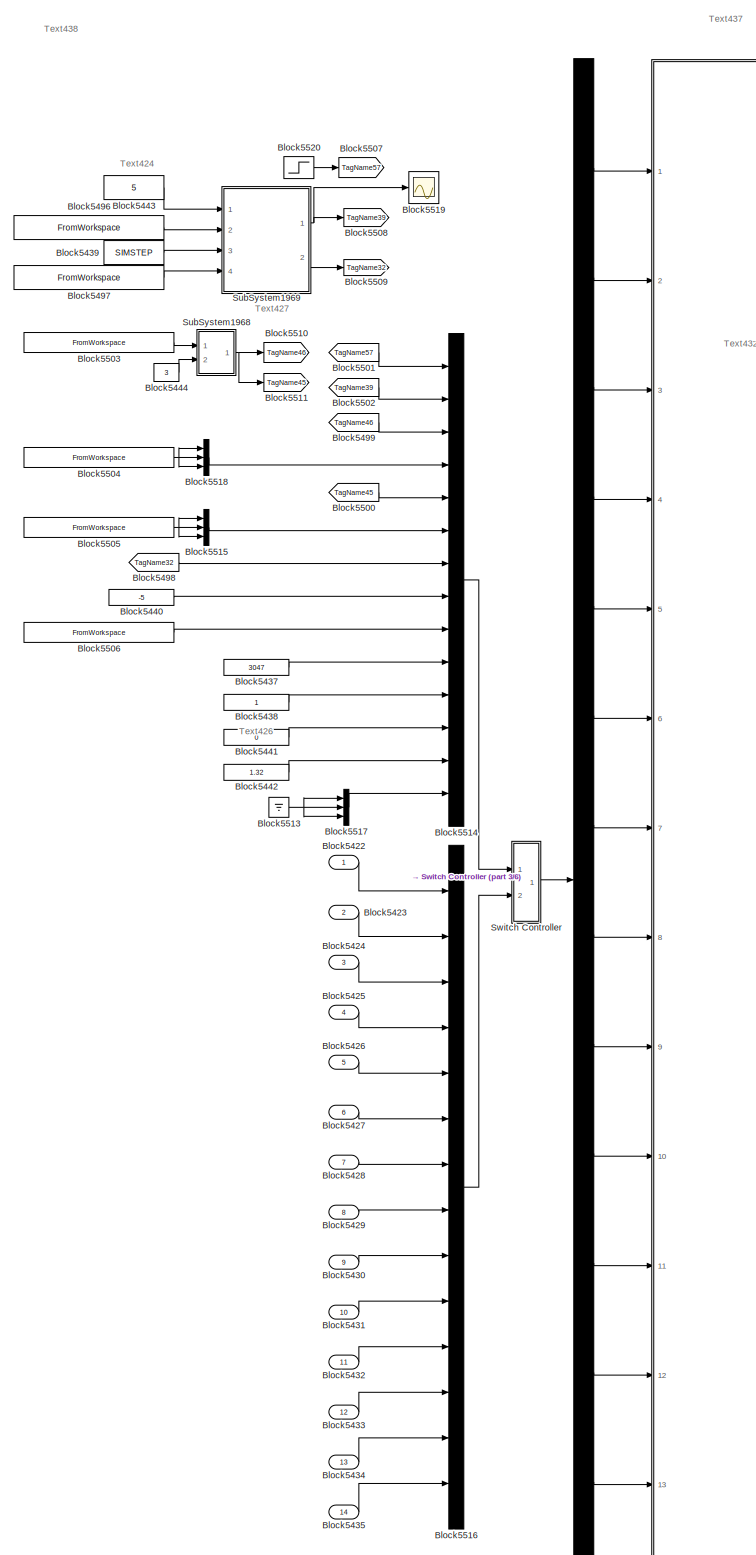
[diagram: root canvas - part 1/6, left side, full height]
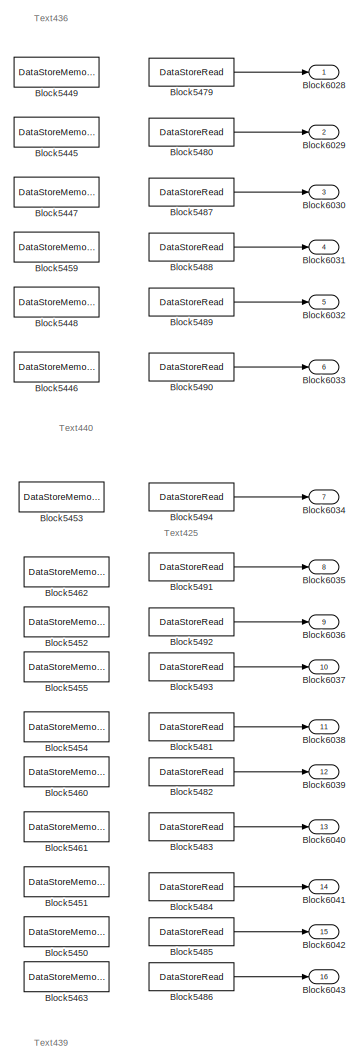
[diagram: root canvas - part 2/6, top right region]
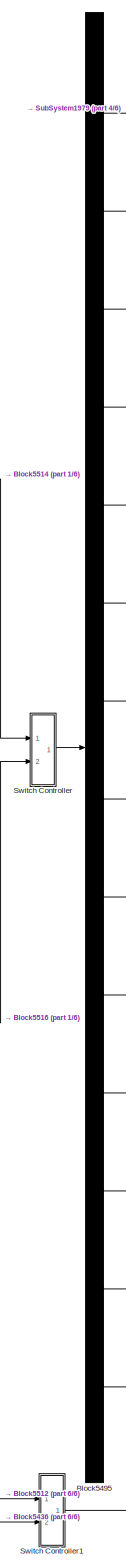
[diagram: root canvas - part 3/6, center side, full height]
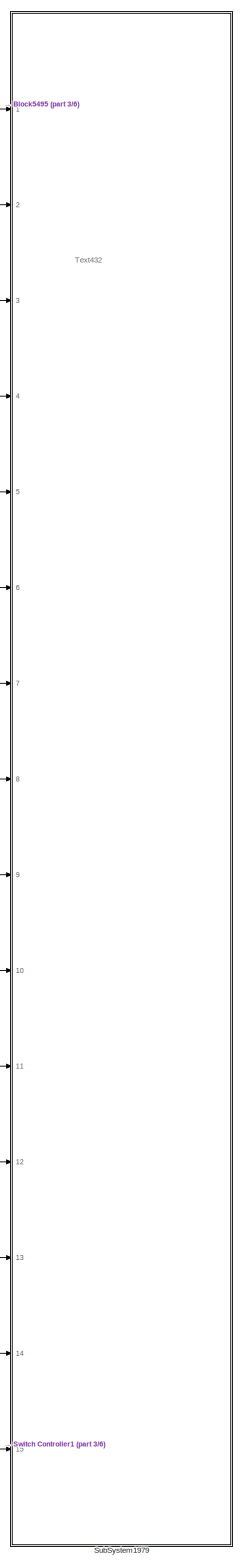
[diagram: root canvas - part 4/6, center side, full height]
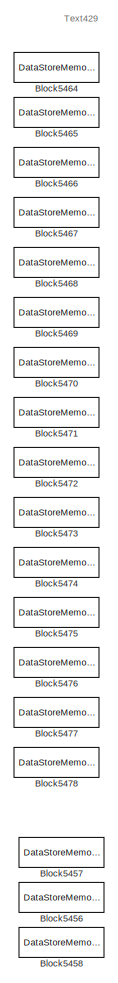
[diagram: root canvas - part 5/6, bottom right region]
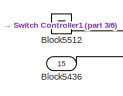
[diagram: root canvas - part 6/6, bottom left region]
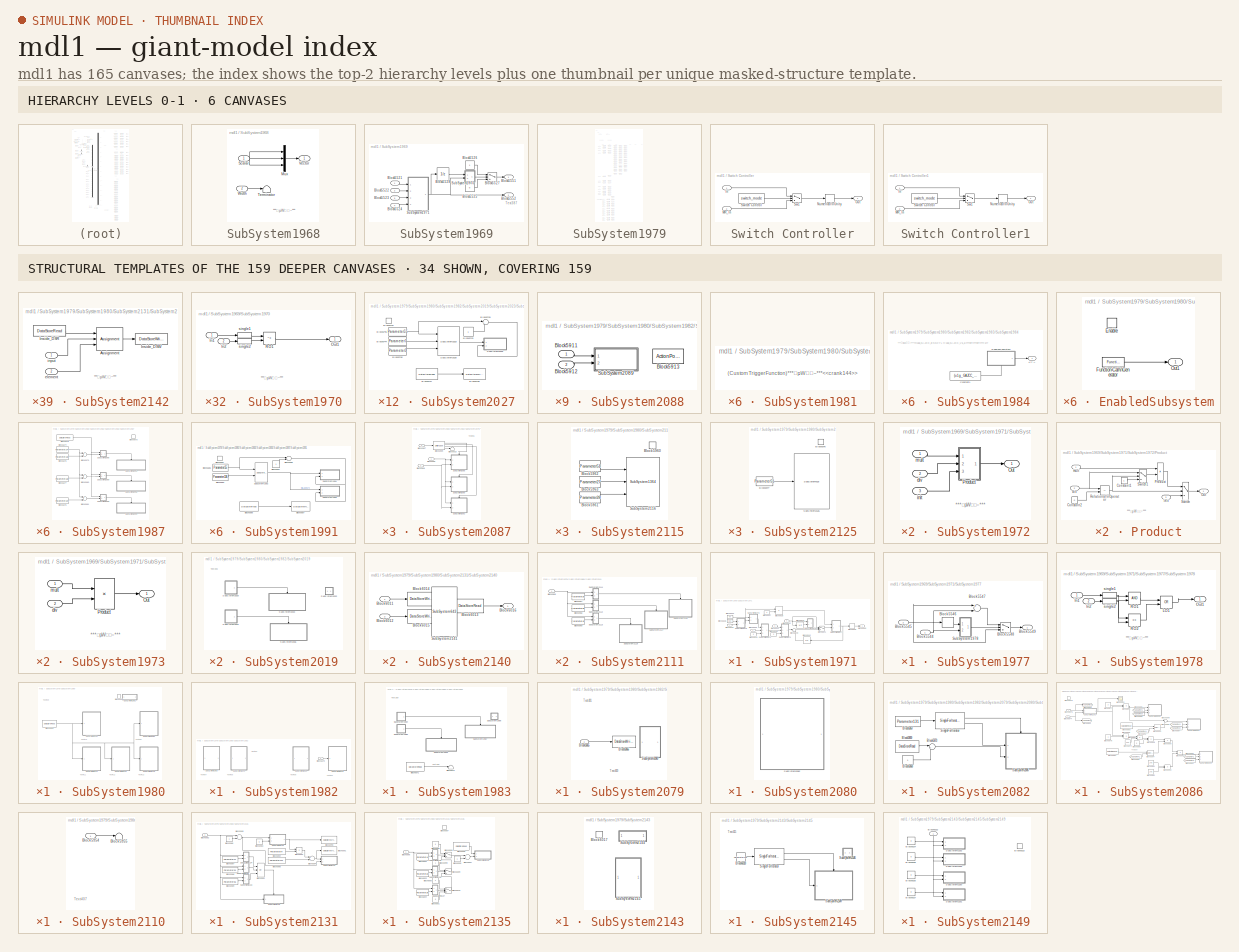
[diagram: thumbnail index - top-2 hierarchy levels (6 canvases) + 34 structural-template representatives of the remaining 159 canvases]
MODEL mdl1
KIND model
CONFIG PreLoadFcn = run('<userpath><path>');\nload('scr_simdata_all.mat');\nload('scr_simdata.mat');
BLOCK [Inport] Block5422
  IconDisplay = Port number
  PortDimensions = 1
  SID = 1
  SampleTime = SIMSTEP
  SamplingMode = Sample based
  SignalType = real
BLOCK [Inport] Block5423
  IconDisplay = Port number
  Port = 2
  PortDimensions = 1
  SID = 2
  SampleTime = SIMSTEP
  SamplingMode = Sample based
  SignalType = real
BLOCK [Inport] Block5424
  IconDisplay = Port number
  Port = 3
  PortDimensions = 3
  SID = 3
  SamplingMode = Sample based
  SignalType = real
BLOCK [Inport] Block5425
  IconDisplay = Port number
  Port = 4
  PortDimensions = 3
  SID = 4
  SamplingMode = Sample based
  SignalType = real
BLOCK [Inport] Block5426
  IconDisplay = Port number
  Port = 5
  PortDimensions = 3
  SID = 5
  SamplingMode = Sample based
  SignalType = real
BLOCK [Inport] Block5427
  IconDisplay = Port number
  Port = 6
  PortDimensions = 3
  SID = 6
  SamplingMode = Sample based
  SignalType = real
BLOCK [Inport] Block5428
  IconDisplay = Port number
  Port = 7
  PortDimensions = 1
  SID = 7
  SamplingMode = Sample based
  SignalType = real
BLOCK [Inport] Block5429
  IconDisplay = Port number
  Port = 8
  PortDimensions = 1
  SID = 8
  SamplingMode = Sample based
  SignalType = real
BLOCK [Inport] Block5430
  IconDisplay = Port number
  Port = 9
  PortDimensions = 1
  SID = 9
  SamplingMode = Sample based
  SignalType = real
BLOCK [Inport] Block5431
  IconDisplay = Port number
  Port = 10
  PortDimensions = 1
  SID = 10
  SamplingMode = Sample based
  SignalType = real
BLOCK [Inport] Block5432
  IconDisplay = Port number
  Port = 11
  PortDimensions = 1
  SID = 11
  SamplingMode = Sample based
  SignalType = real
BLOCK [Inport] Block5433
  IconDisplay = Port number
  Port = 12
  PortDimensions = 1
  SID = 12
  SamplingMode = Sample based
  SignalType = real
BLOCK [Inport] Block5434
  IconDisplay = Port number
  Port = 13
  PortDimensions = 1
  SID = 13
  SamplingMode = Sample based
  SignalType = real
BLOCK [Inport] Block5435
  IconDisplay = Port number
  Port = 14
  PortDimensions = 3
  SID = 14
  SamplingMode = Sample based
  SignalType = real
BLOCK [Inport] Block5436
  IconDisplay = Port number
  Port = 15
  PortDimensions = [144 10]
  SID = 15
  SamplingMode = Sample based
  SignalType = real
BLOCK [Constant] Block5437
  OutDataTypeStr = double
  SID = 16
  SampleTime = SIMSTEP
  UserData = DataTag1
  UserDataPersistent = on
  Value = 3047
BLOCK [Constant] Block5438
  OutDataTypeStr = double
  SID = 17
  SampleTime = SIMSTEP
  UserData = DataTag2
  UserDataPersistent = on
BLOCK [Constant] Block5439
  OutDataTypeStr = double
  SID = 18
  SampleTime = -1
  UserData = DataTag3
  UserDataPersistent = on
  Value = SIMSTEP
BLOCK [Constant] Block5440
  OutDataTypeStr = double
  SID = 19
  SampleTime = SIMSTEP
  UserData = DataTag4
  UserDataPersistent = on
  Value = -5
BLOCK [Constant] Block5441
  OutDataTypeStr = double
  SID = 20
  SampleTime = SIMSTEP
  UserData = DataTag5
  UserDataPersistent = on
  Value = 0
BLOCK [Constant] Block5442
  OutDataTypeStr = double
  SID = 21
  SampleTime = SIMSTEP
  UserData = DataTag6
  UserDataPersistent = on
  Value = 1.32
BLOCK [Constant] Block5443
  OutDataTypeStr = double
  SID = 22
  SampleTime = -1
  UserData = DataTag7
  UserDataPersistent = on
  Value = 5
BLOCK [Constant] Block5444
  OutDataTypeStr = double
  SID = 23
  SampleTime = -1
  UserData = DataTag8
  UserDataPersistent = on
  Value = 3
BLOCK [DataStoreMemory] Block5445
  DataStoreName = DSM1
  InitialValue = [0 0 0]
  OutDataTypeStr = double
  SID = 24
BLOCK [DataStoreMemory] Block5446
  DataStoreName = DSM2
  InitialValue = [0 0 0]
  OutDataTypeStr = double
  SID = 25
BLOCK [DataStoreMemory] Block5447
  DataStoreName = DSM3
  InitialValue = [0 0 0]
  OutDataTypeStr = double
  SID = 26
BLOCK [DataStoreMemory] Block5448
  DataStoreName = DSM4
  InitialValue = [0 0 0]
  OutDataTypeStr = double
  SID = 27
BLOCK [DataStoreMemory] Block5449
  DataStoreName = DSM5
  InitialValue = [0 0 0]
  OutDataTypeStr = double
  SID = 28
BLOCK [DataStoreMemory] Block5450
  DataStoreName = DSM6
  InitialValue = [0 0 0 0 0 0 0 0 0 0 0 0 0 0 0 0 0 0 0 0 0 0 0 0 0 0 0 0 0 0 0 0 0 0 0 0 0 0 0 0 0 0 0 0 0 0 0 0 0 0 0 0 0 0 0 0 0 0 0 0 0 0 0 0 0 0 0 0 0 0 0 0 0 0 0 0 0 0 0 0 0 0 0 0 0 0 0 0 0 0 0 0 0 0 0 0 0 0 0 0 0 0 0 0 0 0 0 0 0 0 0 0 0 0 0 0 0 0 0 0 0 0 0 0 0 0 0 0 0 0 0 0 0 0 0 0 0 0 0 0 0 0 0 0]  <repeated x20 — deduplicated; at blocks: Block5450, Block5451, Block5452, Block5454, Block5455, Block5460, Block5461, Block5462, Block5463, Block5572, Block5582, Block5584, Block5586, Block5595, Block5605, Block5610, +4 more>
  OutDataTypeStr = double
  SID = 29
BLOCK [DataStoreMemory] Block5451
  DataStoreName = DSM7
  OutDataTypeStr = double
  SID = 30
BLOCK [DataStoreMemory] Block5452
  DataStoreName = DSM8
  OutDataTypeStr = double
  SID = 31
BLOCK [DataStoreMemory] Block5453
  DataStoreName = DSM9
  InitialValue = [0 0 0]
  OutDataTypeStr = double
  SID = 32
BLOCK [DataStoreMemory] Block5454
  DataStoreName = DSM10
  OutDataTypeStr = double
  SID = 33
BLOCK [DataStoreMemory] Block5455
  DataStoreName = DSM11
  OutDataTypeStr = double
  SID = 34
BLOCK [DataStoreMemory] Block5456
  DataStoreName = DSM12
  OutDataTypeStr = double
  SID = 35
BLOCK [DataStoreMemory] Block5457
  DataStoreName = DSM13
  OutDataTypeStr = double
  SID = 36
BLOCK [DataStoreMemory] Block5458
  DataStoreName = DSM14
  OutDataTypeStr = double
  SID = 37
BLOCK [DataStoreMemory] Block5459
  DataStoreName = DSM15
  OutDataTypeStr = double
  SID = 38
BLOCK [DataStoreMemory] Block5460
  DataStoreName = DSM16
  OutDataTypeStr = double
  SID = 39
BLOCK [DataStoreMemory] Block5461
  DataStoreName = DSM17
  OutDataTypeStr = double
  SID = 40
BLOCK [DataStoreMemory] Block5462
  DataStoreName = DSM18
  OutDataTypeStr = double
  SID = 41
BLOCK [DataStoreMemory] Block5463
  DataStoreName = DSM19
  OutDataTypeStr = double
  SID = 42
BLOCK [DataStoreMemory] Block5464
  DataStoreName = DSM20
  OutDataTypeStr = double
  SID = 43
BLOCK [DataStoreMemory] Block5465
  DataStoreName = DSM21
  OutDataTypeStr = double
  SID = 44
BLOCK [DataStoreMemory] Block5466
  DataStoreName = DSM22
  OutDataTypeStr = double
  SID = 45
BLOCK [DataStoreMemory] Block5467
  DataStoreName = DSM23
  OutDataTypeStr = double
  SID = 46
BLOCK [DataStoreMemory] Block5468
  DataStoreName = DSM24
  OutDataTypeStr = double
  SID = 47
BLOCK [DataStoreMemory] Block5469
  DataStoreName = DSM25
  OutDataTypeStr = double
  SID = 48
BLOCK [DataStoreMemory] Block5470
  DataStoreName = DSM26
  OutDataTypeStr = double
  SID = 49
BLOCK [DataStoreMemory] Block5471
  DataStoreName = DSM27
  OutDataTypeStr = double
  SID = 50
BLOCK [DataStoreMemory] Block5472
  DataStoreName = DSM28
  OutDataTypeStr = double
  SID = 51
BLOCK [DataStoreMemory] Block5473
  DataStoreName = DSM29
  OutDataTypeStr = double
  SID = 52
BLOCK [DataStoreMemory] Block5474
  DataStoreName = DSM30
  OutDataTypeStr = double
  SID = 53
BLOCK [DataStoreMemory] Block5475
  DataStoreName = DSM31
  OutDataTypeStr = double
  SID = 54
BLOCK [DataStoreMemory] Block5476
  DataStoreName = DSM32
  OutDataTypeStr = double
  SID = 55
BLOCK [DataStoreMemory] Block5477
  DataStoreName = DSM33
  OutDataTypeStr = double
  SID = 56
BLOCK [DataStoreMemory] Block5478
  DataStoreName = DSM34
  OutDataTypeStr = double
  SID = 57
BLOCK [DataStoreRead] Block5479
  DataStoreName = DSM5
  Ports = [0, 1]
  SID = 58
BLOCK [DataStoreRead] Block5480
  DataStoreName = DSM1
  Ports = [0, 1]
  SID = 59
BLOCK [DataStoreRead] Block5481
  DataStoreName = DSM10
  Ports = [0, 1]
  SID = 60
BLOCK [DataStoreRead] Block5482
  DataStoreName = DSM16
  Ports = [0, 1]
  SID = 61
BLOCK [DataStoreRead] Block5483
  DataStoreName = DSM17
  Ports = [0, 1]
  SID = 62
BLOCK [DataStoreRead] Block5484
  DataStoreName = DSM7
  Ports = [0, 1]
  SID = 63
BLOCK [DataStoreRead] Block5485
  DataStoreName = DSM6
  Ports = [0, 1]
  SID = 64
BLOCK [DataStoreRead] Block5486
  DataStoreName = DSM19
  Ports = [0, 1]
  SID = 65
BLOCK [DataStoreRead] Block5487
  DataStoreName = DSM3
  Ports = [0, 1]
  SID = 66
BLOCK [DataStoreRead] Block5488
  DataStoreName = DSM15
  Ports = [0, 1]
  SID = 67
BLOCK [DataStoreRead] Block5489
  DataStoreName = DSM4
  Ports = [0, 1]
  SID = 68
BLOCK [DataStoreRead] Block5490
  DataStoreName = DSM2
  Ports = [0, 1]
  SID = 69
BLOCK [DataStoreRead] Block5491
  DataStoreName = DSM18
  Ports = [0, 1]
  SID = 70
BLOCK [DataStoreRead] Block5492
  DataStoreName = DSM8
  Ports = [0, 1]
  SID = 71
BLOCK [DataStoreRead] Block5493
  DataStoreName = DSM11
  Ports = [0, 1]
  SID = 72
BLOCK [DataStoreRead] Block5494
  DataStoreName = DSM9
  Ports = [0, 1]
  SID = 73
BLOCK [Demux] Block5495
  Outputs = 14
  Ports = [1, 14]
  SID = 74
BLOCK [FromWorkspace] Block5496
  SID = 75
  SampleTime = SIMSTEP
  VariableName = [TIME,SimData1]
  ZeroCross = on
BLOCK [FromWorkspace] Block5497
  Interpolate = off
  OutputAfterFinalValue = Holding final value
  SID = 76
  SampleTime = SIMSTEP
  VariableName = [TIME,SimData2]
  ZeroCross = on
BLOCK [From] Block5498
  CloseFcn = tagdialog Close
  GotoTag = TagName32
  SID = 77
BLOCK [From] Block5499
  CloseFcn = tagdialog Close
  GotoTag = TagName46
  SID = 78
BLOCK [From] Block5500
  CloseFcn = tagdialog Close
  GotoTag = TagName45
  SID = 79
BLOCK [From] Block5501
  CloseFcn = tagdialog Close
  GotoTag = TagName57
  SID = 80
BLOCK [From] Block5502
  CloseFcn = tagdialog Close
  GotoTag = TagName39
  SID = 81
BLOCK [FromWorkspace] Block5503
  Interpolate = off
  OutputAfterFinalValue = Holding final value
  SID = 82
  SampleTime = SIMSTEP
  UserData = DataTag9
  UserDataPersistent = on
  VariableName = [ TIME , SimData3 ]
BLOCK [FromWorkspace] Block5504
  Interpolate = off
  OutputAfterFinalValue = Holding final value
  SID = 83
  SampleTime = SIMSTEP
  UserData = DataTag10
  UserDataPersistent = on
  VariableName = [ TIME , SimData4 ]
BLOCK [FromWorkspace] Block5505
  Interpolate = off
  OutputAfterFinalValue = Holding final value
  SID = 84
  SampleTime = SIMSTEP
  UserData = DataTag11
  UserDataPersistent = on
  VariableName = [ TIME , SimData5 ]
BLOCK [FromWorkspace] Block5506
  Interpolate = off
  OutputAfterFinalValue = Holding final value
  SID = 85
  SampleTime = SIMSTEP
  UserData = DataTag12
  UserDataPersistent = on
  VariableName = [ TIME , SimData6 ]
BLOCK [Goto] Block5507
  GotoTag = TagName57
  SID = 86
BLOCK [Goto] Block5508
  GotoTag = TagName39
  SID = 87
BLOCK [Goto] Block5509
  GotoTag = TagName32
  SID = 88
BLOCK [Goto] Block5510
  GotoTag = TagName46
  SID = 89
BLOCK [Goto] Block5511
  GotoTag = TagName45
  SID = 90
BLOCK [Ground] Block5512
  SID = 91
BLOCK [Ground] Block5513
  SID = 92
BLOCK [Mux] Block5514
  DisplayOption = bar
  Inputs = 14
  Ports = [14, 1]
  SID = 93
BLOCK [Mux] Block5515
  DisplayOption = bar
  Inputs = 3
  Ports = [3, 1]
  SID = 94
BLOCK [Mux] Block5516
  DisplayOption = bar
  Inputs = 14
  Ports = [14, 1]
  SID = 95
BLOCK [Mux] Block5517
  DisplayOption = bar
  Inputs = 3
  Ports = [3, 1]
  SID = 96
BLOCK [Mux] Block5518
  DisplayOption = bar
  Inputs = 3
  Ports = [3, 1]
  SID = 97
BLOCK [Scope] Block5519
  DataFormat = StructureWithTime
  Floating = off
  LimitDataPoints = off
  NumInputPorts = 1
  Ports = [1]
  SID = 98
  SampleTime = 0
  ShowLegends = off
  YMax = 1
  YMin = 0
BLOCK [Step] Block5520
  SID = 99
  SampleTime = SIMSTEP
  Time = SIMSTEP
BLOCK [Outport] Block6028
  IconDisplay = Port number
  SID = 1276
  SamplingMode = Sample based
  SignalType = real
BLOCK [Outport] Block6029
  IconDisplay = Port number
  Port = 2
  SID = 1277
  SamplingMode = Sample based
  SignalType = real
BLOCK [Outport] Block6030
  IconDisplay = Port number
  Port = 3
  SID = 1278
  SamplingMode = Sample based
  SignalType = real
BLOCK [Outport] Block6031
  IconDisplay = Port number
  Port = 4
  SID = 1279
  SamplingMode = Sample based
  SignalType = real
BLOCK [Outport] Block6032
  IconDisplay = Port number
  Port = 5
  SID = 1280
  SamplingMode = Sample based
  SignalType = real
BLOCK [Outport] Block6033
  IconDisplay = Port number
  Port = 6
  SID = 1281
  SamplingMode = Sample based
  SignalType = real
BLOCK [Outport] Block6034
  IconDisplay = Port number
  Port = 7
  SID = 1282
  SamplingMode = Sample based
  SignalType = real
BLOCK [Outport] Block6035
  IconDisplay = Port number
  Port = 8
  SID = 1283
  SamplingMode = Sample based
  SignalType = real
BLOCK [Outport] Block6036
  IconDisplay = Port number
  Port = 9
  SID = 1284
  SamplingMode = Sample based
  SignalType = real
BLOCK [Outport] Block6037
  IconDisplay = Port number
  Port = 10
  SID = 1285
  SamplingMode = Sample based
  SignalType = real
BLOCK [Outport] Block6038
  IconDisplay = Port number
  Port = 11
  SID = 1286
  SamplingMode = Sample based
  SignalType = real
BLOCK [Outport] Block6039
  IconDisplay = Port number
  Port = 12
  SID = 1287
  SamplingMode = Sample based
  SignalType = real
BLOCK [Outport] Block6040
  IconDisplay = Port number
  Port = 13
  SID = 1288
  SamplingMode = Sample based
  SignalType = real
BLOCK [Outport] Block6041
  IconDisplay = Port number
  Port = 14
  SID = 1289
  SamplingMode = Sample based
  SignalType = real
BLOCK [Outport] Block6042
  IconDisplay = Port number
  Port = 15
  SID = 1290
  SamplingMode = Sample based
  SignalType = real
BLOCK [Outport] Block6043
  IconDisplay = Port number
  Port = 16
  SID = 1291
  SamplingMode = Sample based
  SignalType = real
BLOCK [SubSystem] SubSystem1968
  FunctionWithSeparateData = off
  MaskHideContents = off
  MinAlgLoopOccurrences = off
  Opaque = off
  Ports = [2, 1]
  PropExecContextOutsideSubsystem = off
  RTWSystemCode = Auto
  RequestExecContextInheritance = off
  SID = 100
  UserData = DataTag13
  UserDataPersistent = on
BLOCK [Mux] SubSystem1968/Mux
  DisplayOption = bar
  Inputs = 3
  Ports = [3, 1]
  SID = 103
BLOCK [Inport] SubSystem1968/Scalar
  IconDisplay = Port number
  SID = 101
BLOCK [Terminator] SubSystem1968/Terminator
  SID = 104
BLOCK [Outport] SubSystem1968/Vector
  IconDisplay = Port number
  SID = 105
BLOCK [Inport] SubSystem1968/Width
  IconDisplay = Port number
  Port = 2
  SID = 102
BLOCK [SubSystem] SubSystem1969
  FunctionWithSeparateData = off
  MaskHideContents = off
  MinAlgLoopOccurrences = off
  Opaque = off
  Ports = [4, 2]
  PropExecContextOutsideSubsystem = off
  RTWSystemCode = Auto
  RequestExecContextInheritance = off
  SID = 106
BLOCK [Inport] SubSystem1969/Block5521
  IconDisplay = Port number
  SID = 107
BLOCK [Inport] SubSystem1969/Block5522
  IconDisplay = Port number
  Port = 2
  SID = 108
BLOCK [Inport] SubSystem1969/Block5523
  IconDisplay = Port number
  Port = 3
  SID = 109
BLOCK [Inport] SubSystem1969/Block5524
  IconDisplay = Port number
  Port = 4
  SID = 110
BLOCK [Constant] SubSystem1969/Block5525
  OutDataTypeStr = double
  SID = 111
  SampleTime = -1
  UserData = DataTag14
  UserDataPersistent = on
  Value = 0
BLOCK [Constant] SubSystem1969/Block5526
  OutDataTypeStr = double
  SID = 112
  SampleTime = -1
  UserData = DataTag15
  UserDataPersistent = on
BLOCK [Switch] SubSystem1969/Block5527
  RndMeth = Zero
  SID = 113
  Threshold = 0.5
BLOCK [UnitDelay] SubSystem1969/Block5528
  SID = 114
  SampleTime = -1
  UserData = DataTag16
  UserDataPersistent = on
BLOCK [Outport] SubSystem1969/Block5551
  IconDisplay = Port number
  SID = 204
BLOCK [Outport] SubSystem1969/Block5552
  IconDisplay = Port number
  Port = 2
  SID = 205
BLOCK [SubSystem] SubSystem1969/SubSystem1970
  FunctionWithSeparateData = off
  MaskHideContents = off
  MinAlgLoopOccurrences = off
  Opaque = off
  Ports = [2, 1]
  PropExecContextOutsideSubsystem = off
  RTWSystemCode = Auto
  RequestExecContextInheritance = off
  SID = 115
BLOCK [Inport] SubSystem1969/SubSystem1970/In1
  IconDisplay = Port number
  SID = 116
  SamplingMode = Sample based
  SignalType = real
BLOCK [Inport] SubSystem1969/SubSystem1970/In2
  IconDisplay = Port number
  Port = 2
  SID = 117
  SamplingMode = Sample based
  SignalType = real
BLOCK [Outport] SubSystem1969/SubSystem1970/Out1
  IconDisplay = Port number
  SID = 121
  SamplingMode = Sample based
  SignalType = real
BLOCK [RelationalOperator] SubSystem1969/SubSystem1970/RO1
  Operator = ~=
  Ports = [2, 1]
  SID = 118
BLOCK [DataTypeConversion] SubSystem1969/SubSystem1970/single1
  OutDataTypeStr = single
  SID = 119
BLOCK [DataTypeConversion] SubSystem1969/SubSystem1970/single2
  OutDataTypeStr = single
  SID = 120
BLOCK [SubSystem] SubSystem1969/SubSystem1971
  FunctionWithSeparateData = off
  MaskHideContents = off
  MinAlgLoopOccurrences = off
  Opaque = off
  Ports = [4, 1]
  PropExecContextOutsideSubsystem = off
  RTWSystemCode = Auto
  RequestExecContextInheritance = off
  SID = 122
BLOCK [Inport] SubSystem1969/SubSystem1971/Block5529
  IconDisplay = Port number
  SID = 123
BLOCK [Inport] SubSystem1969/SubSystem1971/Block5530
  IconDisplay = Port number
  Port = 2
  SID = 124
  SamplingMode = Sample based
  SignalType = real
BLOCK [Inport] SubSystem1969/SubSystem1971/Block5531
  IconDisplay = Port number
  Port = 3
  SID = 125
  SamplingMode = Sample based
  SignalType = real
BLOCK [Inport] SubSystem1969/SubSystem1971/Block5532
  IconDisplay = Port number
  Port = 4
  SID = 126
  SamplingMode = Sample based
  SignalType = real
BLOCK [Constant] SubSystem1969/SubSystem1971/Block5533
  OutDataTypeStr = double
  SID = 127
  SampleTime = -1
  UserData = DataTag17
  UserDataPersistent = on
  Value = 60
BLOCK [Constant] SubSystem1969/SubSystem1971/Block5534
  OutDataTypeStr = double
  SID = 128
  SampleTime = -1
  UserData = DataTag18
  UserDataPersistent = on
  Value = 0
BLOCK [Constant] SubSystem1969/SubSystem1971/Block5535
  OutDataTypeStr = double
  SID = 129
  SampleTime = -1
  UserData = DataTag19
  UserDataPersistent = on
  Value = 360
BLOCK [Constant] SubSystem1969/SubSystem1971/Block5536
  OutDataTypeStr = double
  SID = 130
  SampleTime = -1
  UserData = DataTag20
  UserDataPersistent = on
  Value = 0
BLOCK [Constant] SubSystem1969/SubSystem1971/Block5537
  OutDataTypeStr = double
  SID = 131
  SampleTime = -1
  UserData = DataTag21
  UserDataPersistent = on
  Value = 2
BLOCK [Product] SubSystem1969/SubSystem1971/Block5538
  Inputs = **
  Ports = [2, 1]
  SID = 132
BLOCK [Rounding] SubSystem1969/SubSystem1971/Block5539
  Operator = round
  SID = 133
BLOCK [Sum] SubSystem1969/SubSystem1971/Block5540
  IconShape = round
  Inputs = |++
  OutDataTypeStr = double
  Ports = [2, 1]
  RndMeth = Zero
  SID = 134
BLOCK [Switch] SubSystem1969/SubSystem1971/Block5541
  RndMeth = Zero
  SID = 135
  Threshold = 0.5
BLOCK [UnitDelay] SubSystem1969/SubSystem1971/Block5542
  SID = 136
  SampleTime = -1
  UserData = DataTag22
  UserDataPersistent = on
BLOCK [UnitDelay] SubSystem1969/SubSystem1971/Block5543
  SID = 137
  SampleTime = -1
  UserData = DataTag23
  UserDataPersistent = on
BLOCK [Outport] SubSystem1969/SubSystem1971/Block5550
  IconDisplay = Port number
  SID = 203
  SamplingMode = Sample based
  SignalType = real
BLOCK [SubSystem] SubSystem1969/SubSystem1971/SubSystem1972
  FunctionWithSeparateData = off
  MaskHideContents = off
  MinAlgLoopOccurrences = off
  Opaque = off
  OpenFcn = warndlg('ÏXÖ~!');
  Ports = [3, 1]
  PropExecContextOutsideSubsystem = off
  RTWSystemCode = Auto
  RequestExecContextInheritance = off
  SID = 138
  TreatAsAtomicUnit = on
  UserData = DataTag24
  UserDataPersistent = on
BLOCK [Outport] SubSystem1969/SubSystem1971/SubSystem1972/Out
  IconDisplay = Port number
  SID = 153
BLOCK [SubSystem] SubSystem1969/SubSystem1971/SubSystem1972/Product
  FunctionWithSeparateData = off
  MaskHideContents = off
  MinAlgLoopOccurrences = off
  Opaque = off
  Ports = [3, 1]
  PropExecContextOutsideSubsystem = off
  RTWSystemCode = Inline
  RequestExecContextInheritance = off
  SID = 142
  TreatAsAtomicUnit = on
BLOCK [Constant] SubSystem1969/SubSystem1971/SubSystem1972/Product/Constant1
  OutDataTypeStr = Inherit: Inherit via back propagation
  SID = 146
BLOCK [Constant] SubSystem1969/SubSystem1971/SubSystem1972/Product/Constant2
  OutDataTypeStr = Inherit: Inherit via back propagation
  SID = 147
  Value = 0
BLOCK [Outport] SubSystem1969/SubSystem1971/SubSystem1972/Product/Out
  IconDisplay = Port number
  SID = 152
BLOCK [Product] SubSystem1969/SubSystem1971/SubSystem1972/Product/Product
  Inputs = */
  Ports = [2, 1]
  SID = 148
BLOCK [RelationalOperator] SubSystem1969/SubSystem1971/SubSystem1972/Product/Relational\nOperator
  Operator = ~=
  Ports = [2, 1]
  SID = 149
BLOCK [Switch] SubSystem1969/SubSystem1971/SubSystem1972/Product/Switch
  SID = 150
  Threshold = 0.5
BLOCK [Switch] SubSystem1969/SubSystem1971/SubSystem1972/Product/Switch1
  SID = 151
  Threshold = 0.5
BLOCK [Inport] SubSystem1969/SubSystem1971/SubSystem1972/Product/div
  IconDisplay = Port number
  Port = 2
  SID = 144
BLOCK [Inport] SubSystem1969/SubSystem1971/SubSystem1972/Product/init
  IconDisplay = Port number
  Port = 3
  SID = 145
BLOCK [Inport] SubSystem1969/SubSystem1971/SubSystem1972/Product/mult
  IconDisplay = Port number
  SID = 143
BLOCK [Inport] SubSystem1969/SubSystem1971/SubSystem1972/div
  IconDisplay = Port number
  Port = 2
  SID = 140
BLOCK [Inport] SubSystem1969/SubSystem1971/SubSystem1972/init
  IconDisplay = Port number
  Port = 3
  SID = 141
BLOCK [Inport] SubSystem1969/SubSystem1971/SubSystem1972/mult
  IconDisplay = Port number
  SID = 139
BLOCK [SubSystem] SubSystem1969/SubSystem1971/SubSystem1973
  FunctionWithSeparateData = off
  MaskHideContents = off
  MinAlgLoopOccurrences = off
  Opaque = off
  OpenFcn = warndlg('ÏXÖ~!');
  Ports = [2, 1]
  PropExecContextOutsideSubsystem = off
  RTWSystemCode = Auto
  RequestExecContextInheritance = off
  SID = 154
  TreatAsAtomicUnit = on
  UserData = DataTag25
  UserDataPersistent = on
BLOCK [Outport] SubSystem1969/SubSystem1971/SubSystem1973/Out
  IconDisplay = Port number
  SID = 158
BLOCK [Product] SubSystem1969/SubSystem1971/SubSystem1973/Product
  Inputs = */
  Ports = [2, 1]
  SID = 157
BLOCK [Inport] SubSystem1969/SubSystem1971/SubSystem1973/div
  IconDisplay = Port number
  Port = 2
  SID = 156
BLOCK [Inport] SubSystem1969/SubSystem1971/SubSystem1973/mult
  IconDisplay = Port number
  SID = 155
BLOCK [SubSystem] SubSystem1969/SubSystem1971/SubSystem1974
  FunctionWithSeparateData = off
  MaskHideContents = off
  MinAlgLoopOccurrences = off
  Opaque = off
  OpenFcn = warndlg('ÏXÖ~!');
  Ports = [3, 1]
  PropExecContextOutsideSubsystem = off
  RTWSystemCode = Auto
  RequestExecContextInheritance = off
  SID = 159
  TreatAsAtomicUnit = on
  UserData = DataTag26
  UserDataPersistent = on
BLOCK [Outport] SubSystem1969/SubSystem1971/SubSystem1974/Out
  IconDisplay = Port number
  SID = 174
BLOCK [SubSystem] SubSystem1969/SubSystem1971/SubSystem1974/Product
  FunctionWithSeparateData = off
  MaskHideContents = off
  MinAlgLoopOccurrences = off
  Opaque = off
  Ports = [3, 1]
  PropExecContextOutsideSubsystem = off
  RTWSystemCode = Inline
  RequestExecContextInheritance = off
  SID = 163
  TreatAsAtomicUnit = on
BLOCK [Constant] SubSystem1969/SubSystem1971/SubSystem1974/Product/Constant1
  OutDataTypeStr = Inherit: Inherit via back propagation
  SID = 167
BLOCK [Constant] SubSystem1969/SubSystem1971/SubSystem1974/Product/Constant2
  OutDataTypeStr = Inherit: Inherit via back propagation
  SID = 168
  Value = 0
BLOCK [Outport] SubSystem1969/SubSystem1971/SubSystem1974/Product/Out
  IconDisplay = Port number
  SID = 173
BLOCK [Product] SubSystem1969/SubSystem1971/SubSystem1974/Product/Product
  Inputs = */
  Ports = [2, 1]
  SID = 169
BLOCK [RelationalOperator] SubSystem1969/SubSystem1971/SubSystem1974/Product/Relational\nOperator
  Operator = ~=
  Ports = [2, 1]
  SID = 170
BLOCK [Switch] SubSystem1969/SubSystem1971/SubSystem1974/Product/Switch
  SID = 171
  Threshold = 0.5
BLOCK [Switch] SubSystem1969/SubSystem1971/SubSystem1974/Product/Switch1
  SID = 172
  Threshold = 0.5
BLOCK [Inport] SubSystem1969/SubSystem1971/SubSystem1974/Product/div
  IconDisplay = Port number
  Port = 2
  SID = 165
BLOCK [Inport] SubSystem1969/SubSystem1971/SubSystem1974/Product/init
  IconDisplay = Port number
  Port = 3
  SID = 166
BLOCK [Inport] SubSystem1969/SubSystem1971/SubSystem1974/Product/mult
  IconDisplay = Port number
  SID = 164
BLOCK [Inport] SubSystem1969/SubSystem1971/SubSystem1974/div
  IconDisplay = Port number
  Port = 2
  SID = 161
BLOCK [Inport] SubSystem1969/SubSystem1971/SubSystem1974/init
  IconDisplay = Port number
  Port = 3
  SID = 162
BLOCK [Inport] SubSystem1969/SubSystem1971/SubSystem1974/mult
  IconDisplay = Port number
  SID = 160
BLOCK [SubSystem] SubSystem1969/SubSystem1971/SubSystem1975
  FunctionWithSeparateData = off
  MaskHideContents = off
  MinAlgLoopOccurrences = off
  Opaque = off
  OpenFcn = warndlg('ÏXÖ~!');
  Ports = [2, 1]
  PropExecContextOutsideSubsystem = off
  RTWSystemCode = Auto
  RequestExecContextInheritance = off
  SID = 175
  TreatAsAtomicUnit = on
  UserData = DataTag27
  UserDataPersistent = on
BLOCK [Outport] SubSystem1969/SubSystem1971/SubSystem1975/Out
  IconDisplay = Port number
  SID = 179
BLOCK [Product] SubSystem1969/SubSystem1971/SubSystem1975/Product
  Inputs = */
  Ports = [2, 1]
  SID = 178
BLOCK [Inport] SubSystem1969/SubSystem1971/SubSystem1975/div
  IconDisplay = Port number
  Port = 2
  SID = 177
BLOCK [Inport] SubSystem1969/SubSystem1971/SubSystem1975/mult
  IconDisplay = Port number
  SID = 176
BLOCK [SubSystem] SubSystem1969/SubSystem1971/SubSystem1976
  FunctionWithSeparateData = off
  MaskHideContents = off
  MinAlgLoopOccurrences = off
  Opaque = off
  Ports = [2, 1]
  PropExecContextOutsideSubsystem = off
  RTWSystemCode = Auto
  RequestExecContextInheritance = off
  SID = 180
BLOCK [Inport] SubSystem1969/SubSystem1971/SubSystem1976/In1
  IconDisplay = Port number
  SID = 181
  SamplingMode = Sample based
  SignalType = real
BLOCK [Inport] SubSystem1969/SubSystem1971/SubSystem1976/In2
  IconDisplay = Port number
  Port = 2
  SID = 182
  SamplingMode = Sample based
  SignalType = real
BLOCK [Outport] SubSystem1969/SubSystem1971/SubSystem1976/Out1
  IconDisplay = Port number
  SID = 186
  SamplingMode = Sample based
  SignalType = real
BLOCK [RelationalOperator] SubSystem1969/SubSystem1971/SubSystem1976/RO1
  Operator = ~=
  Ports = [2, 1]
  SID = 183
BLOCK [DataTypeConversion] SubSystem1969/SubSystem1971/SubSystem1976/single1
  OutDataTypeStr = single
  SID = 184
BLOCK [DataTypeConversion] SubSystem1969/SubSystem1971/SubSystem1976/single2
  OutDataTypeStr = single
  SID = 185
BLOCK [SubSystem] SubSystem1969/SubSystem1971/SubSystem1977
  FunctionWithSeparateData = off
  MaskHideContents = off
  MinAlgLoopOccurrences = off
  Opaque = off
  Ports = [2, 1]
  PropExecContextOutsideSubsystem = off
  RTWSystemCode = Inline
  RequestExecContextInheritance = off
  SID = 187
BLOCK [Inport] SubSystem1969/SubSystem1971/SubSystem1977/Block5544
  IconDisplay = Port number
  SID = 188
  SamplingMode = Sample based
  SignalType = real
BLOCK [Inport] SubSystem1969/SubSystem1971/SubSystem1977/Block5545
  IconDisplay = Port number
  Port = 2
  SID = 189
  SamplingMode = Sample based
  SignalType = real
BLOCK [Rounding] SubSystem1969/SubSystem1971/SubSystem1977/Block5546
  Operator = round
  SID = 190
BLOCK [Sum] SubSystem1969/SubSystem1971/SubSystem1977/Block5547
  Inputs = +-
  OutDataTypeStr = double
  Ports = [2, 1]
  RndMeth = Zero
  SID = 191
BLOCK [Switch] SubSystem1969/SubSystem1971/SubSystem1977/Block5548
  RndMeth = Zero
  SID = 192
  Threshold = 0.5
BLOCK [Outport] SubSystem1969/SubSystem1971/SubSystem1977/Block5549
  IconDisplay = Port number
  SID = 202
  SamplingMode = Sample based
  SignalType = real
BLOCK [SubSystem] SubSystem1969/SubSystem1971/SubSystem1977/SubSystem1978
  FunctionWithSeparateData = off
  MaskHideContents = off
  MinAlgLoopOccurrences = off
  Opaque = off
  Ports = [2, 1]
  PropExecContextOutsideSubsystem = off
  RTWSystemCode = Auto
  RequestExecContextInheritance = off
  SID = 193
BLOCK [Inport] SubSystem1969/SubSystem1971/SubSystem1977/SubSystem1978/In1
  IconDisplay = Port number
  SID = 194
  SamplingMode = Sample based
  SignalType = real
BLOCK [Inport] SubSystem1969/SubSystem1971/SubSystem1977/SubSystem1978/In2
  IconDisplay = Port number
  Port = 2
  SID = 195
  SamplingMode = Sample based
  SignalType = real
BLOCK [Logic] SubSystem1969/SubSystem1971/SubSystem1977/SubSystem1978/LO1
  Operator = OR
  Ports = [2, 1]
  SID = 196
BLOCK [Outport] SubSystem1969/SubSystem1971/SubSystem1977/SubSystem1978/Out1
  IconDisplay = Port number
  SID = 201
  SamplingMode = Sample based
  SignalType = real
BLOCK [RelationalOperator] SubSystem1969/SubSystem1971/SubSystem1977/SubSystem1978/RO1
  Ports = [2, 1]
  SID = 197
BLOCK [RelationalOperator] SubSystem1969/SubSystem1971/SubSystem1977/SubSystem1978/RO2
  Operator = ==
  Ports = [2, 1]
  SID = 198
BLOCK [DataTypeConversion] SubSystem1969/SubSystem1971/SubSystem1977/SubSystem1978/single1
  OutDataTypeStr = single
  SID = 199
BLOCK [DataTypeConversion] SubSystem1969/SubSystem1971/SubSystem1977/SubSystem1978/single2
  OutDataTypeStr = single
  SID = 200
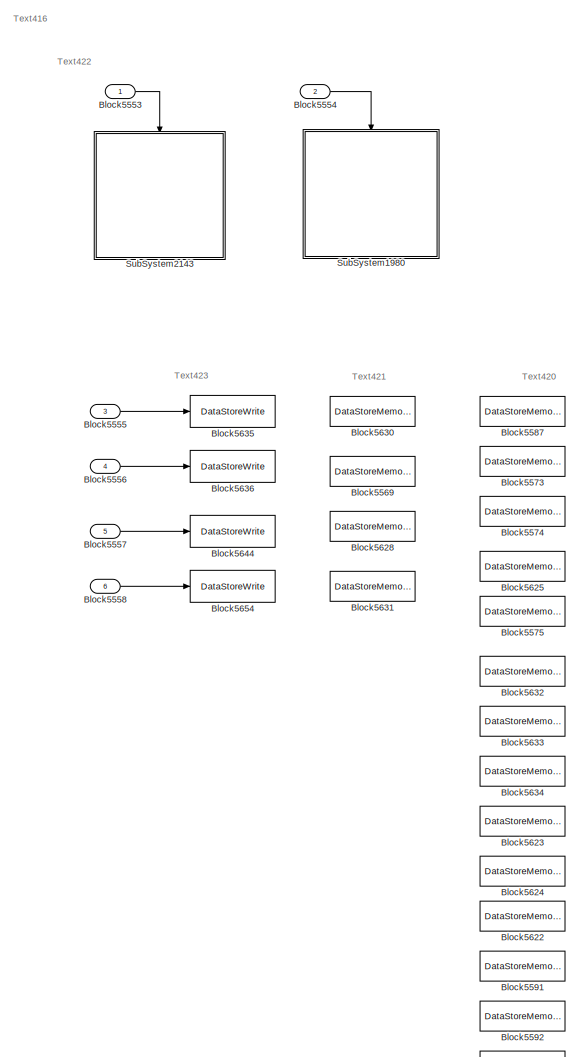
[diagram: SubSystem1979 - part 1/3, top left region]
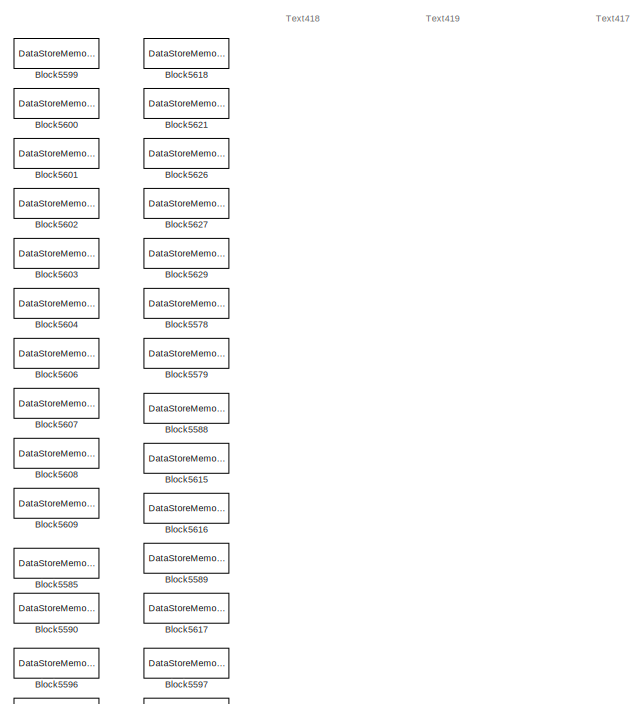
[diagram: SubSystem1979 - part 2/3, top right region]
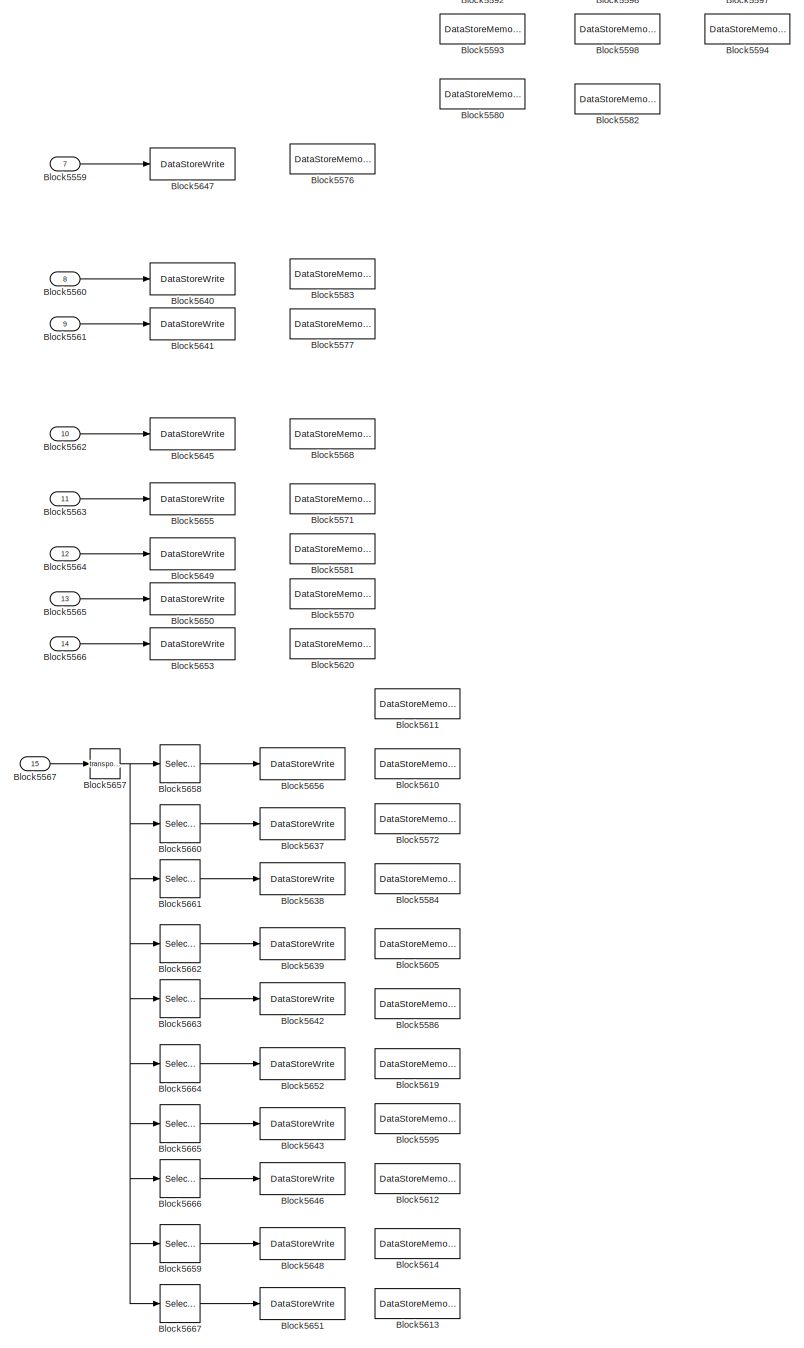
[diagram: SubSystem1979 - part 3/3, bottom center region]
BLOCK [SubSystem] SubSystem1979
  FunctionWithSeparateData = off
  MaskHideContents = off
  MinAlgLoopOccurrences = off
  Opaque = off
  Ports = [15]
  PropExecContextOutsideSubsystem = off
  RTWSystemCode = Auto
  RequestExecContextInheritance = off
  SID = 206
BLOCK [Inport] SubSystem1979/Block5553
  IconDisplay = Port number
  SID = 207
  SamplingMode = Sample based
  SignalType = real
BLOCK [Inport] SubSystem1979/Block5554
  IconDisplay = Port number
  Port = 2
  SID = 208
  SamplingMode = Sample based
  SignalType = real
BLOCK [Inport] SubSystem1979/Block5555
  IconDisplay = Port number
  Port = 3
  SID = 209
  SamplingMode = Sample based
  SignalType = real
BLOCK [Inport] SubSystem1979/Block5556
  IconDisplay = Port number
  Port = 4
  SID = 210
  SamplingMode = Sample based
  SignalType = real
BLOCK [Inport] SubSystem1979/Block5557
  IconDisplay = Port number
  Port = 5
  SID = 211
  SamplingMode = Sample based
  SignalType = real
BLOCK [Inport] SubSystem1979/Block5558
  IconDisplay = Port number
  Port = 6
  SID = 212
  SamplingMode = Sample based
  SignalType = real
BLOCK [Inport] SubSystem1979/Block5559
  IconDisplay = Port number
  Port = 7
  SID = 213
  SamplingMode = Sample based
  SignalType = real
BLOCK [Inport] SubSystem1979/Block5560
  IconDisplay = Port number
  Port = 8
  SID = 214
  SamplingMode = Sample based
  SignalType = real
BLOCK [Inport] SubSystem1979/Block5561
  IconDisplay = Port number
  Port = 9
  SID = 215
  SamplingMode = Sample based
  SignalType = real
BLOCK [Inport] SubSystem1979/Block5562
  IconDisplay = Port number
  Port = 10
  SID = 216
  SamplingMode = Sample based
  SignalType = real
BLOCK [Inport] SubSystem1979/Block5563
  IconDisplay = Port number
  Port = 11
  SID = 217
  SamplingMode = Sample based
  SignalType = real
BLOCK [Inport] SubSystem1979/Block5564
  IconDisplay = Port number
  Port = 12
  SID = 218
  SamplingMode = Sample based
  SignalType = real
BLOCK [Inport] SubSystem1979/Block5565
  IconDisplay = Port number
  Port = 13
  SID = 219
  SamplingMode = Sample based
  SignalType = real
BLOCK [Inport] SubSystem1979/Block5566
  IconDisplay = Port number
  Port = 14
  SID = 220
  SamplingMode = Sample based
  SignalType = real
BLOCK [Inport] SubSystem1979/Block5567
  IconDisplay = Port number
  Port = 15
  PortDimensions = [144, 10]
  SID = 221
  SamplingMode = Sample based
  SignalType = real
BLOCK [DataStoreMemory] SubSystem1979/Block5568
  DataStoreName = DSM35
  OutDataTypeStr = double
  SID = 222
BLOCK [DataStoreMemory] SubSystem1979/Block5569
  DataStoreName = DSM36
  InitialValue = [0 0 0]
  OutDataTypeStr = double
  SID = 223
BLOCK [DataStoreMemory] SubSystem1979/Block5570
  DataStoreName = DSM37
  OutDataTypeStr = double
  SID = 224
BLOCK [DataStoreMemory] SubSystem1979/Block5571
  DataStoreName = DSM38
  OutDataTypeStr = double
  SID = 225
BLOCK [DataStoreMemory] SubSystem1979/Block5572
  DataStoreName = DSM39
  OutDataTypeStr = double
  SID = 226
BLOCK [DataStoreMemory] SubSystem1979/Block5573
  DataStoreName = DSM40
  OutDataTypeStr = double
  SID = 227
BLOCK [DataStoreMemory] SubSystem1979/Block5574
  DataStoreName = DSM41
  InitialValue = [0 0 0]
  OutDataTypeStr = double
  SID = 228
BLOCK [DataStoreMemory] SubSystem1979/Block5575
  DataStoreName = DSM42
  InitialValue = [0 0 0]
  OutDataTypeStr = double
  SID = 229
BLOCK [DataStoreMemory] SubSystem1979/Block5576
  DataStoreName = DSM43
  OutDataTypeStr = double
  SID = 230
BLOCK [DataStoreMemory] SubSystem1979/Block5577
  DataStoreName = DSM44
  OutDataTypeStr = double
  SID = 231
BLOCK [DataStoreMemory] SubSystem1979/Block5578
  DataStoreName = DSM45
  InitialValue = [0 0 0]
  OutDataTypeStr = double
  SID = 232
BLOCK [DataStoreMemory] SubSystem1979/Block5579
  DataStoreName = DSM46
  InitialValue = [0 0 0]
  OutDataTypeStr = double
  SID = 233
BLOCK [DataStoreMemory] SubSystem1979/Block5580
  DataStoreName = DSM47
  InitialValue = [0 0 0]
  OutDataTypeStr = double
  SID = 234
BLOCK [DataStoreMemory] SubSystem1979/Block5581
  DataStoreName = DSM48
  OutDataTypeStr = double
  SID = 235
BLOCK [DataStoreMemory] SubSystem1979/Block5582
  DataStoreName = DSM49
  OutDataTypeStr = double
  SID = 236
BLOCK [DataStoreMemory] SubSystem1979/Block5583
  DataStoreName = DSM50
  OutDataTypeStr = double
  SID = 237
BLOCK [DataStoreMemory] SubSystem1979/Block5584
  DataStoreName = DSM51
  OutDataTypeStr = double
  SID = 238
BLOCK [DataStoreMemory] SubSystem1979/Block5585
  DataStoreName = DSM52
  OutDataTypeStr = double
  SID = 239
BLOCK [DataStoreMemory] SubSystem1979/Block5586
  DataStoreName = DSM53
  OutDataTypeStr = double
  SID = 240
BLOCK [DataStoreMemory] SubSystem1979/Block5587
  DataStoreName = DSM54
  OutDataTypeStr = double
  SID = 241
BLOCK [DataStoreMemory] SubSystem1979/Block5588
  DataStoreName = DSM55
  OutDataTypeStr = double
  SID = 242
BLOCK [DataStoreMemory] SubSystem1979/Block5589
  DataStoreName = DSM56
  InitialValue = 2
  OutDataTypeStr = double
  SID = 243
BLOCK [DataStoreMemory] SubSystem1979/Block5590
  DataStoreName = DSM57
  OutDataTypeStr = double
  SID = 244
BLOCK [DataStoreMemory] SubSystem1979/Block5591
  DataStoreName = DSM58
  OutDataTypeStr = double
  SID = 245
BLOCK [DataStoreMemory] SubSystem1979/Block5592
  DataStoreName = DSM59
  OutDataTypeStr = double
  SID = 246
BLOCK [DataStoreMemory] SubSystem1979/Block5593
  DataStoreName = DSM60
  OutDataTypeStr = double
  SID = 247
BLOCK [DataStoreMemory] SubSystem1979/Block5594
  DataStoreName = DSM61
  OutDataTypeStr = double
  SID = 248
BLOCK [DataStoreMemory] SubSystem1979/Block5595
  DataStoreName = DSM62
  OutDataTypeStr = double
  SID = 249
BLOCK [DataStoreMemory] SubSystem1979/Block5596
  DataStoreName = DSM63
  OutDataTypeStr = double
  SID = 250
BLOCK [DataStoreMemory] SubSystem1979/Block5597
  DataStoreName = DSM64
  OutDataTypeStr = double
  SID = 251
BLOCK [DataStoreMemory] SubSystem1979/Block5598
  DataStoreName = DSM65
  OutDataTypeStr = double
  SID = 252
BLOCK [DataStoreMemory] SubSystem1979/Block5599
  DataStoreName = DSM66
  OutDataTypeStr = double
  SID = 253
BLOCK [DataStoreMemory] SubSystem1979/Block5600
  DataStoreName = DSM67
  OutDataTypeStr = double
  SID = 254
BLOCK [DataStoreMemory] SubSystem1979/Block5601
  DataStoreName = DSM68
  OutDataTypeStr = double
  SID = 255
BLOCK [DataStoreMemory] SubSystem1979/Block5602
  DataStoreName = DSM69
  OutDataTypeStr = double
  SID = 256
BLOCK [DataStoreMemory] SubSystem1979/Block5603
  DataStoreName = DSM70
  OutDataTypeStr = double
  SID = 257
BLOCK [DataStoreMemory] SubSystem1979/Block5604
  DataStoreName = DSM71
  OutDataTypeStr = double
  SID = 258
BLOCK [DataStoreMemory] SubSystem1979/Block5605
  DataStoreName = DSM72
  OutDataTypeStr = double
  SID = 259
BLOCK [DataStoreMemory] SubSystem1979/Block5606
  DataStoreName = DSM73
  OutDataTypeStr = double
  SID = 260
BLOCK [DataStoreMemory] SubSystem1979/Block5607
  DataStoreName = DSM74
  OutDataTypeStr = double
  SID = 261
BLOCK [DataStoreMemory] SubSystem1979/Block5608
  DataStoreName = DSM75
  OutDataTypeStr = double
  SID = 262
BLOCK [DataStoreMemory] SubSystem1979/Block5609
  DataStoreName = DSM76
  OutDataTypeStr = double
  SID = 263
BLOCK [DataStoreMemory] SubSystem1979/Block5610
  DataStoreName = DSM77
  OutDataTypeStr = double
  SID = 264
BLOCK [DataStoreMemory] SubSystem1979/Block5611
  DataStoreName = DSM78
  OutDataTypeStr = double
  SID = 265
BLOCK [DataStoreMemory] SubSystem1979/Block5612
  DataStoreName = DSM79
  OutDataTypeStr = double
  SID = 266
BLOCK [DataStoreMemory] SubSystem1979/Block5613
  DataStoreName = DSM80
  OutDataTypeStr = double
  SID = 267
BLOCK [DataStoreMemory] SubSystem1979/Block5614
  DataStoreName = DSM81
  OutDataTypeStr = double
  SID = 268
BLOCK [DataStoreMemory] SubSystem1979/Block5615
  DataStoreName = DSM82
  InitialValue = [0 0 0]
  OutDataTypeStr = double
  SID = 269
BLOCK [DataStoreMemory] SubSystem1979/Block5616
  DataStoreName = DSM83
  InitialValue = [0 0 0]
  OutDataTypeStr = double
  SID = 270
BLOCK [DataStoreMemory] SubSystem1979/Block5617
  DataStoreName = DSM84
  InitialValue = [0 0 0]
  OutDataTypeStr = double
  SID = 271
BLOCK [DataStoreMemory] SubSystem1979/Block5618
  DataStoreName = DSM85
  OutDataTypeStr = double
  SID = 272
BLOCK [DataStoreMemory] SubSystem1979/Block5619
  DataStoreName = DSM86
  OutDataTypeStr = double
  SID = 273
BLOCK [DataStoreMemory] SubSystem1979/Block5620
  DataStoreName = DSM87
  InitialValue = [0 0 0]
  OutDataTypeStr = double
  SID = 274
BLOCK [DataStoreMemory] SubSystem1979/Block5621
  DataStoreName = DSM88
  OutDataTypeStr = double
  SID = 275
BLOCK [DataStoreMemory] SubSystem1979/Block5622
  DataStoreName = DSM89
  OutDataTypeStr = double
  SID = 276
BLOCK [DataStoreMemory] SubSystem1979/Block5623
  DataStoreName = DSM90
  OutDataTypeStr = double
  SID = 277
BLOCK [DataStoreMemory] SubSystem1979/Block5624
  DataStoreName = DSM91
  OutDataTypeStr = double
  SID = 278
BLOCK [DataStoreMemory] SubSystem1979/Block5625
  DataStoreName = DSM92
  OutDataTypeStr = double
  SID = 279
BLOCK [DataStoreMemory] SubSystem1979/Block5626
  DataStoreName = DSM93
  OutDataTypeStr = double
  SID = 280
BLOCK [DataStoreMemory] SubSystem1979/Block5627
  DataStoreName = DSM94
  OutDataTypeStr = double
  SID = 281
BLOCK [DataStoreMemory] SubSystem1979/Block5628
  DataStoreName = DSM95
  InitialValue = [0 0 0]
  OutDataTypeStr = double
  SID = 282
BLOCK [DataStoreMemory] SubSystem1979/Block5629
  DataStoreName = DSM96
  OutDataTypeStr = double
  SID = 283
BLOCK [DataStoreMemory] SubSystem1979/Block5630
  DataStoreName = DSM97
  InitialValue = [0 0 0]
  OutDataTypeStr = double
  SID = 284
BLOCK [DataStoreMemory] SubSystem1979/Block5631
  DataStoreName = DSM98
  InitialValue = [0 0 0]
  OutDataTypeStr = double
  SID = 285
BLOCK [DataStoreMemory] SubSystem1979/Block5632
  DataStoreName = DSM99
  InitialValue = [0 0 0]
  OutDataTypeStr = double
  SID = 286
BLOCK [DataStoreMemory] SubSystem1979/Block5633
  DataStoreName = DSM100
  InitialValue = [0 0 0]
  OutDataTypeStr = double
  SID = 287
BLOCK [DataStoreMemory] SubSystem1979/Block5634
  DataStoreName = DSM101
  OutDataTypeStr = double
  SID = 288
BLOCK [DataStoreWrite] SubSystem1979/Block5635
  DataStoreName = DSM97
  Ports = [1]
  Priority = 1
  SID = 289
BLOCK [DataStoreWrite] SubSystem1979/Block5636
  DataStoreName = DSM36
  Ports = [1]
  Priority = 1
  SID = 290
BLOCK [DataStoreWrite] SubSystem1979/Block5637
  DataStoreName = DSM39
  Ports = [1]
  Priority = 1
  SID = 291
BLOCK [DataStoreWrite] SubSystem1979/Block5638
  DataStoreName = DSM51
  Ports = [1]
  Priority = 1
  SID = 292
BLOCK [DataStoreWrite] SubSystem1979/Block5639
  DataStoreName = DSM72
  Ports = [1]
  Priority = 1
  SID = 293
BLOCK [DataStoreWrite] SubSystem1979/Block5640
  DataStoreName = DSM50
  Ports = [1]
  Priority = 1
  SID = 294
BLOCK [DataStoreWrite] SubSystem1979/Block5641
  DataStoreName = DSM44
  Ports = [1]
  Priority = 1
  SID = 295
BLOCK [DataStoreWrite] SubSystem1979/Block5642
  DataStoreName = DSM53
  Ports = [1]
  Priority = 1
  SID = 296
BLOCK [DataStoreWrite] SubSystem1979/Block5643
  DataStoreName = DSM62
  Ports = [1]
  Priority = 1
  SID = 297
BLOCK [DataStoreWrite] SubSystem1979/Block5644
  DataStoreName = DSM95
  Ports = [1]
  Priority = 1
  SID = 298
BLOCK [DataStoreWrite] SubSystem1979/Block5645
  DataStoreName = DSM35
  Ports = [1]
  Priority = 1
  SID = 299
BLOCK [DataStoreWrite] SubSystem1979/Block5646
  DataStoreName = DSM79
  Ports = [1]
  Priority = 1
  SID = 300
BLOCK [DataStoreWrite] SubSystem1979/Block5647
  DataStoreName = DSM43
  Ports = [1]
  Priority = 1
  SID = 301
BLOCK [DataStoreWrite] SubSystem1979/Block5648
  DataStoreName = DSM81
  Ports = [1]
  Priority = 1
  SID = 302
BLOCK [DataStoreWrite] SubSystem1979/Block5649
  DataStoreName = DSM48
  Ports = [1]
  Priority = 1
  SID = 303
BLOCK [DataStoreWrite] SubSystem1979/Block5650
  DataStoreName = DSM37
  Ports = [1]
  Priority = 1
  SID = 304
BLOCK [DataStoreWrite] SubSystem1979/Block5651
  DataStoreName = DSM80
  Ports = [1]
  Priority = 1
  SID = 305
BLOCK [DataStoreWrite] SubSystem1979/Block5652
  DataStoreName = DSM86
  Ports = [1]
  Priority = 1
  SID = 306
BLOCK [DataStoreWrite] SubSystem1979/Block5653
  DataStoreName = DSM87
  Ports = [1]
  Priority = 1
  SID = 307
BLOCK [DataStoreWrite] SubSystem1979/Block5654
  DataStoreName = DSM98
  Ports = [1]
  Priority = 1
  SID = 308
BLOCK [DataStoreWrite] SubSystem1979/Block5655
  DataStoreName = DSM38
  Ports = [1]
  Priority = 1
  SID = 309
BLOCK [DataStoreWrite] SubSystem1979/Block5656
  DataStoreName = DSM77
  Ports = [1]
  Priority = 1
  SID = 310
BLOCK [Math] SubSystem1979/Block5657
  Operator = transpose
  Ports = [1, 1]
  SID = 311
BLOCK [Selector] SubSystem1979/Block5658
  IndexOptions = Index vector (dialog),Select all
  Indices = 1,-1
  NumberOfDimensions = 2
  OutputSizes = 1
  Ports = [1, 1]
  SID = 312
BLOCK [Selector] SubSystem1979/Block5659
  IndexOptions = Index vector (dialog),Select all
  Indices = 9,-1
  NumberOfDimensions = 2
  OutputSizes = 1
  Ports = [1, 1]
  SID = 313
BLOCK [Selector] SubSystem1979/Block5660
  IndexOptions = Index vector (dialog),Select all
  Indices = 2,-1
  NumberOfDimensions = 2
  OutputSizes = 1
  Ports = [1, 1]
  SID = 314
BLOCK [Selector] SubSystem1979/Block5661
  IndexOptions = Index vector (dialog),Select all
  Indices = 3,-1
  NumberOfDimensions = 2
  OutputSizes = 1
  Ports = [1, 1]
  SID = 315
BLOCK [Selector] SubSystem1979/Block5662
  IndexOptions = Index vector (dialog),Select all
  Indices = 4,-1
  NumberOfDimensions = 2
  OutputSizes = 1
  Ports = [1, 1]
  SID = 316
BLOCK [Selector] SubSystem1979/Block5663
  IndexOptions = Index vector (dialog),Select all
  Indices = 5,-1
  NumberOfDimensions = 2
  OutputSizes = 1
  Ports = [1, 1]
  SID = 317
BLOCK [Selector] SubSystem1979/Block5664
  IndexOptions = Index vector (dialog),Select all
  Indices = 6,-1
  NumberOfDimensions = 2
  OutputSizes = 1
  Ports = [1, 1]
  SID = 318
BLOCK [Selector] SubSystem1979/Block5665
  IndexOptions = Index vector (dialog),Select all
  Indices = 7,-1
  NumberOfDimensions = 2
  OutputSizes = 1
  Ports = [1, 1]
  SID = 319
BLOCK [Selector] SubSystem1979/Block5666
  IndexOptions = Index vector (dialog),Select all
  Indices = 8,-1
  NumberOfDimensions = 2
  OutputSizes = 1
  Ports = [1, 1]
  SID = 320
BLOCK [Selector] SubSystem1979/Block5667
  IndexOptions = Index vector (dialog),Select all
  Indices = 10,-1
  NumberOfDimensions = 2
  OutputSizes = 1
  Ports = [1, 1]
  SID = 321
BLOCK [SubSystem] SubSystem1979/SubSystem1980
  AttributesFormatString = Attribute1189
  FunctionWithSeparateData = off
  MaskHideContents = off
  MinAlgLoopOccurrences = off
  Opaque = off
  Ports = [0, 0, 0, 1]
  Priority = 3
  PropExecContextOutsideSubsystem = off
  RTWFcnNameOpts = Use subsystem name
  RTWSystemCode = Nonreusable function
  RequestExecContextInheritance = off
  SID = 322
  TreatAsAtomicUnit = on
BLOCK [TriggerPort] SubSystem1979/SubSystem1980/Block5668
  Ports = []
  SID = 323
  StatesWhenEnabling = held
BLOCK [DataStoreRead] SubSystem1979/SubSystem1980/Block5669
  DataStoreName = DSM43
  Ports = [0, 1]
  SID = 324
BLOCK [SubSystem] SubSystem1979/SubSystem1980/SubSystem1981
  AttributesFormatString = Attribute1190
  FunctionWithSeparateData = off
  MaskHideContents = off
  MinAlgLoopOccurrences = off
  Opaque = off
  OpenFcn = warndlg('ÏXÖ~!');
  Ports = []
  PropExecContextOutsideSubsystem = off
  RTWSystemCode = Auto
  RequestExecContextInheritance = off
  SID = 325
BLOCK [SubSystem] SubSystem1979/SubSystem1980/SubSystem1982
  AttributesFormatString = Attribute1191
  FunctionWithSeparateData = off
  MaskHideContents = off
  MinAlgLoopOccurrences = off
  Opaque = off
  Ports = [1]
  Priority = 3
  PropExecContextOutsideSubsystem = off
  RTWSystemCode = Nonreusable function
  RequestExecContextInheritance = off
  SID = 326
  TreatAsAtomicUnit = on
BLOCK [Inport] SubSystem1979/SubSystem1980/SubSystem1982/Block5670
  IconDisplay = Port number
  SID = 327
  SamplingMode = Sample based
  SignalType = real
BLOCK [SubSystem] SubSystem1979/SubSystem1980/SubSystem1982/SubSystem1983
  AttributesFormatString = Attribute1192
  FunctionWithSeparateData = off
  MaskHideContents = off
  MinAlgLoopOccurrences = off
  Opaque = off
  Ports = []
  Priority = 1
  PropExecContextOutsideSubsystem = off
  RTWFcnNameOpts = Use subsystem name
  RTWSystemCode = Nonreusable function
  RequestExecContextInheritance = off
  SID = 328
  TreatAsAtomicUnit = on
BLOCK [DataStoreRead] SubSystem1979/SubSystem1980/SubSystem1982/SubSystem1983/Block5671
  DataStoreName = DSM44
  Ports = [0, 1]
  SID = 329
BLOCK [Terminator] SubSystem1979/SubSystem1980/SubSystem1982/SubSystem1983/Block5672
  SID = 330
BLOCK [SubSystem] SubSystem1979/SubSystem1980/SubSystem1982/SubSystem1983/SubSystem1984
  FunctionWithSeparateData = off
  MaskHideContents = off
  MinAlgLoopOccurrences = off
  Opaque = off
  OpenFcn = warndlg('ÏXÖ~!');
  Ports = [0, 1]
  PropExecContextOutsideSubsystem = off
  RTWSystemCode = Auto
  RequestExecContextInheritance = off
  SID = 331
  TreatAsAtomicUnit = on
BLOCK [Outport] SubSystem1979/SubSystem1980/SubSystem1982/SubSystem1983/SubSystem1984/# if A
  IconDisplay = Port number
  SID = 337
BLOCK [Constant] SubSystem1979/SubSystem1980/SubSystem1982/SubSystem1983/SubSystem1984/Constant1
  SID = 332
  SampleTime = -1
  Value = (u1g_GAJCC_ENGCYL == u1g_GAJCC_V6_1)
BLOCK [SubSystem] SubSystem1979/SubSystem1980/SubSystem1982/SubSystem1983/SubSystem1984/EnabledSubsystem
  FunctionWithSeparateData = off
  MaskHideContents = off
  MinAlgLoopOccurrences = off
  Opaque = off
  Ports = [0, 1, 1]
  PropExecContextOutsideSubsystem = off
  RTWSystemCode = Auto
  RequestExecContextInheritance = off
  SID = 333
  TreatAsAtomicUnit = on
BLOCK [EnablePort] SubSystem1979/SubSystem1980/SubSystem1982/SubSystem1983/SubSystem1984/EnabledSubsystem/Enable
  Ports = []
  SID = 334
BLOCK [Reference] SubSystem1979/SubSystem1980/SubSystem1982/SubSystem1983/SubSystem1984/EnabledSubsystem/Function-Call\nGenerator  REF=simulink/Ports &\nSubsystems/Function-Call\nGenerator
  Ports = [0, 1]
  SID = 335
  SourceBlock = simulink/Ports &\nSubsystems/Function-Call\nGenerator
  SourceType = Function-Call Generator
  numberOfIterations = 1
  sample_time = -1
BLOCK [Outport] SubSystem1979/SubSystem1980/SubSystem1982/SubSystem1983/SubSystem1984/EnabledSubsystem/Out1
  IconDisplay = Port number
  SID = 336
  SamplingMode = Sample based
  SignalType = real
BLOCK [SubSystem] SubSystem1979/SubSystem1980/SubSystem1982/SubSystem1983/SubSystem1985
  FunctionWithSeparateData = off
  MaskHideContents = off
  MinAlgLoopOccurrences = off
  Opaque = off
  OpenFcn = warndlg('ÏXÖ~!');
  Ports = [0, 1]
  PropExecContextOutsideSubsystem = off
  RTWSystemCode = Auto
  RequestExecContextInheritance = off
  SID = 338
  TreatAsAtomicUnit = on
BLOCK [Outport] SubSystem1979/SubSystem1980/SubSystem1982/SubSystem1983/SubSystem1985/# if A
  IconDisplay = Port number
  SID = 344
BLOCK [Constant] SubSystem1979/SubSystem1980/SubSystem1982/SubSystem1983/SubSystem1985/Constant1
  SID = 339
  SampleTime = -1
  Value = (u1g_GAJCC_ENGCYL == u1g_GAJCC_V6_2)
BLOCK [SubSystem] SubSystem1979/SubSystem1980/SubSystem1982/SubSystem1983/SubSystem1985/EnabledSubsystem
  FunctionWithSeparateData = off
  MaskHideContents = off
  MinAlgLoopOccurrences = off
  Opaque = off
  Ports = [0, 1, 1]
  PropExecContextOutsideSubsystem = off
  RTWSystemCode = Auto
  RequestExecContextInheritance = off
  SID = 340
  TreatAsAtomicUnit = on
BLOCK [EnablePort] SubSystem1979/SubSystem1980/SubSystem1982/SubSystem1983/SubSystem1985/EnabledSubsystem/Enable
  Ports = []
  SID = 341
BLOCK [Reference] SubSystem1979/SubSystem1980/SubSystem1982/SubSystem1983/SubSystem1985/EnabledSubsystem/Function-Call\nGenerator  REF=simulink/Ports &\nSubsystems/Function-Call\nGenerator
  Ports = [0, 1]
  SID = 342
  SourceBlock = simulink/Ports &\nSubsystems/Function-Call\nGenerator
  SourceType = Function-Call Generator
  numberOfIterations = 1
  sample_time = -1
BLOCK [Outport] SubSystem1979/SubSystem1980/SubSystem1982/SubSystem1983/SubSystem1985/EnabledSubsystem/Out1
  IconDisplay = Port number
  SID = 343
  SamplingMode = Sample based
  SignalType = real
BLOCK [SubSystem] SubSystem1979/SubSystem1980/SubSystem1982/SubSystem1983/SubSystem1986
  FunctionWithSeparateData = off
  MaskHideContents = off
  MinAlgLoopOccurrences = off
  Opaque = off
  OpenFcn = warndlg('ÏXÖ~!');
  Ports = []
  PropExecContextOutsideSubsystem = off
  RTWSystemCode = Auto
  RequestExecContextInheritance = off
  SID = 345
BLOCK [SubSystem] SubSystem1979/SubSystem1980/SubSystem1982/SubSystem1983/SubSystem1987
  AttributesFormatString = Attribute1193;#if (u1g_GAJCC_ENGCYL == u1g_GAJCC_V6_1);
  FunctionWithSeparateData = off
  MaskHideContents = off
  MinAlgLoopOccurrences = off
  Opaque = off
  Ports = [0, 0, 0, 1]
  PropExecContextOutsideSubsystem = off
  RTWFcnNameOpts = Use subsystem name
  RTWSystemCode = Nonreusable function
  RequestExecContextInheritance = off
  SID = 346
  TreatAsAtomicUnit = on
BLOCK [TriggerPort] SubSystem1979/SubSystem1980/SubSystem1982/SubSystem1983/SubSystem1987/Block5673
  Ports = []
  SID = 347
  StatesWhenEnabling = held
  TriggerType = function-call
BLOCK [Constant] SubSystem1979/SubSystem1980/SubSystem1982/SubSystem1983/SubSystem1987/Block5674
  OutDataTypeStr = double
  SID = 348
  SampleTime = -1
  UserData = DataTag28
  UserDataPersistent = on
  Value = Parameter144
BLOCK [Constant] SubSystem1979/SubSystem1980/SubSystem1982/SubSystem1983/SubSystem1987/Block5675
  OutDataTypeStr = double
  SID = 349
  SampleTime = -1
  UserData = DataTag29
  UserDataPersistent = on
  Value = Parameter134
BLOCK [Constant] SubSystem1979/SubSystem1980/SubSystem1982/SubSystem1983/SubSystem1987/Block5676
  OutDataTypeStr = double
  SID = 350
  SampleTime = -1
  UserData = DataTag30
  UserDataPersistent = on
  Value = Parameter136
BLOCK [Constant] SubSystem1979/SubSystem1980/SubSystem1982/SubSystem1983/SubSystem1987/Block5677
  OutDataTypeStr = double
  SID = 351
  SampleTime = -1
  UserData = DataTag31
  UserDataPersistent = on
  Value = Parameter138
BLOCK [DataStoreRead] SubSystem1979/SubSystem1980/SubSystem1982/SubSystem1983/SubSystem1987/Block5678
  DataStoreName = DSM43
  Ports = [0, 1]
  SID = 352
BLOCK [Sum] SubSystem1979/SubSystem1980/SubSystem1982/SubSystem1983/SubSystem1987/Block5679
  OutDataTypeStr = double
  Ports = [2, 1]
  RndMeth = Zero
  SID = 353
BLOCK [Sum] SubSystem1979/SubSystem1980/SubSystem1982/SubSystem1983/SubSystem1987/Block5680
  OutDataTypeStr = double
  Ports = [2, 1]
  RndMeth = Zero
  SID = 354
BLOCK [Sum] SubSystem1979/SubSystem1980/SubSystem1982/SubSystem1983/SubSystem1987/Block5681
  OutDataTypeStr = double
  Ports = [2, 1]
  RndMeth = Zero
  SID = 355
BLOCK [SubSystem] SubSystem1979/SubSystem1980/SubSystem1982/SubSystem1983/SubSystem1987/SubSystem1988
  FunctionWithSeparateData = off
  MaskHideContents = off
  MinAlgLoopOccurrences = off
  Opaque = off
  Ports = [2, 1]
  PropExecContextOutsideSubsystem = off
  RTWSystemCode = Auto
  RequestExecContextInheritance = off
  SID = 356
BLOCK [Inport] SubSystem1979/SubSystem1980/SubSystem1982/SubSystem1983/SubSystem1987/SubSystem1988/In1
  IconDisplay = Port number
  SID = 357
  SamplingMode = Sample based
  SignalType = real
BLOCK [Inport] SubSystem1979/SubSystem1980/SubSystem1982/SubSystem1983/SubSystem1987/SubSystem1988/In2
  IconDisplay = Port number
  Port = 2
  SID = 358
  SamplingMode = Sample based
  SignalType = real
BLOCK [Outport] SubSystem1979/SubSystem1980/SubSystem1982/SubSystem1983/SubSystem1987/SubSystem1988/Out1
  IconDisplay = Port number
  SID = 362
  SamplingMode = Sample based
  SignalType = real
BLOCK [RelationalOperator] SubSystem1979/SubSystem1980/SubSystem1982/SubSystem1983/SubSystem1987/SubSystem1988/RO1
  Operator = ==
  Ports = [2, 1]
  SID = 359
BLOCK [DataTypeConversion] SubSystem1979/SubSystem1980/SubSystem1982/SubSystem1983/SubSystem1987/SubSystem1988/single1
  OutDataTypeStr = single
  SID = 360
BLOCK [DataTypeConversion] SubSystem1979/SubSystem1980/SubSystem1982/SubSystem1983/SubSystem1987/SubSystem1988/single2
  OutDataTypeStr = single
  SID = 361
BLOCK [SubSystem] SubSystem1979/SubSystem1980/SubSystem1982/SubSystem1983/SubSystem1987/SubSystem1989
  FunctionWithSeparateData = off
  MaskHideContents = off
  MinAlgLoopOccurrences = off
  Opaque = off
  Ports = [2, 1]
  PropExecContextOutsideSubsystem = off
  RTWSystemCode = Auto
  RequestExecContextInheritance = off
  SID = 363
BLOCK [Inport] SubSystem1979/SubSystem1980/SubSystem1982/SubSystem1983/SubSystem1987/SubSystem1989/In1
  IconDisplay = Port number
  SID = 364
  SamplingMode = Sample based
  SignalType = real
BLOCK [Inport] SubSystem1979/SubSystem1980/SubSystem1982/SubSystem1983/SubSystem1987/SubSystem1989/In2
  IconDisplay = Port number
  Port = 2
  SID = 365
  SamplingMode = Sample based
  SignalType = real
BLOCK [Outport] SubSystem1979/SubSystem1980/SubSystem1982/SubSystem1983/SubSystem1987/SubSystem1989/Out1
  IconDisplay = Port number
  SID = 369
  SamplingMode = Sample based
  SignalType = real
BLOCK [RelationalOperator] SubSystem1979/SubSystem1980/SubSystem1982/SubSystem1983/SubSystem1987/SubSystem1989/RO1
  Operator = ==
  Ports = [2, 1]
  SID = 366
BLOCK [DataTypeConversion] SubSystem1979/SubSystem1980/SubSystem1982/SubSystem1983/SubSystem1987/SubSystem1989/single1
  OutDataTypeStr = single
  SID = 367
BLOCK [DataTypeConversion] SubSystem1979/SubSystem1980/SubSystem1982/SubSystem1983/SubSystem1987/SubSystem1989/single2
  OutDataTypeStr = single
  SID = 368
BLOCK [SubSystem] SubSystem1979/SubSystem1980/SubSystem1982/SubSystem1983/SubSystem1987/SubSystem1990
  FunctionWithSeparateData = off
  MaskHideContents = off
  MinAlgLoopOccurrences = off
  Opaque = off
  Ports = [2, 1]
  PropExecContextOutsideSubsystem = off
  RTWSystemCode = Auto
  RequestExecContextInheritance = off
  SID = 370
BLOCK [Inport] SubSystem1979/SubSystem1980/SubSystem1982/SubSystem1983/SubSystem1987/SubSystem1990/In1
  IconDisplay = Port number
  SID = 371
  SamplingMode = Sample based
  SignalType = real
BLOCK [Inport] SubSystem1979/SubSystem1980/SubSystem1982/SubSystem1983/SubSystem1987/SubSystem1990/In2
  IconDisplay = Port number
  Port = 2
  SID = 372
  SamplingMode = Sample based
  SignalType = real
BLOCK [Outport] SubSystem1979/SubSystem1980/SubSystem1982/SubSystem1983/SubSystem1987/SubSystem1990/Out1
  IconDisplay = Port number
  SID = 376
  SamplingMode = Sample based
  SignalType = real
BLOCK [RelationalOperator] SubSystem1979/SubSystem1980/SubSystem1982/SubSystem1983/SubSystem1987/SubSystem1990/RO1
  Operator = ==
  Ports = [2, 1]
  SID = 373
BLOCK [DataTypeConversion] SubSystem1979/SubSystem1980/SubSystem1982/SubSystem1983/SubSystem1987/SubSystem1990/single1
  OutDataTypeStr = single
  SID = 374
BLOCK [DataTypeConversion] SubSystem1979/SubSystem1980/SubSystem1982/SubSystem1983/SubSystem1987/SubSystem1990/single2
  OutDataTypeStr = single
  SID = 375
BLOCK [SubSystem] SubSystem1979/SubSystem1980/SubSystem1982/SubSystem1983/SubSystem1987/SubSystem1991
  FunctionWithSeparateData = off
  MaskHideContents = off
  MinAlgLoopOccurrences = off
  Opaque = off
  Ports = [0, 0, 1]
  PropExecContextOutsideSubsystem = off
  RTWSystemCode = Inline
  RequestExecContextInheritance = off
  SID = 377
BLOCK [EnablePort] SubSystem1979/SubSystem1980/SubSystem1982/SubSystem1983/SubSystem1987/SubSystem1991/Block5682
  Ports = []
  SID = 378
BLOCK [Constant] SubSystem1979/SubSystem1980/SubSystem1982/SubSystem1983/SubSystem1987/SubSystem1991/Block5683
  OutDataTypeStr = double
  SID = 379
  SampleTime = -1
  UserData = DataTag32
  UserDataPersistent = on
  Value = Parameter136
BLOCK [Constant] SubSystem1979/SubSystem1980/SubSystem1982/SubSystem1983/SubSystem1987/SubSystem1991/Block5684
  OutDataTypeStr = double
  SID = 380
  SampleTime = -1
  UserData = DataTag33
  UserDataPersistent = on
BLOCK [Constant] SubSystem1979/SubSystem1980/SubSystem1982/SubSystem1983/SubSystem1987/SubSystem1991/Block5685
  OutDataTypeStr = double
  SID = 381
  SampleTime = -1
  UserData = DataTag34
  UserDataPersistent = on
  Value = Parameter55
BLOCK [DataStoreRead] SubSystem1979/SubSystem1980/SubSystem1982/SubSystem1983/SubSystem1987/SubSystem1991/Block5686
  DataStoreName = DSM43
  Ports = [0, 1]
  SID = 382
BLOCK [DataStoreWrite] SubSystem1979/SubSystem1980/SubSystem1982/SubSystem1983/SubSystem1987/SubSystem1991/Block5687
  DataStoreName = DSM57
  Ports = [1]
  SID = 383
BLOCK [Sum] SubSystem1979/SubSystem1980/SubSystem1982/SubSystem1983/SubSystem1987/SubSystem1991/Block5688
  IconShape = round
  Inputs = |++
  OutDataTypeStr = double
  Ports = [2, 1]
  RndMeth = Zero
  SID = 384
BLOCK [Reference] SubSystem1979/SubSystem1980/SubSystem1982/SubSystem1983/SubSystem1987/SubSystem1991/SubSystem1992  REF=lib_all/SubSystem959
  AttributesFormatString = Attribute1201
  FunctionWithSeparateData = off
  GeneratePreprocessorConditionals = off
  Ports = [2, 1]
  RTWMemSecDataConstants = Inherit from model
  RTWMemSecDataInternal = Inherit from model
  RTWMemSecDataParameters = Inherit from model
  RTWMemSecFuncExecute = Inherit from model
  RTWMemSecFuncInitTerm = Inherit from model
  SID = 385
  ShowPortLabels = FromPortIcon
  SourceBlock = lib_all/SubSystem959
  SourceType = SubSystem
  SystemSampleTime = -1
BLOCK [SubSystem] SubSystem1979/SubSystem1980/SubSystem1982/SubSystem1983/SubSystem1987/SubSystem1991/SubSystem1993
  FunctionWithSeparateData = off
  MaskHideContents = off
  MinAlgLoopOccurrences = off
  Opaque = off
  OpenFcn = warndlg('ÏXÖ~!');
  Ports = [2]
  PropExecContextOutsideSubsystem = off
  RTWSystemCode = Auto
  RequestExecContextInheritance = off
  SID = 386
  TreatAsAtomicUnit = on
  UserData = DataTag35
  UserDataPersistent = on
BLOCK [Assignment] SubSystem1979/SubSystem1980/SubSystem1982/SubSystem1983/SubSystem1987/SubSystem1991/SubSystem1993/Assignment
  IndexOptions = Index vector (port)
  Indices = 1
  OutputSizes = [1 1]
  Ports = [3, 1]
  SID = 389
BLOCK [DataStoreRead] SubSystem1979/SubSystem1980/SubSystem1982/SubSystem1983/SubSystem1987/SubSystem1991/SubSystem1993/Inside_DSR
  DataStoreName = DSM2
  Ports = [0, 1]
  SID = 390
BLOCK [DataStoreWrite] SubSystem1979/SubSystem1980/SubSystem1982/SubSystem1983/SubSystem1987/SubSystem1991/SubSystem1993/Inside_DSW
  DataStoreName = DSM2
  Ports = [1]
  SID = 391
BLOCK [Inport] SubSystem1979/SubSystem1980/SubSystem1982/SubSystem1983/SubSystem1987/SubSystem1991/SubSystem1993/element
  IconDisplay = Port number
  Port = 2
  SID = 388
BLOCK [Inport] SubSystem1979/SubSystem1980/SubSystem1982/SubSystem1983/SubSystem1987/SubSystem1991/SubSystem1993/input
  IconDisplay = Port number
  SID = 387
BLOCK [SubSystem] SubSystem1979/SubSystem1980/SubSystem1982/SubSystem1983/SubSystem1987/SubSystem1991/SubSystem1994
  FunctionWithSeparateData = off
  MaskHideContents = off
  MinAlgLoopOccurrences = off
  Opaque = off
  OpenFcn = warndlg('ÏXÖ~!');
  Ports = [2]
  PropExecContextOutsideSubsystem = off
  RTWSystemCode = Auto
  RequestExecContextInheritance = off
  SID = 392
  TreatAsAtomicUnit = on
  UserData = DataTag36
  UserDataPersistent = on
BLOCK [Assignment] SubSystem1979/SubSystem1980/SubSystem1982/SubSystem1983/SubSystem1987/SubSystem1991/SubSystem1994/Assignment
  IndexOptions = Index vector (port)
  Indices = 1
  OutputSizes = [1 1]
  Ports = [3, 1]
  SID = 395
BLOCK [DataStoreRead] SubSystem1979/SubSystem1980/SubSystem1982/SubSystem1983/SubSystem1987/SubSystem1991/SubSystem1994/Inside_DSR
  DataStoreName = DSM3
  Ports = [0, 1]
  SID = 396
BLOCK [DataStoreWrite] SubSystem1979/SubSystem1980/SubSystem1982/SubSystem1983/SubSystem1987/SubSystem1991/SubSystem1994/Inside_DSW
  DataStoreName = DSM3
  Ports = [1]
  SID = 397
BLOCK [Inport] SubSystem1979/SubSystem1980/SubSystem1982/SubSystem1983/SubSystem1987/SubSystem1991/SubSystem1994/element
  IconDisplay = Port number
  Port = 2
  SID = 394
BLOCK [Inport] SubSystem1979/SubSystem1980/SubSystem1982/SubSystem1983/SubSystem1987/SubSystem1991/SubSystem1994/input
  IconDisplay = Port number
  SID = 393
BLOCK [SubSystem] SubSystem1979/SubSystem1980/SubSystem1982/SubSystem1983/SubSystem1987/SubSystem1995
  FunctionWithSeparateData = off
  MaskHideContents = off
  MinAlgLoopOccurrences = off
  Opaque = off
  Ports = [0, 0, 1]
  PropExecContextOutsideSubsystem = off
  RTWSystemCode = Inline
  RequestExecContextInheritance = off
  SID = 398
BLOCK [EnablePort] SubSystem1979/SubSystem1980/SubSystem1982/SubSystem1983/SubSystem1987/SubSystem1995/Block5689
  Ports = []
  SID = 399
BLOCK [Constant] SubSystem1979/SubSystem1980/SubSystem1982/SubSystem1983/SubSystem1987/SubSystem1995/Block5690
  OutDataTypeStr = double
  SID = 400
  SampleTime = -1
  UserData = DataTag37
  UserDataPersistent = on
  Value = Parameter138
BLOCK [Constant] SubSystem1979/SubSystem1980/SubSystem1982/SubSystem1983/SubSystem1987/SubSystem1995/Block5691
  OutDataTypeStr = double
  SID = 401
  SampleTime = -1
  UserData = DataTag38
  UserDataPersistent = on
BLOCK [Constant] SubSystem1979/SubSystem1980/SubSystem1982/SubSystem1983/SubSystem1987/SubSystem1995/Block5692
  OutDataTypeStr = double
  SID = 402
  SampleTime = -1
  UserData = DataTag39
  UserDataPersistent = on
  Value = Parameter57
BLOCK [DataStoreRead] SubSystem1979/SubSystem1980/SubSystem1982/SubSystem1983/SubSystem1987/SubSystem1995/Block5693
  DataStoreName = DSM43
  Ports = [0, 1]
  SID = 403
BLOCK [DataStoreWrite] SubSystem1979/SubSystem1980/SubSystem1982/SubSystem1983/SubSystem1987/SubSystem1995/Block5694
  DataStoreName = DSM59
  Ports = [1]
  SID = 404
BLOCK [Sum] SubSystem1979/SubSystem1980/SubSystem1982/SubSystem1983/SubSystem1987/SubSystem1995/Block5695
  IconShape = round
  Inputs = |++
  OutDataTypeStr = double
  Ports = [2, 1]
  RndMeth = Zero
  SID = 405
BLOCK [Reference] SubSystem1979/SubSystem1980/SubSystem1982/SubSystem1983/SubSystem1987/SubSystem1995/SubSystem1996  REF=lib_all/SubSystem959
  AttributesFormatString = Attribute1205
  FunctionWithSeparateData = off
  GeneratePreprocessorConditionals = off
  Ports = [2, 1]
  RTWMemSecDataConstants = Inherit from model
  RTWMemSecDataInternal = Inherit from model
  RTWMemSecDataParameters = Inherit from model
  RTWMemSecFuncExecute = Inherit from model
  RTWMemSecFuncInitTerm = Inherit from model
  SID = 406
  ShowPortLabels = FromPortIcon
  SourceBlock = lib_all/SubSystem959
  SourceType = SubSystem
  SystemSampleTime = -1
BLOCK [SubSystem] SubSystem1979/SubSystem1980/SubSystem1982/SubSystem1983/SubSystem1987/SubSystem1995/SubSystem1997
  FunctionWithSeparateData = off
  MaskHideContents = off
  MinAlgLoopOccurrences = off
  Opaque = off
  OpenFcn = warndlg('ÏXÖ~!');
  Ports = [2]
  PropExecContextOutsideSubsystem = off
  RTWSystemCode = Auto
  RequestExecContextInheritance = off
  SID = 407
  TreatAsAtomicUnit = on
  UserData = DataTag40
  UserDataPersistent = on
BLOCK [Assignment] SubSystem1979/SubSystem1980/SubSystem1982/SubSystem1983/SubSystem1987/SubSystem1995/SubSystem1997/Assignment
  IndexOptions = Index vector (port)
  Indices = 1
  OutputSizes = [1 1]
  Ports = [3, 1]
  SID = 410
BLOCK [DataStoreRead] SubSystem1979/SubSystem1980/SubSystem1982/SubSystem1983/SubSystem1987/SubSystem1995/SubSystem1997/Inside_DSR
  DataStoreName = DSM2
  Ports = [0, 1]
  SID = 411
BLOCK [DataStoreWrite] SubSystem1979/SubSystem1980/SubSystem1982/SubSystem1983/SubSystem1987/SubSystem1995/SubSystem1997/Inside_DSW
  DataStoreName = DSM2
  Ports = [1]
  SID = 412
BLOCK [Inport] SubSystem1979/SubSystem1980/SubSystem1982/SubSystem1983/SubSystem1987/SubSystem1995/SubSystem1997/element
  IconDisplay = Port number
  Port = 2
  SID = 409
BLOCK [Inport] SubSystem1979/SubSystem1980/SubSystem1982/SubSystem1983/SubSystem1987/SubSystem1995/SubSystem1997/input
  IconDisplay = Port number
  SID = 408
BLOCK [SubSystem] SubSystem1979/SubSystem1980/SubSystem1982/SubSystem1983/SubSystem1987/SubSystem1995/SubSystem1998
  FunctionWithSeparateData = off
  MaskHideContents = off
  MinAlgLoopOccurrences = off
  Opaque = off
  OpenFcn = warndlg('ÏXÖ~!');
  Ports = [2]
  PropExecContextOutsideSubsystem = off
  RTWSystemCode = Auto
  RequestExecContextInheritance = off
  SID = 413
  TreatAsAtomicUnit = on
  UserData = DataTag41
  UserDataPersistent = on
BLOCK [Assignment] SubSystem1979/SubSystem1980/SubSystem1982/SubSystem1983/SubSystem1987/SubSystem1995/SubSystem1998/Assignment
  IndexOptions = Index vector (port)
  Indices = 1
  OutputSizes = [1 1]
  Ports = [3, 1]
  SID = 416
BLOCK [DataStoreRead] SubSystem1979/SubSystem1980/SubSystem1982/SubSystem1983/SubSystem1987/SubSystem1995/SubSystem1998/Inside_DSR
  DataStoreName = DSM3
  Ports = [0, 1]
  SID = 417
BLOCK [DataStoreWrite] SubSystem1979/SubSystem1980/SubSystem1982/SubSystem1983/SubSystem1987/SubSystem1995/SubSystem1998/Inside_DSW
  DataStoreName = DSM3
  Ports = [1]
  SID = 418
BLOCK [Inport] SubSystem1979/SubSystem1980/SubSystem1982/SubSystem1983/SubSystem1987/SubSystem1995/SubSystem1998/element
  IconDisplay = Port number
  Port = 2
  SID = 415
BLOCK [Inport] SubSystem1979/SubSystem1980/SubSystem1982/SubSystem1983/SubSystem1987/SubSystem1995/SubSystem1998/input
  IconDisplay = Port number
  SID = 414
BLOCK [SubSystem] SubSystem1979/SubSystem1980/SubSystem1982/SubSystem1983/SubSystem1987/SubSystem1999
  FunctionWithSeparateData = off
  MaskHideContents = off
  MinAlgLoopOccurrences = off
  Opaque = off
  Ports = [0, 0, 1]
  PropExecContextOutsideSubsystem = off
  RTWSystemCode = Inline
  RequestExecContextInheritance = off
  SID = 419
BLOCK [EnablePort] SubSystem1979/SubSystem1980/SubSystem1982/SubSystem1983/SubSystem1987/SubSystem1999/Block5696
  Ports = []
  SID = 420
BLOCK [Constant] SubSystem1979/SubSystem1980/SubSystem1982/SubSystem1983/SubSystem1987/SubSystem1999/Block5697
  OutDataTypeStr = double
  SID = 421
  SampleTime = -1
  UserData = DataTag42
  UserDataPersistent = on
  Value = Parameter134
BLOCK [Constant] SubSystem1979/SubSystem1980/SubSystem1982/SubSystem1983/SubSystem1987/SubSystem1999/Block5698
  OutDataTypeStr = double
  SID = 422
  SampleTime = -1
  UserData = DataTag43
  UserDataPersistent = on
BLOCK [Constant] SubSystem1979/SubSystem1980/SubSystem1982/SubSystem1983/SubSystem1987/SubSystem1999/Block5699
  OutDataTypeStr = double
  SID = 423
  SampleTime = -1
  UserData = DataTag44
  UserDataPersistent = on
  Value = Parameter59
BLOCK [DataStoreRead] SubSystem1979/SubSystem1980/SubSystem1982/SubSystem1983/SubSystem1987/SubSystem1999/Block5700
  DataStoreName = DSM43
  Ports = [0, 1]
  SID = 424
BLOCK [DataStoreWrite] SubSystem1979/SubSystem1980/SubSystem1982/SubSystem1983/SubSystem1987/SubSystem1999/Block5701
  DataStoreName = DSM61
  Ports = [1]
  SID = 425
BLOCK [Sum] SubSystem1979/SubSystem1980/SubSystem1982/SubSystem1983/SubSystem1987/SubSystem1999/Block5702
  IconShape = round
  Inputs = |++
  OutDataTypeStr = double
  Ports = [2, 1]
  RndMeth = Zero
  SID = 426
BLOCK [Reference] SubSystem1979/SubSystem1980/SubSystem1982/SubSystem1983/SubSystem1987/SubSystem1999/SubSystem2000  REF=lib_all/SubSystem959
  AttributesFormatString = Attribute1209
  FunctionWithSeparateData = off
  GeneratePreprocessorConditionals = off
  Ports = [2, 1]
  RTWMemSecDataConstants = Inherit from model
  RTWMemSecDataInternal = Inherit from model
  RTWMemSecDataParameters = Inherit from model
  RTWMemSecFuncExecute = Inherit from model
  RTWMemSecFuncInitTerm = Inherit from model
  SID = 427
  ShowPortLabels = FromPortIcon
  SourceBlock = lib_all/SubSystem959
  SourceType = SubSystem
  SystemSampleTime = -1
BLOCK [SubSystem] SubSystem1979/SubSystem1980/SubSystem1982/SubSystem1983/SubSystem1987/SubSystem1999/SubSystem2001
  FunctionWithSeparateData = off
  MaskHideContents = off
  MinAlgLoopOccurrences = off
  Opaque = off
  OpenFcn = warndlg('ÏXÖ~!');
  Ports = [2]
  PropExecContextOutsideSubsystem = off
  RTWSystemCode = Auto
  RequestExecContextInheritance = off
  SID = 428
  TreatAsAtomicUnit = on
  UserData = DataTag45
  UserDataPersistent = on
BLOCK [Assignment] SubSystem1979/SubSystem1980/SubSystem1982/SubSystem1983/SubSystem1987/SubSystem1999/SubSystem2001/Assignment
  IndexOptions = Index vector (port)
  Indices = 1
  OutputSizes = [1 1]
  Ports = [3, 1]
  SID = 431
BLOCK [DataStoreRead] SubSystem1979/SubSystem1980/SubSystem1982/SubSystem1983/SubSystem1987/SubSystem1999/SubSystem2001/Inside_DSR
  DataStoreName = DSM2
  Ports = [0, 1]
  SID = 432
BLOCK [DataStoreWrite] SubSystem1979/SubSystem1980/SubSystem1982/SubSystem1983/SubSystem1987/SubSystem1999/SubSystem2001/Inside_DSW
  DataStoreName = DSM2
  Ports = [1]
  SID = 433
BLOCK [Inport] SubSystem1979/SubSystem1980/SubSystem1982/SubSystem1983/SubSystem1987/SubSystem1999/SubSystem2001/element
  IconDisplay = Port number
  Port = 2
  SID = 430
BLOCK [Inport] SubSystem1979/SubSystem1980/SubSystem1982/SubSystem1983/SubSystem1987/SubSystem1999/SubSystem2001/input
  IconDisplay = Port number
  SID = 429
BLOCK [SubSystem] SubSystem1979/SubSystem1980/SubSystem1982/SubSystem1983/SubSystem1987/SubSystem1999/SubSystem2002
  FunctionWithSeparateData = off
  MaskHideContents = off
  MinAlgLoopOccurrences = off
  Opaque = off
  OpenFcn = warndlg('ÏXÖ~!');
  Ports = [2]
  PropExecContextOutsideSubsystem = off
  RTWSystemCode = Auto
  RequestExecContextInheritance = off
  SID = 434
  TreatAsAtomicUnit = on
  UserData = DataTag46
  UserDataPersistent = on
BLOCK [Assignment] SubSystem1979/SubSystem1980/SubSystem1982/SubSystem1983/SubSystem1987/SubSystem1999/SubSystem2002/Assignment
  IndexOptions = Index vector (port)
  Indices = 1
  OutputSizes = [1 1]
  Ports = [3, 1]
  SID = 437
BLOCK [DataStoreRead] SubSystem1979/SubSystem1980/SubSystem1982/SubSystem1983/SubSystem1987/SubSystem1999/SubSystem2002/Inside_DSR
  DataStoreName = DSM3
  Ports = [0, 1]
  SID = 438
BLOCK [DataStoreWrite] SubSystem1979/SubSystem1980/SubSystem1982/SubSystem1983/SubSystem1987/SubSystem1999/SubSystem2002/Inside_DSW
  DataStoreName = DSM3
  Ports = [1]
  SID = 439
BLOCK [Inport] SubSystem1979/SubSystem1980/SubSystem1982/SubSystem1983/SubSystem1987/SubSystem1999/SubSystem2002/element
  IconDisplay = Port number
  Port = 2
  SID = 436
BLOCK [Inport] SubSystem1979/SubSystem1980/SubSystem1982/SubSystem1983/SubSystem1987/SubSystem1999/SubSystem2002/input
  IconDisplay = Port number
  SID = 435
BLOCK [SubSystem] SubSystem1979/SubSystem1980/SubSystem1982/SubSystem1983/SubSystem2003
  AttributesFormatString = Attribute1210;#if (u1g_GAJCC_ENGCYL == u1g_GAJCC_V6_2);
  FunctionWithSeparateData = off
  MaskHideContents = off
  MinAlgLoopOccurrences = off
  Opaque = off
  Ports = [0, 0, 0, 1]
  PropExecContextOutsideSubsystem = off
  RTWFcnNameOpts = Use subsystem name
  RTWSystemCode = Nonreusable function
  RequestExecContextInheritance = off
  SID = 440
  TreatAsAtomicUnit = on
BLOCK [TriggerPort] SubSystem1979/SubSystem1980/SubSystem1982/SubSystem1983/SubSystem2003/Block5703
  Ports = []
  SID = 441
  StatesWhenEnabling = held
  TriggerType = function-call
BLOCK [Constant] SubSystem1979/SubSystem1980/SubSystem1982/SubSystem1983/SubSystem2003/Block5704
  OutDataTypeStr = double
  SID = 442
  SampleTime = -1
  UserData = DataTag47
  UserDataPersistent = on
  Value = Parameter144
BLOCK [Constant] SubSystem1979/SubSystem1980/SubSystem1982/SubSystem1983/SubSystem2003/Block5705
  OutDataTypeStr = double
  SID = 443
  SampleTime = -1
  UserData = DataTag48
  UserDataPersistent = on
  Value = Parameter135
BLOCK [Constant] SubSystem1979/SubSystem1980/SubSystem1982/SubSystem1983/SubSystem2003/Block5706
  OutDataTypeStr = double
  SID = 444
  SampleTime = -1
  UserData = DataTag49
  UserDataPersistent = on
  Value = Parameter137
BLOCK [Constant] SubSystem1979/SubSystem1980/SubSystem1982/SubSystem1983/SubSystem2003/Block5707
  OutDataTypeStr = double
  SID = 445
  SampleTime = -1
  UserData = DataTag50
  UserDataPersistent = on
  Value = Parameter133
BLOCK [DataStoreRead] SubSystem1979/SubSystem1980/SubSystem1982/SubSystem1983/SubSystem2003/Block5708
  DataStoreName = DSM43
  Ports = [0, 1]
  SID = 446
BLOCK [Sum] SubSystem1979/SubSystem1980/SubSystem1982/SubSystem1983/SubSystem2003/Block5709
  OutDataTypeStr = double
  Ports = [2, 1]
  RndMeth = Zero
  SID = 447
BLOCK [Sum] SubSystem1979/SubSystem1980/SubSystem1982/SubSystem1983/SubSystem2003/Block5710
  OutDataTypeStr = double
  Ports = [2, 1]
  RndMeth = Zero
  SID = 448
BLOCK [Sum] SubSystem1979/SubSystem1980/SubSystem1982/SubSystem1983/SubSystem2003/Block5711
  OutDataTypeStr = double
  Ports = [2, 1]
  RndMeth = Zero
  SID = 449
BLOCK [SubSystem] SubSystem1979/SubSystem1980/SubSystem1982/SubSystem1983/SubSystem2003/SubSystem2004
  FunctionWithSeparateData = off
  MaskHideContents = off
  MinAlgLoopOccurrences = off
  Opaque = off
  Ports = [2, 1]
  PropExecContextOutsideSubsystem = off
  RTWSystemCode = Auto
  RequestExecContextInheritance = off
  SID = 450
BLOCK [Inport] SubSystem1979/SubSystem1980/SubSystem1982/SubSystem1983/SubSystem2003/SubSystem2004/In1
  IconDisplay = Port number
  SID = 451
  SamplingMode = Sample based
  SignalType = real
BLOCK [Inport] SubSystem1979/SubSystem1980/SubSystem1982/SubSystem1983/SubSystem2003/SubSystem2004/In2
  IconDisplay = Port number
  Port = 2
  SID = 452
  SamplingMode = Sample based
  SignalType = real
BLOCK [Outport] SubSystem1979/SubSystem1980/SubSystem1982/SubSystem1983/SubSystem2003/SubSystem2004/Out1
  IconDisplay = Port number
  SID = 456
  SamplingMode = Sample based
  SignalType = real
BLOCK [RelationalOperator] SubSystem1979/SubSystem1980/SubSystem1982/SubSystem1983/SubSystem2003/SubSystem2004/RO1
  Operator = ==
  Ports = [2, 1]
  SID = 453
BLOCK [DataTypeConversion] SubSystem1979/SubSystem1980/SubSystem1982/SubSystem1983/SubSystem2003/SubSystem2004/single1
  OutDataTypeStr = single
  SID = 454
BLOCK [DataTypeConversion] SubSystem1979/SubSystem1980/SubSystem1982/SubSystem1983/SubSystem2003/SubSystem2004/single2
  OutDataTypeStr = single
  SID = 455
BLOCK [SubSystem] SubSystem1979/SubSystem1980/SubSystem1982/SubSystem1983/SubSystem2003/SubSystem2005
  FunctionWithSeparateData = off
  MaskHideContents = off
  MinAlgLoopOccurrences = off
  Opaque = off
  Ports = [2, 1]
  PropExecContextOutsideSubsystem = off
  RTWSystemCode = Auto
  RequestExecContextInheritance = off
  SID = 457
BLOCK [Inport] SubSystem1979/SubSystem1980/SubSystem1982/SubSystem1983/SubSystem2003/SubSystem2005/In1
  IconDisplay = Port number
  SID = 458
  SamplingMode = Sample based
  SignalType = real
BLOCK [Inport] SubSystem1979/SubSystem1980/SubSystem1982/SubSystem1983/SubSystem2003/SubSystem2005/In2
  IconDisplay = Port number
  Port = 2
  SID = 459
  SamplingMode = Sample based
  SignalType = real
BLOCK [Outport] SubSystem1979/SubSystem1980/SubSystem1982/SubSystem1983/SubSystem2003/SubSystem2005/Out1
  IconDisplay = Port number
  SID = 463
  SamplingMode = Sample based
  SignalType = real
BLOCK [RelationalOperator] SubSystem1979/SubSystem1980/SubSystem1982/SubSystem1983/SubSystem2003/SubSystem2005/RO1
  Operator = ==
  Ports = [2, 1]
  SID = 460
BLOCK [DataTypeConversion] SubSystem1979/SubSystem1980/SubSystem1982/SubSystem1983/SubSystem2003/SubSystem2005/single1
  OutDataTypeStr = single
  SID = 461
BLOCK [DataTypeConversion] SubSystem1979/SubSystem1980/SubSystem1982/SubSystem1983/SubSystem2003/SubSystem2005/single2
  OutDataTypeStr = single
  SID = 462
BLOCK [SubSystem] SubSystem1979/SubSystem1980/SubSystem1982/SubSystem1983/SubSystem2003/SubSystem2006
  FunctionWithSeparateData = off
  MaskHideContents = off
  MinAlgLoopOccurrences = off
  Opaque = off
  Ports = [2, 1]
  PropExecContextOutsideSubsystem = off
  RTWSystemCode = Auto
  RequestExecContextInheritance = off
  SID = 464
BLOCK [Inport] SubSystem1979/SubSystem1980/SubSystem1982/SubSystem1983/SubSystem2003/SubSystem2006/In1
  IconDisplay = Port number
  SID = 465
  SamplingMode = Sample based
  SignalType = real
BLOCK [Inport] SubSystem1979/SubSystem1980/SubSystem1982/SubSystem1983/SubSystem2003/SubSystem2006/In2
  IconDisplay = Port number
  Port = 2
  SID = 466
  SamplingMode = Sample based
  SignalType = real
BLOCK [Outport] SubSystem1979/SubSystem1980/SubSystem1982/SubSystem1983/SubSystem2003/SubSystem2006/Out1
  IconDisplay = Port number
  SID = 470
  SamplingMode = Sample based
  SignalType = real
BLOCK [RelationalOperator] SubSystem1979/SubSystem1980/SubSystem1982/SubSystem1983/SubSystem2003/SubSystem2006/RO1
  Operator = ==
  Ports = [2, 1]
  SID = 467
BLOCK [DataTypeConversion] SubSystem1979/SubSystem1980/SubSystem1982/SubSystem1983/SubSystem2003/SubSystem2006/single1
  OutDataTypeStr = single
  SID = 468
BLOCK [DataTypeConversion] SubSystem1979/SubSystem1980/SubSystem1982/SubSystem1983/SubSystem2003/SubSystem2006/single2
  OutDataTypeStr = single
  SID = 469
BLOCK [SubSystem] SubSystem1979/SubSystem1980/SubSystem1982/SubSystem1983/SubSystem2003/SubSystem2007
  FunctionWithSeparateData = off
  MaskHideContents = off
  MinAlgLoopOccurrences = off
  Opaque = off
  Ports = [0, 0, 1]
  PropExecContextOutsideSubsystem = off
  RTWSystemCode = Inline
  RequestExecContextInheritance = off
  SID = 471
BLOCK [EnablePort] SubSystem1979/SubSystem1980/SubSystem1982/SubSystem1983/SubSystem2003/SubSystem2007/Block5712
  Ports = []
  SID = 472
BLOCK [Constant] SubSystem1979/SubSystem1980/SubSystem1982/SubSystem1983/SubSystem2003/SubSystem2007/Block5713
  OutDataTypeStr = double
  SID = 473
  SampleTime = -1
  UserData = DataTag51
  UserDataPersistent = on
  Value = Parameter137
BLOCK [Constant] SubSystem1979/SubSystem1980/SubSystem1982/SubSystem1983/SubSystem2003/SubSystem2007/Block5714
  OutDataTypeStr = double
  SID = 474
  SampleTime = -1
  UserData = DataTag52
  UserDataPersistent = on
BLOCK [Constant] SubSystem1979/SubSystem1980/SubSystem1982/SubSystem1983/SubSystem2003/SubSystem2007/Block5715
  OutDataTypeStr = double
  SID = 475
  SampleTime = -1
  UserData = DataTag53
  UserDataPersistent = on
  Value = Parameter56
BLOCK [DataStoreRead] SubSystem1979/SubSystem1980/SubSystem1982/SubSystem1983/SubSystem2003/SubSystem2007/Block5716
  DataStoreName = DSM43
  Ports = [0, 1]
  SID = 476
BLOCK [DataStoreWrite] SubSystem1979/SubSystem1980/SubSystem1982/SubSystem1983/SubSystem2003/SubSystem2007/Block5717
  DataStoreName = DSM58
  Ports = [1]
  SID = 477
BLOCK [Sum] SubSystem1979/SubSystem1980/SubSystem1982/SubSystem1983/SubSystem2003/SubSystem2007/Block5718
  IconShape = round
  Inputs = |++
  OutDataTypeStr = double
  Ports = [2, 1]
  RndMeth = Zero
  SID = 478
BLOCK [Reference] SubSystem1979/SubSystem1980/SubSystem1982/SubSystem1983/SubSystem2003/SubSystem2007/SubSystem2008  REF=lib_all/SubSystem959
  AttributesFormatString = Attribute1218
  FunctionWithSeparateData = off
  GeneratePreprocessorConditionals = off
  Ports = [2, 1]
  RTWMemSecDataConstants = Inherit from model
  RTWMemSecDataInternal = Inherit from model
  RTWMemSecDataParameters = Inherit from model
  RTWMemSecFuncExecute = Inherit from model
  RTWMemSecFuncInitTerm = Inherit from model
  SID = 479
  ShowPortLabels = FromPortIcon
  SourceBlock = lib_all/SubSystem959
  SourceType = SubSystem
  SystemSampleTime = -1
BLOCK [SubSystem] SubSystem1979/SubSystem1980/SubSystem1982/SubSystem1983/SubSystem2003/SubSystem2007/SubSystem2009
  FunctionWithSeparateData = off
  MaskHideContents = off
  MinAlgLoopOccurrences = off
  Opaque = off
  OpenFcn = warndlg('ÏXÖ~!');
  Ports = [2]
  PropExecContextOutsideSubsystem = off
  RTWSystemCode = Auto
  RequestExecContextInheritance = off
  SID = 480
  TreatAsAtomicUnit = on
  UserData = DataTag54
  UserDataPersistent = on
BLOCK [Assignment] SubSystem1979/SubSystem1980/SubSystem1982/SubSystem1983/SubSystem2003/SubSystem2007/SubSystem2009/Assignment
  IndexOptions = Index vector (port)
  Indices = 1
  OutputSizes = [1 1]
  Ports = [3, 1]
  SID = 483
BLOCK [DataStoreRead] SubSystem1979/SubSystem1980/SubSystem1982/SubSystem1983/SubSystem2003/SubSystem2007/SubSystem2009/Inside_DSR
  DataStoreName = DSM2
  Ports = [0, 1]
  SID = 484
BLOCK [DataStoreWrite] SubSystem1979/SubSystem1980/SubSystem1982/SubSystem1983/SubSystem2003/SubSystem2007/SubSystem2009/Inside_DSW
  DataStoreName = DSM2
  Ports = [1]
  SID = 485
BLOCK [Inport] SubSystem1979/SubSystem1980/SubSystem1982/SubSystem1983/SubSystem2003/SubSystem2007/SubSystem2009/element
  IconDisplay = Port number
  Port = 2
  SID = 482
BLOCK [Inport] SubSystem1979/SubSystem1980/SubSystem1982/SubSystem1983/SubSystem2003/SubSystem2007/SubSystem2009/input
  IconDisplay = Port number
  SID = 481
BLOCK [SubSystem] SubSystem1979/SubSystem1980/SubSystem1982/SubSystem1983/SubSystem2003/SubSystem2007/SubSystem2010
  FunctionWithSeparateData = off
  MaskHideContents = off
  MinAlgLoopOccurrences = off
  Opaque = off
  OpenFcn = warndlg('ÏXÖ~!');
  Ports = [2]
  PropExecContextOutsideSubsystem = off
  RTWSystemCode = Auto
  RequestExecContextInheritance = off
  SID = 486
  TreatAsAtomicUnit = on
  UserData = DataTag55
  UserDataPersistent = on
BLOCK [Assignment] SubSystem1979/SubSystem1980/SubSystem1982/SubSystem1983/SubSystem2003/SubSystem2007/SubSystem2010/Assignment
  IndexOptions = Index vector (port)
  Indices = 1
  OutputSizes = [1 1]
  Ports = [3, 1]
  SID = 489
BLOCK [DataStoreRead] SubSystem1979/SubSystem1980/SubSystem1982/SubSystem1983/SubSystem2003/SubSystem2007/SubSystem2010/Inside_DSR
  DataStoreName = DSM3
  Ports = [0, 1]
  SID = 490
BLOCK [DataStoreWrite] SubSystem1979/SubSystem1980/SubSystem1982/SubSystem1983/SubSystem2003/SubSystem2007/SubSystem2010/Inside_DSW
  DataStoreName = DSM3
  Ports = [1]
  SID = 491
BLOCK [Inport] SubSystem1979/SubSystem1980/SubSystem1982/SubSystem1983/SubSystem2003/SubSystem2007/SubSystem2010/element
  IconDisplay = Port number
  Port = 2
  SID = 488
BLOCK [Inport] SubSystem1979/SubSystem1980/SubSystem1982/SubSystem1983/SubSystem2003/SubSystem2007/SubSystem2010/input
  IconDisplay = Port number
  SID = 487
BLOCK [SubSystem] SubSystem1979/SubSystem1980/SubSystem1982/SubSystem1983/SubSystem2003/SubSystem2011
  FunctionWithSeparateData = off
  MaskHideContents = off
  MinAlgLoopOccurrences = off
  Opaque = off
  Ports = [0, 0, 1]
  PropExecContextOutsideSubsystem = off
  RTWSystemCode = Inline
  RequestExecContextInheritance = off
  SID = 492
BLOCK [EnablePort] SubSystem1979/SubSystem1980/SubSystem1982/SubSystem1983/SubSystem2003/SubSystem2011/Block5719
  Ports = []
  SID = 493
BLOCK [Constant] SubSystem1979/SubSystem1980/SubSystem1982/SubSystem1983/SubSystem2003/SubSystem2011/Block5720
  OutDataTypeStr = double
  SID = 494
  SampleTime = -1
  UserData = DataTag56
  UserDataPersistent = on
  Value = Parameter133
BLOCK [Constant] SubSystem1979/SubSystem1980/SubSystem1982/SubSystem1983/SubSystem2003/SubSystem2011/Block5721
  OutDataTypeStr = double
  SID = 495
  SampleTime = -1
  UserData = DataTag57
  UserDataPersistent = on
BLOCK [Constant] SubSystem1979/SubSystem1980/SubSystem1982/SubSystem1983/SubSystem2003/SubSystem2011/Block5722
  OutDataTypeStr = double
  SID = 496
  SampleTime = -1
  UserData = DataTag58
  UserDataPersistent = on
  Value = Parameter58
BLOCK [DataStoreRead] SubSystem1979/SubSystem1980/SubSystem1982/SubSystem1983/SubSystem2003/SubSystem2011/Block5723
  DataStoreName = DSM43
  Ports = [0, 1]
  SID = 497
BLOCK [DataStoreWrite] SubSystem1979/SubSystem1980/SubSystem1982/SubSystem1983/SubSystem2003/SubSystem2011/Block5724
  DataStoreName = DSM60
  Ports = [1]
  SID = 498
BLOCK [Sum] SubSystem1979/SubSystem1980/SubSystem1982/SubSystem1983/SubSystem2003/SubSystem2011/Block5725
  IconShape = round
  Inputs = |++
  OutDataTypeStr = double
  Ports = [2, 1]
  RndMeth = Zero
  SID = 499
BLOCK [Reference] SubSystem1979/SubSystem1980/SubSystem1982/SubSystem1983/SubSystem2003/SubSystem2011/SubSystem2012  REF=lib_all/SubSystem959
  AttributesFormatString = Attribute1222
  FunctionWithSeparateData = off
  GeneratePreprocessorConditionals = off
  Ports = [2, 1]
  RTWMemSecDataConstants = Inherit from model
  RTWMemSecDataInternal = Inherit from model
  RTWMemSecDataParameters = Inherit from model
  RTWMemSecFuncExecute = Inherit from model
  RTWMemSecFuncInitTerm = Inherit from model
  SID = 500
  ShowPortLabels = FromPortIcon
  SourceBlock = lib_all/SubSystem959
  SourceType = SubSystem
  SystemSampleTime = -1
BLOCK [SubSystem] SubSystem1979/SubSystem1980/SubSystem1982/SubSystem1983/SubSystem2003/SubSystem2011/SubSystem2013
  FunctionWithSeparateData = off
  MaskHideContents = off
  MinAlgLoopOccurrences = off
  Opaque = off
  OpenFcn = warndlg('ÏXÖ~!');
  Ports = [2]
  PropExecContextOutsideSubsystem = off
  RTWSystemCode = Auto
  RequestExecContextInheritance = off
  SID = 501
  TreatAsAtomicUnit = on
  UserData = DataTag59
  UserDataPersistent = on
BLOCK [Assignment] SubSystem1979/SubSystem1980/SubSystem1982/SubSystem1983/SubSystem2003/SubSystem2011/SubSystem2013/Assignment
  IndexOptions = Index vector (port)
  Indices = 1
  OutputSizes = [1 1]
  Ports = [3, 1]
  SID = 504
BLOCK [DataStoreRead] SubSystem1979/SubSystem1980/SubSystem1982/SubSystem1983/SubSystem2003/SubSystem2011/SubSystem2013/Inside_DSR
  DataStoreName = DSM2
  Ports = [0, 1]
  SID = 505
BLOCK [DataStoreWrite] SubSystem1979/SubSystem1980/SubSystem1982/SubSystem1983/SubSystem2003/SubSystem2011/SubSystem2013/Inside_DSW
  DataStoreName = DSM2
  Ports = [1]
  SID = 506
BLOCK [Inport] SubSystem1979/SubSystem1980/SubSystem1982/SubSystem1983/SubSystem2003/SubSystem2011/SubSystem2013/element
  IconDisplay = Port number
  Port = 2
  SID = 503
BLOCK [Inport] SubSystem1979/SubSystem1980/SubSystem1982/SubSystem1983/SubSystem2003/SubSystem2011/SubSystem2013/input
  IconDisplay = Port number
  SID = 502
BLOCK [SubSystem] SubSystem1979/SubSystem1980/SubSystem1982/SubSystem1983/SubSystem2003/SubSystem2011/SubSystem2014
  FunctionWithSeparateData = off
  MaskHideContents = off
  MinAlgLoopOccurrences = off
  Opaque = off
  OpenFcn = warndlg('ÏXÖ~!');
  Ports = [2]
  PropExecContextOutsideSubsystem = off
  RTWSystemCode = Auto
  RequestExecContextInheritance = off
  SID = 507
  TreatAsAtomicUnit = on
  UserData = DataTag60
  UserDataPersistent = on
BLOCK [Assignment] SubSystem1979/SubSystem1980/SubSystem1982/SubSystem1983/SubSystem2003/SubSystem2011/SubSystem2014/Assignment
  IndexOptions = Index vector (port)
  Indices = 1
  OutputSizes = [1 1]
  Ports = [3, 1]
  SID = 510
BLOCK [DataStoreRead] SubSystem1979/SubSystem1980/SubSystem1982/SubSystem1983/SubSystem2003/SubSystem2011/SubSystem2014/Inside_DSR
  DataStoreName = DSM3
  Ports = [0, 1]
  SID = 511
BLOCK [DataStoreWrite] SubSystem1979/SubSystem1980/SubSystem1982/SubSystem1983/SubSystem2003/SubSystem2011/SubSystem2014/Inside_DSW
  DataStoreName = DSM3
  Ports = [1]
  SID = 512
BLOCK [Inport] SubSystem1979/SubSystem1980/SubSystem1982/SubSystem1983/SubSystem2003/SubSystem2011/SubSystem2014/element
  IconDisplay = Port number
  Port = 2
  SID = 509
BLOCK [Inport] SubSystem1979/SubSystem1980/SubSystem1982/SubSystem1983/SubSystem2003/SubSystem2011/SubSystem2014/input
  IconDisplay = Port number
  SID = 508
BLOCK [SubSystem] SubSystem1979/SubSystem1980/SubSystem1982/SubSystem1983/SubSystem2003/SubSystem2015
  FunctionWithSeparateData = off
  MaskHideContents = off
  MinAlgLoopOccurrences = off
  Opaque = off
  Ports = [0, 0, 1]
  PropExecContextOutsideSubsystem = off
  RTWSystemCode = Inline
  RequestExecContextInheritance = off
  SID = 513
BLOCK [EnablePort] SubSystem1979/SubSystem1980/SubSystem1982/SubSystem1983/SubSystem2003/SubSystem2015/Block5726
  Ports = []
  SID = 514
BLOCK [Constant] SubSystem1979/SubSystem1980/SubSystem1982/SubSystem1983/SubSystem2003/SubSystem2015/Block5727
  OutDataTypeStr = double
  SID = 515
  SampleTime = -1
  UserData = DataTag61
  UserDataPersistent = on
  Value = Parameter135
BLOCK [Constant] SubSystem1979/SubSystem1980/SubSystem1982/SubSystem1983/SubSystem2003/SubSystem2015/Block5728
  OutDataTypeStr = double
  SID = 516
  SampleTime = -1
  UserData = DataTag62
  UserDataPersistent = on
BLOCK [Constant] SubSystem1979/SubSystem1980/SubSystem1982/SubSystem1983/SubSystem2003/SubSystem2015/Block5729
  OutDataTypeStr = double
  SID = 517
  SampleTime = -1
  UserData = DataTag63
  UserDataPersistent = on
  Value = Parameter60
BLOCK [DataStoreRead] SubSystem1979/SubSystem1980/SubSystem1982/SubSystem1983/SubSystem2003/SubSystem2015/Block5730
  DataStoreName = DSM43
  Ports = [0, 1]
  SID = 518
BLOCK [DataStoreWrite] SubSystem1979/SubSystem1980/SubSystem1982/SubSystem1983/SubSystem2003/SubSystem2015/Block5731
  DataStoreName = DSM63
  Ports = [1]
  SID = 519
BLOCK [Sum] SubSystem1979/SubSystem1980/SubSystem1982/SubSystem1983/SubSystem2003/SubSystem2015/Block5732
  IconShape = round
  Inputs = |++
  OutDataTypeStr = double
  Ports = [2, 1]
  RndMeth = Zero
  SID = 520
BLOCK [Reference] SubSystem1979/SubSystem1980/SubSystem1982/SubSystem1983/SubSystem2003/SubSystem2015/SubSystem2016  REF=lib_all/SubSystem959
  AttributesFormatString = Attribute1226
  FunctionWithSeparateData = off
  GeneratePreprocessorConditionals = off
  Ports = [2, 1]
  RTWMemSecDataConstants = Inherit from model
  RTWMemSecDataInternal = Inherit from model
  RTWMemSecDataParameters = Inherit from model
  RTWMemSecFuncExecute = Inherit from model
  RTWMemSecFuncInitTerm = Inherit from model
  SID = 521
  ShowPortLabels = FromPortIcon
  SourceBlock = lib_all/SubSystem959
  SourceType = SubSystem
  SystemSampleTime = -1
BLOCK [SubSystem] SubSystem1979/SubSystem1980/SubSystem1982/SubSystem1983/SubSystem2003/SubSystem2015/SubSystem2017
  FunctionWithSeparateData = off
  MaskHideContents = off
  MinAlgLoopOccurrences = off
  Opaque = off
  OpenFcn = warndlg('ÏXÖ~!');
  Ports = [2]
  PropExecContextOutsideSubsystem = off
  RTWSystemCode = Auto
  RequestExecContextInheritance = off
  SID = 522
  TreatAsAtomicUnit = on
  UserData = DataTag64
  UserDataPersistent = on
BLOCK [Assignment] SubSystem1979/SubSystem1980/SubSystem1982/SubSystem1983/SubSystem2003/SubSystem2015/SubSystem2017/Assignment
  IndexOptions = Index vector (port)
  Indices = 1
  OutputSizes = [1 1]
  Ports = [3, 1]
  SID = 525
BLOCK [DataStoreRead] SubSystem1979/SubSystem1980/SubSystem1982/SubSystem1983/SubSystem2003/SubSystem2015/SubSystem2017/Inside_DSR
  DataStoreName = DSM2
  Ports = [0, 1]
  SID = 526
BLOCK [DataStoreWrite] SubSystem1979/SubSystem1980/SubSystem1982/SubSystem1983/SubSystem2003/SubSystem2015/SubSystem2017/Inside_DSW
  DataStoreName = DSM2
  Ports = [1]
  SID = 527
BLOCK [Inport] SubSystem1979/SubSystem1980/SubSystem1982/SubSystem1983/SubSystem2003/SubSystem2015/SubSystem2017/element
  IconDisplay = Port number
  Port = 2
  SID = 524
BLOCK [Inport] SubSystem1979/SubSystem1980/SubSystem1982/SubSystem1983/SubSystem2003/SubSystem2015/SubSystem2017/input
  IconDisplay = Port number
  SID = 523
BLOCK [SubSystem] SubSystem1979/SubSystem1980/SubSystem1982/SubSystem1983/SubSystem2003/SubSystem2015/SubSystem2018
  FunctionWithSeparateData = off
  MaskHideContents = off
  MinAlgLoopOccurrences = off
  Opaque = off
  OpenFcn = warndlg('ÏXÖ~!');
  Ports = [2]
  PropExecContextOutsideSubsystem = off
  RTWSystemCode = Auto
  RequestExecContextInheritance = off
  SID = 528
  TreatAsAtomicUnit = on
  UserData = DataTag65
  UserDataPersistent = on
BLOCK [Assignment] SubSystem1979/SubSystem1980/SubSystem1982/SubSystem1983/SubSystem2003/SubSystem2015/SubSystem2018/Assignment
  IndexOptions = Index vector (port)
  Indices = 1
  OutputSizes = [1 1]
  Ports = [3, 1]
  SID = 531
BLOCK [DataStoreRead] SubSystem1979/SubSystem1980/SubSystem1982/SubSystem1983/SubSystem2003/SubSystem2015/SubSystem2018/Inside_DSR
  DataStoreName = DSM3
  Ports = [0, 1]
  SID = 532
BLOCK [DataStoreWrite] SubSystem1979/SubSystem1980/SubSystem1982/SubSystem1983/SubSystem2003/SubSystem2015/SubSystem2018/Inside_DSW
  DataStoreName = DSM3
  Ports = [1]
  SID = 533
BLOCK [Inport] SubSystem1979/SubSystem1980/SubSystem1982/SubSystem1983/SubSystem2003/SubSystem2015/SubSystem2018/element
  IconDisplay = Port number
  Port = 2
  SID = 530
BLOCK [Inport] SubSystem1979/SubSystem1980/SubSystem1982/SubSystem1983/SubSystem2003/SubSystem2015/SubSystem2018/input
  IconDisplay = Port number
  SID = 529
BLOCK [SubSystem] SubSystem1979/SubSystem1980/SubSystem1982/SubSystem2019
  AttributesFormatString = Attribute1227
  FunctionWithSeparateData = off
  MaskHideContents = off
  MinAlgLoopOccurrences = off
  Opaque = off
  Ports = []
  Priority = 3
  PropExecContextOutsideSubsystem = off
  RTWFcnNameOpts = Use subsystem name
  RTWSystemCode = Nonreusable function
  RequestExecContextInheritance = off
  SID = 534
  TreatAsAtomicUnit = on
BLOCK [SubSystem] SubSystem1979/SubSystem1980/SubSystem1982/SubSystem2019/SubSystem2020
  FunctionWithSeparateData = off
  MaskHideContents = off
  MinAlgLoopOccurrences = off
  Opaque = off
  OpenFcn = warndlg('ÏXÖ~!');
  Ports = [0, 1]
  PropExecContextOutsideSubsystem = off
  RTWSystemCode = Auto
  RequestExecContextInheritance = off
  SID = 535
  TreatAsAtomicUnit = on
BLOCK [Outport] SubSystem1979/SubSystem1980/SubSystem1982/SubSystem2019/SubSystem2020/# if A
  IconDisplay = Port number
  SID = 541
BLOCK [Constant] SubSystem1979/SubSystem1980/SubSystem1982/SubSystem2019/SubSystem2020/Constant1
  SID = 536
  SampleTime = -1
  Value = (u1g_GAJCC_ENGCYL == u1g_GAJCC_V6_1)
BLOCK [SubSystem] SubSystem1979/SubSystem1980/SubSystem1982/SubSystem2019/SubSystem2020/EnabledSubsystem
  FunctionWithSeparateData = off
  MaskHideContents = off
  MinAlgLoopOccurrences = off
  Opaque = off
  Ports = [0, 1, 1]
  PropExecContextOutsideSubsystem = off
  RTWSystemCode = Auto
  RequestExecContextInheritance = off
  SID = 537
  TreatAsAtomicUnit = on
BLOCK [EnablePort] SubSystem1979/SubSystem1980/SubSystem1982/SubSystem2019/SubSystem2020/EnabledSubsystem/Enable
  Ports = []
  SID = 538
BLOCK [Reference] SubSystem1979/SubSystem1980/SubSystem1982/SubSystem2019/SubSystem2020/EnabledSubsystem/Function-Call\nGenerator  REF=simulink/Ports &\nSubsystems/Function-Call\nGenerator
  Ports = [0, 1]
  SID = 539
  SourceBlock = simulink/Ports &\nSubsystems/Function-Call\nGenerator
  SourceType = Function-Call Generator
  numberOfIterations = 1
  sample_time = -1
BLOCK [Outport] SubSystem1979/SubSystem1980/SubSystem1982/SubSystem2019/SubSystem2020/EnabledSubsystem/Out1
  IconDisplay = Port number
  SID = 540
  SamplingMode = Sample based
  SignalType = real
BLOCK [SubSystem] SubSystem1979/SubSystem1980/SubSystem1982/SubSystem2019/SubSystem2021
  FunctionWithSeparateData = off
  MaskHideContents = off
  MinAlgLoopOccurrences = off
  Opaque = off
  OpenFcn = warndlg('ÏXÖ~!');
  Ports = [0, 1]
  PropExecContextOutsideSubsystem = off
  RTWSystemCode = Auto
  RequestExecContextInheritance = off
  SID = 542
  TreatAsAtomicUnit = on
BLOCK [Outport] SubSystem1979/SubSystem1980/SubSystem1982/SubSystem2019/SubSystem2021/# if A
  IconDisplay = Port number
  SID = 548
BLOCK [Constant] SubSystem1979/SubSystem1980/SubSystem1982/SubSystem2019/SubSystem2021/Constant1
  SID = 543
  SampleTime = -1
  Value = (u1g_GAJCC_ENGCYL == u1g_GAJCC_V6_2)
BLOCK [SubSystem] SubSystem1979/SubSystem1980/SubSystem1982/SubSystem2019/SubSystem2021/EnabledSubsystem
  FunctionWithSeparateData = off
  MaskHideContents = off
  MinAlgLoopOccurrences = off
  Opaque = off
  Ports = [0, 1, 1]
  PropExecContextOutsideSubsystem = off
  RTWSystemCode = Auto
  RequestExecContextInheritance = off
  SID = 544
  TreatAsAtomicUnit = on
BLOCK [EnablePort] SubSystem1979/SubSystem1980/SubSystem1982/SubSystem2019/SubSystem2021/EnabledSubsystem/Enable
  Ports = []
  SID = 545
BLOCK [Reference] SubSystem1979/SubSystem1980/SubSystem1982/SubSystem2019/SubSystem2021/EnabledSubsystem/Function-Call\nGenerator  REF=simulink/Ports &\nSubsystems/Function-Call\nGenerator
  Ports = [0, 1]
  SID = 546
  SourceBlock = simulink/Ports &\nSubsystems/Function-Call\nGenerator
  SourceType = Function-Call Generator
  numberOfIterations = 1
  sample_time = -1
BLOCK [Outport] SubSystem1979/SubSystem1980/SubSystem1982/SubSystem2019/SubSystem2021/EnabledSubsystem/Out1
  IconDisplay = Port number
  SID = 547
  SamplingMode = Sample based
  SignalType = real
BLOCK [SubSystem] SubSystem1979/SubSystem1980/SubSystem1982/SubSystem2019/SubSystem2022
  FunctionWithSeparateData = off
  MaskHideContents = off
  MinAlgLoopOccurrences = off
  Opaque = off
  OpenFcn = warndlg('ÏXÖ~!');
  Ports = []
  PropExecContextOutsideSubsystem = off
  RTWSystemCode = Auto
  RequestExecContextInheritance = off
  SID = 549
BLOCK [SubSystem] SubSystem1979/SubSystem1980/SubSystem1982/SubSystem2019/SubSystem2023
  AttributesFormatString = Attribute1228;#if (u1g_GAJCC_ENGCYL == u1g_GAJCC_V6_1);
  FunctionWithSeparateData = off
  MaskHideContents = off
  MinAlgLoopOccurrences = off
  Opaque = off
  Ports = [0, 0, 0, 1]
  PropExecContextOutsideSubsystem = off
  RTWFcnNameOpts = Use subsystem name
  RTWSystemCode = Nonreusable function
  RequestExecContextInheritance = off
  SID = 550
  TreatAsAtomicUnit = on
BLOCK [TriggerPort] SubSystem1979/SubSystem1980/SubSystem1982/SubSystem2019/SubSystem2023/Block5733
  Ports = []
  SID = 551
  StatesWhenEnabling = held
  TriggerType = function-call
BLOCK [Constant] SubSystem1979/SubSystem1980/SubSystem1982/SubSystem2019/SubSystem2023/Block5734
  OutDataTypeStr = double
  SID = 552
  SampleTime = -1
  UserData = DataTag66
  UserDataPersistent = on
  Value = Parameter144
BLOCK [Constant] SubSystem1979/SubSystem1980/SubSystem1982/SubSystem2019/SubSystem2023/Block5735
  OutDataTypeStr = double
  SID = 553
  SampleTime = -1
  UserData = DataTag67
  UserDataPersistent = on
  Value = Parameter10
BLOCK [Constant] SubSystem1979/SubSystem1980/SubSystem1982/SubSystem2019/SubSystem2023/Block5736
  OutDataTypeStr = double
  SID = 554
  SampleTime = -1
  UserData = DataTag68
  UserDataPersistent = on
  Value = Parameter14
BLOCK [Constant] SubSystem1979/SubSystem1980/SubSystem1982/SubSystem2019/SubSystem2023/Block5737
  OutDataTypeStr = double
  SID = 555
  SampleTime = -1
  UserData = DataTag69
  UserDataPersistent = on
  Value = Parameter5
BLOCK [DataStoreRead] SubSystem1979/SubSystem1980/SubSystem1982/SubSystem2019/SubSystem2023/Block5738
  DataStoreName = DSM43
  Ports = [0, 1]
  SID = 556
BLOCK [Sum] SubSystem1979/SubSystem1980/SubSystem1982/SubSystem2019/SubSystem2023/Block5739
  OutDataTypeStr = double
  Ports = [2, 1]
  RndMeth = Zero
  SID = 557
BLOCK [Sum] SubSystem1979/SubSystem1980/SubSystem1982/SubSystem2019/SubSystem2023/Block5740
  OutDataTypeStr = double
  Ports = [2, 1]
  RndMeth = Zero
  SID = 558
BLOCK [Sum] SubSystem1979/SubSystem1980/SubSystem1982/SubSystem2019/SubSystem2023/Block5741
  OutDataTypeStr = double
  Ports = [2, 1]
  RndMeth = Zero
  SID = 559
BLOCK [SubSystem] SubSystem1979/SubSystem1980/SubSystem1982/SubSystem2019/SubSystem2023/SubSystem2024
  FunctionWithSeparateData = off
  MaskHideContents = off
  MinAlgLoopOccurrences = off
  Opaque = off
  Ports = [2, 1]
  PropExecContextOutsideSubsystem = off
  RTWSystemCode = Auto
  RequestExecContextInheritance = off
  SID = 560
BLOCK [Inport] SubSystem1979/SubSystem1980/SubSystem1982/SubSystem2019/SubSystem2023/SubSystem2024/In1
  IconDisplay = Port number
  SID = 561
  SamplingMode = Sample based
  SignalType = real
BLOCK [Inport] SubSystem1979/SubSystem1980/SubSystem1982/SubSystem2019/SubSystem2023/SubSystem2024/In2
  IconDisplay = Port number
  Port = 2
  SID = 562
  SamplingMode = Sample based
  SignalType = real
BLOCK [Outport] SubSystem1979/SubSystem1980/SubSystem1982/SubSystem2019/SubSystem2023/SubSystem2024/Out1
  IconDisplay = Port number
  SID = 566
  SamplingMode = Sample based
  SignalType = real
BLOCK [RelationalOperator] SubSystem1979/SubSystem1980/SubSystem1982/SubSystem2019/SubSystem2023/SubSystem2024/RO1
  Operator = ==
  Ports = [2, 1]
  SID = 563
BLOCK [DataTypeConversion] SubSystem1979/SubSystem1980/SubSystem1982/SubSystem2019/SubSystem2023/SubSystem2024/single1
  OutDataTypeStr = single
  SID = 564
BLOCK [DataTypeConversion] SubSystem1979/SubSystem1980/SubSystem1982/SubSystem2019/SubSystem2023/SubSystem2024/single2
  OutDataTypeStr = single
  SID = 565
BLOCK [SubSystem] SubSystem1979/SubSystem1980/SubSystem1982/SubSystem2019/SubSystem2023/SubSystem2025
  FunctionWithSeparateData = off
  MaskHideContents = off
  MinAlgLoopOccurrences = off
  Opaque = off
  Ports = [2, 1]
  PropExecContextOutsideSubsystem = off
  RTWSystemCode = Auto
  RequestExecContextInheritance = off
  SID = 567
BLOCK [Inport] SubSystem1979/SubSystem1980/SubSystem1982/SubSystem2019/SubSystem2023/SubSystem2025/In1
  IconDisplay = Port number
  SID = 568
  SamplingMode = Sample based
  SignalType = real
BLOCK [Inport] SubSystem1979/SubSystem1980/SubSystem1982/SubSystem2019/SubSystem2023/SubSystem2025/In2
  IconDisplay = Port number
  Port = 2
  SID = 569
  SamplingMode = Sample based
  SignalType = real
BLOCK [Outport] SubSystem1979/SubSystem1980/SubSystem1982/SubSystem2019/SubSystem2023/SubSystem2025/Out1
  IconDisplay = Port number
  SID = 573
  SamplingMode = Sample based
  SignalType = real
BLOCK [RelationalOperator] SubSystem1979/SubSystem1980/SubSystem1982/SubSystem2019/SubSystem2023/SubSystem2025/RO1
  Operator = ==
  Ports = [2, 1]
  SID = 570
BLOCK [DataTypeConversion] SubSystem1979/SubSystem1980/SubSystem1982/SubSystem2019/SubSystem2023/SubSystem2025/single1
  OutDataTypeStr = single
  SID = 571
BLOCK [DataTypeConversion] SubSystem1979/SubSystem1980/SubSystem1982/SubSystem2019/SubSystem2023/SubSystem2025/single2
  OutDataTypeStr = single
  SID = 572
BLOCK [SubSystem] SubSystem1979/SubSystem1980/SubSystem1982/SubSystem2019/SubSystem2023/SubSystem2026
  FunctionWithSeparateData = off
  MaskHideContents = off
  MinAlgLoopOccurrences = off
  Opaque = off
  Ports = [2, 1]
  PropExecContextOutsideSubsystem = off
  RTWSystemCode = Auto
  RequestExecContextInheritance = off
  SID = 574
BLOCK [Inport] SubSystem1979/SubSystem1980/SubSystem1982/SubSystem2019/SubSystem2023/SubSystem2026/In1
  IconDisplay = Port number
  SID = 575
  SamplingMode = Sample based
  SignalType = real
BLOCK [Inport] SubSystem1979/SubSystem1980/SubSystem1982/SubSystem2019/SubSystem2023/SubSystem2026/In2
  IconDisplay = Port number
  Port = 2
  SID = 576
  SamplingMode = Sample based
  SignalType = real
BLOCK [Outport] SubSystem1979/SubSystem1980/SubSystem1982/SubSystem2019/SubSystem2023/SubSystem2026/Out1
  IconDisplay = Port number
  SID = 580
  SamplingMode = Sample based
  SignalType = real
BLOCK [RelationalOperator] SubSystem1979/SubSystem1980/SubSystem1982/SubSystem2019/SubSystem2023/SubSystem2026/RO1
  Operator = ==
  Ports = [2, 1]
  SID = 577
BLOCK [DataTypeConversion] SubSystem1979/SubSystem1980/SubSystem1982/SubSystem2019/SubSystem2023/SubSystem2026/single1
  OutDataTypeStr = single
  SID = 578
BLOCK [DataTypeConversion] SubSystem1979/SubSystem1980/SubSystem1982/SubSystem2019/SubSystem2023/SubSystem2026/single2
  OutDataTypeStr = single
  SID = 579
BLOCK [SubSystem] SubSystem1979/SubSystem1980/SubSystem1982/SubSystem2019/SubSystem2023/SubSystem2027
  FunctionWithSeparateData = off
  MaskHideContents = off
  MinAlgLoopOccurrences = off
  Opaque = off
  Ports = [0, 0, 1]
  PropExecContextOutsideSubsystem = off
  RTWSystemCode = Auto
  RequestExecContextInheritance = off
  SID = 581
BLOCK [EnablePort] SubSystem1979/SubSystem1980/SubSystem1982/SubSystem2019/SubSystem2023/SubSystem2027/Block5742
  Ports = []
  SID = 582
BLOCK [Constant] SubSystem1979/SubSystem1980/SubSystem1982/SubSystem2019/SubSystem2023/SubSystem2027/Block5743
  OutDataTypeStr = double
  SID = 583
  SampleTime = -1
  UserData = DataTag70
  UserDataPersistent = on
BLOCK [Constant] SubSystem1979/SubSystem1980/SubSystem1982/SubSystem2019/SubSystem2023/SubSystem2027/Block5744
  OutDataTypeStr = double
  SID = 584
  SampleTime = -1
  UserData = DataTag71
  UserDataPersistent = on
  Value = Parameter7
BLOCK [Constant] SubSystem1979/SubSystem1980/SubSystem1982/SubSystem2019/SubSystem2023/SubSystem2027/Block5745
  OutDataTypeStr = double
  SID = 585
  SampleTime = -1
  UserData = DataTag72
  UserDataPersistent = on
  Value = Parameter55
BLOCK [Constant] SubSystem1979/SubSystem1980/SubSystem1982/SubSystem2019/SubSystem2023/SubSystem2027/Block5746
  OutDataTypeStr = double
  SID = 586
  SampleTime = -1
  UserData = DataTag73
  UserDataPersistent = on
  Value = Parameter5
BLOCK [DataStoreRead] SubSystem1979/SubSystem1980/SubSystem1982/SubSystem2019/SubSystem2023/SubSystem2027/Block5747
  DataStoreName = DSM43
  Ports = [0, 1]
  SID = 587
BLOCK [DataStoreWrite] SubSystem1979/SubSystem1980/SubSystem1982/SubSystem2019/SubSystem2023/SubSystem2027/Block5748
  DataStoreName = DSM64
  Ports = [1]
  SID = 588
BLOCK [Sum] SubSystem1979/SubSystem1980/SubSystem1982/SubSystem2019/SubSystem2023/SubSystem2027/Block5749
  IconShape = round
  Inputs = |++
  OutDataTypeStr = double
  Ports = [2, 1]
  RndMeth = Zero
  SID = 589
BLOCK [Reference] SubSystem1979/SubSystem1980/SubSystem1982/SubSystem2019/SubSystem2023/SubSystem2027/SubSystem2028  REF=lib_all/SubSystem1023
  AttributesFormatString = Attribute1237
  FunctionWithSeparateData = off
  GeneratePreprocessorConditionals = off
  Ports = [3, 1]
  Priority = 1
  RTWMemSecDataConstants = Inherit from model
  RTWMemSecDataInternal = Inherit from model
  RTWMemSecDataParameters = Inherit from model
  RTWMemSecFuncExecute = Inherit from model
  RTWMemSecFuncInitTerm = Inherit from model
  SID = 590
  ShowPortLabels = FromPortIcon
  SourceBlock = lib_all/SubSystem1023
  SourceType = SubSystem
  SystemSampleTime = -1
BLOCK [SubSystem] SubSystem1979/SubSystem1980/SubSystem1982/SubSystem2019/SubSystem2023/SubSystem2027/SubSystem2029
  FunctionWithSeparateData = off
  MaskHideContents = off
  MinAlgLoopOccurrences = off
  Opaque = off
  OpenFcn = warndlg('ÏXÖ~!');
  Ports = [2]
  PropExecContextOutsideSubsystem = off
  RTWSystemCode = Auto
  RequestExecContextInheritance = off
  SID = 591
  TreatAsAtomicUnit = on
  UserData = DataTag74
  UserDataPersistent = on
BLOCK [Assignment] SubSystem1979/SubSystem1980/SubSystem1982/SubSystem2019/SubSystem2023/SubSystem2027/SubSystem2029/Assignment
  IndexOptions = Index vector (port)
  Indices = 1
  OutputSizes = [1 1]
  Ports = [3, 1]
  SID = 594
BLOCK [DataStoreRead] SubSystem1979/SubSystem1980/SubSystem1982/SubSystem2019/SubSystem2023/SubSystem2027/SubSystem2029/Inside_DSR
  DataStoreName = DSM4
  Ports = [0, 1]
  SID = 595
BLOCK [DataStoreWrite] SubSystem1979/SubSystem1980/SubSystem1982/SubSystem2019/SubSystem2023/SubSystem2027/SubSystem2029/Inside_DSW
  DataStoreName = DSM4
  Ports = [1]
  SID = 596
BLOCK [Inport] SubSystem1979/SubSystem1980/SubSystem1982/SubSystem2019/SubSystem2023/SubSystem2027/SubSystem2029/element
  IconDisplay = Port number
  Port = 2
  SID = 593
BLOCK [Inport] SubSystem1979/SubSystem1980/SubSystem1982/SubSystem2019/SubSystem2023/SubSystem2027/SubSystem2029/input
  IconDisplay = Port number
  SID = 592
BLOCK [SubSystem] SubSystem1979/SubSystem1980/SubSystem1982/SubSystem2019/SubSystem2023/SubSystem2030
  FunctionWithSeparateData = off
  MaskHideContents = off
  MinAlgLoopOccurrences = off
  Opaque = off
  Ports = [0, 0, 1]
  PropExecContextOutsideSubsystem = off
  RTWSystemCode = Auto
  RequestExecContextInheritance = off
  SID = 597
BLOCK [EnablePort] SubSystem1979/SubSystem1980/SubSystem1982/SubSystem2019/SubSystem2023/SubSystem2030/Block5750
  Ports = []
  SID = 598
BLOCK [Constant] SubSystem1979/SubSystem1980/SubSystem1982/SubSystem2019/SubSystem2023/SubSystem2030/Block5751
  OutDataTypeStr = double
  SID = 599
  SampleTime = -1
  UserData = DataTag75
  UserDataPersistent = on
BLOCK [Constant] SubSystem1979/SubSystem1980/SubSystem1982/SubSystem2019/SubSystem2023/SubSystem2030/Block5752
  OutDataTypeStr = double
  SID = 600
  SampleTime = -1
  UserData = DataTag76
  UserDataPersistent = on
  Value = Parameter11
BLOCK [Constant] SubSystem1979/SubSystem1980/SubSystem1982/SubSystem2019/SubSystem2023/SubSystem2030/Block5753
  OutDataTypeStr = double
  SID = 601
  SampleTime = -1
  UserData = DataTag77
  UserDataPersistent = on
  Value = Parameter57
BLOCK [Constant] SubSystem1979/SubSystem1980/SubSystem1982/SubSystem2019/SubSystem2023/SubSystem2030/Block5754
  OutDataTypeStr = double
  SID = 602
  SampleTime = -1
  UserData = DataTag78
  UserDataPersistent = on
  Value = Parameter10
BLOCK [DataStoreRead] SubSystem1979/SubSystem1980/SubSystem1982/SubSystem2019/SubSystem2023/SubSystem2030/Block5755
  DataStoreName = DSM43
  Ports = [0, 1]
  SID = 603
BLOCK [DataStoreWrite] SubSystem1979/SubSystem1980/SubSystem1982/SubSystem2019/SubSystem2023/SubSystem2030/Block5756
  DataStoreName = DSM66
  Ports = [1]
  SID = 604
BLOCK [Sum] SubSystem1979/SubSystem1980/SubSystem1982/SubSystem2019/SubSystem2023/SubSystem2030/Block5757
  IconShape = round
  Inputs = |++
  OutDataTypeStr = double
  Ports = [2, 1]
  RndMeth = Zero
  SID = 605
BLOCK [Reference] SubSystem1979/SubSystem1980/SubSystem1982/SubSystem2019/SubSystem2023/SubSystem2030/SubSystem2031  REF=lib_all/SubSystem1023
  AttributesFormatString = Attribute1242
  FunctionWithSeparateData = off
  GeneratePreprocessorConditionals = off
  Ports = [3, 1]
  Priority = 1
  RTWMemSecDataConstants = Inherit from model
  RTWMemSecDataInternal = Inherit from model
  RTWMemSecDataParameters = Inherit from model
  RTWMemSecFuncExecute = Inherit from model
  RTWMemSecFuncInitTerm = Inherit from model
  SID = 606
  ShowPortLabels = FromPortIcon
  SourceBlock = lib_all/SubSystem1023
  SourceType = SubSystem
  SystemSampleTime = -1
BLOCK [SubSystem] SubSystem1979/SubSystem1980/SubSystem1982/SubSystem2019/SubSystem2023/SubSystem2030/SubSystem2032
  FunctionWithSeparateData = off
  MaskHideContents = off
  MinAlgLoopOccurrences = off
  Opaque = off
  OpenFcn = warndlg('ÏXÖ~!');
  Ports = [2]
  PropExecContextOutsideSubsystem = off
  RTWSystemCode = Auto
  RequestExecContextInheritance = off
  SID = 607
  TreatAsAtomicUnit = on
  UserData = DataTag79
  UserDataPersistent = on
BLOCK [Assignment] SubSystem1979/SubSystem1980/SubSystem1982/SubSystem2019/SubSystem2023/SubSystem2030/SubSystem2032/Assignment
  IndexOptions = Index vector (port)
  Indices = 1
  OutputSizes = [1 1]
  Ports = [3, 1]
  SID = 610
BLOCK [DataStoreRead] SubSystem1979/SubSystem1980/SubSystem1982/SubSystem2019/SubSystem2023/SubSystem2030/SubSystem2032/Inside_DSR
  DataStoreName = DSM4
  Ports = [0, 1]
  SID = 611
BLOCK [DataStoreWrite] SubSystem1979/SubSystem1980/SubSystem1982/SubSystem2019/SubSystem2023/SubSystem2030/SubSystem2032/Inside_DSW
  DataStoreName = DSM4
  Ports = [1]
  SID = 612
BLOCK [Inport] SubSystem1979/SubSystem1980/SubSystem1982/SubSystem2019/SubSystem2023/SubSystem2030/SubSystem2032/element
  IconDisplay = Port number
  Port = 2
  SID = 609
BLOCK [Inport] SubSystem1979/SubSystem1980/SubSystem1982/SubSystem2019/SubSystem2023/SubSystem2030/SubSystem2032/input
  IconDisplay = Port number
  SID = 608
BLOCK [SubSystem] SubSystem1979/SubSystem1980/SubSystem1982/SubSystem2019/SubSystem2023/SubSystem2033
  FunctionWithSeparateData = off
  MaskHideContents = off
  MinAlgLoopOccurrences = off
  Opaque = off
  Ports = [0, 0, 1]
  PropExecContextOutsideSubsystem = off
  RTWSystemCode = Auto
  RequestExecContextInheritance = off
  SID = 613
BLOCK [EnablePort] SubSystem1979/SubSystem1980/SubSystem1982/SubSystem2019/SubSystem2023/SubSystem2033/Block5758
  Ports = []
  SID = 614
BLOCK [Constant] SubSystem1979/SubSystem1980/SubSystem1982/SubSystem2019/SubSystem2023/SubSystem2033/Block5759
  OutDataTypeStr = double
  SID = 615
  SampleTime = -1
  UserData = DataTag80
  UserDataPersistent = on
BLOCK [Constant] SubSystem1979/SubSystem1980/SubSystem1982/SubSystem2019/SubSystem2023/SubSystem2033/Block5760
  OutDataTypeStr = double
  SID = 616
  SampleTime = -1
  UserData = DataTag81
  UserDataPersistent = on
  Value = Parameter15
BLOCK [Constant] SubSystem1979/SubSystem1980/SubSystem1982/SubSystem2019/SubSystem2023/SubSystem2033/Block5761
  OutDataTypeStr = double
  SID = 617
  SampleTime = -1
  UserData = DataTag82
  UserDataPersistent = on
  Value = Parameter59
BLOCK [Constant] SubSystem1979/SubSystem1980/SubSystem1982/SubSystem2019/SubSystem2023/SubSystem2033/Block5762
  OutDataTypeStr = double
  SID = 618
  SampleTime = -1
  UserData = DataTag83
  UserDataPersistent = on
  Value = Parameter14
BLOCK [DataStoreRead] SubSystem1979/SubSystem1980/SubSystem1982/SubSystem2019/SubSystem2023/SubSystem2033/Block5763
  DataStoreName = DSM43
  Ports = [0, 1]
  SID = 619
BLOCK [DataStoreWrite] SubSystem1979/SubSystem1980/SubSystem1982/SubSystem2019/SubSystem2023/SubSystem2033/Block5764
  DataStoreName = DSM68
  Ports = [1]
  SID = 620
BLOCK [Sum] SubSystem1979/SubSystem1980/SubSystem1982/SubSystem2019/SubSystem2023/SubSystem2033/Block5765
  IconShape = round
  Inputs = |++
  OutDataTypeStr = double
  Ports = [2, 1]
  RndMeth = Zero
  SID = 621
BLOCK [Reference] SubSystem1979/SubSystem1980/SubSystem1982/SubSystem2019/SubSystem2023/SubSystem2033/SubSystem2034  REF=lib_all/SubSystem1023
  AttributesFormatString = Attribute1247
  FunctionWithSeparateData = off
  GeneratePreprocessorConditionals = off
  Ports = [3, 1]
  Priority = 1
  RTWMemSecDataConstants = Inherit from model
  RTWMemSecDataInternal = Inherit from model
  RTWMemSecDataParameters = Inherit from model
  RTWMemSecFuncExecute = Inherit from model
  RTWMemSecFuncInitTerm = Inherit from model
  SID = 622
  ShowPortLabels = FromPortIcon
  SourceBlock = lib_all/SubSystem1023
  SourceType = SubSystem
  SystemSampleTime = -1
BLOCK [SubSystem] SubSystem1979/SubSystem1980/SubSystem1982/SubSystem2019/SubSystem2023/SubSystem2033/SubSystem2035
  FunctionWithSeparateData = off
  MaskHideContents = off
  MinAlgLoopOccurrences = off
  Opaque = off
  OpenFcn = warndlg('ÏXÖ~!');
  Ports = [2]
  PropExecContextOutsideSubsystem = off
  RTWSystemCode = Auto
  RequestExecContextInheritance = off
  SID = 623
  TreatAsAtomicUnit = on
  UserData = DataTag84
  UserDataPersistent = on
BLOCK [Assignment] SubSystem1979/SubSystem1980/SubSystem1982/SubSystem2019/SubSystem2023/SubSystem2033/SubSystem2035/Assignment
  IndexOptions = Index vector (port)
  Indices = 1
  OutputSizes = [1 1]
  Ports = [3, 1]
  SID = 626
BLOCK [DataStoreRead] SubSystem1979/SubSystem1980/SubSystem1982/SubSystem2019/SubSystem2023/SubSystem2033/SubSystem2035/Inside_DSR
  DataStoreName = DSM4
  Ports = [0, 1]
  SID = 627
BLOCK [DataStoreWrite] SubSystem1979/SubSystem1980/SubSystem1982/SubSystem2019/SubSystem2023/SubSystem2033/SubSystem2035/Inside_DSW
  DataStoreName = DSM4
  Ports = [1]
  SID = 628
BLOCK [Inport] SubSystem1979/SubSystem1980/SubSystem1982/SubSystem2019/SubSystem2023/SubSystem2033/SubSystem2035/element
  IconDisplay = Port number
  Port = 2
  SID = 625
BLOCK [Inport] SubSystem1979/SubSystem1980/SubSystem1982/SubSystem2019/SubSystem2023/SubSystem2033/SubSystem2035/input
  IconDisplay = Port number
  SID = 624
BLOCK [SubSystem] SubSystem1979/SubSystem1980/SubSystem1982/SubSystem2019/SubSystem2036
  AttributesFormatString = Attribute1248;#if (u1g_GAJCC_ENGCYL == u1g_GAJCC_V6_2);
  FunctionWithSeparateData = off
  MaskHideContents = off
  MinAlgLoopOccurrences = off
  Opaque = off
  Ports = [0, 0, 0, 1]
  PropExecContextOutsideSubsystem = off
  RTWFcnNameOpts = Use subsystem name
  RTWSystemCode = Nonreusable function
  RequestExecContextInheritance = off
  SID = 629
  TreatAsAtomicUnit = on
BLOCK [TriggerPort] SubSystem1979/SubSystem1980/SubSystem1982/SubSystem2019/SubSystem2036/Block5766
  Ports = []
  SID = 630
  StatesWhenEnabling = held
  TriggerType = function-call
BLOCK [Constant] SubSystem1979/SubSystem1980/SubSystem1982/SubSystem2019/SubSystem2036/Block5767
  OutDataTypeStr = double
  SID = 631
  SampleTime = -1
  UserData = DataTag85
  UserDataPersistent = on
  Value = Parameter144
BLOCK [Constant] SubSystem1979/SubSystem1980/SubSystem1982/SubSystem2019/SubSystem2036/Block5768
  OutDataTypeStr = double
  SID = 632
  SampleTime = -1
  UserData = DataTag86
  UserDataPersistent = on
  Value = Parameter12
BLOCK [Constant] SubSystem1979/SubSystem1980/SubSystem1982/SubSystem2019/SubSystem2036/Block5769
  OutDataTypeStr = double
  SID = 633
  SampleTime = -1
  UserData = DataTag87
  UserDataPersistent = on
  Value = Parameter16
BLOCK [Constant] SubSystem1979/SubSystem1980/SubSystem1982/SubSystem2019/SubSystem2036/Block5770
  OutDataTypeStr = double
  SID = 634
  SampleTime = -1
  UserData = DataTag88
  UserDataPersistent = on
  Value = Parameter8
BLOCK [DataStoreRead] SubSystem1979/SubSystem1980/SubSystem1982/SubSystem2019/SubSystem2036/Block5771
  DataStoreName = DSM43
  Ports = [0, 1]
  SID = 635
BLOCK [Sum] SubSystem1979/SubSystem1980/SubSystem1982/SubSystem2019/SubSystem2036/Block5772
  OutDataTypeStr = double
  Ports = [2, 1]
  RndMeth = Zero
  SID = 636
BLOCK [Sum] SubSystem1979/SubSystem1980/SubSystem1982/SubSystem2019/SubSystem2036/Block5773
  OutDataTypeStr = double
  Ports = [2, 1]
  RndMeth = Zero
  SID = 637
BLOCK [Sum] SubSystem1979/SubSystem1980/SubSystem1982/SubSystem2019/SubSystem2036/Block5774
  OutDataTypeStr = double
  Ports = [2, 1]
  RndMeth = Zero
  SID = 638
BLOCK [SubSystem] SubSystem1979/SubSystem1980/SubSystem1982/SubSystem2019/SubSystem2036/SubSystem2037
  FunctionWithSeparateData = off
  MaskHideContents = off
  MinAlgLoopOccurrences = off
  Opaque = off
  Ports = [2, 1]
  PropExecContextOutsideSubsystem = off
  RTWSystemCode = Auto
  RequestExecContextInheritance = off
  SID = 639
BLOCK [Inport] SubSystem1979/SubSystem1980/SubSystem1982/SubSystem2019/SubSystem2036/SubSystem2037/In1
  IconDisplay = Port number
  SID = 640
  SamplingMode = Sample based
  SignalType = real
BLOCK [Inport] SubSystem1979/SubSystem1980/SubSystem1982/SubSystem2019/SubSystem2036/SubSystem2037/In2
  IconDisplay = Port number
  Port = 2
  SID = 641
  SamplingMode = Sample based
  SignalType = real
BLOCK [Outport] SubSystem1979/SubSystem1980/SubSystem1982/SubSystem2019/SubSystem2036/SubSystem2037/Out1
  IconDisplay = Port number
  SID = 645
  SamplingMode = Sample based
  SignalType = real
BLOCK [RelationalOperator] SubSystem1979/SubSystem1980/SubSystem1982/SubSystem2019/SubSystem2036/SubSystem2037/RO1
  Operator = ==
  Ports = [2, 1]
  SID = 642
BLOCK [DataTypeConversion] SubSystem1979/SubSystem1980/SubSystem1982/SubSystem2019/SubSystem2036/SubSystem2037/single1
  OutDataTypeStr = single
  SID = 643
BLOCK [DataTypeConversion] SubSystem1979/SubSystem1980/SubSystem1982/SubSystem2019/SubSystem2036/SubSystem2037/single2
  OutDataTypeStr = single
  SID = 644
BLOCK [SubSystem] SubSystem1979/SubSystem1980/SubSystem1982/SubSystem2019/SubSystem2036/SubSystem2038
  FunctionWithSeparateData = off
  MaskHideContents = off
  MinAlgLoopOccurrences = off
  Opaque = off
  Ports = [2, 1]
  PropExecContextOutsideSubsystem = off
  RTWSystemCode = Auto
  RequestExecContextInheritance = off
  SID = 646
BLOCK [Inport] SubSystem1979/SubSystem1980/SubSystem1982/SubSystem2019/SubSystem2036/SubSystem2038/In1
  IconDisplay = Port number
  SID = 647
  SamplingMode = Sample based
  SignalType = real
BLOCK [Inport] SubSystem1979/SubSystem1980/SubSystem1982/SubSystem2019/SubSystem2036/SubSystem2038/In2
  IconDisplay = Port number
  Port = 2
  SID = 648
  SamplingMode = Sample based
  SignalType = real
BLOCK [Outport] SubSystem1979/SubSystem1980/SubSystem1982/SubSystem2019/SubSystem2036/SubSystem2038/Out1
  IconDisplay = Port number
  SID = 652
  SamplingMode = Sample based
  SignalType = real
BLOCK [RelationalOperator] SubSystem1979/SubSystem1980/SubSystem1982/SubSystem2019/SubSystem2036/SubSystem2038/RO1
  Operator = ==
  Ports = [2, 1]
  SID = 649
BLOCK [DataTypeConversion] SubSystem1979/SubSystem1980/SubSystem1982/SubSystem2019/SubSystem2036/SubSystem2038/single1
  OutDataTypeStr = single
  SID = 650
BLOCK [DataTypeConversion] SubSystem1979/SubSystem1980/SubSystem1982/SubSystem2019/SubSystem2036/SubSystem2038/single2
  OutDataTypeStr = single
  SID = 651
BLOCK [SubSystem] SubSystem1979/SubSystem1980/SubSystem1982/SubSystem2019/SubSystem2036/SubSystem2039
  FunctionWithSeparateData = off
  MaskHideContents = off
  MinAlgLoopOccurrences = off
  Opaque = off
  Ports = [2, 1]
  PropExecContextOutsideSubsystem = off
  RTWSystemCode = Auto
  RequestExecContextInheritance = off
  SID = 653
BLOCK [Inport] SubSystem1979/SubSystem1980/SubSystem1982/SubSystem2019/SubSystem2036/SubSystem2039/In1
  IconDisplay = Port number
  SID = 654
  SamplingMode = Sample based
  SignalType = real
BLOCK [Inport] SubSystem1979/SubSystem1980/SubSystem1982/SubSystem2019/SubSystem2036/SubSystem2039/In2
  IconDisplay = Port number
  Port = 2
  SID = 655
  SamplingMode = Sample based
  SignalType = real
BLOCK [Outport] SubSystem1979/SubSystem1980/SubSystem1982/SubSystem2019/SubSystem2036/SubSystem2039/Out1
  IconDisplay = Port number
  SID = 659
  SamplingMode = Sample based
  SignalType = real
BLOCK [RelationalOperator] SubSystem1979/SubSystem1980/SubSystem1982/SubSystem2019/SubSystem2036/SubSystem2039/RO1
  Operator = ==
  Ports = [2, 1]
  SID = 656
BLOCK [DataTypeConversion] SubSystem1979/SubSystem1980/SubSystem1982/SubSystem2019/SubSystem2036/SubSystem2039/single1
  OutDataTypeStr = single
  SID = 657
BLOCK [DataTypeConversion] SubSystem1979/SubSystem1980/SubSystem1982/SubSystem2019/SubSystem2036/SubSystem2039/single2
  OutDataTypeStr = single
  SID = 658
BLOCK [SubSystem] SubSystem1979/SubSystem1980/SubSystem1982/SubSystem2019/SubSystem2036/SubSystem2040
  FunctionWithSeparateData = off
  MaskHideContents = off
  MinAlgLoopOccurrences = off
  Opaque = off
  Ports = [0, 0, 1]
  PropExecContextOutsideSubsystem = off
  RTWSystemCode = Auto
  RequestExecContextInheritance = off
  SID = 660
BLOCK [EnablePort] SubSystem1979/SubSystem1980/SubSystem1982/SubSystem2019/SubSystem2036/SubSystem2040/Block5775
  Ports = []
  SID = 661
BLOCK [Constant] SubSystem1979/SubSystem1980/SubSystem1982/SubSystem2019/SubSystem2036/SubSystem2040/Block5776
  OutDataTypeStr = double
  SID = 662
  SampleTime = -1
  UserData = DataTag89
  UserDataPersistent = on
BLOCK [Constant] SubSystem1979/SubSystem1980/SubSystem1982/SubSystem2019/SubSystem2036/SubSystem2040/Block5777
  OutDataTypeStr = double
  SID = 663
  SampleTime = -1
  UserData = DataTag90
  UserDataPersistent = on
  Value = Parameter9
BLOCK [Constant] SubSystem1979/SubSystem1980/SubSystem1982/SubSystem2019/SubSystem2036/SubSystem2040/Block5778
  OutDataTypeStr = double
  SID = 664
  SampleTime = -1
  UserData = DataTag91
  UserDataPersistent = on
  Value = Parameter56
BLOCK [Constant] SubSystem1979/SubSystem1980/SubSystem1982/SubSystem2019/SubSystem2036/SubSystem2040/Block5779
  OutDataTypeStr = double
  SID = 665
  SampleTime = -1
  UserData = DataTag92
  UserDataPersistent = on
  Value = Parameter8
BLOCK [DataStoreRead] SubSystem1979/SubSystem1980/SubSystem1982/SubSystem2019/SubSystem2036/SubSystem2040/Block5780
  DataStoreName = DSM43
  Ports = [0, 1]
  SID = 666
BLOCK [DataStoreWrite] SubSystem1979/SubSystem1980/SubSystem1982/SubSystem2019/SubSystem2036/SubSystem2040/Block5781
  DataStoreName = DSM65
  Ports = [1]
  SID = 667
BLOCK [Sum] SubSystem1979/SubSystem1980/SubSystem1982/SubSystem2019/SubSystem2036/SubSystem2040/Block5782
  IconShape = round
  Inputs = |++
  OutDataTypeStr = double
  Ports = [2, 1]
  RndMeth = Zero
  SID = 668
BLOCK [Reference] SubSystem1979/SubSystem1980/SubSystem1982/SubSystem2019/SubSystem2036/SubSystem2040/SubSystem2041  REF=lib_all/SubSystem1023
  AttributesFormatString = Attribute1257
  FunctionWithSeparateData = off
  GeneratePreprocessorConditionals = off
  Ports = [3, 1]
  Priority = 1
  RTWMemSecDataConstants = Inherit from model
  RTWMemSecDataInternal = Inherit from model
  RTWMemSecDataParameters = Inherit from model
  RTWMemSecFuncExecute = Inherit from model
  RTWMemSecFuncInitTerm = Inherit from model
  SID = 669
  ShowPortLabels = FromPortIcon
  SourceBlock = lib_all/SubSystem1023
  SourceType = SubSystem
  SystemSampleTime = -1
BLOCK [SubSystem] SubSystem1979/SubSystem1980/SubSystem1982/SubSystem2019/SubSystem2036/SubSystem2040/SubSystem2042
  FunctionWithSeparateData = off
  MaskHideContents = off
  MinAlgLoopOccurrences = off
  Opaque = off
  OpenFcn = warndlg('ÏXÖ~!');
  Ports = [2]
  PropExecContextOutsideSubsystem = off
  RTWSystemCode = Auto
  RequestExecContextInheritance = off
  SID = 670
  TreatAsAtomicUnit = on
  UserData = DataTag93
  UserDataPersistent = on
BLOCK [Assignment] SubSystem1979/SubSystem1980/SubSystem1982/SubSystem2019/SubSystem2036/SubSystem2040/SubSystem2042/Assignment
  IndexOptions = Index vector (port)
  Indices = 1
  OutputSizes = [1 1]
  Ports = [3, 1]
  SID = 673
BLOCK [DataStoreRead] SubSystem1979/SubSystem1980/SubSystem1982/SubSystem2019/SubSystem2036/SubSystem2040/SubSystem2042/Inside_DSR
  DataStoreName = DSM4
  Ports = [0, 1]
  SID = 674
BLOCK [DataStoreWrite] SubSystem1979/SubSystem1980/SubSystem1982/SubSystem2019/SubSystem2036/SubSystem2040/SubSystem2042/Inside_DSW
  DataStoreName = DSM4
  Ports = [1]
  SID = 675
BLOCK [Inport] SubSystem1979/SubSystem1980/SubSystem1982/SubSystem2019/SubSystem2036/SubSystem2040/SubSystem2042/element
  IconDisplay = Port number
  Port = 2
  SID = 672
BLOCK [Inport] SubSystem1979/SubSystem1980/SubSystem1982/SubSystem2019/SubSystem2036/SubSystem2040/SubSystem2042/input
  IconDisplay = Port number
  SID = 671
BLOCK [SubSystem] SubSystem1979/SubSystem1980/SubSystem1982/SubSystem2019/SubSystem2036/SubSystem2043
  FunctionWithSeparateData = off
  MaskHideContents = off
  MinAlgLoopOccurrences = off
  Opaque = off
  Ports = [0, 0, 1]
  PropExecContextOutsideSubsystem = off
  RTWSystemCode = Auto
  RequestExecContextInheritance = off
  SID = 676
BLOCK [EnablePort] SubSystem1979/SubSystem1980/SubSystem1982/SubSystem2019/SubSystem2036/SubSystem2043/Block5783
  Ports = []
  SID = 677
BLOCK [Constant] SubSystem1979/SubSystem1980/SubSystem1982/SubSystem2019/SubSystem2036/SubSystem2043/Block5784
  OutDataTypeStr = double
  SID = 678
  SampleTime = -1
  UserData = DataTag94
  UserDataPersistent = on
BLOCK [Constant] SubSystem1979/SubSystem1980/SubSystem1982/SubSystem2019/SubSystem2036/SubSystem2043/Block5785
  OutDataTypeStr = double
  SID = 679
  SampleTime = -1
  UserData = DataTag95
  UserDataPersistent = on
  Value = Parameter13
BLOCK [Constant] SubSystem1979/SubSystem1980/SubSystem1982/SubSystem2019/SubSystem2036/SubSystem2043/Block5786
  OutDataTypeStr = double
  SID = 680
  SampleTime = -1
  UserData = DataTag96
  UserDataPersistent = on
  Value = Parameter58
BLOCK [Constant] SubSystem1979/SubSystem1980/SubSystem1982/SubSystem2019/SubSystem2036/SubSystem2043/Block5787
  OutDataTypeStr = double
  SID = 681
  SampleTime = -1
  UserData = DataTag97
  UserDataPersistent = on
  Value = Parameter12
BLOCK [DataStoreRead] SubSystem1979/SubSystem1980/SubSystem1982/SubSystem2019/SubSystem2036/SubSystem2043/Block5788
  DataStoreName = DSM43
  Ports = [0, 1]
  SID = 682
BLOCK [DataStoreWrite] SubSystem1979/SubSystem1980/SubSystem1982/SubSystem2019/SubSystem2036/SubSystem2043/Block5789
  DataStoreName = DSM67
  Ports = [1]
  SID = 683
BLOCK [Sum] SubSystem1979/SubSystem1980/SubSystem1982/SubSystem2019/SubSystem2036/SubSystem2043/Block5790
  IconShape = round
  Inputs = |++
  OutDataTypeStr = double
  Ports = [2, 1]
  RndMeth = Zero
  SID = 684
BLOCK [Reference] SubSystem1979/SubSystem1980/SubSystem1982/SubSystem2019/SubSystem2036/SubSystem2043/SubSystem2044  REF=lib_all/SubSystem1023
  AttributesFormatString = Attribute1262
  FunctionWithSeparateData = off
  GeneratePreprocessorConditionals = off
  Ports = [3, 1]
  Priority = 1
  RTWMemSecDataConstants = Inherit from model
  RTWMemSecDataInternal = Inherit from model
  RTWMemSecDataParameters = Inherit from model
  RTWMemSecFuncExecute = Inherit from model
  RTWMemSecFuncInitTerm = Inherit from model
  SID = 685
  ShowPortLabels = FromPortIcon
  SourceBlock = lib_all/SubSystem1023
  SourceType = SubSystem
  SystemSampleTime = -1
BLOCK [SubSystem] SubSystem1979/SubSystem1980/SubSystem1982/SubSystem2019/SubSystem2036/SubSystem2043/SubSystem2045
  FunctionWithSeparateData = off
  MaskHideContents = off
  MinAlgLoopOccurrences = off
  Opaque = off
  OpenFcn = warndlg('ÏXÖ~!');
  Ports = [2]
  PropExecContextOutsideSubsystem = off
  RTWSystemCode = Auto
  RequestExecContextInheritance = off
  SID = 686
  TreatAsAtomicUnit = on
  UserData = DataTag98
  UserDataPersistent = on
BLOCK [Assignment] SubSystem1979/SubSystem1980/SubSystem1982/SubSystem2019/SubSystem2036/SubSystem2043/SubSystem2045/Assignment
  IndexOptions = Index vector (port)
  Indices = 1
  OutputSizes = [1 1]
  Ports = [3, 1]
  SID = 689
BLOCK [DataStoreRead] SubSystem1979/SubSystem1980/SubSystem1982/SubSystem2019/SubSystem2036/SubSystem2043/SubSystem2045/Inside_DSR
  DataStoreName = DSM4
  Ports = [0, 1]
  SID = 690
BLOCK [DataStoreWrite] SubSystem1979/SubSystem1980/SubSystem1982/SubSystem2019/SubSystem2036/SubSystem2043/SubSystem2045/Inside_DSW
  DataStoreName = DSM4
  Ports = [1]
  SID = 691
BLOCK [Inport] SubSystem1979/SubSystem1980/SubSystem1982/SubSystem2019/SubSystem2036/SubSystem2043/SubSystem2045/element
  IconDisplay = Port number
  Port = 2
  SID = 688
BLOCK [Inport] SubSystem1979/SubSystem1980/SubSystem1982/SubSystem2019/SubSystem2036/SubSystem2043/SubSystem2045/input
  IconDisplay = Port number
  SID = 687
BLOCK [SubSystem] SubSystem1979/SubSystem1980/SubSystem1982/SubSystem2019/SubSystem2036/SubSystem2046
  FunctionWithSeparateData = off
  MaskHideContents = off
  MinAlgLoopOccurrences = off
  Opaque = off
  Ports = [0, 0, 1]
  PropExecContextOutsideSubsystem = off
  RTWSystemCode = Auto
  RequestExecContextInheritance = off
  SID = 692
BLOCK [EnablePort] SubSystem1979/SubSystem1980/SubSystem1982/SubSystem2019/SubSystem2036/SubSystem2046/Block5791
  Ports = []
  SID = 693
BLOCK [Constant] SubSystem1979/SubSystem1980/SubSystem1982/SubSystem2019/SubSystem2036/SubSystem2046/Block5792
  OutDataTypeStr = double
  SID = 694
  SampleTime = -1
  UserData = DataTag99
  UserDataPersistent = on
BLOCK [Constant] SubSystem1979/SubSystem1980/SubSystem1982/SubSystem2019/SubSystem2036/SubSystem2046/Block5793
  OutDataTypeStr = double
  SID = 695
  SampleTime = -1
  UserData = DataTag100
  UserDataPersistent = on
  Value = Parameter17
BLOCK [Constant] SubSystem1979/SubSystem1980/SubSystem1982/SubSystem2019/SubSystem2036/SubSystem2046/Block5794
  OutDataTypeStr = double
  SID = 696
  SampleTime = -1
  UserData = DataTag101
  UserDataPersistent = on
  Value = Parameter60
BLOCK [Constant] SubSystem1979/SubSystem1980/SubSystem1982/SubSystem2019/SubSystem2036/SubSystem2046/Block5795
  OutDataTypeStr = double
  SID = 697
  SampleTime = -1
  UserData = DataTag102
  UserDataPersistent = on
  Value = Parameter16
BLOCK [DataStoreRead] SubSystem1979/SubSystem1980/SubSystem1982/SubSystem2019/SubSystem2036/SubSystem2046/Block5796
  DataStoreName = DSM43
  Ports = [0, 1]
  SID = 698
BLOCK [DataStoreWrite] SubSystem1979/SubSystem1980/SubSystem1982/SubSystem2019/SubSystem2036/SubSystem2046/Block5797
  DataStoreName = DSM69
  Ports = [1]
  SID = 699
BLOCK [Sum] SubSystem1979/SubSystem1980/SubSystem1982/SubSystem2019/SubSystem2036/SubSystem2046/Block5798
  IconShape = round
  Inputs = |++
  OutDataTypeStr = double
  Ports = [2, 1]
  RndMeth = Zero
  SID = 700
BLOCK [Reference] SubSystem1979/SubSystem1980/SubSystem1982/SubSystem2019/SubSystem2036/SubSystem2046/SubSystem2047  REF=lib_all/SubSystem1023
  AttributesFormatString = Attribute1267
  FunctionWithSeparateData = off
  GeneratePreprocessorConditionals = off
  Ports = [3, 1]
  Priority = 1
  RTWMemSecDataConstants = Inherit from model
  RTWMemSecDataInternal = Inherit from model
  RTWMemSecDataParameters = Inherit from model
  RTWMemSecFuncExecute = Inherit from model
  RTWMemSecFuncInitTerm = Inherit from model
  SID = 701
  ShowPortLabels = FromPortIcon
  SourceBlock = lib_all/SubSystem1023
  SourceType = SubSystem
  SystemSampleTime = -1
BLOCK [SubSystem] SubSystem1979/SubSystem1980/SubSystem1982/SubSystem2019/SubSystem2036/SubSystem2046/SubSystem2048
  FunctionWithSeparateData = off
  MaskHideContents = off
  MinAlgLoopOccurrences = off
  Opaque = off
  OpenFcn = warndlg('ÏXÖ~!');
  Ports = [2]
  PropExecContextOutsideSubsystem = off
  RTWSystemCode = Auto
  RequestExecContextInheritance = off
  SID = 702
  TreatAsAtomicUnit = on
  UserData = DataTag103
  UserDataPersistent = on
BLOCK [Assignment] SubSystem1979/SubSystem1980/SubSystem1982/SubSystem2019/SubSystem2036/SubSystem2046/SubSystem2048/Assignment
  IndexOptions = Index vector (port)
  Indices = 1
  OutputSizes = [1 1]
  Ports = [3, 1]
  SID = 705
BLOCK [DataStoreRead] SubSystem1979/SubSystem1980/SubSystem1982/SubSystem2019/SubSystem2036/SubSystem2046/SubSystem2048/Inside_DSR
  DataStoreName = DSM4
  Ports = [0, 1]
  SID = 706
BLOCK [DataStoreWrite] SubSystem1979/SubSystem1980/SubSystem1982/SubSystem2019/SubSystem2036/SubSystem2046/SubSystem2048/Inside_DSW
  DataStoreName = DSM4
  Ports = [1]
  SID = 707
BLOCK [Inport] SubSystem1979/SubSystem1980/SubSystem1982/SubSystem2019/SubSystem2036/SubSystem2046/SubSystem2048/element
  IconDisplay = Port number
  Port = 2
  SID = 704
BLOCK [Inport] SubSystem1979/SubSystem1980/SubSystem1982/SubSystem2019/SubSystem2036/SubSystem2046/SubSystem2048/input
  IconDisplay = Port number
  SID = 703
BLOCK [SubSystem] SubSystem1979/SubSystem1980/SubSystem1982/SubSystem2049
  AttributesFormatString = Attribute1268
  FunctionWithSeparateData = off
  MaskHideContents = off
  MinAlgLoopOccurrences = off
  Opaque = off
  Ports = []
  Priority = 2
  PropExecContextOutsideSubsystem = off
  RTWFcnNameOpts = Use subsystem name
  RTWSystemCode = Nonreusable function
  RequestExecContextInheritance = off
  SID = 708
  TreatAsAtomicUnit = on
BLOCK [SubSystem] SubSystem1979/SubSystem1980/SubSystem1982/SubSystem2049/SubSystem2050
  FunctionWithSeparateData = off
  MaskHideContents = off
  MinAlgLoopOccurrences = off
  Opaque = off
  OpenFcn = warndlg('ÏXÖ~!');
  Ports = [0, 1]
  PropExecContextOutsideSubsystem = off
  RTWSystemCode = Auto
  RequestExecContextInheritance = off
  SID = 709
  TreatAsAtomicUnit = on
BLOCK [Outport] SubSystem1979/SubSystem1980/SubSystem1982/SubSystem2049/SubSystem2050/# if A
  IconDisplay = Port number
  SID = 715
BLOCK [Constant] SubSystem1979/SubSystem1980/SubSystem1982/SubSystem2049/SubSystem2050/Constant1
  SID = 710
  SampleTime = -1
  Value = (u1g_GAJCC_ENGCYL == u1g_GAJCC_V6_1)
BLOCK [SubSystem] SubSystem1979/SubSystem1980/SubSystem1982/SubSystem2049/SubSystem2050/EnabledSubsystem
  FunctionWithSeparateData = off
  MaskHideContents = off
  MinAlgLoopOccurrences = off
  Opaque = off
  Ports = [0, 1, 1]
  PropExecContextOutsideSubsystem = off
  RTWSystemCode = Auto
  RequestExecContextInheritance = off
  SID = 711
  TreatAsAtomicUnit = on
BLOCK [EnablePort] SubSystem1979/SubSystem1980/SubSystem1982/SubSystem2049/SubSystem2050/EnabledSubsystem/Enable
  Ports = []
  SID = 712
BLOCK [Reference] SubSystem1979/SubSystem1980/SubSystem1982/SubSystem2049/SubSystem2050/EnabledSubsystem/Function-Call\nGenerator  REF=simulink/Ports &\nSubsystems/Function-Call\nGenerator
  Ports = [0, 1]
  SID = 713
  SourceBlock = simulink/Ports &\nSubsystems/Function-Call\nGenerator
  SourceType = Function-Call Generator
  numberOfIterations = 1
  sample_time = -1
BLOCK [Outport] SubSystem1979/SubSystem1980/SubSystem1982/SubSystem2049/SubSystem2050/EnabledSubsystem/Out1
  IconDisplay = Port number
  SID = 714
  SamplingMode = Sample based
  SignalType = real
BLOCK [SubSystem] SubSystem1979/SubSystem1980/SubSystem1982/SubSystem2049/SubSystem2051
  FunctionWithSeparateData = off
  MaskHideContents = off
  MinAlgLoopOccurrences = off
  Opaque = off
  OpenFcn = warndlg('ÏXÖ~!');
  Ports = [0, 1]
  PropExecContextOutsideSubsystem = off
  RTWSystemCode = Auto
  RequestExecContextInheritance = off
  SID = 716
  TreatAsAtomicUnit = on
BLOCK [Outport] SubSystem1979/SubSystem1980/SubSystem1982/SubSystem2049/SubSystem2051/# if A
  IconDisplay = Port number
  SID = 722
BLOCK [Constant] SubSystem1979/SubSystem1980/SubSystem1982/SubSystem2049/SubSystem2051/Constant1
  SID = 717
  SampleTime = -1
  Value = (u1g_GAJCC_ENGCYL == u1g_GAJCC_V6_2)
BLOCK [SubSystem] SubSystem1979/SubSystem1980/SubSystem1982/SubSystem2049/SubSystem2051/EnabledSubsystem
  FunctionWithSeparateData = off
  MaskHideContents = off
  MinAlgLoopOccurrences = off
  Opaque = off
  Ports = [0, 1, 1]
  PropExecContextOutsideSubsystem = off
  RTWSystemCode = Auto
  RequestExecContextInheritance = off
  SID = 718
  TreatAsAtomicUnit = on
BLOCK [EnablePort] SubSystem1979/SubSystem1980/SubSystem1982/SubSystem2049/SubSystem2051/EnabledSubsystem/Enable
  Ports = []
  SID = 719
BLOCK [Reference] SubSystem1979/SubSystem1980/SubSystem1982/SubSystem2049/SubSystem2051/EnabledSubsystem/Function-Call\nGenerator  REF=simulink/Ports &\nSubsystems/Function-Call\nGenerator
  Ports = [0, 1]
  SID = 720
  SourceBlock = simulink/Ports &\nSubsystems/Function-Call\nGenerator
  SourceType = Function-Call Generator
  numberOfIterations = 1
  sample_time = -1
BLOCK [Outport] SubSystem1979/SubSystem1980/SubSystem1982/SubSystem2049/SubSystem2051/EnabledSubsystem/Out1
  IconDisplay = Port number
  SID = 721
  SamplingMode = Sample based
  SignalType = real
BLOCK [SubSystem] SubSystem1979/SubSystem1980/SubSystem1982/SubSystem2049/SubSystem2052
  FunctionWithSeparateData = off
  MaskHideContents = off
  MinAlgLoopOccurrences = off
  Opaque = off
  OpenFcn = warndlg('ÏXÖ~!');
  Ports = []
  PropExecContextOutsideSubsystem = off
  RTWSystemCode = Auto
  RequestExecContextInheritance = off
  SID = 723
BLOCK [SubSystem] SubSystem1979/SubSystem1980/SubSystem1982/SubSystem2049/SubSystem2053
  AttributesFormatString = Attribute1269;#if (u1g_GAJCC_ENGCYL == u1g_GAJCC_V6_1);
  FunctionWithSeparateData = off
  MaskHideContents = off
  MinAlgLoopOccurrences = off
  Opaque = off
  Ports = [0, 0, 0, 1]
  PropExecContextOutsideSubsystem = off
  RTWFcnNameOpts = Use subsystem name
  RTWSystemCode = Nonreusable function
  RequestExecContextInheritance = off
  SID = 724
  TreatAsAtomicUnit = on
BLOCK [TriggerPort] SubSystem1979/SubSystem1980/SubSystem1982/SubSystem2049/SubSystem2053/Block5799
  Ports = []
  SID = 725
  StatesWhenEnabling = held
  TriggerType = function-call
BLOCK [Constant] SubSystem1979/SubSystem1980/SubSystem1982/SubSystem2049/SubSystem2053/Block5800
  OutDataTypeStr = double
  SID = 726
  SampleTime = -1
  UserData = DataTag104
  UserDataPersistent = on
  Value = Parameter144
BLOCK [Constant] SubSystem1979/SubSystem1980/SubSystem1982/SubSystem2049/SubSystem2053/Block5801
  OutDataTypeStr = double
  SID = 727
  SampleTime = -1
  UserData = DataTag105
  UserDataPersistent = on
  Value = 87
BLOCK [Constant] SubSystem1979/SubSystem1980/SubSystem1982/SubSystem2049/SubSystem2053/Block5802
  OutDataTypeStr = double
  SID = 728
  SampleTime = -1
  UserData = DataTag106
  UserDataPersistent = on
  Value = 135
BLOCK [Constant] SubSystem1979/SubSystem1980/SubSystem1982/SubSystem2049/SubSystem2053/Block5803
  OutDataTypeStr = double
  SID = 729
  SampleTime = -1
  UserData = DataTag107
  UserDataPersistent = on
  Value = 39
BLOCK [DataStoreRead] SubSystem1979/SubSystem1980/SubSystem1982/SubSystem2049/SubSystem2053/Block5804
  DataStoreName = DSM43
  Ports = [0, 1]
  SID = 730
BLOCK [Sum] SubSystem1979/SubSystem1980/SubSystem1982/SubSystem2049/SubSystem2053/Block5805
  OutDataTypeStr = double
  Ports = [2, 1]
  RndMeth = Zero
  SID = 731
BLOCK [Sum] SubSystem1979/SubSystem1980/SubSystem1982/SubSystem2049/SubSystem2053/Block5806
  OutDataTypeStr = double
  Ports = [2, 1]
  RndMeth = Zero
  SID = 732
BLOCK [Sum] SubSystem1979/SubSystem1980/SubSystem1982/SubSystem2049/SubSystem2053/Block5807
  OutDataTypeStr = double
  Ports = [2, 1]
  RndMeth = Zero
  SID = 733
BLOCK [SubSystem] SubSystem1979/SubSystem1980/SubSystem1982/SubSystem2049/SubSystem2053/SubSystem2054
  FunctionWithSeparateData = off
  MaskHideContents = off
  MinAlgLoopOccurrences = off
  Opaque = off
  Ports = [2, 1]
  PropExecContextOutsideSubsystem = off
  RTWSystemCode = Auto
  RequestExecContextInheritance = off
  SID = 734
BLOCK [Inport] SubSystem1979/SubSystem1980/SubSystem1982/SubSystem2049/SubSystem2053/SubSystem2054/In1
  IconDisplay = Port number
  SID = 735
  SamplingMode = Sample based
  SignalType = real
BLOCK [Inport] SubSystem1979/SubSystem1980/SubSystem1982/SubSystem2049/SubSystem2053/SubSystem2054/In2
  IconDisplay = Port number
  Port = 2
  SID = 736
  SamplingMode = Sample based
  SignalType = real
BLOCK [Outport] SubSystem1979/SubSystem1980/SubSystem1982/SubSystem2049/SubSystem2053/SubSystem2054/Out1
  IconDisplay = Port number
  SID = 740
  SamplingMode = Sample based
  SignalType = real
BLOCK [RelationalOperator] SubSystem1979/SubSystem1980/SubSystem1982/SubSystem2049/SubSystem2053/SubSystem2054/RO1
  Operator = ==
  Ports = [2, 1]
  SID = 737
BLOCK [DataTypeConversion] SubSystem1979/SubSystem1980/SubSystem1982/SubSystem2049/SubSystem2053/SubSystem2054/single1
  OutDataTypeStr = single
  SID = 738
BLOCK [DataTypeConversion] SubSystem1979/SubSystem1980/SubSystem1982/SubSystem2049/SubSystem2053/SubSystem2054/single2
  OutDataTypeStr = single
  SID = 739
BLOCK [SubSystem] SubSystem1979/SubSystem1980/SubSystem1982/SubSystem2049/SubSystem2053/SubSystem2055
  FunctionWithSeparateData = off
  MaskHideContents = off
  MinAlgLoopOccurrences = off
  Opaque = off
  Ports = [2, 1]
  PropExecContextOutsideSubsystem = off
  RTWSystemCode = Auto
  RequestExecContextInheritance = off
  SID = 741
BLOCK [Inport] SubSystem1979/SubSystem1980/SubSystem1982/SubSystem2049/SubSystem2053/SubSystem2055/In1
  IconDisplay = Port number
  SID = 742
  SamplingMode = Sample based
  SignalType = real
BLOCK [Inport] SubSystem1979/SubSystem1980/SubSystem1982/SubSystem2049/SubSystem2053/SubSystem2055/In2
  IconDisplay = Port number
  Port = 2
  SID = 743
  SamplingMode = Sample based
  SignalType = real
BLOCK [Outport] SubSystem1979/SubSystem1980/SubSystem1982/SubSystem2049/SubSystem2053/SubSystem2055/Out1
  IconDisplay = Port number
  SID = 747
  SamplingMode = Sample based
  SignalType = real
BLOCK [RelationalOperator] SubSystem1979/SubSystem1980/SubSystem1982/SubSystem2049/SubSystem2053/SubSystem2055/RO1
  Operator = ==
  Ports = [2, 1]
  SID = 744
BLOCK [DataTypeConversion] SubSystem1979/SubSystem1980/SubSystem1982/SubSystem2049/SubSystem2053/SubSystem2055/single1
  OutDataTypeStr = single
  SID = 745
BLOCK [DataTypeConversion] SubSystem1979/SubSystem1980/SubSystem1982/SubSystem2049/SubSystem2053/SubSystem2055/single2
  OutDataTypeStr = single
  SID = 746
BLOCK [SubSystem] SubSystem1979/SubSystem1980/SubSystem1982/SubSystem2049/SubSystem2053/SubSystem2056
  FunctionWithSeparateData = off
  MaskHideContents = off
  MinAlgLoopOccurrences = off
  Opaque = off
  Ports = [2, 1]
  PropExecContextOutsideSubsystem = off
  RTWSystemCode = Auto
  RequestExecContextInheritance = off
  SID = 748
BLOCK [Inport] SubSystem1979/SubSystem1980/SubSystem1982/SubSystem2049/SubSystem2053/SubSystem2056/In1
  IconDisplay = Port number
  SID = 749
  SamplingMode = Sample based
  SignalType = real
BLOCK [Inport] SubSystem1979/SubSystem1980/SubSystem1982/SubSystem2049/SubSystem2053/SubSystem2056/In2
  IconDisplay = Port number
  Port = 2
  SID = 750
  SamplingMode = Sample based
  SignalType = real
BLOCK [Outport] SubSystem1979/SubSystem1980/SubSystem1982/SubSystem2049/SubSystem2053/SubSystem2056/Out1
  IconDisplay = Port number
  SID = 754
  SamplingMode = Sample based
  SignalType = real
BLOCK [RelationalOperator] SubSystem1979/SubSystem1980/SubSystem1982/SubSystem2049/SubSystem2053/SubSystem2056/RO1
  Operator = ==
  Ports = [2, 1]
  SID = 751
BLOCK [DataTypeConversion] SubSystem1979/SubSystem1980/SubSystem1982/SubSystem2049/SubSystem2053/SubSystem2056/single1
  OutDataTypeStr = single
  SID = 752
BLOCK [DataTypeConversion] SubSystem1979/SubSystem1980/SubSystem1982/SubSystem2049/SubSystem2053/SubSystem2056/single2
  OutDataTypeStr = single
  SID = 753
BLOCK [SubSystem] SubSystem1979/SubSystem1980/SubSystem1982/SubSystem2049/SubSystem2053/SubSystem2057
  FunctionWithSeparateData = off
  MaskHideContents = off
  MinAlgLoopOccurrences = off
  Opaque = off
  Ports = [0, 0, 1]
  PropExecContextOutsideSubsystem = off
  RTWSystemCode = Inline
  RequestExecContextInheritance = off
  SID = 755
BLOCK [EnablePort] SubSystem1979/SubSystem1980/SubSystem1982/SubSystem2049/SubSystem2053/SubSystem2057/Block5808
  Ports = []
  SID = 756
BLOCK [Constant] SubSystem1979/SubSystem1980/SubSystem1982/SubSystem2049/SubSystem2053/SubSystem2057/Block5809
  OutDataTypeStr = double
  SID = 757
  SampleTime = -1
  UserData = DataTag108
  UserDataPersistent = on
  Value = 135
BLOCK [Constant] SubSystem1979/SubSystem1980/SubSystem1982/SubSystem2049/SubSystem2053/SubSystem2057/Block5810
  OutDataTypeStr = double
  SID = 758
  SampleTime = -1
  UserData = DataTag109
  UserDataPersistent = on
  Value = Parameter55
BLOCK [Constant] SubSystem1979/SubSystem1980/SubSystem1982/SubSystem2049/SubSystem2053/SubSystem2057/Block5811
  OutDataTypeStr = double
  SID = 759
  SampleTime = -1
  UserData = DataTag110
  UserDataPersistent = on
BLOCK [Constant] SubSystem1979/SubSystem1980/SubSystem1982/SubSystem2049/SubSystem2053/SubSystem2057/Block5812
  OutDataTypeStr = double
  SID = 760
  SampleTime = -1
  UserData = DataTag111
  UserDataPersistent = on
  Value = 126
BLOCK [DataStoreRead] SubSystem1979/SubSystem1980/SubSystem1982/SubSystem2049/SubSystem2053/SubSystem2057/Block5813
  DataStoreName = DSM43
  Ports = [0, 1]
  SID = 761
BLOCK [DataStoreWrite] SubSystem1979/SubSystem1980/SubSystem1982/SubSystem2049/SubSystem2053/SubSystem2057/Block5814
  DataStoreName = DSM70
  Ports = [1]
  SID = 762
BLOCK [Sum] SubSystem1979/SubSystem1980/SubSystem1982/SubSystem2049/SubSystem2053/SubSystem2057/Block5815
  IconShape = round
  Inputs = |++
  OutDataTypeStr = double
  Ports = [2, 1]
  RndMeth = Zero
  SID = 763
BLOCK [Reference] SubSystem1979/SubSystem1980/SubSystem1982/SubSystem2049/SubSystem2053/SubSystem2057/SubSystem2058  REF=lib_all/SubSystem1196
  AttributesFormatString = Attribute1278
  FunctionWithSeparateData = off
  GeneratePreprocessorConditionals = off
  Ports = [3, 1]
  RTWMemSecDataConstants = Inherit from model
  RTWMemSecDataInternal = Inherit from model
  RTWMemSecDataParameters = Inherit from model
  RTWMemSecFuncExecute = Inherit from model
  RTWMemSecFuncInitTerm = Inherit from model
  SID = 764
  ShowPortLabels = FromPortIcon
  SourceBlock = lib_all/SubSystem1196
  SourceType = SubSystem
  SystemSampleTime = -1
BLOCK [SubSystem] SubSystem1979/SubSystem1980/SubSystem1982/SubSystem2049/SubSystem2053/SubSystem2057/SubSystem2059
  FunctionWithSeparateData = off
  MaskHideContents = off
  MinAlgLoopOccurrences = off
  Opaque = off
  OpenFcn = warndlg('ÏXÖ~!');
  Ports = [2]
  PropExecContextOutsideSubsystem = off
  RTWSystemCode = Auto
  RequestExecContextInheritance = off
  SID = 765
  TreatAsAtomicUnit = on
  UserData = DataTag112
  UserDataPersistent = on
BLOCK [Assignment] SubSystem1979/SubSystem1980/SubSystem1982/SubSystem2049/SubSystem2053/SubSystem2057/SubSystem2059/Assignment
  IndexOptions = Index vector (port)
  Indices = 1
  OutputSizes = [1 1]
  Ports = [3, 1]
  SID = 768
BLOCK [DataStoreRead] SubSystem1979/SubSystem1980/SubSystem1982/SubSystem2049/SubSystem2053/SubSystem2057/SubSystem2059/Inside_DSR
  DataStoreName = DSM5
  Ports = [0, 1]
  SID = 769
BLOCK [DataStoreWrite] SubSystem1979/SubSystem1980/SubSystem1982/SubSystem2049/SubSystem2053/SubSystem2057/SubSystem2059/Inside_DSW
  DataStoreName = DSM5
  Ports = [1]
  SID = 770
BLOCK [Inport] SubSystem1979/SubSystem1980/SubSystem1982/SubSystem2049/SubSystem2053/SubSystem2057/SubSystem2059/element
  IconDisplay = Port number
  Port = 2
  SID = 767
BLOCK [Inport] SubSystem1979/SubSystem1980/SubSystem1982/SubSystem2049/SubSystem2053/SubSystem2057/SubSystem2059/input
  IconDisplay = Port number
  SID = 766
BLOCK [SubSystem] SubSystem1979/SubSystem1980/SubSystem1982/SubSystem2049/SubSystem2053/SubSystem2060
  FunctionWithSeparateData = off
  MaskHideContents = off
  MinAlgLoopOccurrences = off
  Opaque = off
  Ports = [0, 0, 1]
  PropExecContextOutsideSubsystem = off
  RTWSystemCode = Inline
  RequestExecContextInheritance = off
  SID = 771
BLOCK [EnablePort] SubSystem1979/SubSystem1980/SubSystem1982/SubSystem2049/SubSystem2053/SubSystem2060/Block5816
  Ports = []
  SID = 772
BLOCK [Constant] SubSystem1979/SubSystem1980/SubSystem1982/SubSystem2049/SubSystem2053/SubSystem2060/Block5817
  OutDataTypeStr = double
  SID = 773
  SampleTime = -1
  UserData = DataTag113
  UserDataPersistent = on
  Value = 39
BLOCK [Constant] SubSystem1979/SubSystem1980/SubSystem1982/SubSystem2049/SubSystem2053/SubSystem2060/Block5818
  OutDataTypeStr = double
  SID = 774
  SampleTime = -1
  UserData = DataTag114
  UserDataPersistent = on
  Value = Parameter57
BLOCK [Constant] SubSystem1979/SubSystem1980/SubSystem1982/SubSystem2049/SubSystem2053/SubSystem2060/Block5819
  OutDataTypeStr = double
  SID = 775
  SampleTime = -1
  UserData = DataTag115
  UserDataPersistent = on
BLOCK [Constant] SubSystem1979/SubSystem1980/SubSystem1982/SubSystem2049/SubSystem2053/SubSystem2060/Block5820
  OutDataTypeStr = double
  SID = 776
  SampleTime = -1
  UserData = DataTag116
  UserDataPersistent = on
  Value = 30
BLOCK [DataStoreRead] SubSystem1979/SubSystem1980/SubSystem1982/SubSystem2049/SubSystem2053/SubSystem2060/Block5821
  DataStoreName = DSM43
  Ports = [0, 1]
  SID = 777
BLOCK [DataStoreWrite] SubSystem1979/SubSystem1980/SubSystem1982/SubSystem2049/SubSystem2053/SubSystem2060/Block5822
  DataStoreName = DSM73
  Ports = [1]
  SID = 778
BLOCK [Sum] SubSystem1979/SubSystem1980/SubSystem1982/SubSystem2049/SubSystem2053/SubSystem2060/Block5823
  IconShape = round
  Inputs = |++
  OutDataTypeStr = double
  Ports = [2, 1]
  RndMeth = Zero
  SID = 779
BLOCK [Reference] SubSystem1979/SubSystem1980/SubSystem1982/SubSystem2049/SubSystem2053/SubSystem2060/SubSystem2061  REF=lib_all/SubSystem1196
  AttributesFormatString = Attribute1283
  FunctionWithSeparateData = off
  GeneratePreprocessorConditionals = off
  Ports = [3, 1]
  RTWMemSecDataConstants = Inherit from model
  RTWMemSecDataInternal = Inherit from model
  RTWMemSecDataParameters = Inherit from model
  RTWMemSecFuncExecute = Inherit from model
  RTWMemSecFuncInitTerm = Inherit from model
  SID = 780
  ShowPortLabels = FromPortIcon
  SourceBlock = lib_all/SubSystem1196
  SourceType = SubSystem
  SystemSampleTime = -1
BLOCK [SubSystem] SubSystem1979/SubSystem1980/SubSystem1982/SubSystem2049/SubSystem2053/SubSystem2060/SubSystem2062
  FunctionWithSeparateData = off
  MaskHideContents = off
  MinAlgLoopOccurrences = off
  Opaque = off
  OpenFcn = warndlg('ÏXÖ~!');
  Ports = [2]
  PropExecContextOutsideSubsystem = off
  RTWSystemCode = Auto
  RequestExecContextInheritance = off
  SID = 781
  TreatAsAtomicUnit = on
  UserData = DataTag117
  UserDataPersistent = on
BLOCK [Assignment] SubSystem1979/SubSystem1980/SubSystem1982/SubSystem2049/SubSystem2053/SubSystem2060/SubSystem2062/Assignment
  IndexOptions = Index vector (port)
  Indices = 1
  OutputSizes = [1 1]
  Ports = [3, 1]
  SID = 784
BLOCK [DataStoreRead] SubSystem1979/SubSystem1980/SubSystem1982/SubSystem2049/SubSystem2053/SubSystem2060/SubSystem2062/Inside_DSR
  DataStoreName = DSM5
  Ports = [0, 1]
  SID = 785
BLOCK [DataStoreWrite] SubSystem1979/SubSystem1980/SubSystem1982/SubSystem2049/SubSystem2053/SubSystem2060/SubSystem2062/Inside_DSW
  DataStoreName = DSM5
  Ports = [1]
  SID = 786
BLOCK [Inport] SubSystem1979/SubSystem1980/SubSystem1982/SubSystem2049/SubSystem2053/SubSystem2060/SubSystem2062/element
  IconDisplay = Port number
  Port = 2
  SID = 783
BLOCK [Inport] SubSystem1979/SubSystem1980/SubSystem1982/SubSystem2049/SubSystem2053/SubSystem2060/SubSystem2062/input
  IconDisplay = Port number
  SID = 782
BLOCK [SubSystem] SubSystem1979/SubSystem1980/SubSystem1982/SubSystem2049/SubSystem2053/SubSystem2063
  FunctionWithSeparateData = off
  MaskHideContents = off
  MinAlgLoopOccurrences = off
  Opaque = off
  Ports = [0, 0, 1]
  PropExecContextOutsideSubsystem = off
  RTWSystemCode = Inline
  RequestExecContextInheritance = off
  SID = 787
BLOCK [EnablePort] SubSystem1979/SubSystem1980/SubSystem1982/SubSystem2049/SubSystem2053/SubSystem2063/Block5824
  Ports = []
  SID = 788
BLOCK [Constant] SubSystem1979/SubSystem1980/SubSystem1982/SubSystem2049/SubSystem2053/SubSystem2063/Block5825
  OutDataTypeStr = double
  SID = 789
  SampleTime = -1
  UserData = DataTag118
  UserDataPersistent = on
  Value = 87
BLOCK [Constant] SubSystem1979/SubSystem1980/SubSystem1982/SubSystem2049/SubSystem2053/SubSystem2063/Block5826
  OutDataTypeStr = double
  SID = 790
  SampleTime = -1
  UserData = DataTag119
  UserDataPersistent = on
  Value = Parameter59
BLOCK [Constant] SubSystem1979/SubSystem1980/SubSystem1982/SubSystem2049/SubSystem2053/SubSystem2063/Block5827
  OutDataTypeStr = double
  SID = 791
  SampleTime = -1
  UserData = DataTag120
  UserDataPersistent = on
BLOCK [Constant] SubSystem1979/SubSystem1980/SubSystem1982/SubSystem2049/SubSystem2053/SubSystem2063/Block5828
  OutDataTypeStr = double
  SID = 792
  SampleTime = -1
  UserData = DataTag121
  UserDataPersistent = on
  Value = 78
BLOCK [DataStoreRead] SubSystem1979/SubSystem1980/SubSystem1982/SubSystem2049/SubSystem2053/SubSystem2063/Block5829
  DataStoreName = DSM43
  Ports = [0, 1]
  SID = 793
BLOCK [DataStoreWrite] SubSystem1979/SubSystem1980/SubSystem1982/SubSystem2049/SubSystem2053/SubSystem2063/Block5830
  DataStoreName = DSM75
  Ports = [1]
  SID = 794
BLOCK [Sum] SubSystem1979/SubSystem1980/SubSystem1982/SubSystem2049/SubSystem2053/SubSystem2063/Block5831
  IconShape = round
  Inputs = |++
  OutDataTypeStr = double
  Ports = [2, 1]
  RndMeth = Zero
  SID = 795
BLOCK [Reference] SubSystem1979/SubSystem1980/SubSystem1982/SubSystem2049/SubSystem2053/SubSystem2063/SubSystem2064  REF=lib_all/SubSystem1196
  AttributesFormatString = Attribute1288
  FunctionWithSeparateData = off
  GeneratePreprocessorConditionals = off
  Ports = [3, 1]
  RTWMemSecDataConstants = Inherit from model
  RTWMemSecDataInternal = Inherit from model
  RTWMemSecDataParameters = Inherit from model
  RTWMemSecFuncExecute = Inherit from model
  RTWMemSecFuncInitTerm = Inherit from model
  SID = 796
  ShowPortLabels = FromPortIcon
  SourceBlock = lib_all/SubSystem1196
  SourceType = SubSystem
  SystemSampleTime = -1
BLOCK [SubSystem] SubSystem1979/SubSystem1980/SubSystem1982/SubSystem2049/SubSystem2053/SubSystem2063/SubSystem2065
  FunctionWithSeparateData = off
  MaskHideContents = off
  MinAlgLoopOccurrences = off
  Opaque = off
  OpenFcn = warndlg('ÏXÖ~!');
  Ports = [2]
  PropExecContextOutsideSubsystem = off
  RTWSystemCode = Auto
  RequestExecContextInheritance = off
  SID = 797
  TreatAsAtomicUnit = on
  UserData = DataTag122
  UserDataPersistent = on
BLOCK [Assignment] SubSystem1979/SubSystem1980/SubSystem1982/SubSystem2049/SubSystem2053/SubSystem2063/SubSystem2065/Assignment
  IndexOptions = Index vector (port)
  Indices = 1
  OutputSizes = [1 1]
  Ports = [3, 1]
  SID = 800
BLOCK [DataStoreRead] SubSystem1979/SubSystem1980/SubSystem1982/SubSystem2049/SubSystem2053/SubSystem2063/SubSystem2065/Inside_DSR
  DataStoreName = DSM5
  Ports = [0, 1]
  SID = 801
BLOCK [DataStoreWrite] SubSystem1979/SubSystem1980/SubSystem1982/SubSystem2049/SubSystem2053/SubSystem2063/SubSystem2065/Inside_DSW
  DataStoreName = DSM5
  Ports = [1]
  SID = 802
BLOCK [Inport] SubSystem1979/SubSystem1980/SubSystem1982/SubSystem2049/SubSystem2053/SubSystem2063/SubSystem2065/element
  IconDisplay = Port number
  Port = 2
  SID = 799
BLOCK [Inport] SubSystem1979/SubSystem1980/SubSystem1982/SubSystem2049/SubSystem2053/SubSystem2063/SubSystem2065/input
  IconDisplay = Port number
  SID = 798
BLOCK [SubSystem] SubSystem1979/SubSystem1980/SubSystem1982/SubSystem2049/SubSystem2066
  AttributesFormatString = Attribute1289;#if (u1g_GAJCC_ENGCYL == u1g_GAJCC_V6_2);
  FunctionWithSeparateData = off
  MaskHideContents = off
  MinAlgLoopOccurrences = off
  Opaque = off
  Ports = [0, 0, 0, 1]
  PropExecContextOutsideSubsystem = off
  RTWFcnNameOpts = Use subsystem name
  RTWSystemCode = Nonreusable function
  RequestExecContextInheritance = off
  SID = 803
  TreatAsAtomicUnit = on
BLOCK [TriggerPort] SubSystem1979/SubSystem1980/SubSystem1982/SubSystem2049/SubSystem2066/Block5832
  Ports = []
  SID = 804
  StatesWhenEnabling = held
  TriggerType = function-call
BLOCK [Constant] SubSystem1979/SubSystem1980/SubSystem1982/SubSystem2049/SubSystem2066/Block5833
  OutDataTypeStr = double
  SID = 805
  SampleTime = -1
  UserData = DataTag123
  UserDataPersistent = on
  Value = Parameter144
BLOCK [Constant] SubSystem1979/SubSystem1980/SubSystem1982/SubSystem2049/SubSystem2066/Block5834
  OutDataTypeStr = double
  SID = 806
  SampleTime = -1
  UserData = DataTag124
  UserDataPersistent = on
  Value = 111
BLOCK [Constant] SubSystem1979/SubSystem1980/SubSystem1982/SubSystem2049/SubSystem2066/Block5835
  OutDataTypeStr = double
  SID = 807
  SampleTime = -1
  UserData = DataTag125
  UserDataPersistent = on
  Value = 15
BLOCK [Constant] SubSystem1979/SubSystem1980/SubSystem1982/SubSystem2049/SubSystem2066/Block5836
  OutDataTypeStr = double
  SID = 808
  SampleTime = -1
  UserData = DataTag126
  UserDataPersistent = on
  Value = 63
BLOCK [DataStoreRead] SubSystem1979/SubSystem1980/SubSystem1982/SubSystem2049/SubSystem2066/Block5837
  DataStoreName = DSM43
  Ports = [0, 1]
  SID = 809
BLOCK [Sum] SubSystem1979/SubSystem1980/SubSystem1982/SubSystem2049/SubSystem2066/Block5838
  OutDataTypeStr = double
  Ports = [2, 1]
  RndMeth = Zero
  SID = 810
BLOCK [Sum] SubSystem1979/SubSystem1980/SubSystem1982/SubSystem2049/SubSystem2066/Block5839
  OutDataTypeStr = double
  Ports = [2, 1]
  RndMeth = Zero
  SID = 811
BLOCK [Sum] SubSystem1979/SubSystem1980/SubSystem1982/SubSystem2049/SubSystem2066/Block5840
  OutDataTypeStr = double
  Ports = [2, 1]
  RndMeth = Zero
  SID = 812
BLOCK [SubSystem] SubSystem1979/SubSystem1980/SubSystem1982/SubSystem2049/SubSystem2066/SubSystem2067
  FunctionWithSeparateData = off
  MaskHideContents = off
  MinAlgLoopOccurrences = off
  Opaque = off
  Ports = [2, 1]
  PropExecContextOutsideSubsystem = off
  RTWSystemCode = Auto
  RequestExecContextInheritance = off
  SID = 813
BLOCK [Inport] SubSystem1979/SubSystem1980/SubSystem1982/SubSystem2049/SubSystem2066/SubSystem2067/In1
  IconDisplay = Port number
  SID = 814
  SamplingMode = Sample based
  SignalType = real
BLOCK [Inport] SubSystem1979/SubSystem1980/SubSystem1982/SubSystem2049/SubSystem2066/SubSystem2067/In2
  IconDisplay = Port number
  Port = 2
  SID = 815
  SamplingMode = Sample based
  SignalType = real
BLOCK [Outport] SubSystem1979/SubSystem1980/SubSystem1982/SubSystem2049/SubSystem2066/SubSystem2067/Out1
  IconDisplay = Port number
  SID = 819
  SamplingMode = Sample based
  SignalType = real
BLOCK [RelationalOperator] SubSystem1979/SubSystem1980/SubSystem1982/SubSystem2049/SubSystem2066/SubSystem2067/RO1
  Operator = ==
  Ports = [2, 1]
  SID = 816
BLOCK [DataTypeConversion] SubSystem1979/SubSystem1980/SubSystem1982/SubSystem2049/SubSystem2066/SubSystem2067/single1
  OutDataTypeStr = single
  SID = 817
BLOCK [DataTypeConversion] SubSystem1979/SubSystem1980/SubSystem1982/SubSystem2049/SubSystem2066/SubSystem2067/single2
  OutDataTypeStr = single
  SID = 818
BLOCK [SubSystem] SubSystem1979/SubSystem1980/SubSystem1982/SubSystem2049/SubSystem2066/SubSystem2068
  FunctionWithSeparateData = off
  MaskHideContents = off
  MinAlgLoopOccurrences = off
  Opaque = off
  Ports = [2, 1]
  PropExecContextOutsideSubsystem = off
  RTWSystemCode = Auto
  RequestExecContextInheritance = off
  SID = 820
BLOCK [Inport] SubSystem1979/SubSystem1980/SubSystem1982/SubSystem2049/SubSystem2066/SubSystem2068/In1
  IconDisplay = Port number
  SID = 821
  SamplingMode = Sample based
  SignalType = real
BLOCK [Inport] SubSystem1979/SubSystem1980/SubSystem1982/SubSystem2049/SubSystem2066/SubSystem2068/In2
  IconDisplay = Port number
  Port = 2
  SID = 822
  SamplingMode = Sample based
  SignalType = real
BLOCK [Outport] SubSystem1979/SubSystem1980/SubSystem1982/SubSystem2049/SubSystem2066/SubSystem2068/Out1
  IconDisplay = Port number
  SID = 826
  SamplingMode = Sample based
  SignalType = real
BLOCK [RelationalOperator] SubSystem1979/SubSystem1980/SubSystem1982/SubSystem2049/SubSystem2066/SubSystem2068/RO1
  Operator = ==
  Ports = [2, 1]
  SID = 823
BLOCK [DataTypeConversion] SubSystem1979/SubSystem1980/SubSystem1982/SubSystem2049/SubSystem2066/SubSystem2068/single1
  OutDataTypeStr = single
  SID = 824
BLOCK [DataTypeConversion] SubSystem1979/SubSystem1980/SubSystem1982/SubSystem2049/SubSystem2066/SubSystem2068/single2
  OutDataTypeStr = single
  SID = 825
BLOCK [SubSystem] SubSystem1979/SubSystem1980/SubSystem1982/SubSystem2049/SubSystem2066/SubSystem2069
  FunctionWithSeparateData = off
  MaskHideContents = off
  MinAlgLoopOccurrences = off
  Opaque = off
  Ports = [2, 1]
  PropExecContextOutsideSubsystem = off
  RTWSystemCode = Auto
  RequestExecContextInheritance = off
  SID = 827
BLOCK [Inport] SubSystem1979/SubSystem1980/SubSystem1982/SubSystem2049/SubSystem2066/SubSystem2069/In1
  IconDisplay = Port number
  SID = 828
  SamplingMode = Sample based
  SignalType = real
BLOCK [Inport] SubSystem1979/SubSystem1980/SubSystem1982/SubSystem2049/SubSystem2066/SubSystem2069/In2
  IconDisplay = Port number
  Port = 2
  SID = 829
  SamplingMode = Sample based
  SignalType = real
BLOCK [Outport] SubSystem1979/SubSystem1980/SubSystem1982/SubSystem2049/SubSystem2066/SubSystem2069/Out1
  IconDisplay = Port number
  SID = 833
  SamplingMode = Sample based
  SignalType = real
BLOCK [RelationalOperator] SubSystem1979/SubSystem1980/SubSystem1982/SubSystem2049/SubSystem2066/SubSystem2069/RO1
  Operator = ==
  Ports = [2, 1]
  SID = 830
BLOCK [DataTypeConversion] SubSystem1979/SubSystem1980/SubSystem1982/SubSystem2049/SubSystem2066/SubSystem2069/single1
  OutDataTypeStr = single
  SID = 831
BLOCK [DataTypeConversion] SubSystem1979/SubSystem1980/SubSystem1982/SubSystem2049/SubSystem2066/SubSystem2069/single2
  OutDataTypeStr = single
  SID = 832
BLOCK [SubSystem] SubSystem1979/SubSystem1980/SubSystem1982/SubSystem2049/SubSystem2066/SubSystem2070
  FunctionWithSeparateData = off
  MaskHideContents = off
  MinAlgLoopOccurrences = off
  Opaque = off
  Ports = [0, 0, 1]
  PropExecContextOutsideSubsystem = off
  RTWSystemCode = Inline
  RequestExecContextInheritance = off
  SID = 834
BLOCK [EnablePort] SubSystem1979/SubSystem1980/SubSystem1982/SubSystem2049/SubSystem2066/SubSystem2070/Block5841
  Ports = []
  SID = 835
BLOCK [Constant] SubSystem1979/SubSystem1980/SubSystem1982/SubSystem2049/SubSystem2066/SubSystem2070/Block5842
  OutDataTypeStr = double
  SID = 836
  SampleTime = -1
  UserData = DataTag127
  UserDataPersistent = on
  Value = 15
BLOCK [Constant] SubSystem1979/SubSystem1980/SubSystem1982/SubSystem2049/SubSystem2066/SubSystem2070/Block5843
  OutDataTypeStr = double
  SID = 837
  SampleTime = -1
  UserData = DataTag128
  UserDataPersistent = on
  Value = Parameter56
BLOCK [Constant] SubSystem1979/SubSystem1980/SubSystem1982/SubSystem2049/SubSystem2066/SubSystem2070/Block5844
  OutDataTypeStr = double
  SID = 838
  SampleTime = -1
  UserData = DataTag129
  UserDataPersistent = on
BLOCK [Constant] SubSystem1979/SubSystem1980/SubSystem1982/SubSystem2049/SubSystem2066/SubSystem2070/Block5845
  OutDataTypeStr = double
  SID = 839
  SampleTime = -1
  UserData = DataTag130
  UserDataPersistent = on
  Value = 6
BLOCK [DataStoreRead] SubSystem1979/SubSystem1980/SubSystem1982/SubSystem2049/SubSystem2066/SubSystem2070/Block5846
  DataStoreName = DSM43
  Ports = [0, 1]
  SID = 840
BLOCK [DataStoreWrite] SubSystem1979/SubSystem1980/SubSystem1982/SubSystem2049/SubSystem2066/SubSystem2070/Block5847
  DataStoreName = DSM71
  Ports = [1]
  SID = 841
BLOCK [Sum] SubSystem1979/SubSystem1980/SubSystem1982/SubSystem2049/SubSystem2066/SubSystem2070/Block5848
  IconShape = round
  Inputs = |++
  OutDataTypeStr = double
  Ports = [2, 1]
  RndMeth = Zero
  SID = 842
BLOCK [Reference] SubSystem1979/SubSystem1980/SubSystem1982/SubSystem2049/SubSystem2066/SubSystem2070/SubSystem2071  REF=lib_all/SubSystem1196
  AttributesFormatString = Attribute1298
  FunctionWithSeparateData = off
  GeneratePreprocessorConditionals = off
  Ports = [3, 1]
  RTWMemSecDataConstants = Inherit from model
  RTWMemSecDataInternal = Inherit from model
  RTWMemSecDataParameters = Inherit from model
  RTWMemSecFuncExecute = Inherit from model
  RTWMemSecFuncInitTerm = Inherit from model
  SID = 843
  ShowPortLabels = FromPortIcon
  SourceBlock = lib_all/SubSystem1196
  SourceType = SubSystem
  SystemSampleTime = -1
BLOCK [SubSystem] SubSystem1979/SubSystem1980/SubSystem1982/SubSystem2049/SubSystem2066/SubSystem2070/SubSystem2072
  FunctionWithSeparateData = off
  MaskHideContents = off
  MinAlgLoopOccurrences = off
  Opaque = off
  OpenFcn = warndlg('ÏXÖ~!');
  Ports = [2]
  PropExecContextOutsideSubsystem = off
  RTWSystemCode = Auto
  RequestExecContextInheritance = off
  SID = 844
  TreatAsAtomicUnit = on
  UserData = DataTag131
  UserDataPersistent = on
BLOCK [Assignment] SubSystem1979/SubSystem1980/SubSystem1982/SubSystem2049/SubSystem2066/SubSystem2070/SubSystem2072/Assignment
  IndexOptions = Index vector (port)
  Indices = 1
  OutputSizes = [1 1]
  Ports = [3, 1]
  SID = 847
BLOCK [DataStoreRead] SubSystem1979/SubSystem1980/SubSystem1982/SubSystem2049/SubSystem2066/SubSystem2070/SubSystem2072/Inside_DSR
  DataStoreName = DSM5
  Ports = [0, 1]
  SID = 848
BLOCK [DataStoreWrite] SubSystem1979/SubSystem1980/SubSystem1982/SubSystem2049/SubSystem2066/SubSystem2070/SubSystem2072/Inside_DSW
  DataStoreName = DSM5
  Ports = [1]
  SID = 849
BLOCK [Inport] SubSystem1979/SubSystem1980/SubSystem1982/SubSystem2049/SubSystem2066/SubSystem2070/SubSystem2072/element
  IconDisplay = Port number
  Port = 2
  SID = 846
BLOCK [Inport] SubSystem1979/SubSystem1980/SubSystem1982/SubSystem2049/SubSystem2066/SubSystem2070/SubSystem2072/input
  IconDisplay = Port number
  SID = 845
BLOCK [SubSystem] SubSystem1979/SubSystem1980/SubSystem1982/SubSystem2049/SubSystem2066/SubSystem2073
  FunctionWithSeparateData = off
  MaskHideContents = off
  MinAlgLoopOccurrences = off
  Opaque = off
  Ports = [0, 0, 1]
  PropExecContextOutsideSubsystem = off
  RTWSystemCode = Inline
  RequestExecContextInheritance = off
  SID = 850
BLOCK [EnablePort] SubSystem1979/SubSystem1980/SubSystem1982/SubSystem2049/SubSystem2066/SubSystem2073/Block5849
  Ports = []
  SID = 851
BLOCK [Constant] SubSystem1979/SubSystem1980/SubSystem1982/SubSystem2049/SubSystem2066/SubSystem2073/Block5850
  OutDataTypeStr = double
  SID = 852
  SampleTime = -1
  UserData = DataTag132
  UserDataPersistent = on
  Value = 63
BLOCK [Constant] SubSystem1979/SubSystem1980/SubSystem1982/SubSystem2049/SubSystem2066/SubSystem2073/Block5851
  OutDataTypeStr = double
  SID = 853
  SampleTime = -1
  UserData = DataTag133
  UserDataPersistent = on
  Value = Parameter58
BLOCK [Constant] SubSystem1979/SubSystem1980/SubSystem1982/SubSystem2049/SubSystem2066/SubSystem2073/Block5852
  OutDataTypeStr = double
  SID = 854
  SampleTime = -1
  UserData = DataTag134
  UserDataPersistent = on
BLOCK [Constant] SubSystem1979/SubSystem1980/SubSystem1982/SubSystem2049/SubSystem2066/SubSystem2073/Block5853
  OutDataTypeStr = double
  SID = 855
  SampleTime = -1
  UserData = DataTag135
  UserDataPersistent = on
  Value = 54
BLOCK [DataStoreRead] SubSystem1979/SubSystem1980/SubSystem1982/SubSystem2049/SubSystem2066/SubSystem2073/Block5854
  DataStoreName = DSM43
  Ports = [0, 1]
  SID = 856
BLOCK [DataStoreWrite] SubSystem1979/SubSystem1980/SubSystem1982/SubSystem2049/SubSystem2066/SubSystem2073/Block5855
  DataStoreName = DSM74
  Ports = [1]
  SID = 857
BLOCK [Sum] SubSystem1979/SubSystem1980/SubSystem1982/SubSystem2049/SubSystem2066/SubSystem2073/Block5856
  IconShape = round
  Inputs = |++
  OutDataTypeStr = double
  Ports = [2, 1]
  RndMeth = Zero
  SID = 858
BLOCK [Reference] SubSystem1979/SubSystem1980/SubSystem1982/SubSystem2049/SubSystem2066/SubSystem2073/SubSystem2074  REF=lib_all/SubSystem1196
  AttributesFormatString = Attribute1303
  FunctionWithSeparateData = off
  GeneratePreprocessorConditionals = off
  Ports = [3, 1]
  RTWMemSecDataConstants = Inherit from model
  RTWMemSecDataInternal = Inherit from model
  RTWMemSecDataParameters = Inherit from model
  RTWMemSecFuncExecute = Inherit from model
  RTWMemSecFuncInitTerm = Inherit from model
  SID = 859
  ShowPortLabels = FromPortIcon
  SourceBlock = lib_all/SubSystem1196
  SourceType = SubSystem
  SystemSampleTime = -1
BLOCK [SubSystem] SubSystem1979/SubSystem1980/SubSystem1982/SubSystem2049/SubSystem2066/SubSystem2073/SubSystem2075
  FunctionWithSeparateData = off
  MaskHideContents = off
  MinAlgLoopOccurrences = off
  Opaque = off
  OpenFcn = warndlg('ÏXÖ~!');
  Ports = [2]
  PropExecContextOutsideSubsystem = off
  RTWSystemCode = Auto
  RequestExecContextInheritance = off
  SID = 860
  TreatAsAtomicUnit = on
  UserData = DataTag136
  UserDataPersistent = on
BLOCK [Assignment] SubSystem1979/SubSystem1980/SubSystem1982/SubSystem2049/SubSystem2066/SubSystem2073/SubSystem2075/Assignment
  IndexOptions = Index vector (port)
  Indices = 1
  OutputSizes = [1 1]
  Ports = [3, 1]
  SID = 863
BLOCK [DataStoreRead] SubSystem1979/SubSystem1980/SubSystem1982/SubSystem2049/SubSystem2066/SubSystem2073/SubSystem2075/Inside_DSR
  DataStoreName = DSM5
  Ports = [0, 1]
  SID = 864
BLOCK [DataStoreWrite] SubSystem1979/SubSystem1980/SubSystem1982/SubSystem2049/SubSystem2066/SubSystem2073/SubSystem2075/Inside_DSW
  DataStoreName = DSM5
  Ports = [1]
  SID = 865
BLOCK [Inport] SubSystem1979/SubSystem1980/SubSystem1982/SubSystem2049/SubSystem2066/SubSystem2073/SubSystem2075/element
  IconDisplay = Port number
  Port = 2
  SID = 862
BLOCK [Inport] SubSystem1979/SubSystem1980/SubSystem1982/SubSystem2049/SubSystem2066/SubSystem2073/SubSystem2075/input
  IconDisplay = Port number
  SID = 861
BLOCK [SubSystem] SubSystem1979/SubSystem1980/SubSystem1982/SubSystem2049/SubSystem2066/SubSystem2076
  FunctionWithSeparateData = off
  MaskHideContents = off
  MinAlgLoopOccurrences = off
  Opaque = off
  Ports = [0, 0, 1]
  PropExecContextOutsideSubsystem = off
  RTWSystemCode = Inline
  RequestExecContextInheritance = off
  SID = 866
BLOCK [EnablePort] SubSystem1979/SubSystem1980/SubSystem1982/SubSystem2049/SubSystem2066/SubSystem2076/Block5857
  Ports = []
  SID = 867
BLOCK [Constant] SubSystem1979/SubSystem1980/SubSystem1982/SubSystem2049/SubSystem2066/SubSystem2076/Block5858
  OutDataTypeStr = double
  SID = 868
  SampleTime = -1
  UserData = DataTag137
  UserDataPersistent = on
  Value = 111
BLOCK [Constant] SubSystem1979/SubSystem1980/SubSystem1982/SubSystem2049/SubSystem2066/SubSystem2076/Block5859
  OutDataTypeStr = double
  SID = 869
  SampleTime = -1
  UserData = DataTag138
  UserDataPersistent = on
  Value = Parameter60
BLOCK [Constant] SubSystem1979/SubSystem1980/SubSystem1982/SubSystem2049/SubSystem2066/SubSystem2076/Block5860
  OutDataTypeStr = double
  SID = 870
  SampleTime = -1
  UserData = DataTag139
  UserDataPersistent = on
BLOCK [Constant] SubSystem1979/SubSystem1980/SubSystem1982/SubSystem2049/SubSystem2066/SubSystem2076/Block5861
  OutDataTypeStr = double
  SID = 871
  SampleTime = -1
  UserData = DataTag140
  UserDataPersistent = on
  Value = 102
BLOCK [DataStoreRead] SubSystem1979/SubSystem1980/SubSystem1982/SubSystem2049/SubSystem2066/SubSystem2076/Block5862
  DataStoreName = DSM43
  Ports = [0, 1]
  SID = 872
BLOCK [DataStoreWrite] SubSystem1979/SubSystem1980/SubSystem1982/SubSystem2049/SubSystem2066/SubSystem2076/Block5863
  DataStoreName = DSM76
  Ports = [1]
  SID = 873
BLOCK [Sum] SubSystem1979/SubSystem1980/SubSystem1982/SubSystem2049/SubSystem2066/SubSystem2076/Block5864
  IconShape = round
  Inputs = |++
  OutDataTypeStr = double
  Ports = [2, 1]
  RndMeth = Zero
  SID = 874
BLOCK [Reference] SubSystem1979/SubSystem1980/SubSystem1982/SubSystem2049/SubSystem2066/SubSystem2076/SubSystem2077  REF=lib_all/SubSystem1196
  AttributesFormatString = Attribute1308
  FunctionWithSeparateData = off
  GeneratePreprocessorConditionals = off
  Ports = [3, 1]
  RTWMemSecDataConstants = Inherit from model
  RTWMemSecDataInternal = Inherit from model
  RTWMemSecDataParameters = Inherit from model
  RTWMemSecFuncExecute = Inherit from model
  RTWMemSecFuncInitTerm = Inherit from model
  SID = 875
  ShowPortLabels = FromPortIcon
  SourceBlock = lib_all/SubSystem1196
  SourceType = SubSystem
  SystemSampleTime = -1
BLOCK [SubSystem] SubSystem1979/SubSystem1980/SubSystem1982/SubSystem2049/SubSystem2066/SubSystem2076/SubSystem2078
  FunctionWithSeparateData = off
  MaskHideContents = off
  MinAlgLoopOccurrences = off
  Opaque = off
  OpenFcn = warndlg('ÏXÖ~!');
  Ports = [2]
  PropExecContextOutsideSubsystem = off
  RTWSystemCode = Auto
  RequestExecContextInheritance = off
  SID = 876
  TreatAsAtomicUnit = on
  UserData = DataTag141
  UserDataPersistent = on
BLOCK [Assignment] SubSystem1979/SubSystem1980/SubSystem1982/SubSystem2049/SubSystem2066/SubSystem2076/SubSystem2078/Assignment
  IndexOptions = Index vector (port)
  Indices = 1
  OutputSizes = [1 1]
  Ports = [3, 1]
  SID = 879
BLOCK [DataStoreRead] SubSystem1979/SubSystem1980/SubSystem1982/SubSystem2049/SubSystem2066/SubSystem2076/SubSystem2078/Inside_DSR
  DataStoreName = DSM5
  Ports = [0, 1]
  SID = 880
BLOCK [DataStoreWrite] SubSystem1979/SubSystem1980/SubSystem1982/SubSystem2049/SubSystem2066/SubSystem2076/SubSystem2078/Inside_DSW
  DataStoreName = DSM5
  Ports = [1]
  SID = 881
BLOCK [Inport] SubSystem1979/SubSystem1980/SubSystem1982/SubSystem2049/SubSystem2066/SubSystem2076/SubSystem2078/element
  IconDisplay = Port number
  Port = 2
  SID = 878
BLOCK [Inport] SubSystem1979/SubSystem1980/SubSystem1982/SubSystem2049/SubSystem2066/SubSystem2076/SubSystem2078/input
  IconDisplay = Port number
  SID = 877
BLOCK [SubSystem] SubSystem1979/SubSystem1980/SubSystem1982/SubSystem2079
  AttributesFormatString = Attribute1309
  FunctionWithSeparateData = off
  MaskHideContents = off
  MinAlgLoopOccurrences = off
  Opaque = off
  Ports = [1]
  Priority = 4
  PropExecContextOutsideSubsystem = off
  RTWFcnNameOpts = Use subsystem name
  RTWFileName = eset_real
  RTWSystemCode = Reusable function
  RequestExecContextInheritance = off
  SID = 882
BLOCK [Inport] SubSystem1979/SubSystem1980/SubSystem1982/SubSystem2079/Block5865
  IconDisplay = Port number
  SID = 883
  SamplingMode = Sample based
  SignalType = real
BLOCK [DataStoreWrite] SubSystem1979/SubSystem1980/SubSystem1982/SubSystem2079/Block5866
  AttributesFormatString = Attribute1310
  DataStoreName = DSM55
  Ports = [1]
  Priority = 1
  SID = 884
BLOCK [SubSystem] SubSystem1979/SubSystem1980/SubSystem1982/SubSystem2079/SubSystem2080
  AttributesFormatString = Attribute1311
  FunctionWithSeparateData = off
  MaskHideContents = off
  MinAlgLoopOccurrences = off
  Opaque = off
  Ports = []
  Priority = 2
  PropExecContextOutsideSubsystem = off
  RTWFcnNameOpts = Use subsystem name
  RTWFileName = eset_void
  RTWSystemCode = Nonreusable function
  RequestExecContextInheritance = off
  SID = 885
  TreatAsAtomicUnit = on
BLOCK [SubSystem] SubSystem1979/SubSystem1980/SubSystem1982/SubSystem2079/SubSystem2080/SubSystem2082
  FunctionWithSeparateData = off
  MaskHideContents = off
  MinAlgLoopOccurrences = off
  Opaque = off
  Ports = []
  PropExecContextOutsideSubsystem = off
  RTWSystemCode = Auto
  RequestExecContextInheritance = off
  SID = 887
BLOCK [Constant] SubSystem1979/SubSystem1980/SubSystem1982/SubSystem2079/SubSystem2080/SubSystem2082/Block5867
  OutDataTypeStr = double
  SID = 888
  SampleTime = -1
  UserData = DataTag142
  UserDataPersistent = on
  Value = Parameter131
BLOCK [Constant] SubSystem1979/SubSystem1980/SubSystem1982/SubSystem2079/SubSystem2080/SubSystem2082/Block5868
  OutDataTypeStr = double
  SID = 889
  SampleTime = -1
  UserData = DataTag143
  UserDataPersistent = on
BLOCK [DataStoreRead] SubSystem1979/SubSystem1980/SubSystem1982/SubSystem2079/SubSystem2080/SubSystem2082/Block5869
  DataStoreName = DSM55
  Ports = [0, 1]
  SID = 890
BLOCK [Sum] SubSystem1979/SubSystem1980/SubSystem1982/SubSystem2079/SubSystem2080/SubSystem2082/Block5873
  IconShape = round
  Inputs = |++
  OutDataTypeStr = double
  Ports = [2, 1]
  RndMeth = Zero
  SID = 891
BLOCK [Reference] SubSystem1979/SubSystem1980/SubSystem1982/SubSystem2079/SubSystem2080/SubSystem2082/SingleForIterator  REF=lib_all/SubSystem1770/SubSystem1774/SubSystem1778/SubSystem1779/SingleForIterator
  FunctionWithSeparateData = off
  GeneratePreprocessorConditionals = off
  Ports = [1, 2]
  RTWMemSecDataConstants = Inherit from model
  RTWMemSecDataInternal = Inherit from model
  RTWMemSecDataParameters = Inherit from model
  RTWMemSecFuncExecute = Inherit from model
  RTWMemSecFuncInitTerm = Inherit from model
  SID = 892
  ShowPortLabels = FromPortIcon
  SourceBlock = lib_all/SubSystem1770/SubSystem1774/SubSystem1778/SubSystem1779/SingleForIterator
  SourceType = SubSystem
  SystemSampleTime = -1
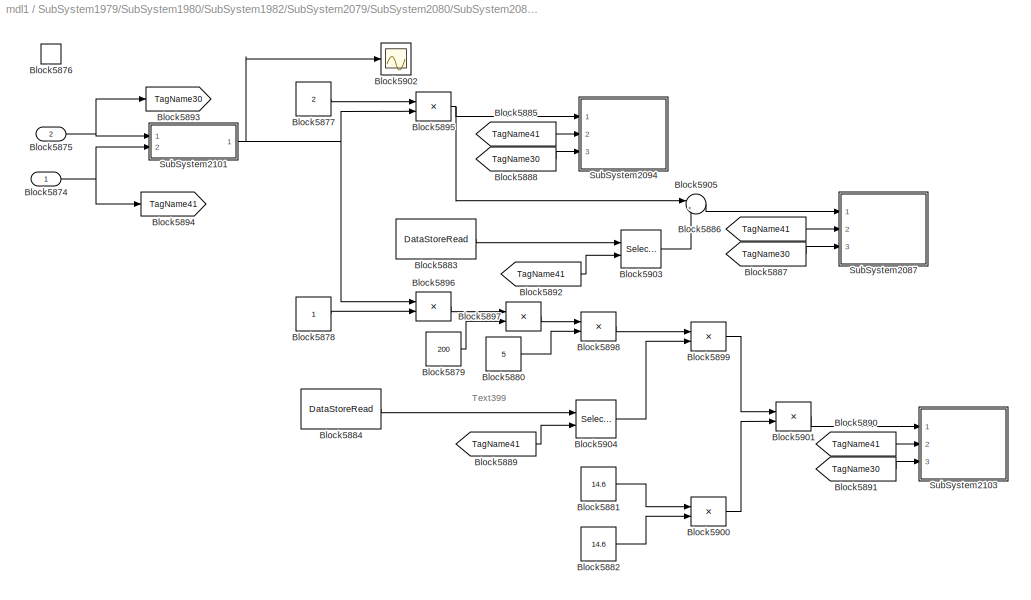
BLOCK [SubSystem] SubSystem1979/SubSystem1980/SubSystem1982/SubSystem2079/SubSystem2080/SubSystem2082/SubSystem2086
  FunctionWithSeparateData = off
  MaskHideContents = off
  MinAlgLoopOccurrences = off
  Opaque = off
  Ports = [2, 0, 0, 1]
  PropExecContextOutsideSubsystem = off
  RTWSystemCode = Auto
  RequestExecContextInheritance = off
  SID = 897
  TreatAsAtomicUnit = on
BLOCK [Inport] SubSystem1979/SubSystem1980/SubSystem1982/SubSystem2079/SubSystem2080/SubSystem2082/SubSystem2086/Block5874
  IconDisplay = Port number
  SID = 898
  SamplingMode = Sample based
  SignalType = real
BLOCK [Inport] SubSystem1979/SubSystem1980/SubSystem1982/SubSystem2079/SubSystem2080/SubSystem2082/SubSystem2086/Block5875
  IconDisplay = Port number
  Port = 2
  SID = 899
  SamplingMode = Sample based
  SignalType = real
BLOCK [TriggerPort] SubSystem1979/SubSystem1980/SubSystem1982/SubSystem2079/SubSystem2080/SubSystem2082/SubSystem2086/Block5876
  Ports = []
  SID = 900
  StatesWhenEnabling = held
  TriggerType = function-call
BLOCK [Constant] SubSystem1979/SubSystem1980/SubSystem1982/SubSystem2079/SubSystem2080/SubSystem2082/SubSystem2086/Block5877
  OutDataTypeStr = double
  SID = 901
  SampleTime = -1
  UserData = DataTag144
  UserDataPersistent = on
  Value = 2
BLOCK [Constant] SubSystem1979/SubSystem1980/SubSystem1982/SubSystem2079/SubSystem2080/SubSystem2082/SubSystem2086/Block5878
  OutDataTypeStr = double
  SID = 902
  SampleTime = -1
  UserData = DataTag145
  UserDataPersistent = on
BLOCK [Constant] SubSystem1979/SubSystem1980/SubSystem1982/SubSystem2079/SubSystem2080/SubSystem2082/SubSystem2086/Block5879
  OutDataTypeStr = double
  SID = 903
  SampleTime = -1
  UserData = DataTag146
  UserDataPersistent = on
  Value = 200
BLOCK [Constant] SubSystem1979/SubSystem1980/SubSystem1982/SubSystem2079/SubSystem2080/SubSystem2082/SubSystem2086/Block5880
  OutDataTypeStr = double
  SID = 904
  SampleTime = -1
  UserData = DataTag147
  UserDataPersistent = on
  Value = 5
BLOCK [Constant] SubSystem1979/SubSystem1980/SubSystem1982/SubSystem2079/SubSystem2080/SubSystem2082/SubSystem2086/Block5881
  OutDataTypeStr = double
  SID = 905
  SampleTime = -1
  UserData = DataTag148
  UserDataPersistent = on
  Value = 14.6
BLOCK [Constant] SubSystem1979/SubSystem1980/SubSystem1982/SubSystem2079/SubSystem2080/SubSystem2082/SubSystem2086/Block5882
  OutDataTypeStr = double
  SID = 906
  SampleTime = -1
  UserData = DataTag149
  UserDataPersistent = on
  Value = 14.6
BLOCK [DataStoreRead] SubSystem1979/SubSystem1980/SubSystem1982/SubSystem2079/SubSystem2080/SubSystem2082/SubSystem2086/Block5883
  DataStoreName = DSM4
  Ports = [0, 1]
  SID = 907
BLOCK [DataStoreRead] SubSystem1979/SubSystem1980/SubSystem1982/SubSystem2079/SubSystem2080/SubSystem2082/SubSystem2086/Block5884
  DataStoreName = DSM87
  Ports = [0, 1]
  SID = 908
BLOCK [From] SubSystem1979/SubSystem1980/SubSystem1982/SubSystem2079/SubSystem2080/SubSystem2082/SubSystem2086/Block5885
  CloseFcn = tagdialog Close
  GotoTag = TagName41
  SID = 909
BLOCK [From] SubSystem1979/SubSystem1980/SubSystem1982/SubSystem2079/SubSystem2080/SubSystem2082/SubSystem2086/Block5886
  CloseFcn = tagdialog Close
  GotoTag = TagName41
  SID = 910
BLOCK [From] SubSystem1979/SubSystem1980/SubSystem1982/SubSystem2079/SubSystem2080/SubSystem2082/SubSystem2086/Block5887
  CloseFcn = tagdialog Close
  GotoTag = TagName30
  SID = 911
BLOCK [From] SubSystem1979/SubSystem1980/SubSystem1982/SubSystem2079/SubSystem2080/SubSystem2082/SubSystem2086/Block5888
  CloseFcn = tagdialog Close
  GotoTag = TagName30
  SID = 912
BLOCK [From] SubSystem1979/SubSystem1980/SubSystem1982/SubSystem2079/SubSystem2080/SubSystem2082/SubSystem2086/Block5889
  CloseFcn = tagdialog Close
  GotoTag = TagName41
  SID = 913
BLOCK [From] SubSystem1979/SubSystem1980/SubSystem1982/SubSystem2079/SubSystem2080/SubSystem2082/SubSystem2086/Block5890
  CloseFcn = tagdialog Close
  GotoTag = TagName41
  SID = 914
BLOCK [From] SubSystem1979/SubSystem1980/SubSystem1982/SubSystem2079/SubSystem2080/SubSystem2082/SubSystem2086/Block5891
  CloseFcn = tagdialog Close
  GotoTag = TagName30
  SID = 915
BLOCK [From] SubSystem1979/SubSystem1980/SubSystem1982/SubSystem2079/SubSystem2080/SubSystem2082/SubSystem2086/Block5892
  CloseFcn = tagdialog Close
  GotoTag = TagName41
  SID = 916
BLOCK [Goto] SubSystem1979/SubSystem1980/SubSystem1982/SubSystem2079/SubSystem2080/SubSystem2082/SubSystem2086/Block5893
  GotoTag = TagName30
  SID = 917
BLOCK [Goto] SubSystem1979/SubSystem1980/SubSystem1982/SubSystem2079/SubSystem2080/SubSystem2082/SubSystem2086/Block5894
  GotoTag = TagName41
  SID = 918
BLOCK [Product] SubSystem1979/SubSystem1980/SubSystem1982/SubSystem2079/SubSystem2080/SubSystem2082/SubSystem2086/Block5895
  OutDataTypeStr = double
  Ports = [2, 1]
  SID = 919
BLOCK [Product] SubSystem1979/SubSystem1980/SubSystem1982/SubSystem2079/SubSystem2080/SubSystem2082/SubSystem2086/Block5896
  OutDataTypeStr = double
  Ports = [2, 1]
  SID = 920
BLOCK [Product] SubSystem1979/SubSystem1980/SubSystem1982/SubSystem2079/SubSystem2080/SubSystem2082/SubSystem2086/Block5897
  OutDataTypeStr = double
  Ports = [2, 1]
  SID = 921
BLOCK [Product] SubSystem1979/SubSystem1980/SubSystem1982/SubSystem2079/SubSystem2080/SubSystem2082/SubSystem2086/Block5898
  OutDataTypeStr = double
  Ports = [2, 1]
  SID = 922
BLOCK [Product] SubSystem1979/SubSystem1980/SubSystem1982/SubSystem2079/SubSystem2080/SubSystem2082/SubSystem2086/Block5899
  OutDataTypeStr = double
  Ports = [2, 1]
  SID = 923
BLOCK [Product] SubSystem1979/SubSystem1980/SubSystem1982/SubSystem2079/SubSystem2080/SubSystem2082/SubSystem2086/Block5900
  Inputs = */
  OutDataTypeStr = double
  Ports = [2, 1]
  SID = 924
BLOCK [Product] SubSystem1979/SubSystem1980/SubSystem1982/SubSystem2079/SubSystem2080/SubSystem2082/SubSystem2086/Block5901
  OutDataTypeStr = double
  Ports = [2, 1]
  SID = 925
BLOCK [Scope] SubSystem1979/SubSystem1980/SubSystem1982/SubSystem2079/SubSystem2080/SubSystem2082/SubSystem2086/Block5902
  DataFormat = StructureWithTime
  Floating = off
  LimitDataPoints = off
  NumInputPorts = 1
  Ports = [1]
  SID = 926
  SampleTime = 0
  SaveName = ScopeData1
  ShowLegends = off
BLOCK [Selector] SubSystem1979/SubSystem1980/SubSystem1982/SubSystem2079/SubSystem2080/SubSystem2082/SubSystem2086/Block5903
  IndexOptions = Index vector (port)
  Indices = [1 3]
  OutputSizes = 1
  Ports = [2, 1]
  SID = 927
BLOCK [Selector] SubSystem1979/SubSystem1980/SubSystem1982/SubSystem2079/SubSystem2080/SubSystem2082/SubSystem2086/Block5904
  IndexOptions = Index vector (port)
  Indices = [1 3]
  OutputSizes = 1
  Ports = [2, 1]
  SID = 928
BLOCK [Sum] SubSystem1979/SubSystem1980/SubSystem1982/SubSystem2079/SubSystem2080/SubSystem2082/SubSystem2086/Block5905
  IconShape = round
  Inputs = |++
  OutDataTypeStr = double
  Ports = [2, 1]
  RndMeth = Zero
  SID = 929
BLOCK [SubSystem] SubSystem1979/SubSystem1980/SubSystem1982/SubSystem2079/SubSystem2080/SubSystem2082/SubSystem2086/SubSystem2087
  FunctionWithSeparateData = off
  MaskHideContents = off
  MinAlgLoopOccurrences = off
  Opaque = off
  Ports = [3]
  PropExecContextOutsideSubsystem = off
  RTWSystemCode = Auto
  RequestExecContextInheritance = off
  SID = 930
BLOCK [Inport] SubSystem1979/SubSystem1980/SubSystem1982/SubSystem2079/SubSystem2080/SubSystem2082/SubSystem2086/SubSystem2087/Block5906
  IconDisplay = Port number
  SID = 931
  SamplingMode = Sample based
  SignalType = real
BLOCK [Inport] SubSystem1979/SubSystem1980/SubSystem1982/SubSystem2079/SubSystem2080/SubSystem2082/SubSystem2086/SubSystem2087/Block5907
  IconDisplay = Port number
  Port = 2
  SID = 932
  SamplingMode = Sample based
  SignalType = real
BLOCK [Inport] SubSystem1979/SubSystem1980/SubSystem1982/SubSystem2079/SubSystem2080/SubSystem2082/SubSystem2086/SubSystem2087/Block5908
  IconDisplay = Port number
  Port = 3
  SID = 933
  SamplingMode = Sample based
  SignalType = real
BLOCK [SwitchCase] SubSystem1979/SubSystem1980/SubSystem1982/SubSystem2079/SubSystem2080/SubSystem2082/SubSystem2086/SubSystem2087/Block5909
  CaseConditions = {1 2 3}
  Ports = [1, 4]
  SID = 934
BLOCK [Terminator] SubSystem1979/SubSystem1980/SubSystem1982/SubSystem2079/SubSystem2080/SubSystem2082/SubSystem2086/SubSystem2087/Block5910
  SID = 935
BLOCK [SubSystem] SubSystem1979/SubSystem1980/SubSystem1982/SubSystem2079/SubSystem2080/SubSystem2082/SubSystem2086/SubSystem2087/SubSystem2088
  FunctionWithSeparateData = off
  MaskHideContents = off
  MinAlgLoopOccurrences = off
  Opaque = off
  Ports = [2, 0, 0, 0, 0, 0, 0, 1]
  PropExecContextOutsideSubsystem = off
  RTWSystemCode = Inline
  RequestExecContextInheritance = off
  SID = 936
BLOCK [Inport] SubSystem1979/SubSystem1980/SubSystem1982/SubSystem2079/SubSystem2080/SubSystem2082/SubSystem2086/SubSystem2087/SubSystem2088/Block5911
  IconDisplay = Port number
  SID = 937
  SamplingMode = Sample based
  SignalType = real
BLOCK [Inport] SubSystem1979/SubSystem1980/SubSystem1982/SubSystem2079/SubSystem2080/SubSystem2082/SubSystem2086/SubSystem2087/SubSystem2088/Block5912
  IconDisplay = Port number
  Port = 2
  SID = 938
  SamplingMode = Sample based
  SignalType = real
BLOCK [ActionPort] SubSystem1979/SubSystem1980/SubSystem1982/SubSystem2079/SubSystem2080/SubSystem2082/SubSystem2086/SubSystem2087/SubSystem2088/Block5913
  ActionType = case
  SID = 939
BLOCK [SubSystem] SubSystem1979/SubSystem1980/SubSystem1982/SubSystem2079/SubSystem2080/SubSystem2082/SubSystem2086/SubSystem2087/SubSystem2088/SubSystem2089
  FunctionWithSeparateData = off
  MaskHideContents = off
  MinAlgLoopOccurrences = off
  Opaque = off
  OpenFcn = warndlg('ÏXÖ~!');
  Ports = [2]
  PropExecContextOutsideSubsystem = off
  RTWSystemCode = Auto
  RequestExecContextInheritance = off
  SID = 940
  TreatAsAtomicUnit = on
  UserData = DataTag150
  UserDataPersistent = on
BLOCK [Assignment] SubSystem1979/SubSystem1980/SubSystem1982/SubSystem2079/SubSystem2080/SubSystem2082/SubSystem2086/SubSystem2087/SubSystem2088/SubSystem2089/Assignment
  IndexOptions = Index vector (port)
  Indices = 1
  OutputSizes = [1 1]
  Ports = [3, 1]
  SID = 943
BLOCK [DataStoreRead] SubSystem1979/SubSystem1980/SubSystem1982/SubSystem2079/SubSystem2080/SubSystem2082/SubSystem2086/SubSystem2087/SubSystem2088/SubSystem2089/Inside_DSR
  DataStoreName = DSM10
  Ports = [0, 1]
  SID = 944
BLOCK [DataStoreWrite] SubSystem1979/SubSystem1980/SubSystem1982/SubSystem2079/SubSystem2080/SubSystem2082/SubSystem2086/SubSystem2087/SubSystem2088/SubSystem2089/Inside_DSW
  DataStoreName = DSM10
  Ports = [1]
  SID = 945
BLOCK [Inport] SubSystem1979/SubSystem1980/SubSystem1982/SubSystem2079/SubSystem2080/SubSystem2082/SubSystem2086/SubSystem2087/SubSystem2088/SubSystem2089/element
  IconDisplay = Port number
  Port = 2
  SID = 942
BLOCK [Inport] SubSystem1979/SubSystem1980/SubSystem1982/SubSystem2079/SubSystem2080/SubSystem2082/SubSystem2086/SubSystem2087/SubSystem2088/SubSystem2089/input
  IconDisplay = Port number
  SID = 941
BLOCK [SubSystem] SubSystem1979/SubSystem1980/SubSystem1982/SubSystem2079/SubSystem2080/SubSystem2082/SubSystem2086/SubSystem2087/SubSystem2090
  FunctionWithSeparateData = off
  MaskHideContents = off
  MinAlgLoopOccurrences = off
  Opaque = off
  Ports = [2, 0, 0, 0, 0, 0, 0, 1]
  PropExecContextOutsideSubsystem = off
  RTWSystemCode = Inline
  RequestExecContextInheritance = off
  SID = 946
BLOCK [Inport] SubSystem1979/SubSystem1980/SubSystem1982/SubSystem2079/SubSystem2080/SubSystem2082/SubSystem2086/SubSystem2087/SubSystem2090/Block5914
  IconDisplay = Port number
  SID = 947
  SamplingMode = Sample based
  SignalType = real
BLOCK [Inport] SubSystem1979/SubSystem1980/SubSystem1982/SubSystem2079/SubSystem2080/SubSystem2082/SubSystem2086/SubSystem2087/SubSystem2090/Block5915
  IconDisplay = Port number
  Port = 2
  SID = 948
  SamplingMode = Sample based
  SignalType = real
BLOCK [ActionPort] SubSystem1979/SubSystem1980/SubSystem1982/SubSystem2079/SubSystem2080/SubSystem2082/SubSystem2086/SubSystem2087/SubSystem2090/Block5916
  ActionType = case
  SID = 949
BLOCK [SubSystem] SubSystem1979/SubSystem1980/SubSystem1982/SubSystem2079/SubSystem2080/SubSystem2082/SubSystem2086/SubSystem2087/SubSystem2090/SubSystem2091
  FunctionWithSeparateData = off
  MaskHideContents = off
  MinAlgLoopOccurrences = off
  Opaque = off
  OpenFcn = warndlg('ÏXÖ~!');
  Ports = [2]
  PropExecContextOutsideSubsystem = off
  RTWSystemCode = Auto
  RequestExecContextInheritance = off
  SID = 950
  TreatAsAtomicUnit = on
  UserData = DataTag151
  UserDataPersistent = on
BLOCK [Assignment] SubSystem1979/SubSystem1980/SubSystem1982/SubSystem2079/SubSystem2080/SubSystem2082/SubSystem2086/SubSystem2087/SubSystem2090/SubSystem2091/Assignment
  IndexOptions = Index vector (port)
  Indices = 1
  OutputSizes = [1 1]
  Ports = [3, 1]
  SID = 953
BLOCK [DataStoreRead] SubSystem1979/SubSystem1980/SubSystem1982/SubSystem2079/SubSystem2080/SubSystem2082/SubSystem2086/SubSystem2087/SubSystem2090/SubSystem2091/Inside_DSR
  DataStoreName = DSM16
  Ports = [0, 1]
  SID = 954
BLOCK [DataStoreWrite] SubSystem1979/SubSystem1980/SubSystem1982/SubSystem2079/SubSystem2080/SubSystem2082/SubSystem2086/SubSystem2087/SubSystem2090/SubSystem2091/Inside_DSW
  DataStoreName = DSM16
  Ports = [1]
  SID = 955
BLOCK [Inport] SubSystem1979/SubSystem1980/SubSystem1982/SubSystem2079/SubSystem2080/SubSystem2082/SubSystem2086/SubSystem2087/SubSystem2090/SubSystem2091/element
  IconDisplay = Port number
  Port = 2
  SID = 952
BLOCK [Inport] SubSystem1979/SubSystem1980/SubSystem1982/SubSystem2079/SubSystem2080/SubSystem2082/SubSystem2086/SubSystem2087/SubSystem2090/SubSystem2091/input
  IconDisplay = Port number
  SID = 951
BLOCK [SubSystem] SubSystem1979/SubSystem1980/SubSystem1982/SubSystem2079/SubSystem2080/SubSystem2082/SubSystem2086/SubSystem2087/SubSystem2092
  FunctionWithSeparateData = off
  MaskHideContents = off
  MinAlgLoopOccurrences = off
  Opaque = off
  Ports = [2, 0, 0, 0, 0, 0, 0, 1]
  PropExecContextOutsideSubsystem = off
  RTWSystemCode = Inline
  RequestExecContextInheritance = off
  SID = 956
BLOCK [Inport] SubSystem1979/SubSystem1980/SubSystem1982/SubSystem2079/SubSystem2080/SubSystem2082/SubSystem2086/SubSystem2087/SubSystem2092/Block5917
  IconDisplay = Port number
  SID = 957
  SamplingMode = Sample based
  SignalType = real
BLOCK [Inport] SubSystem1979/SubSystem1980/SubSystem1982/SubSystem2079/SubSystem2080/SubSystem2082/SubSystem2086/SubSystem2087/SubSystem2092/Block5918
  IconDisplay = Port number
  Port = 2
  SID = 958
  SamplingMode = Sample based
  SignalType = real
BLOCK [ActionPort] SubSystem1979/SubSystem1980/SubSystem1982/SubSystem2079/SubSystem2080/SubSystem2082/SubSystem2086/SubSystem2087/SubSystem2092/Block5919
  ActionType = case
  SID = 959
BLOCK [SubSystem] SubSystem1979/SubSystem1980/SubSystem1982/SubSystem2079/SubSystem2080/SubSystem2082/SubSystem2086/SubSystem2087/SubSystem2092/SubSystem2093
  FunctionWithSeparateData = off
  MaskHideContents = off
  MinAlgLoopOccurrences = off
  Opaque = off
  OpenFcn = warndlg('ÏXÖ~!');
  Ports = [2]
  PropExecContextOutsideSubsystem = off
  RTWSystemCode = Auto
  RequestExecContextInheritance = off
  SID = 960
  TreatAsAtomicUnit = on
  UserData = DataTag152
  UserDataPersistent = on
BLOCK [Assignment] SubSystem1979/SubSystem1980/SubSystem1982/SubSystem2079/SubSystem2080/SubSystem2082/SubSystem2086/SubSystem2087/SubSystem2092/SubSystem2093/Assignment
  IndexOptions = Index vector (port)
  Indices = 1
  OutputSizes = [1 1]
  Ports = [3, 1]
  SID = 963
BLOCK [DataStoreRead] SubSystem1979/SubSystem1980/SubSystem1982/SubSystem2079/SubSystem2080/SubSystem2082/SubSystem2086/SubSystem2087/SubSystem2092/SubSystem2093/Inside_DSR
  DataStoreName = DSM17
  Ports = [0, 1]
  SID = 964
BLOCK [DataStoreWrite] SubSystem1979/SubSystem1980/SubSystem1982/SubSystem2079/SubSystem2080/SubSystem2082/SubSystem2086/SubSystem2087/SubSystem2092/SubSystem2093/Inside_DSW
  DataStoreName = DSM17
  Ports = [1]
  SID = 965
BLOCK [Inport] SubSystem1979/SubSystem1980/SubSystem1982/SubSystem2079/SubSystem2080/SubSystem2082/SubSystem2086/SubSystem2087/SubSystem2092/SubSystem2093/element
  IconDisplay = Port number
  Port = 2
  SID = 962
BLOCK [Inport] SubSystem1979/SubSystem1980/SubSystem1982/SubSystem2079/SubSystem2080/SubSystem2082/SubSystem2086/SubSystem2087/SubSystem2092/SubSystem2093/input
  IconDisplay = Port number
  SID = 961
BLOCK [SubSystem] SubSystem1979/SubSystem1980/SubSystem1982/SubSystem2079/SubSystem2080/SubSystem2082/SubSystem2086/SubSystem2094
  FunctionWithSeparateData = off
  MaskHideContents = off
  MinAlgLoopOccurrences = off
  Opaque = off
  Ports = [3]
  PropExecContextOutsideSubsystem = off
  RTWSystemCode = Auto
  RequestExecContextInheritance = off
  SID = 966
BLOCK [Inport] SubSystem1979/SubSystem1980/SubSystem1982/SubSystem2079/SubSystem2080/SubSystem2082/SubSystem2086/SubSystem2094/Block5920
  IconDisplay = Port number
  SID = 967
  SamplingMode = Sample based
  SignalType = real
BLOCK [Inport] SubSystem1979/SubSystem1980/SubSystem1982/SubSystem2079/SubSystem2080/SubSystem2082/SubSystem2086/SubSystem2094/Block5921
  IconDisplay = Port number
  Port = 2
  SID = 968
  SamplingMode = Sample based
  SignalType = real
BLOCK [Inport] SubSystem1979/SubSystem1980/SubSystem1982/SubSystem2079/SubSystem2080/SubSystem2082/SubSystem2086/SubSystem2094/Block5922
  IconDisplay = Port number
  Port = 3
  SID = 969
  SamplingMode = Sample based
  SignalType = real
BLOCK [SwitchCase] SubSystem1979/SubSystem1980/SubSystem1982/SubSystem2079/SubSystem2080/SubSystem2082/SubSystem2086/SubSystem2094/Block5923
  CaseConditions = {1 2 3}
  Ports = [1, 4]
  SID = 970
BLOCK [Terminator] SubSystem1979/SubSystem1980/SubSystem1982/SubSystem2079/SubSystem2080/SubSystem2082/SubSystem2086/SubSystem2094/Block5924
  SID = 971
BLOCK [SubSystem] SubSystem1979/SubSystem1980/SubSystem1982/SubSystem2079/SubSystem2080/SubSystem2082/SubSystem2086/SubSystem2094/SubSystem2095
  FunctionWithSeparateData = off
  MaskHideContents = off
  MinAlgLoopOccurrences = off
  Opaque = off
  Ports = [2, 0, 0, 0, 0, 0, 0, 1]
  PropExecContextOutsideSubsystem = off
  RTWSystemCode = Inline
  RequestExecContextInheritance = off
  SID = 972
BLOCK [Inport] SubSystem1979/SubSystem1980/SubSystem1982/SubSystem2079/SubSystem2080/SubSystem2082/SubSystem2086/SubSystem2094/SubSystem2095/Block5925
  IconDisplay = Port number
  SID = 973
  SamplingMode = Sample based
  SignalType = real
BLOCK [Inport] SubSystem1979/SubSystem1980/SubSystem1982/SubSystem2079/SubSystem2080/SubSystem2082/SubSystem2086/SubSystem2094/SubSystem2095/Block5926
  IconDisplay = Port number
  Port = 2
  SID = 974
  SamplingMode = Sample based
  SignalType = real
BLOCK [ActionPort] SubSystem1979/SubSystem1980/SubSystem1982/SubSystem2079/SubSystem2080/SubSystem2082/SubSystem2086/SubSystem2094/SubSystem2095/Block5927
  ActionType = case
  SID = 975
BLOCK [SubSystem] SubSystem1979/SubSystem1980/SubSystem1982/SubSystem2079/SubSystem2080/SubSystem2082/SubSystem2086/SubSystem2094/SubSystem2095/SubSystem2096
  FunctionWithSeparateData = off
  MaskHideContents = off
  MinAlgLoopOccurrences = off
  Opaque = off
  OpenFcn = warndlg('ÏXÖ~!');
  Ports = [2]
  PropExecContextOutsideSubsystem = off
  RTWSystemCode = Auto
  RequestExecContextInheritance = off
  SID = 976
  TreatAsAtomicUnit = on
  UserData = DataTag153
  UserDataPersistent = on
BLOCK [Assignment] SubSystem1979/SubSystem1980/SubSystem1982/SubSystem2079/SubSystem2080/SubSystem2082/SubSystem2086/SubSystem2094/SubSystem2095/SubSystem2096/Assignment
  IndexOptions = Index vector (port)
  Indices = 1
  OutputSizes = [1 1]
  Ports = [3, 1]
  SID = 979
BLOCK [DataStoreRead] SubSystem1979/SubSystem1980/SubSystem1982/SubSystem2079/SubSystem2080/SubSystem2082/SubSystem2086/SubSystem2094/SubSystem2095/SubSystem2096/Inside_DSR
  DataStoreName = DSM18
  Ports = [0, 1]
  SID = 980
BLOCK [DataStoreWrite] SubSystem1979/SubSystem1980/SubSystem1982/SubSystem2079/SubSystem2080/SubSystem2082/SubSystem2086/SubSystem2094/SubSystem2095/SubSystem2096/Inside_DSW
  DataStoreName = DSM18
  Ports = [1]
  SID = 981
BLOCK [Inport] SubSystem1979/SubSystem1980/SubSystem1982/SubSystem2079/SubSystem2080/SubSystem2082/SubSystem2086/SubSystem2094/SubSystem2095/SubSystem2096/element
  IconDisplay = Port number
  Port = 2
  SID = 978
BLOCK [Inport] SubSystem1979/SubSystem1980/SubSystem1982/SubSystem2079/SubSystem2080/SubSystem2082/SubSystem2086/SubSystem2094/SubSystem2095/SubSystem2096/input
  IconDisplay = Port number
  SID = 977
BLOCK [SubSystem] SubSystem1979/SubSystem1980/SubSystem1982/SubSystem2079/SubSystem2080/SubSystem2082/SubSystem2086/SubSystem2094/SubSystem2097
  FunctionWithSeparateData = off
  MaskHideContents = off
  MinAlgLoopOccurrences = off
  Opaque = off
  Ports = [2, 0, 0, 0, 0, 0, 0, 1]
  PropExecContextOutsideSubsystem = off
  RTWSystemCode = Inline
  RequestExecContextInheritance = off
  SID = 982
BLOCK [Inport] SubSystem1979/SubSystem1980/SubSystem1982/SubSystem2079/SubSystem2080/SubSystem2082/SubSystem2086/SubSystem2094/SubSystem2097/Block5928
  IconDisplay = Port number
  SID = 983
  SamplingMode = Sample based
  SignalType = real
BLOCK [Inport] SubSystem1979/SubSystem1980/SubSystem1982/SubSystem2079/SubSystem2080/SubSystem2082/SubSystem2086/SubSystem2094/SubSystem2097/Block5929
  IconDisplay = Port number
  Port = 2
  SID = 984
  SamplingMode = Sample based
  SignalType = real
BLOCK [ActionPort] SubSystem1979/SubSystem1980/SubSystem1982/SubSystem2079/SubSystem2080/SubSystem2082/SubSystem2086/SubSystem2094/SubSystem2097/Block5930
  ActionType = case
  SID = 985
BLOCK [SubSystem] SubSystem1979/SubSystem1980/SubSystem1982/SubSystem2079/SubSystem2080/SubSystem2082/SubSystem2086/SubSystem2094/SubSystem2097/SubSystem2098
  FunctionWithSeparateData = off
  MaskHideContents = off
  MinAlgLoopOccurrences = off
  Opaque = off
  OpenFcn = warndlg('ÏXÖ~!');
  Ports = [2]
  PropExecContextOutsideSubsystem = off
  RTWSystemCode = Auto
  RequestExecContextInheritance = off
  SID = 986
  TreatAsAtomicUnit = on
  UserData = DataTag154
  UserDataPersistent = on
BLOCK [Assignment] SubSystem1979/SubSystem1980/SubSystem1982/SubSystem2079/SubSystem2080/SubSystem2082/SubSystem2086/SubSystem2094/SubSystem2097/SubSystem2098/Assignment
  IndexOptions = Index vector (port)
  Indices = 1
  OutputSizes = [1 1]
  Ports = [3, 1]
  SID = 989
BLOCK [DataStoreRead] SubSystem1979/SubSystem1980/SubSystem1982/SubSystem2079/SubSystem2080/SubSystem2082/SubSystem2086/SubSystem2094/SubSystem2097/SubSystem2098/Inside_DSR
  DataStoreName = DSM8
  Ports = [0, 1]
  SID = 990
BLOCK [DataStoreWrite] SubSystem1979/SubSystem1980/SubSystem1982/SubSystem2079/SubSystem2080/SubSystem2082/SubSystem2086/SubSystem2094/SubSystem2097/SubSystem2098/Inside_DSW
  DataStoreName = DSM8
  Ports = [1]
  SID = 991
BLOCK [Inport] SubSystem1979/SubSystem1980/SubSystem1982/SubSystem2079/SubSystem2080/SubSystem2082/SubSystem2086/SubSystem2094/SubSystem2097/SubSystem2098/element
  IconDisplay = Port number
  Port = 2
  SID = 988
BLOCK [Inport] SubSystem1979/SubSystem1980/SubSystem1982/SubSystem2079/SubSystem2080/SubSystem2082/SubSystem2086/SubSystem2094/SubSystem2097/SubSystem2098/input
  IconDisplay = Port number
  SID = 987
BLOCK [SubSystem] SubSystem1979/SubSystem1980/SubSystem1982/SubSystem2079/SubSystem2080/SubSystem2082/SubSystem2086/SubSystem2094/SubSystem2099
  FunctionWithSeparateData = off
  MaskHideContents = off
  MinAlgLoopOccurrences = off
  Opaque = off
  Ports = [2, 0, 0, 0, 0, 0, 0, 1]
  PropExecContextOutsideSubsystem = off
  RTWSystemCode = Inline
  RequestExecContextInheritance = off
  SID = 992
BLOCK [Inport] SubSystem1979/SubSystem1980/SubSystem1982/SubSystem2079/SubSystem2080/SubSystem2082/SubSystem2086/SubSystem2094/SubSystem2099/Block5931
  IconDisplay = Port number
  SID = 993
  SamplingMode = Sample based
  SignalType = real
BLOCK [Inport] SubSystem1979/SubSystem1980/SubSystem1982/SubSystem2079/SubSystem2080/SubSystem2082/SubSystem2086/SubSystem2094/SubSystem2099/Block5932
  IconDisplay = Port number
  Port = 2
  SID = 994
  SamplingMode = Sample based
  SignalType = real
BLOCK [ActionPort] SubSystem1979/SubSystem1980/SubSystem1982/SubSystem2079/SubSystem2080/SubSystem2082/SubSystem2086/SubSystem2094/SubSystem2099/Block5933
  ActionType = case
  SID = 995
BLOCK [SubSystem] SubSystem1979/SubSystem1980/SubSystem1982/SubSystem2079/SubSystem2080/SubSystem2082/SubSystem2086/SubSystem2094/SubSystem2099/SubSystem2100
  FunctionWithSeparateData = off
  MaskHideContents = off
  MinAlgLoopOccurrences = off
  Opaque = off
  OpenFcn = warndlg('ÏXÖ~!');
  Ports = [2]
  PropExecContextOutsideSubsystem = off
  RTWSystemCode = Auto
  RequestExecContextInheritance = off
  SID = 996
  TreatAsAtomicUnit = on
  UserData = DataTag155
  UserDataPersistent = on
BLOCK [Assignment] SubSystem1979/SubSystem1980/SubSystem1982/SubSystem2079/SubSystem2080/SubSystem2082/SubSystem2086/SubSystem2094/SubSystem2099/SubSystem2100/Assignment
  IndexOptions = Index vector (port)
  Indices = 1
  OutputSizes = [1 1]
  Ports = [3, 1]
  SID = 999
BLOCK [DataStoreRead] SubSystem1979/SubSystem1980/SubSystem1982/SubSystem2079/SubSystem2080/SubSystem2082/SubSystem2086/SubSystem2094/SubSystem2099/SubSystem2100/Inside_DSR
  DataStoreName = DSM11
  Ports = [0, 1]
  SID = 1000
BLOCK [DataStoreWrite] SubSystem1979/SubSystem1980/SubSystem1982/SubSystem2079/SubSystem2080/SubSystem2082/SubSystem2086/SubSystem2094/SubSystem2099/SubSystem2100/Inside_DSW
  DataStoreName = DSM11
  Ports = [1]
  SID = 1001
BLOCK [Inport] SubSystem1979/SubSystem1980/SubSystem1982/SubSystem2079/SubSystem2080/SubSystem2082/SubSystem2086/SubSystem2094/SubSystem2099/SubSystem2100/element
  IconDisplay = Port number
  Port = 2
  SID = 998
BLOCK [Inport] SubSystem1979/SubSystem1980/SubSystem1982/SubSystem2079/SubSystem2080/SubSystem2082/SubSystem2086/SubSystem2094/SubSystem2099/SubSystem2100/input
  IconDisplay = Port number
  SID = 997
BLOCK [SubSystem] SubSystem1979/SubSystem1980/SubSystem1982/SubSystem2079/SubSystem2080/SubSystem2082/SubSystem2086/SubSystem2101
  AttributesFormatString = Attribute1321
  FunctionWithSeparateData = off
  MaskHideContents = off
  MinAlgLoopOccurrences = off
  Opaque = off
  Ports = [2, 1]
  PropExecContextOutsideSubsystem = off
  RTWFcnNameOpts = Use subsystem name
  RTWFileName = gacrnk_get
  RTWSystemCode = Auto
  RequestExecContextInheritance = off
  SID = 1002
BLOCK [Inport] SubSystem1979/SubSystem1980/SubSystem1982/SubSystem2079/SubSystem2080/SubSystem2082/SubSystem2086/SubSystem2101/Block5934
  IconDisplay = Port number
  SID = 1003
  SamplingMode = Sample based
  SignalType = real
BLOCK [Inport] SubSystem1979/SubSystem1980/SubSystem1982/SubSystem2079/SubSystem2080/SubSystem2082/SubSystem2086/SubSystem2101/Block5935
  IconDisplay = Port number
  Port = 2
  SID = 1004
  SamplingMode = Sample based
  SignalType = real
BLOCK [DataStoreRead] SubSystem1979/SubSystem1980/SubSystem1982/SubSystem2079/SubSystem2080/SubSystem2082/SubSystem2086/SubSystem2101/Block5936
  AttributesFormatString = Attribute1322
  DataStoreName = DSM78
  Ports = [0, 1]
  Priority = 4
  SID = 1005
BLOCK [DataStoreWrite] SubSystem1979/SubSystem1980/SubSystem1982/SubSystem2079/SubSystem2080/SubSystem2082/SubSystem2086/SubSystem2101/Block5937
  AttributesFormatString = Attribute1323
  DataStoreName = DSM54
  Ports = [1]
  Priority = 2
  SID = 1006
BLOCK [DataStoreWrite] SubSystem1979/SubSystem1980/SubSystem1982/SubSystem2079/SubSystem2080/SubSystem2082/SubSystem2086/SubSystem2101/Block5938
  AttributesFormatString = Attribute1324
  DataStoreName = DSM40
  Ports = [1]
  Priority = 1
  SID = 1007
BLOCK [Outport] SubSystem1979/SubSystem1980/SubSystem1982/SubSystem2079/SubSystem2080/SubSystem2082/SubSystem2086/SubSystem2101/Block5939
  IconDisplay = Port number
  SID = 1009
  SamplingMode = Sample based
  SignalType = real
BLOCK [Reference] SubSystem1979/SubSystem1980/SubSystem1982/SubSystem2079/SubSystem2080/SubSystem2082/SubSystem2086/SubSystem2101/SubSystem2102  REF=lib_all/SubSystem643
  AttributesFormatString = Attribute1325
  FunctionWithSeparateData = off
  GeneratePreprocessorConditionals = off
  Ports = []
  Priority = 3
  RTWMemSecDataConstants = Inherit from model
  RTWMemSecDataInternal = Inherit from model
  RTWMemSecDataParameters = Inherit from model
  RTWMemSecFuncExecute = Inherit from model
  RTWMemSecFuncInitTerm = Inherit from model
  SID = 1008
  ShowPortLabels = FromPortIcon
  SourceBlock = lib_all/SubSystem643
  SourceType = SubSystem
  SystemSampleTime = -1
BLOCK [SubSystem] SubSystem1979/SubSystem1980/SubSystem1982/SubSystem2079/SubSystem2080/SubSystem2082/SubSystem2086/SubSystem2103
  FunctionWithSeparateData = off
  MaskHideContents = off
  MinAlgLoopOccurrences = off
  Opaque = off
  Ports = [3]
  PropExecContextOutsideSubsystem = off
  RTWSystemCode = Auto
  RequestExecContextInheritance = off
  SID = 1010
BLOCK [Inport] SubSystem1979/SubSystem1980/SubSystem1982/SubSystem2079/SubSystem2080/SubSystem2082/SubSystem2086/SubSystem2103/Block5940
  IconDisplay = Port number
  SID = 1011
  SamplingMode = Sample based
  SignalType = real
BLOCK [Inport] SubSystem1979/SubSystem1980/SubSystem1982/SubSystem2079/SubSystem2080/SubSystem2082/SubSystem2086/SubSystem2103/Block5941
  IconDisplay = Port number
  Port = 2
  SID = 1012
  SamplingMode = Sample based
  SignalType = real
BLOCK [Inport] SubSystem1979/SubSystem1980/SubSystem1982/SubSystem2079/SubSystem2080/SubSystem2082/SubSystem2086/SubSystem2103/Block5942
  IconDisplay = Port number
  Port = 3
  SID = 1013
  SamplingMode = Sample based
  SignalType = real
BLOCK [SwitchCase] SubSystem1979/SubSystem1980/SubSystem1982/SubSystem2079/SubSystem2080/SubSystem2082/SubSystem2086/SubSystem2103/Block5943
  CaseConditions = {1 2 3}
  Ports = [1, 4]
  SID = 1014
BLOCK [Terminator] SubSystem1979/SubSystem1980/SubSystem1982/SubSystem2079/SubSystem2080/SubSystem2082/SubSystem2086/SubSystem2103/Block5944
  SID = 1015
BLOCK [SubSystem] SubSystem1979/SubSystem1980/SubSystem1982/SubSystem2079/SubSystem2080/SubSystem2082/SubSystem2086/SubSystem2103/SubSystem2104
  FunctionWithSeparateData = off
  MaskHideContents = off
  MinAlgLoopOccurrences = off
  Opaque = off
  Ports = [2, 0, 0, 0, 0, 0, 0, 1]
  PropExecContextOutsideSubsystem = off
  RTWSystemCode = Inline
  RequestExecContextInheritance = off
  SID = 1016
BLOCK [Inport] SubSystem1979/SubSystem1980/SubSystem1982/SubSystem2079/SubSystem2080/SubSystem2082/SubSystem2086/SubSystem2103/SubSystem2104/Block5945
  IconDisplay = Port number
  SID = 1017
  SamplingMode = Sample based
  SignalType = real
BLOCK [Inport] SubSystem1979/SubSystem1980/SubSystem1982/SubSystem2079/SubSystem2080/SubSystem2082/SubSystem2086/SubSystem2103/SubSystem2104/Block5946
  IconDisplay = Port number
  Port = 2
  SID = 1018
  SamplingMode = Sample based
  SignalType = real
BLOCK [ActionPort] SubSystem1979/SubSystem1980/SubSystem1982/SubSystem2079/SubSystem2080/SubSystem2082/SubSystem2086/SubSystem2103/SubSystem2104/Block5947
  ActionType = case
  SID = 1019
BLOCK [SubSystem] SubSystem1979/SubSystem1980/SubSystem1982/SubSystem2079/SubSystem2080/SubSystem2082/SubSystem2086/SubSystem2103/SubSystem2104/SubSystem2105
  FunctionWithSeparateData = off
  MaskHideContents = off
  MinAlgLoopOccurrences = off
  Opaque = off
  OpenFcn = warndlg('ÏXÖ~!');
  Ports = [2]
  PropExecContextOutsideSubsystem = off
  RTWSystemCode = Auto
  RequestExecContextInheritance = off
  SID = 1020
  TreatAsAtomicUnit = on
  UserData = DataTag156
  UserDataPersistent = on
BLOCK [Assignment] SubSystem1979/SubSystem1980/SubSystem1982/SubSystem2079/SubSystem2080/SubSystem2082/SubSystem2086/SubSystem2103/SubSystem2104/SubSystem2105/Assignment
  IndexOptions = Index vector (port)
  Indices = 1
  OutputSizes = [1 1]
  Ports = [3, 1]
  SID = 1023
BLOCK [DataStoreRead] SubSystem1979/SubSystem1980/SubSystem1982/SubSystem2079/SubSystem2080/SubSystem2082/SubSystem2086/SubSystem2103/SubSystem2104/SubSystem2105/Inside_DSR
  DataStoreName = DSM7
  Ports = [0, 1]
  SID = 1024
BLOCK [DataStoreWrite] SubSystem1979/SubSystem1980/SubSystem1982/SubSystem2079/SubSystem2080/SubSystem2082/SubSystem2086/SubSystem2103/SubSystem2104/SubSystem2105/Inside_DSW
  DataStoreName = DSM7
  Ports = [1]
  SID = 1025
BLOCK [Inport] SubSystem1979/SubSystem1980/SubSystem1982/SubSystem2079/SubSystem2080/SubSystem2082/SubSystem2086/SubSystem2103/SubSystem2104/SubSystem2105/element
  IconDisplay = Port number
  Port = 2
  SID = 1022
BLOCK [Inport] SubSystem1979/SubSystem1980/SubSystem1982/SubSystem2079/SubSystem2080/SubSystem2082/SubSystem2086/SubSystem2103/SubSystem2104/SubSystem2105/input
  IconDisplay = Port number
  SID = 1021
BLOCK [SubSystem] SubSystem1979/SubSystem1980/SubSystem1982/SubSystem2079/SubSystem2080/SubSystem2082/SubSystem2086/SubSystem2103/SubSystem2106
  FunctionWithSeparateData = off
  MaskHideContents = off
  MinAlgLoopOccurrences = off
  Opaque = off
  Ports = [2, 0, 0, 0, 0, 0, 0, 1]
  PropExecContextOutsideSubsystem = off
  RTWSystemCode = Inline
  RequestExecContextInheritance = off
  SID = 1026
BLOCK [Inport] SubSystem1979/SubSystem1980/SubSystem1982/SubSystem2079/SubSystem2080/SubSystem2082/SubSystem2086/SubSystem2103/SubSystem2106/Block5948
  IconDisplay = Port number
  SID = 1027
  SamplingMode = Sample based
  SignalType = real
BLOCK [Inport] SubSystem1979/SubSystem1980/SubSystem1982/SubSystem2079/SubSystem2080/SubSystem2082/SubSystem2086/SubSystem2103/SubSystem2106/Block5949
  IconDisplay = Port number
  Port = 2
  SID = 1028
  SamplingMode = Sample based
  SignalType = real
BLOCK [ActionPort] SubSystem1979/SubSystem1980/SubSystem1982/SubSystem2079/SubSystem2080/SubSystem2082/SubSystem2086/SubSystem2103/SubSystem2106/Block5950
  ActionType = case
  SID = 1029
BLOCK [SubSystem] SubSystem1979/SubSystem1980/SubSystem1982/SubSystem2079/SubSystem2080/SubSystem2082/SubSystem2086/SubSystem2103/SubSystem2106/SubSystem2107
  FunctionWithSeparateData = off
  MaskHideContents = off
  MinAlgLoopOccurrences = off
  Opaque = off
  OpenFcn = warndlg('ÏXÖ~!');
  Ports = [2]
  PropExecContextOutsideSubsystem = off
  RTWSystemCode = Auto
  RequestExecContextInheritance = off
  SID = 1030
  TreatAsAtomicUnit = on
  UserData = DataTag157
  UserDataPersistent = on
BLOCK [Assignment] SubSystem1979/SubSystem1980/SubSystem1982/SubSystem2079/SubSystem2080/SubSystem2082/SubSystem2086/SubSystem2103/SubSystem2106/SubSystem2107/Assignment
  IndexOptions = Index vector (port)
  Indices = 1
  OutputSizes = [1 1]
  Ports = [3, 1]
  SID = 1033
BLOCK [DataStoreRead] SubSystem1979/SubSystem1980/SubSystem1982/SubSystem2079/SubSystem2080/SubSystem2082/SubSystem2086/SubSystem2103/SubSystem2106/SubSystem2107/Inside_DSR
  DataStoreName = DSM6
  Ports = [0, 1]
  SID = 1034
BLOCK [DataStoreWrite] SubSystem1979/SubSystem1980/SubSystem1982/SubSystem2079/SubSystem2080/SubSystem2082/SubSystem2086/SubSystem2103/SubSystem2106/SubSystem2107/Inside_DSW
  DataStoreName = DSM6
  Ports = [1]
  SID = 1035
BLOCK [Inport] SubSystem1979/SubSystem1980/SubSystem1982/SubSystem2079/SubSystem2080/SubSystem2082/SubSystem2086/SubSystem2103/SubSystem2106/SubSystem2107/element
  IconDisplay = Port number
  Port = 2
  SID = 1032
BLOCK [Inport] SubSystem1979/SubSystem1980/SubSystem1982/SubSystem2079/SubSystem2080/SubSystem2082/SubSystem2086/SubSystem2103/SubSystem2106/SubSystem2107/input
  IconDisplay = Port number
  SID = 1031
BLOCK [SubSystem] SubSystem1979/SubSystem1980/SubSystem1982/SubSystem2079/SubSystem2080/SubSystem2082/SubSystem2086/SubSystem2103/SubSystem2108
  FunctionWithSeparateData = off
  MaskHideContents = off
  MinAlgLoopOccurrences = off
  Opaque = off
  Ports = [2, 0, 0, 0, 0, 0, 0, 1]
  PropExecContextOutsideSubsystem = off
  RTWSystemCode = Inline
  RequestExecContextInheritance = off
  SID = 1036
BLOCK [Inport] SubSystem1979/SubSystem1980/SubSystem1982/SubSystem2079/SubSystem2080/SubSystem2082/SubSystem2086/SubSystem2103/SubSystem2108/Block5951
  IconDisplay = Port number
  SID = 1037
  SamplingMode = Sample based
  SignalType = real
BLOCK [Inport] SubSystem1979/SubSystem1980/SubSystem1982/SubSystem2079/SubSystem2080/SubSystem2082/SubSystem2086/SubSystem2103/SubSystem2108/Block5952
  IconDisplay = Port number
  Port = 2
  SID = 1038
  SamplingMode = Sample based
  SignalType = real
BLOCK [ActionPort] SubSystem1979/SubSystem1980/SubSystem1982/SubSystem2079/SubSystem2080/SubSystem2082/SubSystem2086/SubSystem2103/SubSystem2108/Block5953
  ActionType = case
  SID = 1039
BLOCK [SubSystem] SubSystem1979/SubSystem1980/SubSystem1982/SubSystem2079/SubSystem2080/SubSystem2082/SubSystem2086/SubSystem2103/SubSystem2108/SubSystem2109
  FunctionWithSeparateData = off
  MaskHideContents = off
  MinAlgLoopOccurrences = off
  Opaque = off
  OpenFcn = warndlg('ÏXÖ~!');
  Ports = [2]
  PropExecContextOutsideSubsystem = off
  RTWSystemCode = Auto
  RequestExecContextInheritance = off
  SID = 1040
  TreatAsAtomicUnit = on
  UserData = DataTag158
  UserDataPersistent = on
BLOCK [Assignment] SubSystem1979/SubSystem1980/SubSystem1982/SubSystem2079/SubSystem2080/SubSystem2082/SubSystem2086/SubSystem2103/SubSystem2108/SubSystem2109/Assignment
  IndexOptions = Index vector (port)
  Indices = 1
  OutputSizes = [1 1]
  Ports = [3, 1]
  SID = 1043
BLOCK [DataStoreRead] SubSystem1979/SubSystem1980/SubSystem1982/SubSystem2079/SubSystem2080/SubSystem2082/SubSystem2086/SubSystem2103/SubSystem2108/SubSystem2109/Inside_DSR
  DataStoreName = DSM19
  Ports = [0, 1]
  SID = 1044
BLOCK [DataStoreWrite] SubSystem1979/SubSystem1980/SubSystem1982/SubSystem2079/SubSystem2080/SubSystem2082/SubSystem2086/SubSystem2103/SubSystem2108/SubSystem2109/Inside_DSW
  DataStoreName = DSM19
  Ports = [1]
  SID = 1045
BLOCK [Inport] SubSystem1979/SubSystem1980/SubSystem1982/SubSystem2079/SubSystem2080/SubSystem2082/SubSystem2086/SubSystem2103/SubSystem2108/SubSystem2109/element
  IconDisplay = Port number
  Port = 2
  SID = 1042
BLOCK [Inport] SubSystem1979/SubSystem1980/SubSystem1982/SubSystem2079/SubSystem2080/SubSystem2082/SubSystem2086/SubSystem2103/SubSystem2108/SubSystem2109/input
  IconDisplay = Port number
  SID = 1041
BLOCK [SubSystem] SubSystem1979/SubSystem1980/SubSystem2110
  AttributesFormatString = Attribute1326
  FunctionWithSeparateData = off
  MaskHideContents = off
  MinAlgLoopOccurrences = off
  Opaque = off
  Ports = [1]
  Priority = 6
  PropExecContextOutsideSubsystem = off
  RTWSystemCode = Auto
  RequestExecContextInheritance = off
  SID = 1046
  TreatAsAtomicUnit = on
BLOCK [Inport] SubSystem1979/SubSystem1980/SubSystem2110/Block5954
  IconDisplay = Port number
  SID = 1047
  SamplingMode = Sample based
  SignalType = real
BLOCK [Terminator] SubSystem1979/SubSystem1980/SubSystem2110/Block5955
  SID = 1048
BLOCK [SubSystem] SubSystem1979/SubSystem1980/SubSystem2111
  AttributesFormatString = Attribute1327
  FunctionWithSeparateData = off
  MaskHideContents = off
  MinAlgLoopOccurrences = off
  Opaque = off
  Ports = [1]
  Priority = 4
  PropExecContextOutsideSubsystem = off
  RTWSystemCode = Nonreusable function
  RequestExecContextInheritance = off
  SID = 1049
  TreatAsAtomicUnit = on
BLOCK [Inport] SubSystem1979/SubSystem1980/SubSystem2111/Block5956
  IconDisplay = Port number
  SID = 1050
  SamplingMode = Sample based
  SignalType = real
BLOCK [Constant] SubSystem1979/SubSystem1980/SubSystem2111/Block5957
  OutDataTypeStr = double
  SID = 1051
  SampleTime = -1
  UserData = DataTag159
  UserDataPersistent = on
  Value = Parameter30
BLOCK [Constant] SubSystem1979/SubSystem1980/SubSystem2111/Block5958
  OutDataTypeStr = double
  SID = 1052
  SampleTime = -1
  UserData = DataTag160
  UserDataPersistent = on
  Value = Parameter39
BLOCK [Constant] SubSystem1979/SubSystem1980/SubSystem2111/Block5959
  OutDataTypeStr = double
  SID = 1053
  SampleTime = -1
  UserData = DataTag161
  UserDataPersistent = on
  Value = Parameter49
BLOCK [SubSystem] SubSystem1979/SubSystem1980/SubSystem2111/SubSystem2112
  FunctionWithSeparateData = off
  MaskHideContents = off
  MinAlgLoopOccurrences = off
  Opaque = off
  Ports = [2, 1]
  PropExecContextOutsideSubsystem = off
  RTWSystemCode = Auto
  RequestExecContextInheritance = off
  SID = 1054
BLOCK [Inport] SubSystem1979/SubSystem1980/SubSystem2111/SubSystem2112/In1
  IconDisplay = Port number
  SID = 1055
  SamplingMode = Sample based
  SignalType = real
BLOCK [Inport] SubSystem1979/SubSystem1980/SubSystem2111/SubSystem2112/In2
  IconDisplay = Port number
  Port = 2
  SID = 1056
  SamplingMode = Sample based
  SignalType = real
BLOCK [Outport] SubSystem1979/SubSystem1980/SubSystem2111/SubSystem2112/Out1
  IconDisplay = Port number
  SID = 1060
  SamplingMode = Sample based
  SignalType = real
BLOCK [RelationalOperator] SubSystem1979/SubSystem1980/SubSystem2111/SubSystem2112/RO1
  Operator = ==
  Ports = [2, 1]
  SID = 1057
BLOCK [DataTypeConversion] SubSystem1979/SubSystem1980/SubSystem2111/SubSystem2112/single1
  OutDataTypeStr = single
  SID = 1058
BLOCK [DataTypeConversion] SubSystem1979/SubSystem1980/SubSystem2111/SubSystem2112/single2
  OutDataTypeStr = single
  SID = 1059
BLOCK [SubSystem] SubSystem1979/SubSystem1980/SubSystem2111/SubSystem2113
  FunctionWithSeparateData = off
  MaskHideContents = off
  MinAlgLoopOccurrences = off
  Opaque = off
  Ports = [2, 1]
  PropExecContextOutsideSubsystem = off
  RTWSystemCode = Auto
  RequestExecContextInheritance = off
  SID = 1061
BLOCK [Inport] SubSystem1979/SubSystem1980/SubSystem2111/SubSystem2113/In1
  IconDisplay = Port number
  SID = 1062
  SamplingMode = Sample based
  SignalType = real
BLOCK [Inport] SubSystem1979/SubSystem1980/SubSystem2111/SubSystem2113/In2
  IconDisplay = Port number
  Port = 2
  SID = 1063
  SamplingMode = Sample based
  SignalType = real
BLOCK [Outport] SubSystem1979/SubSystem1980/SubSystem2111/SubSystem2113/Out1
  IconDisplay = Port number
  SID = 1067
  SamplingMode = Sample based
  SignalType = real
BLOCK [RelationalOperator] SubSystem1979/SubSystem1980/SubSystem2111/SubSystem2113/RO1
  Operator = ==
  Ports = [2, 1]
  SID = 1064
BLOCK [DataTypeConversion] SubSystem1979/SubSystem1980/SubSystem2111/SubSystem2113/single1
  OutDataTypeStr = single
  SID = 1065
BLOCK [DataTypeConversion] SubSystem1979/SubSystem1980/SubSystem2111/SubSystem2113/single2
  OutDataTypeStr = single
  SID = 1066
BLOCK [SubSystem] SubSystem1979/SubSystem1980/SubSystem2111/SubSystem2114
  FunctionWithSeparateData = off
  MaskHideContents = off
  MinAlgLoopOccurrences = off
  Opaque = off
  Ports = [2, 1]
  PropExecContextOutsideSubsystem = off
  RTWSystemCode = Auto
  RequestExecContextInheritance = off
  SID = 1068
BLOCK [Inport] SubSystem1979/SubSystem1980/SubSystem2111/SubSystem2114/In1
  IconDisplay = Port number
  SID = 1069
  SamplingMode = Sample based
  SignalType = real
BLOCK [Inport] SubSystem1979/SubSystem1980/SubSystem2111/SubSystem2114/In2
  IconDisplay = Port number
  Port = 2
  SID = 1070
  SamplingMode = Sample based
  SignalType = real
BLOCK [Outport] SubSystem1979/SubSystem1980/SubSystem2111/SubSystem2114/Out1
  IconDisplay = Port number
  SID = 1074
  SamplingMode = Sample based
  SignalType = real
BLOCK [RelationalOperator] SubSystem1979/SubSystem1980/SubSystem2111/SubSystem2114/RO1
  Operator = ==
  Ports = [2, 1]
  SID = 1071
BLOCK [DataTypeConversion] SubSystem1979/SubSystem1980/SubSystem2111/SubSystem2114/single1
  OutDataTypeStr = single
  SID = 1072
BLOCK [DataTypeConversion] SubSystem1979/SubSystem1980/SubSystem2111/SubSystem2114/single2
  OutDataTypeStr = single
  SID = 1073
BLOCK [SubSystem] SubSystem1979/SubSystem1980/SubSystem2111/SubSystem2115
  FunctionWithSeparateData = off
  MaskHideContents = off
  MinAlgLoopOccurrences = off
  Opaque = off
  Ports = [0, 0, 1]
  PropExecContextOutsideSubsystem = off
  RTWSystemCode = Auto
  RequestExecContextInheritance = off
  SID = 1075
  TreatAsAtomicUnit = on
BLOCK [EnablePort] SubSystem1979/SubSystem1980/SubSystem2111/SubSystem2115/Block5960
  Ports = []
  SID = 1076
BLOCK [Constant] SubSystem1979/SubSystem1980/SubSystem2111/SubSystem2115/Block5961
  OutDataTypeStr = double
  SID = 1077
  SampleTime = -1
  UserData = DataTag162
  UserDataPersistent = on
  Value = Parameter28
BLOCK [Constant] SubSystem1979/SubSystem1980/SubSystem2111/SubSystem2115/Block5962
  OutDataTypeStr = double
  SID = 1078
  SampleTime = -1
  UserData = DataTag163
  UserDataPersistent = on
  Value = Parameter51
BLOCK [Constant] SubSystem1979/SubSystem1980/SubSystem2111/SubSystem2115/Block5963
  OutDataTypeStr = double
  SID = 1079
  SampleTime = -1
  UserData = DataTag164
  UserDataPersistent = on
  Value = Parameter27
BLOCK [Reference] SubSystem1979/SubSystem1980/SubSystem2111/SubSystem2115/SubSystem2116  REF=lib_all/SubSystem1364
  AttributesFormatString = Attribute1334
  FunctionWithSeparateData = off
  GeneratePreprocessorConditionals = off
  Ports = [3]
  RTWMemSecDataConstants = Inherit from model
  RTWMemSecDataInternal = Inherit from model
  RTWMemSecDataParameters = Inherit from model
  RTWMemSecFuncExecute = Inherit from model
  RTWMemSecFuncInitTerm = Inherit from model
  SID = 1080
  ShowPortLabels = FromPortIcon
  SourceBlock = lib_all/SubSystem1364
  SourceType = SubSystem
  SystemSampleTime = -1
BLOCK [SubSystem] SubSystem1979/SubSystem1980/SubSystem2111/SubSystem2117
  FunctionWithSeparateData = off
  MaskHideContents = off
  MinAlgLoopOccurrences = off
  Opaque = off
  Ports = [0, 0, 1]
  PropExecContextOutsideSubsystem = off
  RTWSystemCode = Auto
  RequestExecContextInheritance = off
  SID = 1081
  TreatAsAtomicUnit = on
BLOCK [EnablePort] SubSystem1979/SubSystem1980/SubSystem2111/SubSystem2117/Block5964
  Ports = []
  SID = 1082
BLOCK [Constant] SubSystem1979/SubSystem1980/SubSystem2111/SubSystem2117/Block5965
  OutDataTypeStr = double
  SID = 1083
  SampleTime = -1
  UserData = DataTag165
  UserDataPersistent = on
  Value = Parameter37
BLOCK [Constant] SubSystem1979/SubSystem1980/SubSystem2111/SubSystem2117/Block5966
  OutDataTypeStr = double
  SID = 1084
  SampleTime = -1
  UserData = DataTag166
  UserDataPersistent = on
  Value = Parameter52
BLOCK [Constant] SubSystem1979/SubSystem1980/SubSystem2111/SubSystem2117/Block5967
  OutDataTypeStr = double
  SID = 1085
  SampleTime = -1
  UserData = DataTag167
  UserDataPersistent = on
  Value = Parameter34
BLOCK [Reference] SubSystem1979/SubSystem1980/SubSystem2111/SubSystem2117/SubSystem2118  REF=lib_all/SubSystem1364
  AttributesFormatString = Attribute1338
  FunctionWithSeparateData = off
  GeneratePreprocessorConditionals = off
  Ports = [3]
  RTWMemSecDataConstants = Inherit from model
  RTWMemSecDataInternal = Inherit from model
  RTWMemSecDataParameters = Inherit from model
  RTWMemSecFuncExecute = Inherit from model
  RTWMemSecFuncInitTerm = Inherit from model
  SID = 1086
  ShowPortLabels = FromPortIcon
  SourceBlock = lib_all/SubSystem1364
  SourceType = SubSystem
  SystemSampleTime = -1
BLOCK [SubSystem] SubSystem1979/SubSystem1980/SubSystem2111/SubSystem2119
  FunctionWithSeparateData = off
  MaskHideContents = off
  MinAlgLoopOccurrences = off
  Opaque = off
  Ports = [0, 0, 1]
  PropExecContextOutsideSubsystem = off
  RTWSystemCode = Auto
  RequestExecContextInheritance = off
  SID = 1087
  TreatAsAtomicUnit = on
BLOCK [EnablePort] SubSystem1979/SubSystem1980/SubSystem2111/SubSystem2119/Block5968
  Ports = []
  SID = 1088
BLOCK [Constant] SubSystem1979/SubSystem1980/SubSystem2111/SubSystem2119/Block5969
  OutDataTypeStr = double
  SID = 1089
  SampleTime = -1
  UserData = DataTag168
  UserDataPersistent = on
  Value = Parameter47
BLOCK [Constant] SubSystem1979/SubSystem1980/SubSystem2111/SubSystem2119/Block5970
  OutDataTypeStr = double
  SID = 1090
  SampleTime = -1
  UserData = DataTag169
  UserDataPersistent = on
  Value = Parameter53
BLOCK [Constant] SubSystem1979/SubSystem1980/SubSystem2111/SubSystem2119/Block5971
  OutDataTypeStr = double
  SID = 1091
  SampleTime = -1
  UserData = DataTag170
  UserDataPersistent = on
  Value = Parameter46
BLOCK [Reference] SubSystem1979/SubSystem1980/SubSystem2111/SubSystem2119/SubSystem2120  REF=lib_all/SubSystem1364
  AttributesFormatString = Attribute1342
  FunctionWithSeparateData = off
  GeneratePreprocessorConditionals = off
  Ports = [3]
  RTWMemSecDataConstants = Inherit from model
  RTWMemSecDataInternal = Inherit from model
  RTWMemSecDataParameters = Inherit from model
  RTWMemSecFuncExecute = Inherit from model
  RTWMemSecFuncInitTerm = Inherit from model
  SID = 1092
  ShowPortLabels = FromPortIcon
  SourceBlock = lib_all/SubSystem1364
  SourceType = SubSystem
  SystemSampleTime = -1
BLOCK [SubSystem] SubSystem1979/SubSystem1980/SubSystem2121
  AttributesFormatString = Attribute1343
  FunctionWithSeparateData = off
  MaskHideContents = off
  MinAlgLoopOccurrences = off
  Opaque = off
  Ports = [1]
  Priority = 5
  PropExecContextOutsideSubsystem = off
  RTWSystemCode = Nonreusable function
  RequestExecContextInheritance = off
  SID = 1093
  TreatAsAtomicUnit = on
BLOCK [Inport] SubSystem1979/SubSystem1980/SubSystem2121/Block5972
  IconDisplay = Port number
  SID = 1094
  SamplingMode = Sample based
  SignalType = real
BLOCK [Constant] SubSystem1979/SubSystem1980/SubSystem2121/Block5973
  OutDataTypeStr = double
  SID = 1095
  SampleTime = -1
  UserData = DataTag171
  UserDataPersistent = on
  Value = Parameter31
BLOCK [Constant] SubSystem1979/SubSystem1980/SubSystem2121/Block5974
  OutDataTypeStr = double
  SID = 1096
  SampleTime = -1
  UserData = DataTag172
  UserDataPersistent = on
  Value = Parameter40
BLOCK [Constant] SubSystem1979/SubSystem1980/SubSystem2121/Block5975
  OutDataTypeStr = double
  SID = 1097
  SampleTime = -1
  UserData = DataTag173
  UserDataPersistent = on
  Value = Parameter50
BLOCK [SubSystem] SubSystem1979/SubSystem1980/SubSystem2121/SubSystem2122
  FunctionWithSeparateData = off
  MaskHideContents = off
  MinAlgLoopOccurrences = off
  Opaque = off
  Ports = [2, 1]
  PropExecContextOutsideSubsystem = off
  RTWSystemCode = Auto
  RequestExecContextInheritance = off
  SID = 1098
BLOCK [Inport] SubSystem1979/SubSystem1980/SubSystem2121/SubSystem2122/In1
  IconDisplay = Port number
  SID = 1099
  SamplingMode = Sample based
  SignalType = real
BLOCK [Inport] SubSystem1979/SubSystem1980/SubSystem2121/SubSystem2122/In2
  IconDisplay = Port number
  Port = 2
  SID = 1100
  SamplingMode = Sample based
  SignalType = real
BLOCK [Outport] SubSystem1979/SubSystem1980/SubSystem2121/SubSystem2122/Out1
  IconDisplay = Port number
  SID = 1104
  SamplingMode = Sample based
  SignalType = real
BLOCK [RelationalOperator] SubSystem1979/SubSystem1980/SubSystem2121/SubSystem2122/RO1
  Operator = ==
  Ports = [2, 1]
  SID = 1101
BLOCK [DataTypeConversion] SubSystem1979/SubSystem1980/SubSystem2121/SubSystem2122/single1
  OutDataTypeStr = single
  SID = 1102
BLOCK [DataTypeConversion] SubSystem1979/SubSystem1980/SubSystem2121/SubSystem2122/single2
  OutDataTypeStr = single
  SID = 1103
BLOCK [SubSystem] SubSystem1979/SubSystem1980/SubSystem2121/SubSystem2123
  FunctionWithSeparateData = off
  MaskHideContents = off
  MinAlgLoopOccurrences = off
  Opaque = off
  Ports = [2, 1]
  PropExecContextOutsideSubsystem = off
  RTWSystemCode = Auto
  RequestExecContextInheritance = off
  SID = 1105
BLOCK [Inport] SubSystem1979/SubSystem1980/SubSystem2121/SubSystem2123/In1
  IconDisplay = Port number
  SID = 1106
  SamplingMode = Sample based
  SignalType = real
BLOCK [Inport] SubSystem1979/SubSystem1980/SubSystem2121/SubSystem2123/In2
  IconDisplay = Port number
  Port = 2
  SID = 1107
  SamplingMode = Sample based
  SignalType = real
BLOCK [Outport] SubSystem1979/SubSystem1980/SubSystem2121/SubSystem2123/Out1
  IconDisplay = Port number
  SID = 1111
  SamplingMode = Sample based
  SignalType = real
BLOCK [RelationalOperator] SubSystem1979/SubSystem1980/SubSystem2121/SubSystem2123/RO1
  Operator = ==
  Ports = [2, 1]
  SID = 1108
BLOCK [DataTypeConversion] SubSystem1979/SubSystem1980/SubSystem2121/SubSystem2123/single1
  OutDataTypeStr = single
  SID = 1109
BLOCK [DataTypeConversion] SubSystem1979/SubSystem1980/SubSystem2121/SubSystem2123/single2
  OutDataTypeStr = single
  SID = 1110
BLOCK [SubSystem] SubSystem1979/SubSystem1980/SubSystem2121/SubSystem2124
  FunctionWithSeparateData = off
  MaskHideContents = off
  MinAlgLoopOccurrences = off
  Opaque = off
  Ports = [2, 1]
  PropExecContextOutsideSubsystem = off
  RTWSystemCode = Auto
  RequestExecContextInheritance = off
  SID = 1112
BLOCK [Inport] SubSystem1979/SubSystem1980/SubSystem2121/SubSystem2124/In1
  IconDisplay = Port number
  SID = 1113
  SamplingMode = Sample based
  SignalType = real
BLOCK [Inport] SubSystem1979/SubSystem1980/SubSystem2121/SubSystem2124/In2
  IconDisplay = Port number
  Port = 2
  SID = 1114
  SamplingMode = Sample based
  SignalType = real
BLOCK [Outport] SubSystem1979/SubSystem1980/SubSystem2121/SubSystem2124/Out1
  IconDisplay = Port number
  SID = 1118
  SamplingMode = Sample based
  SignalType = real
BLOCK [RelationalOperator] SubSystem1979/SubSystem1980/SubSystem2121/SubSystem2124/RO1
  Operator = ==
  Ports = [2, 1]
  SID = 1115
BLOCK [DataTypeConversion] SubSystem1979/SubSystem1980/SubSystem2121/SubSystem2124/single1
  OutDataTypeStr = single
  SID = 1116
BLOCK [DataTypeConversion] SubSystem1979/SubSystem1980/SubSystem2121/SubSystem2124/single2
  OutDataTypeStr = single
  SID = 1117
BLOCK [SubSystem] SubSystem1979/SubSystem1980/SubSystem2121/SubSystem2125
  FunctionWithSeparateData = off
  MaskHideContents = off
  MinAlgLoopOccurrences = off
  Opaque = off
  Ports = [0, 0, 1]
  PropExecContextOutsideSubsystem = off
  RTWSystemCode = Auto
  RequestExecContextInheritance = off
  SID = 1119
  TreatAsAtomicUnit = on
BLOCK [EnablePort] SubSystem1979/SubSystem1980/SubSystem2121/SubSystem2125/Block5976
  Ports = []
  SID = 1120
BLOCK [Constant] SubSystem1979/SubSystem1980/SubSystem2121/SubSystem2125/Block5977
  OutDataTypeStr = double
  SID = 1121
  SampleTime = -1
  UserData = DataTag174
  UserDataPersistent = on
  Value = Parameter51
BLOCK [Reference] SubSystem1979/SubSystem1980/SubSystem2121/SubSystem2125/SubSystem2126  REF=lib_all/SubSystem518
  AttributesFormatString = Attribute1348
  FunctionWithSeparateData = off
  GeneratePreprocessorConditionals = off
  Ports = [1]
  RTWMemSecDataConstants = Inherit from model
  RTWMemSecDataInternal = Inherit from model
  RTWMemSecDataParameters = Inherit from model
  RTWMemSecFuncExecute = Inherit from model
  RTWMemSecFuncInitTerm = Inherit from model
  SID = 1122
  ShowPortLabels = FromPortIcon
  SourceBlock = lib_all/SubSystem518
  SourceType = SubSystem
  SystemSampleTime = -1
BLOCK [SubSystem] SubSystem1979/SubSystem1980/SubSystem2121/SubSystem2127
  FunctionWithSeparateData = off
  MaskHideContents = off
  MinAlgLoopOccurrences = off
  Opaque = off
  Ports = [0, 0, 1]
  PropExecContextOutsideSubsystem = off
  RTWSystemCode = Auto
  RequestExecContextInheritance = off
  SID = 1123
  TreatAsAtomicUnit = on
BLOCK [EnablePort] SubSystem1979/SubSystem1980/SubSystem2121/SubSystem2127/Block5978
  Ports = []
  SID = 1124
BLOCK [Constant] SubSystem1979/SubSystem1980/SubSystem2121/SubSystem2127/Block5979
  OutDataTypeStr = double
  SID = 1125
  SampleTime = -1
  UserData = DataTag175
  UserDataPersistent = on
  Value = Parameter52
BLOCK [Reference] SubSystem1979/SubSystem1980/SubSystem2121/SubSystem2127/SubSystem2128  REF=lib_all/SubSystem518
  AttributesFormatString = Attribute1350
  FunctionWithSeparateData = off
  GeneratePreprocessorConditionals = off
  Ports = [1]
  RTWMemSecDataConstants = Inherit from model
  RTWMemSecDataInternal = Inherit from model
  RTWMemSecDataParameters = Inherit from model
  RTWMemSecFuncExecute = Inherit from model
  RTWMemSecFuncInitTerm = Inherit from model
  SID = 1126
  ShowPortLabels = FromPortIcon
  SourceBlock = lib_all/SubSystem518
  SourceType = SubSystem
  SystemSampleTime = -1
BLOCK [SubSystem] SubSystem1979/SubSystem1980/SubSystem2121/SubSystem2129
  FunctionWithSeparateData = off
  MaskHideContents = off
  MinAlgLoopOccurrences = off
  Opaque = off
  Ports = [0, 0, 1]
  PropExecContextOutsideSubsystem = off
  RTWSystemCode = Auto
  RequestExecContextInheritance = off
  SID = 1127
  TreatAsAtomicUnit = on
BLOCK [EnablePort] SubSystem1979/SubSystem1980/SubSystem2121/SubSystem2129/Block5980
  Ports = []
  SID = 1128
BLOCK [Constant] SubSystem1979/SubSystem1980/SubSystem2121/SubSystem2129/Block5981
  OutDataTypeStr = double
  SID = 1129
  SampleTime = -1
  UserData = DataTag176
  UserDataPersistent = on
  Value = Parameter53
BLOCK [Reference] SubSystem1979/SubSystem1980/SubSystem2121/SubSystem2129/SubSystem2130  REF=lib_all/SubSystem518
  AttributesFormatString = Attribute1352
  FunctionWithSeparateData = off
  GeneratePreprocessorConditionals = off
  Ports = [1]
  RTWMemSecDataConstants = Inherit from model
  RTWMemSecDataInternal = Inherit from model
  RTWMemSecDataParameters = Inherit from model
  RTWMemSecFuncExecute = Inherit from model
  RTWMemSecFuncInitTerm = Inherit from model
  SID = 1130
  ShowPortLabels = FromPortIcon
  SourceBlock = lib_all/SubSystem518
  SourceType = SubSystem
  SystemSampleTime = -1
BLOCK [SubSystem] SubSystem1979/SubSystem1980/SubSystem2131
  AttributesFormatString = Attribute1353
  FunctionWithSeparateData = off
  MaskHideContents = off
  MinAlgLoopOccurrences = off
  Opaque = off
  Ports = [1]
  Priority = 1
  PropExecContextOutsideSubsystem = off
  RTWSystemCode = Nonreusable function
  RequestExecContextInheritance = off
  SID = 1131
  TreatAsAtomicUnit = on
BLOCK [Inport] SubSystem1979/SubSystem1980/SubSystem2131/Block5982
  IconDisplay = Port number
  SID = 1132
  SamplingMode = Sample based
  SignalType = real
BLOCK [Constant] SubSystem1979/SubSystem1980/SubSystem2131/Block5983
  OutDataTypeStr = double
  SID = 1133
  SampleTime = -1
  UserData = DataTag177
  UserDataPersistent = on
  Value = 9
BLOCK [Constant] SubSystem1979/SubSystem1980/SubSystem2131/Block5984
  OutDataTypeStr = double
  SID = 1134
  SampleTime = -1
  UserData = DataTag178
  UserDataPersistent = on
  Value = Parameter64
BLOCK [Constant] SubSystem1979/SubSystem1980/SubSystem2131/Block5985
  OutDataTypeStr = double
  SID = 1135
  SampleTime = -1
  UserData = DataTag179
  UserDataPersistent = on
  Value = Parameter142
BLOCK [Constant] SubSystem1979/SubSystem1980/SubSystem2131/Block5986
  OutDataTypeStr = double
  SID = 1136
  SampleTime = -1
  UserData = DataTag180
  UserDataPersistent = on
BLOCK [Constant] SubSystem1979/SubSystem1980/SubSystem2131/Block5987
  OutDataTypeStr = double
  SID = 1137
  SampleTime = -1
  UserData = DataTag181
  UserDataPersistent = on
  Value = Parameter44
BLOCK [Constant] SubSystem1979/SubSystem1980/SubSystem2131/Block5988
  OutDataTypeStr = double
  SID = 1138
  SampleTime = -1
  UserData = DataTag182
  UserDataPersistent = on
  Value = Parameter26
BLOCK [Constant] SubSystem1979/SubSystem1980/SubSystem2131/Block5989
  OutDataTypeStr = double
  SID = 1139
  SampleTime = -1
  UserData = DataTag183
  UserDataPersistent = on
  Value = Parameter36
BLOCK [DataStoreWrite] SubSystem1979/SubSystem1980/SubSystem2131/Block5990
  AttributesFormatString = Attribute1361
  DataStoreName = DSM89
  Ports = [1]
  Priority = 1
  SID = 1140
BLOCK [DataStoreWrite] SubSystem1979/SubSystem1980/SubSystem2131/Block5991
  AttributesFormatString = Attribute1362
  DataStoreName = DSM92
  Ports = [1]
  Priority = 2
  SID = 1141
BLOCK [Logic] SubSystem1979/SubSystem1980/SubSystem2131/Block5992
  Inputs = 3
  Operator = OR
  Ports = [3, 1]
  SID = 1142
BLOCK [Product] SubSystem1979/SubSystem1980/SubSystem2131/Block5993
  OutDataTypeStr = double
  Ports = [2, 1]
  SID = 1143
BLOCK [Sum] SubSystem1979/SubSystem1980/SubSystem2131/Block5994
  OutDataTypeStr = double
  Ports = [2, 1]
  RndMeth = Zero
  SID = 1144
BLOCK [Sum] SubSystem1979/SubSystem1980/SubSystem2131/Block5995
  OutDataTypeStr = double
  Ports = [2, 1]
  RndMeth = Zero
  SID = 1145
BLOCK [SubSystem] SubSystem1979/SubSystem1980/SubSystem2131/SubSystem2132
  FunctionWithSeparateData = off
  MaskHideContents = off
  MinAlgLoopOccurrences = off
  Opaque = off
  Ports = [2, 1]
  PropExecContextOutsideSubsystem = off
  RTWSystemCode = Auto
  RequestExecContextInheritance = off
  SID = 1146
BLOCK [Inport] SubSystem1979/SubSystem1980/SubSystem2131/SubSystem2132/In1
  IconDisplay = Port number
  SID = 1147
  SamplingMode = Sample based
  SignalType = real
BLOCK [Inport] SubSystem1979/SubSystem1980/SubSystem2131/SubSystem2132/In2
  IconDisplay = Port number
  Port = 2
  SID = 1148
  SamplingMode = Sample based
  SignalType = real
BLOCK [Outport] SubSystem1979/SubSystem1980/SubSystem2131/SubSystem2132/Out1
  IconDisplay = Port number
  SID = 1152
  SamplingMode = Sample based
  SignalType = real
BLOCK [RelationalOperator] SubSystem1979/SubSystem1980/SubSystem2131/SubSystem2132/RO1
  Operator = ==
  Ports = [2, 1]
  SID = 1149
BLOCK [DataTypeConversion] SubSystem1979/SubSystem1980/SubSystem2131/SubSystem2132/single1
  OutDataTypeStr = single
  SID = 1150
BLOCK [DataTypeConversion] SubSystem1979/SubSystem1980/SubSystem2131/SubSystem2132/single2
  OutDataTypeStr = single
  SID = 1151
BLOCK [SubSystem] SubSystem1979/SubSystem1980/SubSystem2131/SubSystem2133
  FunctionWithSeparateData = off
  MaskHideContents = off
  MinAlgLoopOccurrences = off
  Opaque = off
  Ports = [2, 1]
  PropExecContextOutsideSubsystem = off
  RTWSystemCode = Auto
  RequestExecContextInheritance = off
  SID = 1153
BLOCK [Inport] SubSystem1979/SubSystem1980/SubSystem2131/SubSystem2133/In1
  IconDisplay = Port number
  SID = 1154
  SamplingMode = Sample based
  SignalType = real
BLOCK [Inport] SubSystem1979/SubSystem1980/SubSystem2131/SubSystem2133/In2
  IconDisplay = Port number
  Port = 2
  SID = 1155
  SamplingMode = Sample based
  SignalType = real
BLOCK [Outport] SubSystem1979/SubSystem1980/SubSystem2131/SubSystem2133/Out1
  IconDisplay = Port number
  SID = 1159
  SamplingMode = Sample based
  SignalType = real
BLOCK [RelationalOperator] SubSystem1979/SubSystem1980/SubSystem2131/SubSystem2133/RO1
  Operator = ==
  Ports = [2, 1]
  SID = 1156
BLOCK [DataTypeConversion] SubSystem1979/SubSystem1980/SubSystem2131/SubSystem2133/single1
  OutDataTypeStr = single
  SID = 1157
BLOCK [DataTypeConversion] SubSystem1979/SubSystem1980/SubSystem2131/SubSystem2133/single2
  OutDataTypeStr = single
  SID = 1158
BLOCK [SubSystem] SubSystem1979/SubSystem1980/SubSystem2131/SubSystem2134
  FunctionWithSeparateData = off
  MaskHideContents = off
  MinAlgLoopOccurrences = off
  Opaque = off
  Ports = [2, 1]
  PropExecContextOutsideSubsystem = off
  RTWSystemCode = Auto
  RequestExecContextInheritance = off
  SID = 1160
BLOCK [Inport] SubSystem1979/SubSystem1980/SubSystem2131/SubSystem2134/In1
  IconDisplay = Port number
  SID = 1161
  SamplingMode = Sample based
  SignalType = real
BLOCK [Inport] SubSystem1979/SubSystem1980/SubSystem2131/SubSystem2134/In2
  IconDisplay = Port number
  Port = 2
  SID = 1162
  SamplingMode = Sample based
  SignalType = real
BLOCK [Outport] SubSystem1979/SubSystem1980/SubSystem2131/SubSystem2134/Out1
  IconDisplay = Port number
  SID = 1166
  SamplingMode = Sample based
  SignalType = real
BLOCK [RelationalOperator] SubSystem1979/SubSystem1980/SubSystem2131/SubSystem2134/RO1
  Operator = ==
  Ports = [2, 1]
  SID = 1163
BLOCK [DataTypeConversion] SubSystem1979/SubSystem1980/SubSystem2131/SubSystem2134/single1
  OutDataTypeStr = single
  SID = 1164
BLOCK [DataTypeConversion] SubSystem1979/SubSystem1980/SubSystem2131/SubSystem2134/single2
  OutDataTypeStr = single
  SID = 1165
BLOCK [SubSystem] SubSystem1979/SubSystem1980/SubSystem2131/SubSystem2135
  AttributesFormatString = Attribute1363
  FunctionWithSeparateData = off
  MaskHideContents = off
  MinAlgLoopOccurrences = off
  Opaque = off
  Ports = [1, 0, 1]
  Priority = 4
  PropExecContextOutsideSubsystem = off
  RTWSystemCode = Auto
  RequestExecContextInheritance = off
  SID = 1167
  TreatAsAtomicUnit = on
BLOCK [Inport] SubSystem1979/SubSystem1980/SubSystem2131/SubSystem2135/Block5996
  IconDisplay = Port number
  SID = 1168
  SamplingMode = Sample based
  SignalType = real
BLOCK [EnablePort] SubSystem1979/SubSystem1980/SubSystem2131/SubSystem2135/Block5997
  Ports = []
  SID = 1169
BLOCK [Constant] SubSystem1979/SubSystem1980/SubSystem2131/SubSystem2135/Block5998
  OutDataTypeStr = double
  SID = 1170
  SampleTime = -1
  UserData = DataTag184
  UserDataPersistent = on
  Value = 0
BLOCK [Constant] SubSystem1979/SubSystem1980/SubSystem2131/SubSystem2135/Block5999
  OutDataTypeStr = double
  SID = 1171
  SampleTime = -1
  UserData = DataTag185
  UserDataPersistent = on
BLOCK [Constant] SubSystem1979/SubSystem1980/SubSystem2131/SubSystem2135/Block6000
  OutDataTypeStr = double
  SID = 1172
  SampleTime = -1
  UserData = DataTag186
  UserDataPersistent = on
  Value = 2
BLOCK [Constant] SubSystem1979/SubSystem1980/SubSystem2131/SubSystem2135/Block6001
  OutDataTypeStr = double
  SID = 1173
  SampleTime = -1
  UserData = DataTag187
  UserDataPersistent = on
  Value = 0
BLOCK [Constant] SubSystem1979/SubSystem1980/SubSystem2131/SubSystem2135/Block6002
  OutDataTypeStr = double
  SID = 1174
  SampleTime = -1
  UserData = DataTag188
  UserDataPersistent = on
  Value = Parameter44
BLOCK [Constant] SubSystem1979/SubSystem1980/SubSystem2131/SubSystem2135/Block6003
  OutDataTypeStr = double
  SID = 1175
  SampleTime = -1
  UserData = DataTag189
  UserDataPersistent = on
  Value = Parameter26
BLOCK [Constant] SubSystem1979/SubSystem1980/SubSystem2131/SubSystem2135/Block6004
  OutDataTypeStr = double
  SID = 1176
  SampleTime = -1
  UserData = DataTag190
  UserDataPersistent = on
  Value = Parameter36
BLOCK [Constant] SubSystem1979/SubSystem1980/SubSystem2131/SubSystem2135/Block6005
  OutDataTypeStr = double
  SID = 1177
  SampleTime = -1
  UserData = DataTag191
  UserDataPersistent = on
BLOCK [DataStoreRead] SubSystem1979/SubSystem1980/SubSystem2131/SubSystem2135/Block6006
  DataStoreName = DSM92
  Ports = [0, 1]
  SID = 1178
BLOCK [Sum] SubSystem1979/SubSystem1980/SubSystem2131/SubSystem2135/Block6007
  OutDataTypeStr = double
  Ports = [2, 1]
  RndMeth = Zero
  SID = 1179
BLOCK [Switch] SubSystem1979/SubSystem1980/SubSystem2131/SubSystem2135/Block6008
  RndMeth = Zero
  SID = 1180
  Threshold = 0.5
BLOCK [Switch] SubSystem1979/SubSystem1980/SubSystem2131/SubSystem2135/Block6009
  RndMeth = Zero
  SID = 1181
  Threshold = 0.5
BLOCK [Switch] SubSystem1979/SubSystem1980/SubSystem2131/SubSystem2135/Block6010
  RndMeth = Zero
  SID = 1182
  Threshold = 0.5
BLOCK [SubSystem] SubSystem1979/SubSystem1980/SubSystem2131/SubSystem2135/SubSystem2136
  FunctionWithSeparateData = off
  MaskHideContents = off
  MinAlgLoopOccurrences = off
  Opaque = off
  Ports = [2, 1]
  PropExecContextOutsideSubsystem = off
  RTWSystemCode = Auto
  RequestExecContextInheritance = off
  SID = 1183
BLOCK [Inport] SubSystem1979/SubSystem1980/SubSystem2131/SubSystem2135/SubSystem2136/In1
  IconDisplay = Port number
  SID = 1184
  SamplingMode = Sample based
  SignalType = real
BLOCK [Inport] SubSystem1979/SubSystem1980/SubSystem2131/SubSystem2135/SubSystem2136/In2
  IconDisplay = Port number
  Port = 2
  SID = 1185
  SamplingMode = Sample based
  SignalType = real
BLOCK [Outport] SubSystem1979/SubSystem1980/SubSystem2131/SubSystem2135/SubSystem2136/Out1
  IconDisplay = Port number
  SID = 1189
  SamplingMode = Sample based
  SignalType = real
BLOCK [RelationalOperator] SubSystem1979/SubSystem1980/SubSystem2131/SubSystem2135/SubSystem2136/RO1
  Operator = ==
  Ports = [2, 1]
  SID = 1186
BLOCK [DataTypeConversion] SubSystem1979/SubSystem1980/SubSystem2131/SubSystem2135/SubSystem2136/single1
  OutDataTypeStr = single
  SID = 1187
BLOCK [DataTypeConversion] SubSystem1979/SubSystem1980/SubSystem2131/SubSystem2135/SubSystem2136/single2
  OutDataTypeStr = single
  SID = 1188
BLOCK [SubSystem] SubSystem1979/SubSystem1980/SubSystem2131/SubSystem2135/SubSystem2137
  FunctionWithSeparateData = off
  MaskHideContents = off
  MinAlgLoopOccurrences = off
  Opaque = off
  Ports = [2, 1]
  PropExecContextOutsideSubsystem = off
  RTWSystemCode = Auto
  RequestExecContextInheritance = off
  SID = 1190
BLOCK [Inport] SubSystem1979/SubSystem1980/SubSystem2131/SubSystem2135/SubSystem2137/In1
  IconDisplay = Port number
  SID = 1191
  SamplingMode = Sample based
  SignalType = real
BLOCK [Inport] SubSystem1979/SubSystem1980/SubSystem2131/SubSystem2135/SubSystem2137/In2
  IconDisplay = Port number
  Port = 2
  SID = 1192
  SamplingMode = Sample based
  SignalType = real
BLOCK [Outport] SubSystem1979/SubSystem1980/SubSystem2131/SubSystem2135/SubSystem2137/Out1
  IconDisplay = Port number
  SID = 1196
  SamplingMode = Sample based
  SignalType = real
BLOCK [RelationalOperator] SubSystem1979/SubSystem1980/SubSystem2131/SubSystem2135/SubSystem2137/RO1
  Operator = ==
  Ports = [2, 1]
  SID = 1193
BLOCK [DataTypeConversion] SubSystem1979/SubSystem1980/SubSystem2131/SubSystem2135/SubSystem2137/single1
  OutDataTypeStr = single
  SID = 1194
BLOCK [DataTypeConversion] SubSystem1979/SubSystem1980/SubSystem2131/SubSystem2135/SubSystem2137/single2
  OutDataTypeStr = single
  SID = 1195
BLOCK [SubSystem] SubSystem1979/SubSystem1980/SubSystem2131/SubSystem2135/SubSystem2138
  FunctionWithSeparateData = off
  MaskHideContents = off
  MinAlgLoopOccurrences = off
  Opaque = off
  Ports = [2, 1]
  PropExecContextOutsideSubsystem = off
  RTWSystemCode = Auto
  RequestExecContextInheritance = off
  SID = 1197
BLOCK [Inport] SubSystem1979/SubSystem1980/SubSystem2131/SubSystem2135/SubSystem2138/In1
  IconDisplay = Port number
  SID = 1198
  SamplingMode = Sample based
  SignalType = real
BLOCK [Inport] SubSystem1979/SubSystem1980/SubSystem2131/SubSystem2135/SubSystem2138/In2
  IconDisplay = Port number
  Port = 2
  SID = 1199
  SamplingMode = Sample based
  SignalType = real
BLOCK [Outport] SubSystem1979/SubSystem1980/SubSystem2131/SubSystem2135/SubSystem2138/Out1
  IconDisplay = Port number
  SID = 1203
  SamplingMode = Sample based
  SignalType = real
BLOCK [RelationalOperator] SubSystem1979/SubSystem1980/SubSystem2131/SubSystem2135/SubSystem2138/RO1
  Operator = ==
  Ports = [2, 1]
  SID = 1200
BLOCK [DataTypeConversion] SubSystem1979/SubSystem1980/SubSystem2131/SubSystem2135/SubSystem2138/single1
  OutDataTypeStr = single
  SID = 1201
BLOCK [DataTypeConversion] SubSystem1979/SubSystem1980/SubSystem2131/SubSystem2135/SubSystem2138/single2
  OutDataTypeStr = single
  SID = 1202
BLOCK [SubSystem] SubSystem1979/SubSystem1980/SubSystem2131/SubSystem2135/SubSystem2139
  FunctionWithSeparateData = off
  MaskHideContents = off
  MinAlgLoopOccurrences = off
  Opaque = off
  OpenFcn = warndlg('ÏXÖ~!');
  Ports = [2]
  PropExecContextOutsideSubsystem = off
  RTWSystemCode = Auto
  RequestExecContextInheritance = off
  SID = 1204
  TreatAsAtomicUnit = on
  UserData = DataTag192
  UserDataPersistent = on
BLOCK [Assignment] SubSystem1979/SubSystem1980/SubSystem2131/SubSystem2135/SubSystem2139/Assignment
  IndexOptions = Index vector (port)
  Indices = 1
  OutputSizes = [1 1]
  Ports = [3, 1]
  SID = 1207
BLOCK [DataStoreRead] SubSystem1979/SubSystem1980/SubSystem2131/SubSystem2135/SubSystem2139/Inside_DSR
  DataStoreName = DSM47
  Ports = [0, 1]
  SID = 1208
BLOCK [DataStoreWrite] SubSystem1979/SubSystem1980/SubSystem2131/SubSystem2135/SubSystem2139/Inside_DSW
  DataStoreName = DSM47
  Ports = [1]
  SID = 1209
BLOCK [Inport] SubSystem1979/SubSystem1980/SubSystem2131/SubSystem2135/SubSystem2139/element
  IconDisplay = Port number
  Port = 2
  SID = 1206
BLOCK [Inport] SubSystem1979/SubSystem1980/SubSystem2131/SubSystem2135/SubSystem2139/input
  IconDisplay = Port number
  SID = 1205
BLOCK [SubSystem] SubSystem1979/SubSystem1980/SubSystem2131/SubSystem2140
  AttributesFormatString = Attribute1372
  FunctionWithSeparateData = off
  MaskHideContents = off
  MinAlgLoopOccurrences = off
  Opaque = off
  Ports = [2, 1]
  PropExecContextOutsideSubsystem = off
  RTWFcnNameOpts = Use subsystem name
  RTWFileName = gacrnk_get
  RTWSystemCode = Auto
  RequestExecContextInheritance = off
  SID = 1210
BLOCK [Inport] SubSystem1979/SubSystem1980/SubSystem2131/SubSystem2140/Block6011
  IconDisplay = Port number
  SID = 1211
  SamplingMode = Sample based
  SignalType = real
BLOCK [Inport] SubSystem1979/SubSystem1980/SubSystem2131/SubSystem2140/Block6012
  IconDisplay = Port number
  Port = 2
  SID = 1212
  SamplingMode = Sample based
  SignalType = real
BLOCK [DataStoreRead] SubSystem1979/SubSystem1980/SubSystem2131/SubSystem2140/Block6013
  AttributesFormatString = Attribute1373
  DataStoreName = DSM78
  Ports = [0, 1]
  Priority = 4
  SID = 1213
BLOCK [DataStoreWrite] SubSystem1979/SubSystem1980/SubSystem2131/SubSystem2140/Block6014
  AttributesFormatString = Attribute1374
  DataStoreName = DSM40
  Ports = [1]
  Priority = 1
  SID = 1214
BLOCK [DataStoreWrite] SubSystem1979/SubSystem1980/SubSystem2131/SubSystem2140/Block6015
  AttributesFormatString = Attribute1375
  DataStoreName = DSM54
  Ports = [1]
  Priority = 2
  SID = 1215
BLOCK [Outport] SubSystem1979/SubSystem1980/SubSystem2131/SubSystem2140/Block6016
  IconDisplay = Port number
  SID = 1217
  SamplingMode = Sample based
  SignalType = real
BLOCK [Reference] SubSystem1979/SubSystem1980/SubSystem2131/SubSystem2140/SubSystem2141  REF=lib_all/SubSystem643
  AttributesFormatString = Attribute1376
  FunctionWithSeparateData = off
  GeneratePreprocessorConditionals = off
  Ports = []
  Priority = 3
  RTWMemSecDataConstants = Inherit from model
  RTWMemSecDataInternal = Inherit from model
  RTWMemSecDataParameters = Inherit from model
  RTWMemSecFuncExecute = Inherit from model
  RTWMemSecFuncInitTerm = Inherit from model
  SID = 1216
  ShowPortLabels = FromPortIcon
  SourceBlock = lib_all/SubSystem643
  SourceType = SubSystem
  SystemSampleTime = -1
BLOCK [SubSystem] SubSystem1979/SubSystem1980/SubSystem2131/SubSystem2142
  AttributesFormatString = Attribute1377
  FunctionWithSeparateData = off
  MaskHideContents = off
  MinAlgLoopOccurrences = off
  Opaque = off
  OpenFcn = warndlg('ÏXÖ~!');
  Ports = [2]
  Priority = 3
  PropExecContextOutsideSubsystem = off
  RTWSystemCode = Auto
  RequestExecContextInheritance = off
  SID = 1218
  TreatAsAtomicUnit = on
  UserData = DataTag193
  UserDataPersistent = on
BLOCK [Assignment] SubSystem1979/SubSystem1980/SubSystem2131/SubSystem2142/Assignment
  IndexOptions = Index vector (port)
  Indices = 1
  OutputSizes = [1 1]
  Ports = [3, 1]
  SID = 1221
BLOCK [DataStoreRead] SubSystem1979/SubSystem1980/SubSystem2131/SubSystem2142/Inside_DSR
  DataStoreName = DSM49
  Ports = [0, 1]
  SID = 1222
BLOCK [DataStoreWrite] SubSystem1979/SubSystem1980/SubSystem2131/SubSystem2142/Inside_DSW
  DataStoreName = DSM49
  Ports = [1]
  SID = 1223
BLOCK [Inport] SubSystem1979/SubSystem1980/SubSystem2131/SubSystem2142/element
  IconDisplay = Port number
  Port = 2
  SID = 1220
BLOCK [Inport] SubSystem1979/SubSystem1980/SubSystem2131/SubSystem2142/input
  IconDisplay = Port number
  SID = 1219
BLOCK [SubSystem] SubSystem1979/SubSystem2143
  AttributesFormatString = Attribute1378
  FunctionWithSeparateData = off
  MaskHideContents = off
  MinAlgLoopOccurrences = off
  Opaque = off
  Ports = [0, 0, 0, 1]
  Priority = 2
  PropExecContextOutsideSubsystem = off
  RTWFcnNameOpts = Use subsystem name
  RTWSystemCode = Nonreusable function
  RequestExecContextInheritance = off
  SID = 1224
  TreatAsAtomicUnit = on
BLOCK [TriggerPort] SubSystem1979/SubSystem2143/Block6017
  Ports = []
  SID = 1225
  StatesWhenEnabling = held
BLOCK [SubSystem] SubSystem1979/SubSystem2143/SubSystem2144
  AttributesFormatString = Attribute1379
  FunctionWithSeparateData = off
  MaskHideContents = off
  MinAlgLoopOccurrences = off
  Opaque = off
  OpenFcn = warndlg('ÏXÖ~!');
  Ports = []
  PropExecContextOutsideSubsystem = off
  RTWSystemCode = Auto
  RequestExecContextInheritance = off
  SID = 1226
BLOCK [SubSystem] SubSystem1979/SubSystem2143/SubSystem2145
  AttributesFormatString = Attribute1380
  FunctionWithSeparateData = off
  MaskHideContents = off
  MinAlgLoopOccurrences = off
  Opaque = off
  Ports = []
  Priority = 1
  PropExecContextOutsideSubsystem = off
  RTWFcnNameOpts = Use subsystem name
  RTWSystemCode = Reusable function
  RequestExecContextInheritance = off
  SID = 1227
  TreatAsAtomicUnit = on
BLOCK [Constant] SubSystem1979/SubSystem2143/SubSystem2145/Block6018
  OutDataTypeStr = double
  SID = 1228
  SampleTime = -1
  UserData = DataTag194
  UserDataPersistent = on
  Value = Parameter131
BLOCK [Reference] SubSystem1979/SubSystem2143/SubSystem2145/SingleForIterator  REF=lib_all/SubSystem1770/SubSystem1774/SubSystem1778/SubSystem1779/SingleForIterator
  FunctionWithSeparateData = off
  GeneratePreprocessorConditionals = off
  Ports = [1, 2]
  RTWMemSecDataConstants = Inherit from model
  RTWMemSecDataInternal = Inherit from model
  RTWMemSecDataParameters = Inherit from model
  RTWMemSecFuncExecute = Inherit from model
  RTWMemSecFuncInitTerm = Inherit from model
  SID = 1229
  ShowPortLabels = FromPortIcon
  SourceBlock = lib_all/SubSystem1770/SubSystem1774/SubSystem1778/SubSystem1779/SingleForIterator
  SourceType = SubSystem
  SystemSampleTime = -1
BLOCK [SubSystem] SubSystem1979/SubSystem2143/SubSystem2145/SubSystem2146
  FunctionWithSeparateData = off
  MaskHideContents = off
  MinAlgLoopOccurrences = off
  Opaque = off
  OpenFcn = warndlg('ÏXÖ~!');
  Ports = []
  PropExecContextOutsideSubsystem = off
  RTWSystemCode = Auto
  RequestExecContextInheritance = off
  SID = 1230
BLOCK [SubSystem] SubSystem1979/SubSystem2143/SubSystem2145/SubSystem2149
  FunctionWithSeparateData = off
  MaskHideContents = off
  MinAlgLoopOccurrences = off
  Opaque = off
  Ports = [1, 0, 0, 1]
  PropExecContextOutsideSubsystem = off
  RTWSystemCode = Auto
  RequestExecContextInheritance = off
  SID = 1231
BLOCK [Inport] SubSystem1979/SubSystem2143/SubSystem2145/SubSystem2149/Block6022
  IconDisplay = Port number
  SID = 1232
  SamplingMode = Sample based
  SignalType = real
BLOCK [TriggerPort] SubSystem1979/SubSystem2143/SubSystem2145/SubSystem2149/Block6023
  Ports = []
  SID = 1233
  StatesWhenEnabling = held
  TriggerType = function-call
BLOCK [Constant] SubSystem1979/SubSystem2143/SubSystem2145/SubSystem2149/Block6024
  OutDataTypeStr = double
  SID = 1234
  SampleTime = -1
  UserData = DataTag195
  UserDataPersistent = on
  Value = 0
BLOCK [Constant] SubSystem1979/SubSystem2143/SubSystem2145/SubSystem2149/Block6025
  OutDataTypeStr = double
  SID = 1235
  SampleTime = -1
  UserData = DataTag196
  UserDataPersistent = on
  Value = 0
BLOCK [Constant] SubSystem1979/SubSystem2143/SubSystem2145/SubSystem2149/Block6026
  OutDataTypeStr = double
  SID = 1236
  SampleTime = -1
  UserData = DataTag197
  UserDataPersistent = on
  Value = 0
BLOCK [Constant] SubSystem1979/SubSystem2143/SubSystem2145/SubSystem2149/Block6027
  OutDataTypeStr = double
  SID = 1237
  SampleTime = -1
  UserData = DataTag198
  UserDataPersistent = on
  Value = 0
BLOCK [SubSystem] SubSystem1979/SubSystem2143/SubSystem2145/SubSystem2149/SubSystem2150
  FunctionWithSeparateData = off
  MaskHideContents = off
  MinAlgLoopOccurrences = off
  Opaque = off
  OpenFcn = warndlg('ÏXÖ~!');
  Ports = [2]
  PropExecContextOutsideSubsystem = off
  RTWSystemCode = Auto
  RequestExecContextInheritance = off
  SID = 1238
  TreatAsAtomicUnit = on
  UserData = DataTag199
  UserDataPersistent = on
BLOCK [Assignment] SubSystem1979/SubSystem2143/SubSystem2145/SubSystem2149/SubSystem2150/Assignment
  IndexOptions = Index vector (port)
  Indices = 1
  OutputSizes = [1 1]
  Ports = [3, 1]
  SID = 1241
BLOCK [DataStoreRead] SubSystem1979/SubSystem2143/SubSystem2145/SubSystem2149/SubSystem2150/Inside_DSR
  DataStoreName = DSM1
  Ports = [0, 1]
  SID = 1242
BLOCK [DataStoreWrite] SubSystem1979/SubSystem2143/SubSystem2145/SubSystem2149/SubSystem2150/Inside_DSW
  DataStoreName = DSM1
  Ports = [1]
  SID = 1243
BLOCK [Inport] SubSystem1979/SubSystem2143/SubSystem2145/SubSystem2149/SubSystem2150/element
  IconDisplay = Port number
  Port = 2
  SID = 1240
BLOCK [Inport] SubSystem1979/SubSystem2143/SubSystem2145/SubSystem2149/SubSystem2150/input
  IconDisplay = Port number
  SID = 1239
BLOCK [SubSystem] SubSystem1979/SubSystem2143/SubSystem2145/SubSystem2149/SubSystem2151
  FunctionWithSeparateData = off
  MaskHideContents = off
  MinAlgLoopOccurrences = off
  Opaque = off
  OpenFcn = warndlg('ÏXÖ~!');
  Ports = [2]
  PropExecContextOutsideSubsystem = off
  RTWSystemCode = Auto
  RequestExecContextInheritance = off
  SID = 1244
  TreatAsAtomicUnit = on
  UserData = DataTag200
  UserDataPersistent = on
BLOCK [Assignment] SubSystem1979/SubSystem2143/SubSystem2145/SubSystem2149/SubSystem2151/Assignment
  IndexOptions = Index vector (port)
  Indices = 1
  OutputSizes = [1 1]
  Ports = [3, 1]
  SID = 1247
BLOCK [DataStoreRead] SubSystem1979/SubSystem2143/SubSystem2145/SubSystem2149/SubSystem2151/Inside_DSR
  DataStoreName = DSM2
  Ports = [0, 1]
  SID = 1248
BLOCK [DataStoreWrite] SubSystem1979/SubSystem2143/SubSystem2145/SubSystem2149/SubSystem2151/Inside_DSW
  DataStoreName = DSM2
  Ports = [1]
  SID = 1249
BLOCK [Inport] SubSystem1979/SubSystem2143/SubSystem2145/SubSystem2149/SubSystem2151/element
  IconDisplay = Port number
  Port = 2
  SID = 1246
BLOCK [Inport] SubSystem1979/SubSystem2143/SubSystem2145/SubSystem2149/SubSystem2151/input
  IconDisplay = Port number
  SID = 1245
BLOCK [SubSystem] SubSystem1979/SubSystem2143/SubSystem2145/SubSystem2149/SubSystem2152
  FunctionWithSeparateData = off
  MaskHideContents = off
  MinAlgLoopOccurrences = off
  Opaque = off
  OpenFcn = warndlg('ÏXÖ~!');
  Ports = [2]
  PropExecContextOutsideSubsystem = off
  RTWSystemCode = Auto
  RequestExecContextInheritance = off
  SID = 1250
  TreatAsAtomicUnit = on
  UserData = DataTag201
  UserDataPersistent = on
BLOCK [Assignment] SubSystem1979/SubSystem2143/SubSystem2145/SubSystem2149/SubSystem2152/Assignment
  IndexOptions = Index vector (port)
  Indices = 1
  OutputSizes = [1 1]
  Ports = [3, 1]
  SID = 1253
BLOCK [DataStoreRead] SubSystem1979/SubSystem2143/SubSystem2145/SubSystem2149/SubSystem2152/Inside_DSR
  DataStoreName = DSM3
  Ports = [0, 1]
  SID = 1254
BLOCK [DataStoreWrite] SubSystem1979/SubSystem2143/SubSystem2145/SubSystem2149/SubSystem2152/Inside_DSW
  DataStoreName = DSM3
  Ports = [1]
  SID = 1255
BLOCK [Inport] SubSystem1979/SubSystem2143/SubSystem2145/SubSystem2149/SubSystem2152/element
  IconDisplay = Port number
  Port = 2
  SID = 1252
BLOCK [Inport] SubSystem1979/SubSystem2143/SubSystem2145/SubSystem2149/SubSystem2152/input
  IconDisplay = Port number
  SID = 1251
BLOCK [SubSystem] SubSystem1979/SubSystem2143/SubSystem2145/SubSystem2149/SubSystem2153
  FunctionWithSeparateData = off
  MaskHideContents = off
  MinAlgLoopOccurrences = off
  Opaque = off
  OpenFcn = warndlg('ÏXÖ~!');
  Ports = [2]
  PropExecContextOutsideSubsystem = off
  RTWSystemCode = Auto
  RequestExecContextInheritance = off
  SID = 1256
  TreatAsAtomicUnit = on
  UserData = DataTag202
  UserDataPersistent = on
BLOCK [Assignment] SubSystem1979/SubSystem2143/SubSystem2145/SubSystem2149/SubSystem2153/Assignment
  IndexOptions = Index vector (port)
  Indices = 1
  OutputSizes = [1 1]
  Ports = [3, 1]
  SID = 1259
BLOCK [DataStoreRead] SubSystem1979/SubSystem2143/SubSystem2145/SubSystem2149/SubSystem2153/Inside_DSR
  DataStoreName = DSM5
  Ports = [0, 1]
  SID = 1260
BLOCK [DataStoreWrite] SubSystem1979/SubSystem2143/SubSystem2145/SubSystem2149/SubSystem2153/Inside_DSW
  DataStoreName = DSM5
  Ports = [1]
  SID = 1261
BLOCK [Inport] SubSystem1979/SubSystem2143/SubSystem2145/SubSystem2149/SubSystem2153/element
  IconDisplay = Port number
  Port = 2
  SID = 1258
BLOCK [Inport] SubSystem1979/SubSystem2143/SubSystem2145/SubSystem2149/SubSystem2153/input
  IconDisplay = Port number
  SID = 1257
BLOCK [SubSystem] Switch Controller
  FunctionWithSeparateData = off
  MaskHideContents = off
  MinAlgLoopOccurrences = off
  Opaque = off
  OpenFcn = msgbox(['1. fPÌÅÌV~
[VCIn[qðoÍµÜ·D' 10 10 '2. Model ReferenceoRÅN®CMR_In[qðoÍµÜ·D' 10 10 10 '  ¡ÓFfÌ\y[WÅÌÝgpµÄ­¾³¢D'], 'Switch Controller');
  Ports = [2, 1]
  PropExecContextOutsideSubsystem = off
  RTWSystemCode = Auto
  RequestExecContextInheritance = off
  SID = 1262
BLOCK [Inport] Switch Controller/In
  IconDisplay = Port number
  SID = 1263
  SampleTime = SIMSTEP
BLOCK [Inport] Switch Controller/MR_In
  IconDisplay = Port number
  Port = 2
  SID = 1264
  SampleTime = SIMSTEP
BLOCK [SignalConversion] Switch Controller/Numerical\nUnity
  ConversionOutput = Bus copy
  SID = 1265
BLOCK [Outport] Switch Controller/Out
  IconDisplay = Port number
  SID = 1268
BLOCK [Switch] Switch Controller/Sw1
  SID = 1266
  Threshold = 0.5
BLOCK [Constant] Switch Controller/Switch Control
  OutDataTypeStr = boolean
  SID = 1267
  Value = switch_mode
BLOCK [SubSystem] Switch Controller1
  FunctionWithSeparateData = off
  MaskHideContents = off
  MinAlgLoopOccurrences = off
  Opaque = off
  OpenFcn = msgbox(['1. fPÌÅÌV~
[VCIn[qðoÍµÜ·D' 10 10 '2. Model ReferenceoRÅN®CMR_In[qðoÍµÜ·D' 10 10 10 '  ¡ÓFfÌ\y[WÅÌÝgpµÄ­¾³¢D'], 'Switch Controller');
  Permissions = NoReadOrWrite
  Ports = [2, 1]
  PropExecContextOutsideSubsystem = off
  RTWSystemCode = Auto
  RequestExecContextInheritance = off
  SID = 1269
BLOCK [Inport] Switch Controller1/In
  IconDisplay = Port number
  SID = 1270
BLOCK [Inport] Switch Controller1/MR_In
  IconDisplay = Port number
  Port = 2
  SID = 1271
BLOCK [SignalConversion] Switch Controller1/Numerical\nUnity
  ConversionOutput = Bus copy
  SID = 1272
BLOCK [Outport] Switch Controller1/Out
  IconDisplay = Port number
  SID = 1275
BLOCK [Switch] Switch Controller1/Sw1
  SID = 1273
  Threshold = 0.5
BLOCK [Constant] Switch Controller1/Switch Control
  OutDataTypeStr = boolean
  SID = 1274
  Value = switch_mode
ANNOTATION (root): Text424
ANNOTATION (root): Text425
ANNOTATION (root): Text426
ANNOTATION (root): Text427
ANNOTATION (root): Text429
ANNOTATION (root): Text432
ANNOTATION (root): Text436
ANNOTATION (root): Text437
ANNOTATION (root): Text438
ANNOTATION (root): Text439
ANNOTATION (root): Text440
ANNOTATION SubSystem1968: ***ÒWÖ~***
ANNOTATION SubSystem1969: Text387
ANNOTATION SubSystem1969/SubSystem1970: ***ÒWÖ~***
ANNOTATION SubSystem1969/SubSystem1971/SubSystem1972: ***ÒWÖ~***
ANNOTATION SubSystem1969/SubSystem1971/SubSystem1972/Product: ***ÒWÖ~***
ANNOTATION SubSystem1969/SubSystem1971/SubSystem1973: ***ÒWÖ~***
ANNOTATION SubSystem1969/SubSystem1971/SubSystem1974: ***ÒWÖ~***
ANNOTATION SubSystem1969/SubSystem1971/SubSystem1974/Product: ***ÒWÖ~***
ANNOTATION SubSystem1969/SubSystem1971/SubSystem1975: ***ÒWÖ~***
ANNOTATION SubSystem1969/SubSystem1971/SubSystem1976: ***ÒWÖ~***
ANNOTATION SubSystem1969/SubSystem1971/SubSystem1977/SubSystem1978: ***ÒWÖ~***
ANNOTATION SubSystem1979: Text416
ANNOTATION SubSystem1979: Text417
ANNOTATION SubSystem1979: Text418
ANNOTATION SubSystem1979: Text419
ANNOTATION SubSystem1979: Text420
ANNOTATION SubSystem1979: Text421
ANNOTATION SubSystem1979: Text422
ANNOTATION SubSystem1979: Text423
ANNOTATION SubSystem1979/SubSystem1980: Text408
ANNOTATION SubSystem1979/SubSystem1980: Text409
ANNOTATION SubSystem1979/SubSystem1980: Text410
ANNOTATION SubSystem1979/SubSystem1980: Text411
ANNOTATION SubSystem1979/SubSystem1980: Text412
ANNOTATION SubSystem1979/SubSystem1980: Text413
ANNOTATION SubSystem1979/SubSystem1980/SubSystem1981: (Custom TriggerFunction)***ÒWÖ~*** >
ANNOTATION SubSystem1979/SubSystem1980/SubSystem1982: Text402
ANNOTATION SubSystem1979/SubSystem1980/SubSystem1982: Text403
ANNOTATION SubSystem1979/SubSystem1980/SubSystem1982: Text404
ANNOTATION SubSystem1979/SubSystem1980/SubSystem1982: Text405
ANNOTATION SubSystem1979/SubSystem1980/SubSystem1982: Text406
ANNOTATION SubSystem1979/SubSystem1980/SubSystem1982/SubSystem1983: Text389
ANNOTATION SubSystem1979/SubSystem1980/SubSystem1982/SubSystem1983: Text390
ANNOTATION SubSystem1979/SubSystem1980/SubSystem1982/SubSystem1983/SubSystem1984: ***ÒWÖ~*** > > > >
ANNOTATION SubSystem1979/SubSystem1980/SubSystem1982/SubSystem1983/SubSystem1985: ***ÒWÖ~*** > > > >
ANNOTATION SubSystem1979/SubSystem1980/SubSystem1982/SubSystem1983/SubSystem1986: (Custom Function)***ÒWÖ~*** > > > >
ANNOTATION SubSystem1979/SubSystem1980/SubSystem1982/SubSystem1983/SubSystem1987/SubSystem1988: ***ÒWÖ~***
ANNOTATION SubSystem1979/SubSystem1980/SubSystem1982/SubSystem1983/SubSystem1987/SubSystem1989: ***ÒWÖ~***
ANNOTATION SubSystem1979/SubSystem1980/SubSystem1982/SubSystem1983/SubSystem1987/SubSystem1990: ***ÒWÖ~***
ANNOTATION SubSystem1979/SubSystem1980/SubSystem1982/SubSystem1983/SubSystem1987/SubSystem1991/SubSystem1993: ***ÒWÖ~***
ANNOTATION SubSystem1979/SubSystem1980/SubSystem1982/SubSystem1983/SubSystem1987/SubSystem1991/SubSystem1994: ***ÒWÖ~***
ANNOTATION SubSystem1979/SubSystem1980/SubSystem1982/SubSystem1983/SubSystem1987/SubSystem1995/SubSystem1997: ***ÒWÖ~***
ANNOTATION SubSystem1979/SubSystem1980/SubSystem1982/SubSystem1983/SubSystem1987/SubSystem1995/SubSystem1998: ***ÒWÖ~***
ANNOTATION SubSystem1979/SubSystem1980/SubSystem1982/SubSystem1983/SubSystem1987/SubSystem1999: Text388
ANNOTATION SubSystem1979/SubSystem1980/SubSystem1982/SubSystem1983/SubSystem1987/SubSystem1999/SubSystem2001: ***ÒWÖ~***
ANNOTATION SubSystem1979/SubSystem1980/SubSystem1982/SubSystem1983/SubSystem1987/SubSystem1999/SubSystem2002: ***ÒWÖ~***
ANNOTATION SubSystem1979/SubSystem1980/SubSystem1982/SubSystem1983/SubSystem2003/SubSystem2004: ***ÒWÖ~***
ANNOTATION SubSystem1979/SubSystem1980/SubSystem1982/SubSystem1983/SubSystem2003/SubSystem2005: ***ÒWÖ~***
ANNOTATION SubSystem1979/SubSystem1980/SubSystem1982/SubSystem1983/SubSystem2003/SubSystem2006: ***ÒWÖ~***
ANNOTATION SubSystem1979/SubSystem1980/SubSystem1982/SubSystem1983/SubSystem2003/SubSystem2007/SubSystem2009: ***ÒWÖ~***
ANNOTATION SubSystem1979/SubSystem1980/SubSystem1982/SubSystem1983/SubSystem2003/SubSystem2007/SubSystem2010: ***ÒWÖ~***
ANNOTATION SubSystem1979/SubSystem1980/SubSystem1982/SubSystem1983/SubSystem2003/SubSystem2011/SubSystem2013: ***ÒWÖ~***
ANNOTATION SubSystem1979/SubSystem1980/SubSystem1982/SubSystem1983/SubSystem2003/SubSystem2011/SubSystem2014: ***ÒWÖ~***
ANNOTATION SubSystem1979/SubSystem1980/SubSystem1982/SubSystem1983/SubSystem2003/SubSystem2015/SubSystem2017: ***ÒWÖ~***
ANNOTATION SubSystem1979/SubSystem1980/SubSystem1982/SubSystem1983/SubSystem2003/SubSystem2015/SubSystem2018: ***ÒWÖ~***
ANNOTATION SubSystem1979/SubSystem1980/SubSystem1982/SubSystem2019: Text393
ANNOTATION SubSystem1979/SubSystem1980/SubSystem1982/SubSystem2019/SubSystem2020: ***ÒWÖ~*** > > > >
ANNOTATION SubSystem1979/SubSystem1980/SubSystem1982/SubSystem2019/SubSystem2021: ***ÒWÖ~*** > > > >
ANNOTATION SubSystem1979/SubSystem1980/SubSystem1982/SubSystem2019/SubSystem2022: (Custom Function)***ÒWÖ~*** > > > >
ANNOTATION SubSystem1979/SubSystem1980/SubSystem1982/SubSystem2019/SubSystem2023: Text391
ANNOTATION SubSystem1979/SubSystem1980/SubSystem1982/SubSystem2019/SubSystem2023/SubSystem2024: ***ÒWÖ~***
ANNOTATION SubSystem1979/SubSystem1980/SubSystem1982/SubSystem2019/SubSystem2023/SubSystem2025: ***ÒWÖ~***
ANNOTATION SubSystem1979/SubSystem1980/SubSystem1982/SubSystem2019/SubSystem2023/SubSystem2026: ***ÒWÖ~***
ANNOTATION SubSystem1979/SubSystem1980/SubSystem1982/SubSystem2019/SubSystem2023/SubSystem2027/SubSystem2029: ***ÒWÖ~***
ANNOTATION SubSystem1979/SubSystem1980/SubSystem1982/SubSystem2019/SubSystem2023/SubSystem2030/SubSystem2032: ***ÒWÖ~***
ANNOTATION SubSystem1979/SubSystem1980/SubSystem1982/SubSystem2019/SubSystem2023/SubSystem2033/SubSystem2035: ***ÒWÖ~***
ANNOTATION SubSystem1979/SubSystem1980/SubSystem1982/SubSystem2019/SubSystem2036: Text392
ANNOTATION SubSystem1979/SubSystem1980/SubSystem1982/SubSystem2019/SubSystem2036/SubSystem2037: ***ÒWÖ~***
ANNOTATION SubSystem1979/SubSystem1980/SubSystem1982/SubSystem2019/SubSystem2036/SubSystem2038: ***ÒWÖ~***
ANNOTATION SubSystem1979/SubSystem1980/SubSystem1982/SubSystem2019/SubSystem2036/SubSystem2039: ***ÒWÖ~***
ANNOTATION SubSystem1979/SubSystem1980/SubSystem1982/SubSystem2019/SubSystem2036/SubSystem2040/SubSystem2042: ***ÒWÖ~***
ANNOTATION SubSystem1979/SubSystem1980/SubSystem1982/SubSystem2019/SubSystem2036/SubSystem2043/SubSystem2045: ***ÒWÖ~***
ANNOTATION SubSystem1979/SubSystem1980/SubSystem1982/SubSystem2019/SubSystem2036/SubSystem2046/SubSystem2048: ***ÒWÖ~***
ANNOTATION SubSystem1979/SubSystem1980/SubSystem1982/SubSystem2049: Text394
ANNOTATION SubSystem1979/SubSystem1980/SubSystem1982/SubSystem2049/SubSystem2050: ***ÒWÖ~*** > > > >
ANNOTATION SubSystem1979/SubSystem1980/SubSystem1982/SubSystem2049/SubSystem2051: ***ÒWÖ~*** > > > >
ANNOTATION SubSystem1979/SubSystem1980/SubSystem1982/SubSystem2049/SubSystem2052: (Custom Function)***ÒWÖ~*** > > > >
ANNOTATION SubSystem1979/SubSystem1980/SubSystem1982/SubSystem2049/SubSystem2053/SubSystem2054: ***ÒWÖ~***
ANNOTATION SubSystem1979/SubSystem1980/SubSystem1982/SubSystem2049/SubSystem2053/SubSystem2055: ***ÒWÖ~***
ANNOTATION SubSystem1979/SubSystem1980/SubSystem1982/SubSystem2049/SubSystem2053/SubSystem2056: ***ÒWÖ~***
ANNOTATION SubSystem1979/SubSystem1980/SubSystem1982/SubSystem2049/SubSystem2053/SubSystem2057/SubSystem2059: ***ÒWÖ~***
ANNOTATION SubSystem1979/SubSystem1980/SubSystem1982/SubSystem2049/SubSystem2053/SubSystem2060/SubSystem2062: ***ÒWÖ~***
ANNOTATION SubSystem1979/SubSystem1980/SubSystem1982/SubSystem2049/SubSystem2053/SubSystem2063/SubSystem2065: ***ÒWÖ~***
ANNOTATION SubSystem1979/SubSystem1980/SubSystem1982/SubSystem2049/SubSystem2066/SubSystem2067: ***ÒWÖ~***
ANNOTATION SubSystem1979/SubSystem1980/SubSystem1982/SubSystem2049/SubSystem2066/SubSystem2068: ***ÒWÖ~***
ANNOTATION SubSystem1979/SubSystem1980/SubSystem1982/SubSystem2049/SubSystem2066/SubSystem2069: ***ÒWÖ~***
ANNOTATION SubSystem1979/SubSystem1980/SubSystem1982/SubSystem2049/SubSystem2066/SubSystem2070/SubSystem2072: ***ÒWÖ~***
ANNOTATION SubSystem1979/SubSystem1980/SubSystem1982/SubSystem2049/SubSystem2066/SubSystem2073/SubSystem2075: ***ÒWÖ~***
ANNOTATION SubSystem1979/SubSystem1980/SubSystem1982/SubSystem2049/SubSystem2066/SubSystem2076/SubSystem2078: ***ÒWÖ~***
ANNOTATION SubSystem1979/SubSystem1980/SubSystem1982/SubSystem2079: Text400
ANNOTATION SubSystem1979/SubSystem1980/SubSystem1982/SubSystem2079: Text401
ANNOTATION SubSystem1979/SubSystem1980/SubSystem1982/SubSystem2079/SubSystem2080/SubSystem2082/SubSystem2086: Text399
ANNOTATION SubSystem1979/SubSystem1980/SubSystem1982/SubSystem2079/SubSystem2080/SubSystem2082/SubSystem2086/SubSystem2087: Text396
ANNOTATION SubSystem1979/SubSystem1980/SubSystem1982/SubSystem2079/SubSystem2080/SubSystem2082/SubSystem2086/SubSystem2087/SubSystem2088/SubSystem2089: ***ÒWÖ~***
ANNOTATION SubSystem1979/SubSystem1980/SubSystem1982/SubSystem2079/SubSystem2080/SubSystem2082/SubSystem2086/SubSystem2087/SubSystem2090/SubSystem2091: ***ÒWÖ~***
ANNOTATION SubSystem1979/SubSystem1980/SubSystem1982/SubSystem2079/SubSystem2080/SubSystem2082/SubSystem2086/SubSystem2087/SubSystem2092/SubSystem2093: ***ÒWÖ~***
ANNOTATION SubSystem1979/SubSystem1980/SubSystem1982/SubSystem2079/SubSystem2080/SubSystem2082/SubSystem2086/SubSystem2094: Text397
ANNOTATION SubSystem1979/SubSystem1980/SubSystem1982/SubSystem2079/SubSystem2080/SubSystem2082/SubSystem2086/SubSystem2094/SubSystem2095/SubSystem2096: ***ÒWÖ~***
ANNOTATION SubSystem1979/SubSystem1980/SubSystem1982/SubSystem2079/SubSystem2080/SubSystem2082/SubSystem2086/SubSystem2094/SubSystem2097/SubSystem2098: ***ÒWÖ~***
ANNOTATION SubSystem1979/SubSystem1980/SubSystem1982/SubSystem2079/SubSystem2080/SubSystem2082/SubSystem2086/SubSystem2094/SubSystem2099/SubSystem2100: ***ÒWÖ~***
ANNOTATION SubSystem1979/SubSystem1980/SubSystem1982/SubSystem2079/SubSystem2080/SubSystem2082/SubSystem2086/SubSystem2103: Text398
ANNOTATION SubSystem1979/SubSystem1980/SubSystem1982/SubSystem2079/SubSystem2080/SubSystem2082/SubSystem2086/SubSystem2103/SubSystem2104/SubSystem2105: ***ÒWÖ~***
ANNOTATION SubSystem1979/SubSystem1980/SubSystem1982/SubSystem2079/SubSystem2080/SubSystem2082/SubSystem2086/SubSystem2103/SubSystem2106/SubSystem2107: ***ÒWÖ~***
ANNOTATION SubSystem1979/SubSystem1980/SubSystem1982/SubSystem2079/SubSystem2080/SubSystem2082/SubSystem2086/SubSystem2103/SubSystem2108/SubSystem2109: ***ÒWÖ~***
ANNOTATION SubSystem1979/SubSystem1980/SubSystem2110: Text407
ANNOTATION SubSystem1979/SubSystem1980/SubSystem2111/SubSystem2112: ***ÒWÖ~***
ANNOTATION SubSystem1979/SubSystem1980/SubSystem2111/SubSystem2113: ***ÒWÖ~***
ANNOTATION SubSystem1979/SubSystem1980/SubSystem2111/SubSystem2114: ***ÒWÖ~***
ANNOTATION SubSystem1979/SubSystem1980/SubSystem2121/SubSystem2122: ***ÒWÖ~***
ANNOTATION SubSystem1979/SubSystem1980/SubSystem2121/SubSystem2123: ***ÒWÖ~***
ANNOTATION SubSystem1979/SubSystem1980/SubSystem2121/SubSystem2124: ***ÒWÖ~***
ANNOTATION SubSystem1979/SubSystem1980/SubSystem2131/SubSystem2132: ***ÒWÖ~***
ANNOTATION SubSystem1979/SubSystem1980/SubSystem2131/SubSystem2133: ***ÒWÖ~***
ANNOTATION SubSystem1979/SubSystem1980/SubSystem2131/SubSystem2134: ***ÒWÖ~***
ANNOTATION SubSystem1979/SubSystem1980/SubSystem2131/SubSystem2135/SubSystem2136: ***ÒWÖ~***
ANNOTATION SubSystem1979/SubSystem1980/SubSystem2131/SubSystem2135/SubSystem2137: ***ÒWÖ~***
ANNOTATION SubSystem1979/SubSystem1980/SubSystem2131/SubSystem2135/SubSystem2138: ***ÒWÖ~***
ANNOTATION SubSystem1979/SubSystem1980/SubSystem2131/SubSystem2135/SubSystem2139: ***ÒWÖ~***
ANNOTATION SubSystem1979/SubSystem1980/SubSystem2131/SubSystem2142: ***ÒWÖ~***
ANNOTATION SubSystem1979/SubSystem2143/SubSystem2144: (Custom TriggerFunction)***ÒWÖ~*** >
ANNOTATION SubSystem1979/SubSystem2143/SubSystem2145: Text415
ANNOTATION SubSystem1979/SubSystem2143/SubSystem2145/SubSystem2146: (Custom Function)***ÒWÖ~*** > > > >
ANNOTATION SubSystem1979/SubSystem2143/SubSystem2145/SubSystem2149/SubSystem2150: ***ÒWÖ~***
ANNOTATION SubSystem1979/SubSystem2143/SubSystem2145/SubSystem2149/SubSystem2151: ***ÒWÖ~***
ANNOTATION SubSystem1979/SubSystem2143/SubSystem2145/SubSystem2149/SubSystem2152: ***ÒWÖ~***
ANNOTATION SubSystem1979/SubSystem2143/SubSystem2145/SubSystem2149/SubSystem2153: ***ÒWÖ~***
LINE Block5422:1 -> Block5516:1
LINE Block5423:1 -> Block5516:2
LINE Block5424:1 -> Block5516:3
LINE Block5425:1 -> Block5516:4
LINE Block5426:1 -> Block5516:5
LINE Block5427:1 -> Block5516:6
LINE Block5428:1 -> Block5516:7
LINE Block5429:1 -> Block5516:8
LINE Block5430:1 -> Block5516:9
LINE Block5431:1 -> Block5516:10
LINE Block5432:1 -> Block5516:11
LINE Block5433:1 -> Block5516:12
LINE Block5434:1 -> Block5516:13
LINE Block5435:1 -> Block5516:14
LINE Block5436:1 -> Switch Controller1:2
LINE Block5437:1 -> Block5514:10
LINE Block5438:1 -> Block5514:11
LINE Block5439:1 -> SubSystem1969:3
LINE Block5440:1 -> Block5514:8
LINE Block5441:1 -> Block5514:12
LINE Block5442:1 -> Block5514:13
LINE Block5443:1 -> SubSystem1969:1
LINE Block5444:1 -> SubSystem1968:2
LINE Block5479:1 -> Block6028:1
LINE Block5480:1 -> Block6029:1
LINE Block5481:1 -> Block6038:1
LINE Block5482:1 -> Block6039:1
LINE Block5483:1 -> Block6040:1
LINE Block5484:1 -> Block6041:1
LINE Block5485:1 -> Block6042:1
LINE Block5486:1 -> Block6043:1
LINE Block5487:1 -> Block6030:1
LINE Block5488:1 -> Block6031:1
LINE Block5489:1 -> Block6032:1
LINE Block5490:1 -> Block6033:1
LINE Block5491:1 -> Block6035:1
LINE Block5492:1 -> Block6036:1
LINE Block5493:1 -> Block6037:1
LINE Block5494:1 -> Block6034:1
LINE Block5495:1 -> SubSystem1979:1
LINE Block5495:10 -> SubSystem1979:10
LINE Block5495:11 -> SubSystem1979:11
LINE Block5495:12 -> SubSystem1979:12
LINE Block5495:13 -> SubSystem1979:13
LINE Block5495:14 -> SubSystem1979:14
LINE Block5495:2 -> SubSystem1979:2
LINE Block5495:3 -> SubSystem1979:3
LINE Block5495:4 -> SubSystem1979:4
LINE Block5495:5 -> SubSystem1979:5
LINE Block5495:6 -> SubSystem1979:6
LINE Block5495:7 -> SubSystem1979:7
LINE Block5495:8 -> SubSystem1979:8
LINE Block5495:9 -> SubSystem1979:9
LINE Block5496:1 -> SubSystem1969:2
LINE Block5497:1 -> SubSystem1969:4
LINE Block5498:1 -> Block5514:7
LINE Block5499:1 -> Block5514:3
LINE Block5500:1 -> Block5514:5
LINE Block5501:1 -> Block5514:1
LINE Block5502:1 -> Block5514:2
LINE Block5503:1 -> SubSystem1968:1
NET Block5504:1 -> Block5518:1, Block5518:2, Block5518:3
NET Block5505:1 -> Block5515:1, Block5515:2, Block5515:3
LINE Block5506:1 -> Block5514:9
LINE Block5512:1 -> Switch Controller1:1
NET Block5513:1 -> Block5517:1, Block5517:2, Block5517:3
LINE Block5514:1 -> Switch Controller:1
LINE Block5515:1 -> Block5514:6
LINE Block5516:1 -> Switch Controller:2
LINE Block5517:1 -> Block5514:14
LINE Block5518:1 -> Block5514:4
LINE Block5520:1 -> Block5507:1
LINE SubSystem1968/Mux:1 -> SubSystem1968/Vector:1
NET SubSystem1968/Scalar:1 -> SubSystem1968/Mux:1, SubSystem1968/Mux:2, SubSystem1968/Mux:3
LINE SubSystem1968/Width:1 -> SubSystem1968/Terminator:1
NET SubSystem1968:1 -> Block5510:1, Block5511:1
LINE SubSystem1969/Block5521:1 -> SubSystem1969/SubSystem1971:1
LINE SubSystem1969/Block5522:1 -> SubSystem1969/SubSystem1971:2
LINE SubSystem1969/Block5523:1 -> SubSystem1969/SubSystem1971:3
LINE SubSystem1969/Block5524:1 -> SubSystem1969/SubSystem1971:4
LINE SubSystem1969/Block5525:1 -> SubSystem1969/Block5527:3
LINE SubSystem1969/Block5526:1 -> SubSystem1969/Block5527:1
LINE SubSystem1969/Block5527:1 -> SubSystem1969/Block5551:1
LINE SubSystem1969/Block5528:1 -> SubSystem1969/SubSystem1970:1
LINE SubSystem1969/SubSystem1970/In1:1 -> SubSystem1969/SubSystem1970/single1:1
LINE SubSystem1969/SubSystem1970/In2:1 -> SubSystem1969/SubSystem1970/single2:1
LINE SubSystem1969/SubSystem1970/RO1:1 -> SubSystem1969/SubSystem1970/Out1:1
LINE SubSystem1969/SubSystem1970/single1:1 -> SubSystem1969/SubSystem1970/RO1:1
LINE SubSystem1969/SubSystem1970/single2:1 -> SubSystem1969/SubSystem1970/RO1:2
LINE SubSystem1969/SubSystem1970:1 -> SubSystem1969/Block5527:2
LINE SubSystem1969/SubSystem1971/Block5529:1 -> SubSystem1969/SubSystem1971/SubSystem1975:2
LINE SubSystem1969/SubSystem1971/Block5530:1 -> SubSystem1969/SubSystem1971/SubSystem1972:2
LINE SubSystem1969/SubSystem1971/Block5531:1 -> SubSystem1969/SubSystem1971/SubSystem1974:1
NET SubSystem1969/SubSystem1971/Block5532:1 -> SubSystem1969/SubSystem1971/Block5541:1, SubSystem1969/SubSystem1971/Block5543:1, SubSystem1969/SubSystem1971/SubSystem1976:1
LINE SubSystem1969/SubSystem1971/Block5533:1 -> SubSystem1969/SubSystem1971/SubSystem1973:1
LINE SubSystem1969/SubSystem1971/Block5534:1 -> SubSystem1969/SubSystem1971/SubSystem1972:3
LINE SubSystem1969/SubSystem1971/Block5535:1 -> SubSystem1969/SubSystem1971/SubSystem1975:1
LINE SubSystem1969/SubSystem1971/Block5536:1 -> SubSystem1969/SubSystem1971/SubSystem1974:3
LINE SubSystem1969/SubSystem1971/Block5537:1 -> SubSystem1969/SubSystem1971/Block5538:2
LINE SubSystem1969/SubSystem1971/Block5538:1 -> SubSystem1969/SubSystem1971/SubSystem1977:1
LINE SubSystem1969/SubSystem1971/Block5539:1 -> SubSystem1969/SubSystem1971/Block5550:1
LINE SubSystem1969/SubSystem1971/Block5540:1 -> SubSystem1969/SubSystem1971/Block5541:3
LINE SubSystem1969/SubSystem1971/Block5541:1 -> SubSystem1969/SubSystem1971/SubSystem1977:2
LINE SubSystem1969/SubSystem1971/Block5542:1 -> SubSystem1969/SubSystem1971/Block5540:2
LINE SubSystem1969/SubSystem1971/Block5543:1 -> SubSystem1969/SubSystem1971/SubSystem1976:2
LINE SubSystem1969/SubSystem1971/SubSystem1972/Product/Constant1:1 -> SubSystem1969/SubSystem1971/SubSystem1972/Product/Switch1:3
LINE SubSystem1969/SubSystem1971/SubSystem1972/Product/Constant2:1 -> SubSystem1969/SubSystem1971/SubSystem1972/Product/Relational\nOperator:2
LINE SubSystem1969/SubSystem1971/SubSystem1972/Product/Product:1 -> SubSystem1969/SubSystem1971/SubSystem1972/Product/Switch:1
NET SubSystem1969/SubSystem1971/SubSystem1972/Product/Relational\nOperator:1 -> SubSystem1969/SubSystem1971/SubSystem1972/Product/Switch1:2, SubSystem1969/SubSystem1971/SubSystem1972/Product/Switch:2
LINE SubSystem1969/SubSystem1971/SubSystem1972/Product/Switch1:1 -> SubSystem1969/SubSystem1971/SubSystem1972/Product/Product:2
LINE SubSystem1969/SubSystem1971/SubSystem1972/Product/Switch:1 -> SubSystem1969/SubSystem1971/SubSystem1972/Product/Out:1
NET SubSystem1969/SubSystem1971/SubSystem1972/Product/div:1 -> SubSystem1969/SubSystem1971/SubSystem1972/Product/Relational\nOperator:1, SubSystem1969/SubSystem1971/SubSystem1972/Product/Switch1:1
LINE SubSystem1969/SubSystem1971/SubSystem1972/Product/init:1 -> SubSystem1969/SubSystem1971/SubSystem1972/Product/Switch:3
LINE SubSystem1969/SubSystem1971/SubSystem1972/Product/mult:1 -> SubSystem1969/SubSystem1971/SubSystem1972/Product/Product:1
LINE SubSystem1969/SubSystem1971/SubSystem1972/Product:1 -> SubSystem1969/SubSystem1971/SubSystem1972/Out:1
LINE SubSystem1969/SubSystem1971/SubSystem1972/div:1 -> SubSystem1969/SubSystem1971/SubSystem1972/Product:2
LINE SubSystem1969/SubSystem1971/SubSystem1972/init:1 -> SubSystem1969/SubSystem1971/SubSystem1972/Product:3
LINE SubSystem1969/SubSystem1971/SubSystem1972/mult:1 -> SubSystem1969/SubSystem1971/SubSystem1972/Product:1
LINE SubSystem1969/SubSystem1971/SubSystem1972:1 -> SubSystem1969/SubSystem1971/SubSystem1974:2
LINE SubSystem1969/SubSystem1971/SubSystem1973/Product:1 -> SubSystem1969/SubSystem1971/SubSystem1973/Out:1
LINE SubSystem1969/SubSystem1971/SubSystem1973/div:1 -> SubSystem1969/SubSystem1971/SubSystem1973/Product:2
LINE SubSystem1969/SubSystem1971/SubSystem1973/mult:1 -> SubSystem1969/SubSystem1971/SubSystem1973/Product:1
LINE SubSystem1969/SubSystem1971/SubSystem1973:1 -> SubSystem1969/SubSystem1971/SubSystem1972:1
LINE SubSystem1969/SubSystem1971/SubSystem1974/Product/Constant1:1 -> SubSystem1969/SubSystem1971/SubSystem1974/Product/Switch1:3
LINE SubSystem1969/SubSystem1971/SubSystem1974/Product/Constant2:1 -> SubSystem1969/SubSystem1971/SubSystem1974/Product/Relational\nOperator:2
LINE SubSystem1969/SubSystem1971/SubSystem1974/Product/Product:1 -> SubSystem1969/SubSystem1971/SubSystem1974/Product/Switch:1
NET SubSystem1969/SubSystem1971/SubSystem1974/Product/Relational\nOperator:1 -> SubSystem1969/SubSystem1971/SubSystem1974/Product/Switch1:2, SubSystem1969/SubSystem1971/SubSystem1974/Product/Switch:2
LINE SubSystem1969/SubSystem1971/SubSystem1974/Product/Switch1:1 -> SubSystem1969/SubSystem1971/SubSystem1974/Product/Product:2
LINE SubSystem1969/SubSystem1971/SubSystem1974/Product/Switch:1 -> SubSystem1969/SubSystem1971/SubSystem1974/Product/Out:1
NET SubSystem1969/SubSystem1971/SubSystem1974/Product/div:1 -> SubSystem1969/SubSystem1971/SubSystem1974/Product/Relational\nOperator:1, SubSystem1969/SubSystem1971/SubSystem1974/Product/Switch1:1
LINE SubSystem1969/SubSystem1971/SubSystem1974/Product/init:1 -> SubSystem1969/SubSystem1971/SubSystem1974/Product/Switch:3
LINE SubSystem1969/SubSystem1971/SubSystem1974/Product/mult:1 -> SubSystem1969/SubSystem1971/SubSystem1974/Product/Product:1
LINE SubSystem1969/SubSystem1971/SubSystem1974/Product:1 -> SubSystem1969/SubSystem1971/SubSystem1974/Out:1
LINE SubSystem1969/SubSystem1971/SubSystem1974/div:1 -> SubSystem1969/SubSystem1971/SubSystem1974/Product:2
LINE SubSystem1969/SubSystem1971/SubSystem1974/init:1 -> SubSystem1969/SubSystem1971/SubSystem1974/Product:3
LINE SubSystem1969/SubSystem1971/SubSystem1974/mult:1 -> SubSystem1969/SubSystem1971/SubSystem1974/Product:1
LINE SubSystem1969/SubSystem1971/SubSystem1974:1 -> SubSystem1969/SubSystem1971/Block5540:1
LINE SubSystem1969/SubSystem1971/SubSystem1975/Product:1 -> SubSystem1969/SubSystem1971/SubSystem1975/Out:1
LINE SubSystem1969/SubSystem1971/SubSystem1975/div:1 -> SubSystem1969/SubSystem1971/SubSystem1975/Product:2
LINE SubSystem1969/SubSystem1971/SubSystem1975/mult:1 -> SubSystem1969/SubSystem1971/SubSystem1975/Product:1
NET SubSystem1969/SubSystem1971/SubSystem1975:1 -> SubSystem1969/SubSystem1971/Block5538:1, SubSystem1969/SubSystem1971/SubSystem1973:2
LINE SubSystem1969/SubSystem1971/SubSystem1976/In1:1 -> SubSystem1969/SubSystem1971/SubSystem1976/single1:1
LINE SubSystem1969/SubSystem1971/SubSystem1976/In2:1 -> SubSystem1969/SubSystem1971/SubSystem1976/single2:1
LINE SubSystem1969/SubSystem1971/SubSystem1976/RO1:1 -> SubSystem1969/SubSystem1971/SubSystem1976/Out1:1
LINE SubSystem1969/SubSystem1971/SubSystem1976/single1:1 -> SubSystem1969/SubSystem1971/SubSystem1976/RO1:1
LINE SubSystem1969/SubSystem1971/SubSystem1976/single2:1 -> SubSystem1969/SubSystem1971/SubSystem1976/RO1:2
LINE SubSystem1969/SubSystem1971/SubSystem1976:1 -> SubSystem1969/SubSystem1971/Block5541:2
NET SubSystem1969/SubSystem1971/SubSystem1977/Block5544:1 -> SubSystem1969/SubSystem1971/SubSystem1977/Block5547:2, SubSystem1969/SubSystem1971/SubSystem1977/SubSystem1978:2
NET SubSystem1969/SubSystem1971/SubSystem1977/Block5545:1 -> SubSystem1969/SubSystem1971/SubSystem1977/Block5546:1, SubSystem1969/SubSystem1971/SubSystem1977/Block5547:1, SubSystem1969/SubSystem1971/SubSystem1977/Block5548:3
LINE SubSystem1969/SubSystem1971/SubSystem1977/Block5546:1 -> SubSystem1969/SubSystem1971/SubSystem1977/SubSystem1978:1
LINE SubSystem1969/SubSystem1971/SubSystem1977/Block5547:1 -> SubSystem1969/SubSystem1971/SubSystem1977/Block5548:1
LINE SubSystem1969/SubSystem1971/SubSystem1977/Block5548:1 -> SubSystem1969/SubSystem1971/SubSystem1977/Block5549:1
LINE SubSystem1969/SubSystem1971/SubSystem1977/SubSystem1978/In1:1 -> SubSystem1969/SubSystem1971/SubSystem1977/SubSystem1978/single1:1
LINE SubSystem1969/SubSystem1971/SubSystem1977/SubSystem1978/In2:1 -> SubSystem1969/SubSystem1971/SubSystem1977/SubSystem1978/single2:1
LINE SubSystem1969/SubSystem1971/SubSystem1977/SubSystem1978/LO1:1 -> SubSystem1969/SubSystem1971/SubSystem1977/SubSystem1978/Out1:1
LINE SubSystem1969/SubSystem1971/SubSystem1977/SubSystem1978/RO1:1 -> SubSystem1969/SubSystem1971/SubSystem1977/SubSystem1978/LO1:1
LINE SubSystem1969/SubSystem1971/SubSystem1977/SubSystem1978/RO2:1 -> SubSystem1969/SubSystem1971/SubSystem1977/SubSystem1978/LO1:2
NET SubSystem1969/SubSystem1971/SubSystem1977/SubSystem1978/single1:1 -> SubSystem1969/SubSystem1971/SubSystem1977/SubSystem1978/RO1:1, SubSystem1969/SubSystem1971/SubSystem1977/SubSystem1978/RO2:1
NET SubSystem1969/SubSystem1971/SubSystem1977/SubSystem1978/single2:1 -> SubSystem1969/SubSystem1971/SubSystem1977/SubSystem1978/RO1:2, SubSystem1969/SubSystem1971/SubSystem1977/SubSystem1978/RO2:2
LINE SubSystem1969/SubSystem1971/SubSystem1977/SubSystem1978:1 -> SubSystem1969/SubSystem1971/SubSystem1977/Block5548:2
NET SubSystem1969/SubSystem1971/SubSystem1977:1 -> SubSystem1969/SubSystem1971/Block5539:1, SubSystem1969/SubSystem1971/Block5542:1
NET SubSystem1969/SubSystem1971:1 -> SubSystem1969/Block5528:1, SubSystem1969/Block5552:1, SubSystem1969/SubSystem1970:2
NET SubSystem1969:1 -> Block5508:1, Block5519:1
LINE SubSystem1969:2 -> Block5509:1
LINE SubSystem1979/Block5553:1 -> SubSystem1979/SubSystem2143:trigger
LINE SubSystem1979/Block5554:1 -> SubSystem1979/SubSystem1980:trigger
LINE SubSystem1979/Block5555:1 -> SubSystem1979/Block5635:1
LINE SubSystem1979/Block5556:1 -> SubSystem1979/Block5636:1
LINE SubSystem1979/Block5557:1 -> SubSystem1979/Block5644:1
LINE SubSystem1979/Block5558:1 -> SubSystem1979/Block5654:1
LINE SubSystem1979/Block5559:1 -> SubSystem1979/Block5647:1
LINE SubSystem1979/Block5560:1 -> SubSystem1979/Block5640:1
LINE SubSystem1979/Block5561:1 -> SubSystem1979/Block5641:1
LINE SubSystem1979/Block5562:1 -> SubSystem1979/Block5645:1
LINE SubSystem1979/Block5563:1 -> SubSystem1979/Block5655:1
LINE SubSystem1979/Block5564:1 -> SubSystem1979/Block5649:1
LINE SubSystem1979/Block5565:1 -> SubSystem1979/Block5650:1
LINE SubSystem1979/Block5566:1 -> SubSystem1979/Block5653:1
LINE SubSystem1979/Block5567:1 -> SubSystem1979/Block5657:1
NET SubSystem1979/Block5657:1 -> SubSystem1979/Block5658:1, SubSystem1979/Block5659:1, SubSystem1979/Block5660:1, SubSystem1979/Block5661:1, SubSystem1979/Block5662:1, SubSystem1979/Block5663:1, SubSystem1979/Block5664:1, SubSystem1979/Block5665:1, SubSystem1979/Block5666:1, SubSystem1979/Block5667:1
LINE SubSystem1979/Block5658:1 -> SubSystem1979/Block5656:1
LINE SubSystem1979/Block5659:1 -> SubSystem1979/Block5648:1
LINE SubSystem1979/Block5660:1 -> SubSystem1979/Block5637:1
LINE SubSystem1979/Block5661:1 -> SubSystem1979/Block5638:1
LINE SubSystem1979/Block5662:1 -> SubSystem1979/Block5639:1
LINE SubSystem1979/Block5663:1 -> SubSystem1979/Block5642:1
LINE SubSystem1979/Block5664:1 -> SubSystem1979/Block5652:1
LINE SubSystem1979/Block5665:1 -> SubSystem1979/Block5643:1
LINE SubSystem1979/Block5666:1 -> SubSystem1979/Block5646:1
LINE SubSystem1979/Block5667:1 -> SubSystem1979/Block5651:1
NET SubSystem1979/SubSystem1980/Block5669:1 -> SubSystem1979/SubSystem1980/SubSystem1982:1, SubSystem1979/SubSystem1980/SubSystem2110:1, SubSystem1979/SubSystem1980/SubSystem2111:1, SubSystem1979/SubSystem1980/SubSystem2121:1, SubSystem1979/SubSystem1980/SubSystem2131:1
LINE SubSystem1979/SubSystem1980/SubSystem1982/Block5670:1 -> SubSystem1979/SubSystem1980/SubSystem1982/SubSystem2079:1
LINE SubSystem1979/SubSystem1980/SubSystem1982/SubSystem1983/Block5671:1 -> SubSystem1979/SubSystem1980/SubSystem1982/SubSystem1983/Block5672:1
LINE SubSystem1979/SubSystem1980/SubSystem1982/SubSystem1983/SubSystem1984/Constant1:1 -> SubSystem1979/SubSystem1980/SubSystem1982/SubSystem1983/SubSystem1984/EnabledSubsystem:enable
LINE SubSystem1979/SubSystem1980/SubSystem1982/SubSystem1983/SubSystem1984/EnabledSubsystem/Function-Call\nGenerator:1 -> SubSystem1979/SubSystem1980/SubSystem1982/SubSystem1983/SubSystem1984/EnabledSubsystem/Out1:1
LINE SubSystem1979/SubSystem1980/SubSystem1982/SubSystem1983/SubSystem1984/EnabledSubsystem:1 -> SubSystem1979/SubSystem1980/SubSystem1982/SubSystem1983/SubSystem1984/# if A:1
LINE SubSystem1979/SubSystem1980/SubSystem1982/SubSystem1983/SubSystem1984:1 -> SubSystem1979/SubSystem1980/SubSystem1982/SubSystem1983/SubSystem1987:trigger
LINE SubSystem1979/SubSystem1980/SubSystem1982/SubSystem1983/SubSystem1985/Constant1:1 -> SubSystem1979/SubSystem1980/SubSystem1982/SubSystem1983/SubSystem1985/EnabledSubsystem:enable
LINE SubSystem1979/SubSystem1980/SubSystem1982/SubSystem1983/SubSystem1985/EnabledSubsystem/Function-Call\nGenerator:1 -> SubSystem1979/SubSystem1980/SubSystem1982/SubSystem1983/SubSystem1985/EnabledSubsystem/Out1:1
LINE SubSystem1979/SubSystem1980/SubSystem1982/SubSystem1983/SubSystem1985/EnabledSubsystem:1 -> SubSystem1979/SubSystem1980/SubSystem1982/SubSystem1983/SubSystem1985/# if A:1
LINE SubSystem1979/SubSystem1980/SubSystem1982/SubSystem1983/SubSystem1985:1 -> SubSystem1979/SubSystem1980/SubSystem1982/SubSystem1983/SubSystem2003:trigger
NET SubSystem1979/SubSystem1980/SubSystem1982/SubSystem1983/SubSystem1987/Block5674:1 -> SubSystem1979/SubSystem1980/SubSystem1982/SubSystem1983/SubSystem1987/Block5679:1, SubSystem1979/SubSystem1980/SubSystem1982/SubSystem1983/SubSystem1987/Block5680:1, SubSystem1979/SubSystem1980/SubSystem1982/SubSystem1983/SubSystem1987/Block5681:1
LINE SubSystem1979/SubSystem1980/SubSystem1982/SubSystem1983/SubSystem1987/Block5675:1 -> SubSystem1979/SubSystem1980/SubSystem1982/SubSystem1983/SubSystem1987/Block5681:2
LINE SubSystem1979/SubSystem1980/SubSystem1982/SubSystem1983/SubSystem1987/Block5676:1 -> SubSystem1979/SubSystem1980/SubSystem1982/SubSystem1983/SubSystem1987/Block5679:2
LINE SubSystem1979/SubSystem1980/SubSystem1982/SubSystem1983/SubSystem1987/Block5677:1 -> SubSystem1979/SubSystem1980/SubSystem1982/SubSystem1983/SubSystem1987/Block5680:2
NET SubSystem1979/SubSystem1980/SubSystem1982/SubSystem1983/SubSystem1987/Block5678:1 -> SubSystem1979/SubSystem1980/SubSystem1982/SubSystem1983/SubSystem1987/SubSystem1988:1, SubSystem1979/SubSystem1980/SubSystem1982/SubSystem1983/SubSystem1987/SubSystem1989:1, SubSystem1979/SubSystem1980/SubSystem1982/SubSystem1983/SubSystem1987/SubSystem1990:1
LINE SubSystem1979/SubSystem1980/SubSystem1982/SubSystem1983/SubSystem1987/Block5679:1 -> SubSystem1979/SubSystem1980/SubSystem1982/SubSystem1983/SubSystem1987/SubSystem1988:2
LINE SubSystem1979/SubSystem1980/SubSystem1982/SubSystem1983/SubSystem1987/Block5680:1 -> SubSystem1979/SubSystem1980/SubSystem1982/SubSystem1983/SubSystem1987/SubSystem1989:2
LINE SubSystem1979/SubSystem1980/SubSystem1982/SubSystem1983/SubSystem1987/Block5681:1 -> SubSystem1979/SubSystem1980/SubSystem1982/SubSystem1983/SubSystem1987/SubSystem1990:2
LINE SubSystem1979/SubSystem1980/SubSystem1982/SubSystem1983/SubSystem1987/SubSystem1988/In1:1 -> SubSystem1979/SubSystem1980/SubSystem1982/SubSystem1983/SubSystem1987/SubSystem1988/single1:1
LINE SubSystem1979/SubSystem1980/SubSystem1982/SubSystem1983/SubSystem1987/SubSystem1988/In2:1 -> SubSystem1979/SubSystem1980/SubSystem1982/SubSystem1983/SubSystem1987/SubSystem1988/single2:1
LINE SubSystem1979/SubSystem1980/SubSystem1982/SubSystem1983/SubSystem1987/SubSystem1988/RO1:1 -> SubSystem1979/SubSystem1980/SubSystem1982/SubSystem1983/SubSystem1987/SubSystem1988/Out1:1
LINE SubSystem1979/SubSystem1980/SubSystem1982/SubSystem1983/SubSystem1987/SubSystem1988/single1:1 -> SubSystem1979/SubSystem1980/SubSystem1982/SubSystem1983/SubSystem1987/SubSystem1988/RO1:1
LINE SubSystem1979/SubSystem1980/SubSystem1982/SubSystem1983/SubSystem1987/SubSystem1988/single2:1 -> SubSystem1979/SubSystem1980/SubSystem1982/SubSystem1983/SubSystem1987/SubSystem1988/RO1:2
LINE SubSystem1979/SubSystem1980/SubSystem1982/SubSystem1983/SubSystem1987/SubSystem1988:1 -> SubSystem1979/SubSystem1980/SubSystem1982/SubSystem1983/SubSystem1987/SubSystem1991:enable
LINE SubSystem1979/SubSystem1980/SubSystem1982/SubSystem1983/SubSystem1987/SubSystem1989/In1:1 -> SubSystem1979/SubSystem1980/SubSystem1982/SubSystem1983/SubSystem1987/SubSystem1989/single1:1
LINE SubSystem1979/SubSystem1980/SubSystem1982/SubSystem1983/SubSystem1987/SubSystem1989/In2:1 -> SubSystem1979/SubSystem1980/SubSystem1982/SubSystem1983/SubSystem1987/SubSystem1989/single2:1
LINE SubSystem1979/SubSystem1980/SubSystem1982/SubSystem1983/SubSystem1987/SubSystem1989/RO1:1 -> SubSystem1979/SubSystem1980/SubSystem1982/SubSystem1983/SubSystem1987/SubSystem1989/Out1:1
LINE SubSystem1979/SubSystem1980/SubSystem1982/SubSystem1983/SubSystem1987/SubSystem1989/single1:1 -> SubSystem1979/SubSystem1980/SubSystem1982/SubSystem1983/SubSystem1987/SubSystem1989/RO1:1
LINE SubSystem1979/SubSystem1980/SubSystem1982/SubSystem1983/SubSystem1987/SubSystem1989/single2:1 -> SubSystem1979/SubSystem1980/SubSystem1982/SubSystem1983/SubSystem1987/SubSystem1989/RO1:2
LINE SubSystem1979/SubSystem1980/SubSystem1982/SubSystem1983/SubSystem1987/SubSystem1989:1 -> SubSystem1979/SubSystem1980/SubSystem1982/SubSystem1983/SubSystem1987/SubSystem1995:enable
LINE SubSystem1979/SubSystem1980/SubSystem1982/SubSystem1983/SubSystem1987/SubSystem1990/In1:1 -> SubSystem1979/SubSystem1980/SubSystem1982/SubSystem1983/SubSystem1987/SubSystem1990/single1:1
LINE SubSystem1979/SubSystem1980/SubSystem1982/SubSystem1983/SubSystem1987/SubSystem1990/In2:1 -> SubSystem1979/SubSystem1980/SubSystem1982/SubSystem1983/SubSystem1987/SubSystem1990/single2:1
LINE SubSystem1979/SubSystem1980/SubSystem1982/SubSystem1983/SubSystem1987/SubSystem1990/RO1:1 -> SubSystem1979/SubSystem1980/SubSystem1982/SubSystem1983/SubSystem1987/SubSystem1990/Out1:1
LINE SubSystem1979/SubSystem1980/SubSystem1982/SubSystem1983/SubSystem1987/SubSystem1990/single1:1 -> SubSystem1979/SubSystem1980/SubSystem1982/SubSystem1983/SubSystem1987/SubSystem1990/RO1:1
LINE SubSystem1979/SubSystem1980/SubSystem1982/SubSystem1983/SubSystem1987/SubSystem1990/single2:1 -> SubSystem1979/SubSystem1980/SubSystem1982/SubSystem1983/SubSystem1987/SubSystem1990/RO1:2
LINE SubSystem1979/SubSystem1980/SubSystem1982/SubSystem1983/SubSystem1987/SubSystem1990:1 -> SubSystem1979/SubSystem1980/SubSystem1982/SubSystem1983/SubSystem1987/SubSystem1999:enable
LINE SubSystem1979/SubSystem1980/SubSystem1982/SubSystem1983/SubSystem1987/SubSystem1991/Block5683:1 -> SubSystem1979/SubSystem1980/SubSystem1982/SubSystem1983/SubSystem1987/SubSystem1991/SubSystem1992:2
LINE SubSystem1979/SubSystem1980/SubSystem1982/SubSystem1983/SubSystem1987/SubSystem1991/Block5684:1 -> SubSystem1979/SubSystem1980/SubSystem1982/SubSystem1983/SubSystem1987/SubSystem1991/Block5688:2
NET SubSystem1979/SubSystem1980/SubSystem1982/SubSystem1983/SubSystem1987/SubSystem1991/Block5685:1 -> SubSystem1979/SubSystem1980/SubSystem1982/SubSystem1983/SubSystem1987/SubSystem1991/Block5688:1, SubSystem1979/SubSystem1980/SubSystem1982/SubSystem1983/SubSystem1987/SubSystem1991/SubSystem1992:1
LINE SubSystem1979/SubSystem1980/SubSystem1982/SubSystem1983/SubSystem1987/SubSystem1991/Block5686:1 -> SubSystem1979/SubSystem1980/SubSystem1982/SubSystem1983/SubSystem1987/SubSystem1991/Block5687:1
NET SubSystem1979/SubSystem1980/SubSystem1982/SubSystem1983/SubSystem1987/SubSystem1991/Block5688:1 -> SubSystem1979/SubSystem1980/SubSystem1982/SubSystem1983/SubSystem1987/SubSystem1991/SubSystem1993:2, SubSystem1979/SubSystem1980/SubSystem1982/SubSystem1983/SubSystem1987/SubSystem1991/SubSystem1994:2
NET SubSystem1979/SubSystem1980/SubSystem1982/SubSystem1983/SubSystem1987/SubSystem1991/SubSystem1992:1 -> SubSystem1979/SubSystem1980/SubSystem1982/SubSystem1983/SubSystem1987/SubSystem1991/SubSystem1993:1, SubSystem1979/SubSystem1980/SubSystem1982/SubSystem1983/SubSystem1987/SubSystem1991/SubSystem1994:1
LINE SubSystem1979/SubSystem1980/SubSystem1982/SubSystem1983/SubSystem1987/SubSystem1991/SubSystem1993/Assignment:1 -> SubSystem1979/SubSystem1980/SubSystem1982/SubSystem1983/SubSystem1987/SubSystem1991/SubSystem1993/Inside_DSW:1
LINE SubSystem1979/SubSystem1980/SubSystem1982/SubSystem1983/SubSystem1987/SubSystem1991/SubSystem1993/Inside_DSR:1 -> SubSystem1979/SubSystem1980/SubSystem1982/SubSystem1983/SubSystem1987/SubSystem1991/SubSystem1993/Assignment:1
LINE SubSystem1979/SubSystem1980/SubSystem1982/SubSystem1983/SubSystem1987/SubSystem1991/SubSystem1993/element:1 -> SubSystem1979/SubSystem1980/SubSystem1982/SubSystem1983/SubSystem1987/SubSystem1991/SubSystem1993/Assignment:3
LINE SubSystem1979/SubSystem1980/SubSystem1982/SubSystem1983/SubSystem1987/SubSystem1991/SubSystem1993/input:1 -> SubSystem1979/SubSystem1980/SubSystem1982/SubSystem1983/SubSystem1987/SubSystem1991/SubSystem1993/Assignment:2
LINE SubSystem1979/SubSystem1980/SubSystem1982/SubSystem1983/SubSystem1987/SubSystem1991/SubSystem1994/Assignment:1 -> SubSystem1979/SubSystem1980/SubSystem1982/SubSystem1983/SubSystem1987/SubSystem1991/SubSystem1994/Inside_DSW:1
LINE SubSystem1979/SubSystem1980/SubSystem1982/SubSystem1983/SubSystem1987/SubSystem1991/SubSystem1994/Inside_DSR:1 -> SubSystem1979/SubSystem1980/SubSystem1982/SubSystem1983/SubSystem1987/SubSystem1991/SubSystem1994/Assignment:1
LINE SubSystem1979/SubSystem1980/SubSystem1982/SubSystem1983/SubSystem1987/SubSystem1991/SubSystem1994/element:1 -> SubSystem1979/SubSystem1980/SubSystem1982/SubSystem1983/SubSystem1987/SubSystem1991/SubSystem1994/Assignment:3
LINE SubSystem1979/SubSystem1980/SubSystem1982/SubSystem1983/SubSystem1987/SubSystem1991/SubSystem1994/input:1 -> SubSystem1979/SubSystem1980/SubSystem1982/SubSystem1983/SubSystem1987/SubSystem1991/SubSystem1994/Assignment:2
LINE SubSystem1979/SubSystem1980/SubSystem1982/SubSystem1983/SubSystem1987/SubSystem1995/Block5690:1 -> SubSystem1979/SubSystem1980/SubSystem1982/SubSystem1983/SubSystem1987/SubSystem1995/SubSystem1996:2
LINE SubSystem1979/SubSystem1980/SubSystem1982/SubSystem1983/SubSystem1987/SubSystem1995/Block5691:1 -> SubSystem1979/SubSystem1980/SubSystem1982/SubSystem1983/SubSystem1987/SubSystem1995/Block5695:2
NET SubSystem1979/SubSystem1980/SubSystem1982/SubSystem1983/SubSystem1987/SubSystem1995/Block5692:1 -> SubSystem1979/SubSystem1980/SubSystem1982/SubSystem1983/SubSystem1987/SubSystem1995/Block5695:1, SubSystem1979/SubSystem1980/SubSystem1982/SubSystem1983/SubSystem1987/SubSystem1995/SubSystem1996:1
LINE SubSystem1979/SubSystem1980/SubSystem1982/SubSystem1983/SubSystem1987/SubSystem1995/Block5693:1 -> SubSystem1979/SubSystem1980/SubSystem1982/SubSystem1983/SubSystem1987/SubSystem1995/Block5694:1
NET SubSystem1979/SubSystem1980/SubSystem1982/SubSystem1983/SubSystem1987/SubSystem1995/Block5695:1 -> SubSystem1979/SubSystem1980/SubSystem1982/SubSystem1983/SubSystem1987/SubSystem1995/SubSystem1997:2, SubSystem1979/SubSystem1980/SubSystem1982/SubSystem1983/SubSystem1987/SubSystem1995/SubSystem1998:2
NET SubSystem1979/SubSystem1980/SubSystem1982/SubSystem1983/SubSystem1987/SubSystem1995/SubSystem1996:1 -> SubSystem1979/SubSystem1980/SubSystem1982/SubSystem1983/SubSystem1987/SubSystem1995/SubSystem1997:1, SubSystem1979/SubSystem1980/SubSystem1982/SubSystem1983/SubSystem1987/SubSystem1995/SubSystem1998:1
LINE SubSystem1979/SubSystem1980/SubSystem1982/SubSystem1983/SubSystem1987/SubSystem1995/SubSystem1997/Assignment:1 -> SubSystem1979/SubSystem1980/SubSystem1982/SubSystem1983/SubSystem1987/SubSystem1995/SubSystem1997/Inside_DSW:1
LINE SubSystem1979/SubSystem1980/SubSystem1982/SubSystem1983/SubSystem1987/SubSystem1995/SubSystem1997/Inside_DSR:1 -> SubSystem1979/SubSystem1980/SubSystem1982/SubSystem1983/SubSystem1987/SubSystem1995/SubSystem1997/Assignment:1
LINE SubSystem1979/SubSystem1980/SubSystem1982/SubSystem1983/SubSystem1987/SubSystem1995/SubSystem1997/element:1 -> SubSystem1979/SubSystem1980/SubSystem1982/SubSystem1983/SubSystem1987/SubSystem1995/SubSystem1997/Assignment:3
LINE SubSystem1979/SubSystem1980/SubSystem1982/SubSystem1983/SubSystem1987/SubSystem1995/SubSystem1997/input:1 -> SubSystem1979/SubSystem1980/SubSystem1982/SubSystem1983/SubSystem1987/SubSystem1995/SubSystem1997/Assignment:2
LINE SubSystem1979/SubSystem1980/SubSystem1982/SubSystem1983/SubSystem1987/SubSystem1995/SubSystem1998/Assignment:1 -> SubSystem1979/SubSystem1980/SubSystem1982/SubSystem1983/SubSystem1987/SubSystem1995/SubSystem1998/Inside_DSW:1
LINE SubSystem1979/SubSystem1980/SubSystem1982/SubSystem1983/SubSystem1987/SubSystem1995/SubSystem1998/Inside_DSR:1 -> SubSystem1979/SubSystem1980/SubSystem1982/SubSystem1983/SubSystem1987/SubSystem1995/SubSystem1998/Assignment:1
LINE SubSystem1979/SubSystem1980/SubSystem1982/SubSystem1983/SubSystem1987/SubSystem1995/SubSystem1998/element:1 -> SubSystem1979/SubSystem1980/SubSystem1982/SubSystem1983/SubSystem1987/SubSystem1995/SubSystem1998/Assignment:3
LINE SubSystem1979/SubSystem1980/SubSystem1982/SubSystem1983/SubSystem1987/SubSystem1995/SubSystem1998/input:1 -> SubSystem1979/SubSystem1980/SubSystem1982/SubSystem1983/SubSystem1987/SubSystem1995/SubSystem1998/Assignment:2
LINE SubSystem1979/SubSystem1980/SubSystem1982/SubSystem1983/SubSystem1987/SubSystem1999/Block5697:1 -> SubSystem1979/SubSystem1980/SubSystem1982/SubSystem1983/SubSystem1987/SubSystem1999/SubSystem2000:2
LINE SubSystem1979/SubSystem1980/SubSystem1982/SubSystem1983/SubSystem1987/SubSystem1999/Block5698:1 -> SubSystem1979/SubSystem1980/SubSystem1982/SubSystem1983/SubSystem1987/SubSystem1999/Block5702:2
NET SubSystem1979/SubSystem1980/SubSystem1982/SubSystem1983/SubSystem1987/SubSystem1999/Block5699:1 -> SubSystem1979/SubSystem1980/SubSystem1982/SubSystem1983/SubSystem1987/SubSystem1999/Block5702:1, SubSystem1979/SubSystem1980/SubSystem1982/SubSystem1983/SubSystem1987/SubSystem1999/SubSystem2000:1
LINE SubSystem1979/SubSystem1980/SubSystem1982/SubSystem1983/SubSystem1987/SubSystem1999/Block5700:1 -> SubSystem1979/SubSystem1980/SubSystem1982/SubSystem1983/SubSystem1987/SubSystem1999/Block5701:1
NET SubSystem1979/SubSystem1980/SubSystem1982/SubSystem1983/SubSystem1987/SubSystem1999/Block5702:1 -> SubSystem1979/SubSystem1980/SubSystem1982/SubSystem1983/SubSystem1987/SubSystem1999/SubSystem2001:2, SubSystem1979/SubSystem1980/SubSystem1982/SubSystem1983/SubSystem1987/SubSystem1999/SubSystem2002:2
NET SubSystem1979/SubSystem1980/SubSystem1982/SubSystem1983/SubSystem1987/SubSystem1999/SubSystem2000:1 -> SubSystem1979/SubSystem1980/SubSystem1982/SubSystem1983/SubSystem1987/SubSystem1999/SubSystem2001:1, SubSystem1979/SubSystem1980/SubSystem1982/SubSystem1983/SubSystem1987/SubSystem1999/SubSystem2002:1
LINE SubSystem1979/SubSystem1980/SubSystem1982/SubSystem1983/SubSystem1987/SubSystem1999/SubSystem2001/Assignment:1 -> SubSystem1979/SubSystem1980/SubSystem1982/SubSystem1983/SubSystem1987/SubSystem1999/SubSystem2001/Inside_DSW:1
LINE SubSystem1979/SubSystem1980/SubSystem1982/SubSystem1983/SubSystem1987/SubSystem1999/SubSystem2001/Inside_DSR:1 -> SubSystem1979/SubSystem1980/SubSystem1982/SubSystem1983/SubSystem1987/SubSystem1999/SubSystem2001/Assignment:1
LINE SubSystem1979/SubSystem1980/SubSystem1982/SubSystem1983/SubSystem1987/SubSystem1999/SubSystem2001/element:1 -> SubSystem1979/SubSystem1980/SubSystem1982/SubSystem1983/SubSystem1987/SubSystem1999/SubSystem2001/Assignment:3
LINE SubSystem1979/SubSystem1980/SubSystem1982/SubSystem1983/SubSystem1987/SubSystem1999/SubSystem2001/input:1 -> SubSystem1979/SubSystem1980/SubSystem1982/SubSystem1983/SubSystem1987/SubSystem1999/SubSystem2001/Assignment:2
LINE SubSystem1979/SubSystem1980/SubSystem1982/SubSystem1983/SubSystem1987/SubSystem1999/SubSystem2002/Assignment:1 -> SubSystem1979/SubSystem1980/SubSystem1982/SubSystem1983/SubSystem1987/SubSystem1999/SubSystem2002/Inside_DSW:1
LINE SubSystem1979/SubSystem1980/SubSystem1982/SubSystem1983/SubSystem1987/SubSystem1999/SubSystem2002/Inside_DSR:1 -> SubSystem1979/SubSystem1980/SubSystem1982/SubSystem1983/SubSystem1987/SubSystem1999/SubSystem2002/Assignment:1
LINE SubSystem1979/SubSystem1980/SubSystem1982/SubSystem1983/SubSystem1987/SubSystem1999/SubSystem2002/element:1 -> SubSystem1979/SubSystem1980/SubSystem1982/SubSystem1983/SubSystem1987/SubSystem1999/SubSystem2002/Assignment:3
LINE SubSystem1979/SubSystem1980/SubSystem1982/SubSystem1983/SubSystem1987/SubSystem1999/SubSystem2002/input:1 -> SubSystem1979/SubSystem1980/SubSystem1982/SubSystem1983/SubSystem1987/SubSystem1999/SubSystem2002/Assignment:2
NET SubSystem1979/SubSystem1980/SubSystem1982/SubSystem1983/SubSystem2003/Block5704:1 -> SubSystem1979/SubSystem1980/SubSystem1982/SubSystem1983/SubSystem2003/Block5709:1, SubSystem1979/SubSystem1980/SubSystem1982/SubSystem1983/SubSystem2003/Block5710:1, SubSystem1979/SubSystem1980/SubSystem1982/SubSystem1983/SubSystem2003/Block5711:1
LINE SubSystem1979/SubSystem1980/SubSystem1982/SubSystem1983/SubSystem2003/Block5705:1 -> SubSystem1979/SubSystem1980/SubSystem1982/SubSystem1983/SubSystem2003/Block5711:2
LINE SubSystem1979/SubSystem1980/SubSystem1982/SubSystem1983/SubSystem2003/Block5706:1 -> SubSystem1979/SubSystem1980/SubSystem1982/SubSystem1983/SubSystem2003/Block5709:2
LINE SubSystem1979/SubSystem1980/SubSystem1982/SubSystem1983/SubSystem2003/Block5707:1 -> SubSystem1979/SubSystem1980/SubSystem1982/SubSystem1983/SubSystem2003/Block5710:2
NET SubSystem1979/SubSystem1980/SubSystem1982/SubSystem1983/SubSystem2003/Block5708:1 -> SubSystem1979/SubSystem1980/SubSystem1982/SubSystem1983/SubSystem2003/SubSystem2004:1, SubSystem1979/SubSystem1980/SubSystem1982/SubSystem1983/SubSystem2003/SubSystem2005:1, SubSystem1979/SubSystem1980/SubSystem1982/SubSystem1983/SubSystem2003/SubSystem2006:1
LINE SubSystem1979/SubSystem1980/SubSystem1982/SubSystem1983/SubSystem2003/Block5709:1 -> SubSystem1979/SubSystem1980/SubSystem1982/SubSystem1983/SubSystem2003/SubSystem2004:2
LINE SubSystem1979/SubSystem1980/SubSystem1982/SubSystem1983/SubSystem2003/Block5710:1 -> SubSystem1979/SubSystem1980/SubSystem1982/SubSystem1983/SubSystem2003/SubSystem2005:2
LINE SubSystem1979/SubSystem1980/SubSystem1982/SubSystem1983/SubSystem2003/Block5711:1 -> SubSystem1979/SubSystem1980/SubSystem1982/SubSystem1983/SubSystem2003/SubSystem2006:2
LINE SubSystem1979/SubSystem1980/SubSystem1982/SubSystem1983/SubSystem2003/SubSystem2004/In1:1 -> SubSystem1979/SubSystem1980/SubSystem1982/SubSystem1983/SubSystem2003/SubSystem2004/single1:1
LINE SubSystem1979/SubSystem1980/SubSystem1982/SubSystem1983/SubSystem2003/SubSystem2004/In2:1 -> SubSystem1979/SubSystem1980/SubSystem1982/SubSystem1983/SubSystem2003/SubSystem2004/single2:1
LINE SubSystem1979/SubSystem1980/SubSystem1982/SubSystem1983/SubSystem2003/SubSystem2004/RO1:1 -> SubSystem1979/SubSystem1980/SubSystem1982/SubSystem1983/SubSystem2003/SubSystem2004/Out1:1
LINE SubSystem1979/SubSystem1980/SubSystem1982/SubSystem1983/SubSystem2003/SubSystem2004/single1:1 -> SubSystem1979/SubSystem1980/SubSystem1982/SubSystem1983/SubSystem2003/SubSystem2004/RO1:1
LINE SubSystem1979/SubSystem1980/SubSystem1982/SubSystem1983/SubSystem2003/SubSystem2004/single2:1 -> SubSystem1979/SubSystem1980/SubSystem1982/SubSystem1983/SubSystem2003/SubSystem2004/RO1:2
LINE SubSystem1979/SubSystem1980/SubSystem1982/SubSystem1983/SubSystem2003/SubSystem2004:1 -> SubSystem1979/SubSystem1980/SubSystem1982/SubSystem1983/SubSystem2003/SubSystem2007:enable
LINE SubSystem1979/SubSystem1980/SubSystem1982/SubSystem1983/SubSystem2003/SubSystem2005/In1:1 -> SubSystem1979/SubSystem1980/SubSystem1982/SubSystem1983/SubSystem2003/SubSystem2005/single1:1
LINE SubSystem1979/SubSystem1980/SubSystem1982/SubSystem1983/SubSystem2003/SubSystem2005/In2:1 -> SubSystem1979/SubSystem1980/SubSystem1982/SubSystem1983/SubSystem2003/SubSystem2005/single2:1
LINE SubSystem1979/SubSystem1980/SubSystem1982/SubSystem1983/SubSystem2003/SubSystem2005/RO1:1 -> SubSystem1979/SubSystem1980/SubSystem1982/SubSystem1983/SubSystem2003/SubSystem2005/Out1:1
LINE SubSystem1979/SubSystem1980/SubSystem1982/SubSystem1983/SubSystem2003/SubSystem2005/single1:1 -> SubSystem1979/SubSystem1980/SubSystem1982/SubSystem1983/SubSystem2003/SubSystem2005/RO1:1
LINE SubSystem1979/SubSystem1980/SubSystem1982/SubSystem1983/SubSystem2003/SubSystem2005/single2:1 -> SubSystem1979/SubSystem1980/SubSystem1982/SubSystem1983/SubSystem2003/SubSystem2005/RO1:2
LINE SubSystem1979/SubSystem1980/SubSystem1982/SubSystem1983/SubSystem2003/SubSystem2005:1 -> SubSystem1979/SubSystem1980/SubSystem1982/SubSystem1983/SubSystem2003/SubSystem2011:enable
LINE SubSystem1979/SubSystem1980/SubSystem1982/SubSystem1983/SubSystem2003/SubSystem2006/In1:1 -> SubSystem1979/SubSystem1980/SubSystem1982/SubSystem1983/SubSystem2003/SubSystem2006/single1:1
LINE SubSystem1979/SubSystem1980/SubSystem1982/SubSystem1983/SubSystem2003/SubSystem2006/In2:1 -> SubSystem1979/SubSystem1980/SubSystem1982/SubSystem1983/SubSystem2003/SubSystem2006/single2:1
LINE SubSystem1979/SubSystem1980/SubSystem1982/SubSystem1983/SubSystem2003/SubSystem2006/RO1:1 -> SubSystem1979/SubSystem1980/SubSystem1982/SubSystem1983/SubSystem2003/SubSystem2006/Out1:1
LINE SubSystem1979/SubSystem1980/SubSystem1982/SubSystem1983/SubSystem2003/SubSystem2006/single1:1 -> SubSystem1979/SubSystem1980/SubSystem1982/SubSystem1983/SubSystem2003/SubSystem2006/RO1:1
LINE SubSystem1979/SubSystem1980/SubSystem1982/SubSystem1983/SubSystem2003/SubSystem2006/single2:1 -> SubSystem1979/SubSystem1980/SubSystem1982/SubSystem1983/SubSystem2003/SubSystem2006/RO1:2
LINE SubSystem1979/SubSystem1980/SubSystem1982/SubSystem1983/SubSystem2003/SubSystem2006:1 -> SubSystem1979/SubSystem1980/SubSystem1982/SubSystem1983/SubSystem2003/SubSystem2015:enable
LINE SubSystem1979/SubSystem1980/SubSystem1982/SubSystem1983/SubSystem2003/SubSystem2007/Block5713:1 -> SubSystem1979/SubSystem1980/SubSystem1982/SubSystem1983/SubSystem2003/SubSystem2007/SubSystem2008:2
LINE SubSystem1979/SubSystem1980/SubSystem1982/SubSystem1983/SubSystem2003/SubSystem2007/Block5714:1 -> SubSystem1979/SubSystem1980/SubSystem1982/SubSystem1983/SubSystem2003/SubSystem2007/Block5718:2
NET SubSystem1979/SubSystem1980/SubSystem1982/SubSystem1983/SubSystem2003/SubSystem2007/Block5715:1 -> SubSystem1979/SubSystem1980/SubSystem1982/SubSystem1983/SubSystem2003/SubSystem2007/Block5718:1, SubSystem1979/SubSystem1980/SubSystem1982/SubSystem1983/SubSystem2003/SubSystem2007/SubSystem2008:1
LINE SubSystem1979/SubSystem1980/SubSystem1982/SubSystem1983/SubSystem2003/SubSystem2007/Block5716:1 -> SubSystem1979/SubSystem1980/SubSystem1982/SubSystem1983/SubSystem2003/SubSystem2007/Block5717:1
NET SubSystem1979/SubSystem1980/SubSystem1982/SubSystem1983/SubSystem2003/SubSystem2007/Block5718:1 -> SubSystem1979/SubSystem1980/SubSystem1982/SubSystem1983/SubSystem2003/SubSystem2007/SubSystem2009:2, SubSystem1979/SubSystem1980/SubSystem1982/SubSystem1983/SubSystem2003/SubSystem2007/SubSystem2010:2
NET SubSystem1979/SubSystem1980/SubSystem1982/SubSystem1983/SubSystem2003/SubSystem2007/SubSystem2008:1 -> SubSystem1979/SubSystem1980/SubSystem1982/SubSystem1983/SubSystem2003/SubSystem2007/SubSystem2009:1, SubSystem1979/SubSystem1980/SubSystem1982/SubSystem1983/SubSystem2003/SubSystem2007/SubSystem2010:1
LINE SubSystem1979/SubSystem1980/SubSystem1982/SubSystem1983/SubSystem2003/SubSystem2007/SubSystem2009/Assignment:1 -> SubSystem1979/SubSystem1980/SubSystem1982/SubSystem1983/SubSystem2003/SubSystem2007/SubSystem2009/Inside_DSW:1
LINE SubSystem1979/SubSystem1980/SubSystem1982/SubSystem1983/SubSystem2003/SubSystem2007/SubSystem2009/Inside_DSR:1 -> SubSystem1979/SubSystem1980/SubSystem1982/SubSystem1983/SubSystem2003/SubSystem2007/SubSystem2009/Assignment:1
LINE SubSystem1979/SubSystem1980/SubSystem1982/SubSystem1983/SubSystem2003/SubSystem2007/SubSystem2009/element:1 -> SubSystem1979/SubSystem1980/SubSystem1982/SubSystem1983/SubSystem2003/SubSystem2007/SubSystem2009/Assignment:3
LINE SubSystem1979/SubSystem1980/SubSystem1982/SubSystem1983/SubSystem2003/SubSystem2007/SubSystem2009/input:1 -> SubSystem1979/SubSystem1980/SubSystem1982/SubSystem1983/SubSystem2003/SubSystem2007/SubSystem2009/Assignment:2
LINE SubSystem1979/SubSystem1980/SubSystem1982/SubSystem1983/SubSystem2003/SubSystem2007/SubSystem2010/Assignment:1 -> SubSystem1979/SubSystem1980/SubSystem1982/SubSystem1983/SubSystem2003/SubSystem2007/SubSystem2010/Inside_DSW:1
LINE SubSystem1979/SubSystem1980/SubSystem1982/SubSystem1983/SubSystem2003/SubSystem2007/SubSystem2010/Inside_DSR:1 -> SubSystem1979/SubSystem1980/SubSystem1982/SubSystem1983/SubSystem2003/SubSystem2007/SubSystem2010/Assignment:1
LINE SubSystem1979/SubSystem1980/SubSystem1982/SubSystem1983/SubSystem2003/SubSystem2007/SubSystem2010/element:1 -> SubSystem1979/SubSystem1980/SubSystem1982/SubSystem1983/SubSystem2003/SubSystem2007/SubSystem2010/Assignment:3
LINE SubSystem1979/SubSystem1980/SubSystem1982/SubSystem1983/SubSystem2003/SubSystem2007/SubSystem2010/input:1 -> SubSystem1979/SubSystem1980/SubSystem1982/SubSystem1983/SubSystem2003/SubSystem2007/SubSystem2010/Assignment:2
LINE SubSystem1979/SubSystem1980/SubSystem1982/SubSystem1983/SubSystem2003/SubSystem2011/Block5720:1 -> SubSystem1979/SubSystem1980/SubSystem1982/SubSystem1983/SubSystem2003/SubSystem2011/SubSystem2012:2
LINE SubSystem1979/SubSystem1980/SubSystem1982/SubSystem1983/SubSystem2003/SubSystem2011/Block5721:1 -> SubSystem1979/SubSystem1980/SubSystem1982/SubSystem1983/SubSystem2003/SubSystem2011/Block5725:2
NET SubSystem1979/SubSystem1980/SubSystem1982/SubSystem1983/SubSystem2003/SubSystem2011/Block5722:1 -> SubSystem1979/SubSystem1980/SubSystem1982/SubSystem1983/SubSystem2003/SubSystem2011/Block5725:1, SubSystem1979/SubSystem1980/SubSystem1982/SubSystem1983/SubSystem2003/SubSystem2011/SubSystem2012:1
LINE SubSystem1979/SubSystem1980/SubSystem1982/SubSystem1983/SubSystem2003/SubSystem2011/Block5723:1 -> SubSystem1979/SubSystem1980/SubSystem1982/SubSystem1983/SubSystem2003/SubSystem2011/Block5724:1
NET SubSystem1979/SubSystem1980/SubSystem1982/SubSystem1983/SubSystem2003/SubSystem2011/Block5725:1 -> SubSystem1979/SubSystem1980/SubSystem1982/SubSystem1983/SubSystem2003/SubSystem2011/SubSystem2013:2, SubSystem1979/SubSystem1980/SubSystem1982/SubSystem1983/SubSystem2003/SubSystem2011/SubSystem2014:2
NET SubSystem1979/SubSystem1980/SubSystem1982/SubSystem1983/SubSystem2003/SubSystem2011/SubSystem2012:1 -> SubSystem1979/SubSystem1980/SubSystem1982/SubSystem1983/SubSystem2003/SubSystem2011/SubSystem2013:1, SubSystem1979/SubSystem1980/SubSystem1982/SubSystem1983/SubSystem2003/SubSystem2011/SubSystem2014:1
LINE SubSystem1979/SubSystem1980/SubSystem1982/SubSystem1983/SubSystem2003/SubSystem2011/SubSystem2013/Assignment:1 -> SubSystem1979/SubSystem1980/SubSystem1982/SubSystem1983/SubSystem2003/SubSystem2011/SubSystem2013/Inside_DSW:1
LINE SubSystem1979/SubSystem1980/SubSystem1982/SubSystem1983/SubSystem2003/SubSystem2011/SubSystem2013/Inside_DSR:1 -> SubSystem1979/SubSystem1980/SubSystem1982/SubSystem1983/SubSystem2003/SubSystem2011/SubSystem2013/Assignment:1
LINE SubSystem1979/SubSystem1980/SubSystem1982/SubSystem1983/SubSystem2003/SubSystem2011/SubSystem2013/element:1 -> SubSystem1979/SubSystem1980/SubSystem1982/SubSystem1983/SubSystem2003/SubSystem2011/SubSystem2013/Assignment:3
LINE SubSystem1979/SubSystem1980/SubSystem1982/SubSystem1983/SubSystem2003/SubSystem2011/SubSystem2013/input:1 -> SubSystem1979/SubSystem1980/SubSystem1982/SubSystem1983/SubSystem2003/SubSystem2011/SubSystem2013/Assignment:2
LINE SubSystem1979/SubSystem1980/SubSystem1982/SubSystem1983/SubSystem2003/SubSystem2011/SubSystem2014/Assignment:1 -> SubSystem1979/SubSystem1980/SubSystem1982/SubSystem1983/SubSystem2003/SubSystem2011/SubSystem2014/Inside_DSW:1
LINE SubSystem1979/SubSystem1980/SubSystem1982/SubSystem1983/SubSystem2003/SubSystem2011/SubSystem2014/Inside_DSR:1 -> SubSystem1979/SubSystem1980/SubSystem1982/SubSystem1983/SubSystem2003/SubSystem2011/SubSystem2014/Assignment:1
LINE SubSystem1979/SubSystem1980/SubSystem1982/SubSystem1983/SubSystem2003/SubSystem2011/SubSystem2014/element:1 -> SubSystem1979/SubSystem1980/SubSystem1982/SubSystem1983/SubSystem2003/SubSystem2011/SubSystem2014/Assignment:3
LINE SubSystem1979/SubSystem1980/SubSystem1982/SubSystem1983/SubSystem2003/SubSystem2011/SubSystem2014/input:1 -> SubSystem1979/SubSystem1980/SubSystem1982/SubSystem1983/SubSystem2003/SubSystem2011/SubSystem2014/Assignment:2
LINE SubSystem1979/SubSystem1980/SubSystem1982/SubSystem1983/SubSystem2003/SubSystem2015/Block5727:1 -> SubSystem1979/SubSystem1980/SubSystem1982/SubSystem1983/SubSystem2003/SubSystem2015/SubSystem2016:2
LINE SubSystem1979/SubSystem1980/SubSystem1982/SubSystem1983/SubSystem2003/SubSystem2015/Block5728:1 -> SubSystem1979/SubSystem1980/SubSystem1982/SubSystem1983/SubSystem2003/SubSystem2015/Block5732:2
NET SubSystem1979/SubSystem1980/SubSystem1982/SubSystem1983/SubSystem2003/SubSystem2015/Block5729:1 -> SubSystem1979/SubSystem1980/SubSystem1982/SubSystem1983/SubSystem2003/SubSystem2015/Block5732:1, SubSystem1979/SubSystem1980/SubSystem1982/SubSystem1983/SubSystem2003/SubSystem2015/SubSystem2016:1
LINE SubSystem1979/SubSystem1980/SubSystem1982/SubSystem1983/SubSystem2003/SubSystem2015/Block5730:1 -> SubSystem1979/SubSystem1980/SubSystem1982/SubSystem1983/SubSystem2003/SubSystem2015/Block5731:1
NET SubSystem1979/SubSystem1980/SubSystem1982/SubSystem1983/SubSystem2003/SubSystem2015/Block5732:1 -> SubSystem1979/SubSystem1980/SubSystem1982/SubSystem1983/SubSystem2003/SubSystem2015/SubSystem2017:2, SubSystem1979/SubSystem1980/SubSystem1982/SubSystem1983/SubSystem2003/SubSystem2015/SubSystem2018:2
NET SubSystem1979/SubSystem1980/SubSystem1982/SubSystem1983/SubSystem2003/SubSystem2015/SubSystem2016:1 -> SubSystem1979/SubSystem1980/SubSystem1982/SubSystem1983/SubSystem2003/SubSystem2015/SubSystem2017:1, SubSystem1979/SubSystem1980/SubSystem1982/SubSystem1983/SubSystem2003/SubSystem2015/SubSystem2018:1
LINE SubSystem1979/SubSystem1980/SubSystem1982/SubSystem1983/SubSystem2003/SubSystem2015/SubSystem2017/Assignment:1 -> SubSystem1979/SubSystem1980/SubSystem1982/SubSystem1983/SubSystem2003/SubSystem2015/SubSystem2017/Inside_DSW:1
LINE SubSystem1979/SubSystem1980/SubSystem1982/SubSystem1983/SubSystem2003/SubSystem2015/SubSystem2017/Inside_DSR:1 -> SubSystem1979/SubSystem1980/SubSystem1982/SubSystem1983/SubSystem2003/SubSystem2015/SubSystem2017/Assignment:1
LINE SubSystem1979/SubSystem1980/SubSystem1982/SubSystem1983/SubSystem2003/SubSystem2015/SubSystem2017/element:1 -> SubSystem1979/SubSystem1980/SubSystem1982/SubSystem1983/SubSystem2003/SubSystem2015/SubSystem2017/Assignment:3
LINE SubSystem1979/SubSystem1980/SubSystem1982/SubSystem1983/SubSystem2003/SubSystem2015/SubSystem2017/input:1 -> SubSystem1979/SubSystem1980/SubSystem1982/SubSystem1983/SubSystem2003/SubSystem2015/SubSystem2017/Assignment:2
LINE SubSystem1979/SubSystem1980/SubSystem1982/SubSystem1983/SubSystem2003/SubSystem2015/SubSystem2018/Assignment:1 -> SubSystem1979/SubSystem1980/SubSystem1982/SubSystem1983/SubSystem2003/SubSystem2015/SubSystem2018/Inside_DSW:1
LINE SubSystem1979/SubSystem1980/SubSystem1982/SubSystem1983/SubSystem2003/SubSystem2015/SubSystem2018/Inside_DSR:1 -> SubSystem1979/SubSystem1980/SubSystem1982/SubSystem1983/SubSystem2003/SubSystem2015/SubSystem2018/Assignment:1
LINE SubSystem1979/SubSystem1980/SubSystem1982/SubSystem1983/SubSystem2003/SubSystem2015/SubSystem2018/element:1 -> SubSystem1979/SubSystem1980/SubSystem1982/SubSystem1983/SubSystem2003/SubSystem2015/SubSystem2018/Assignment:3
LINE SubSystem1979/SubSystem1980/SubSystem1982/SubSystem1983/SubSystem2003/SubSystem2015/SubSystem2018/input:1 -> SubSystem1979/SubSystem1980/SubSystem1982/SubSystem1983/SubSystem2003/SubSystem2015/SubSystem2018/Assignment:2
LINE SubSystem1979/SubSystem1980/SubSystem1982/SubSystem2019/SubSystem2020/Constant1:1 -> SubSystem1979/SubSystem1980/SubSystem1982/SubSystem2019/SubSystem2020/EnabledSubsystem:enable
LINE SubSystem1979/SubSystem1980/SubSystem1982/SubSystem2019/SubSystem2020/EnabledSubsystem/Function-Call\nGenerator:1 -> SubSystem1979/SubSystem1980/SubSystem1982/SubSystem2019/SubSystem2020/EnabledSubsystem/Out1:1
LINE SubSystem1979/SubSystem1980/SubSystem1982/SubSystem2019/SubSystem2020/EnabledSubsystem:1 -> SubSystem1979/SubSystem1980/SubSystem1982/SubSystem2019/SubSystem2020/# if A:1
LINE SubSystem1979/SubSystem1980/SubSystem1982/SubSystem2019/SubSystem2020:1 -> SubSystem1979/SubSystem1980/SubSystem1982/SubSystem2019/SubSystem2023:trigger
LINE SubSystem1979/SubSystem1980/SubSystem1982/SubSystem2019/SubSystem2021/Constant1:1 -> SubSystem1979/SubSystem1980/SubSystem1982/SubSystem2019/SubSystem2021/EnabledSubsystem:enable
LINE SubSystem1979/SubSystem1980/SubSystem1982/SubSystem2019/SubSystem2021/EnabledSubsystem/Function-Call\nGenerator:1 -> SubSystem1979/SubSystem1980/SubSystem1982/SubSystem2019/SubSystem2021/EnabledSubsystem/Out1:1
LINE SubSystem1979/SubSystem1980/SubSystem1982/SubSystem2019/SubSystem2021/EnabledSubsystem:1 -> SubSystem1979/SubSystem1980/SubSystem1982/SubSystem2019/SubSystem2021/# if A:1
LINE SubSystem1979/SubSystem1980/SubSystem1982/SubSystem2019/SubSystem2021:1 -> SubSystem1979/SubSystem1980/SubSystem1982/SubSystem2019/SubSystem2036:trigger
NET SubSystem1979/SubSystem1980/SubSystem1982/SubSystem2019/SubSystem2023/Block5734:1 -> SubSystem1979/SubSystem1980/SubSystem1982/SubSystem2019/SubSystem2023/Block5739:1, SubSystem1979/SubSystem1980/SubSystem1982/SubSystem2019/SubSystem2023/Block5740:1, SubSystem1979/SubSystem1980/SubSystem1982/SubSystem2019/SubSystem2023/Block5741:1
LINE SubSystem1979/SubSystem1980/SubSystem1982/SubSystem2019/SubSystem2023/Block5735:1 -> SubSystem1979/SubSystem1980/SubSystem1982/SubSystem2019/SubSystem2023/Block5740:2
LINE SubSystem1979/SubSystem1980/SubSystem1982/SubSystem2019/SubSystem2023/Block5736:1 -> SubSystem1979/SubSystem1980/SubSystem1982/SubSystem2019/SubSystem2023/Block5741:2
LINE SubSystem1979/SubSystem1980/SubSystem1982/SubSystem2019/SubSystem2023/Block5737:1 -> SubSystem1979/SubSystem1980/SubSystem1982/SubSystem2019/SubSystem2023/Block5739:2
NET SubSystem1979/SubSystem1980/SubSystem1982/SubSystem2019/SubSystem2023/Block5738:1 -> SubSystem1979/SubSystem1980/SubSystem1982/SubSystem2019/SubSystem2023/SubSystem2024:1, SubSystem1979/SubSystem1980/SubSystem1982/SubSystem2019/SubSystem2023/SubSystem2025:1, SubSystem1979/SubSystem1980/SubSystem1982/SubSystem2019/SubSystem2023/SubSystem2026:1
LINE SubSystem1979/SubSystem1980/SubSystem1982/SubSystem2019/SubSystem2023/Block5739:1 -> SubSystem1979/SubSystem1980/SubSystem1982/SubSystem2019/SubSystem2023/SubSystem2024:2
LINE SubSystem1979/SubSystem1980/SubSystem1982/SubSystem2019/SubSystem2023/Block5740:1 -> SubSystem1979/SubSystem1980/SubSystem1982/SubSystem2019/SubSystem2023/SubSystem2025:2
LINE SubSystem1979/SubSystem1980/SubSystem1982/SubSystem2019/SubSystem2023/Block5741:1 -> SubSystem1979/SubSystem1980/SubSystem1982/SubSystem2019/SubSystem2023/SubSystem2026:2
LINE SubSystem1979/SubSystem1980/SubSystem1982/SubSystem2019/SubSystem2023/SubSystem2024/In1:1 -> SubSystem1979/SubSystem1980/SubSystem1982/SubSystem2019/SubSystem2023/SubSystem2024/single1:1
LINE SubSystem1979/SubSystem1980/SubSystem1982/SubSystem2019/SubSystem2023/SubSystem2024/In2:1 -> SubSystem1979/SubSystem1980/SubSystem1982/SubSystem2019/SubSystem2023/SubSystem2024/single2:1
LINE SubSystem1979/SubSystem1980/SubSystem1982/SubSystem2019/SubSystem2023/SubSystem2024/RO1:1 -> SubSystem1979/SubSystem1980/SubSystem1982/SubSystem2019/SubSystem2023/SubSystem2024/Out1:1
LINE SubSystem1979/SubSystem1980/SubSystem1982/SubSystem2019/SubSystem2023/SubSystem2024/single1:1 -> SubSystem1979/SubSystem1980/SubSystem1982/SubSystem2019/SubSystem2023/SubSystem2024/RO1:1
LINE SubSystem1979/SubSystem1980/SubSystem1982/SubSystem2019/SubSystem2023/SubSystem2024/single2:1 -> SubSystem1979/SubSystem1980/SubSystem1982/SubSystem2019/SubSystem2023/SubSystem2024/RO1:2
LINE SubSystem1979/SubSystem1980/SubSystem1982/SubSystem2019/SubSystem2023/SubSystem2024:1 -> SubSystem1979/SubSystem1980/SubSystem1982/SubSystem2019/SubSystem2023/SubSystem2027:enable
LINE SubSystem1979/SubSystem1980/SubSystem1982/SubSystem2019/SubSystem2023/SubSystem2025/In1:1 -> SubSystem1979/SubSystem1980/SubSystem1982/SubSystem2019/SubSystem2023/SubSystem2025/single1:1
LINE SubSystem1979/SubSystem1980/SubSystem1982/SubSystem2019/SubSystem2023/SubSystem2025/In2:1 -> SubSystem1979/SubSystem1980/SubSystem1982/SubSystem2019/SubSystem2023/SubSystem2025/single2:1
LINE SubSystem1979/SubSystem1980/SubSystem1982/SubSystem2019/SubSystem2023/SubSystem2025/RO1:1 -> SubSystem1979/SubSystem1980/SubSystem1982/SubSystem2019/SubSystem2023/SubSystem2025/Out1:1
LINE SubSystem1979/SubSystem1980/SubSystem1982/SubSystem2019/SubSystem2023/SubSystem2025/single1:1 -> SubSystem1979/SubSystem1980/SubSystem1982/SubSystem2019/SubSystem2023/SubSystem2025/RO1:1
LINE SubSystem1979/SubSystem1980/SubSystem1982/SubSystem2019/SubSystem2023/SubSystem2025/single2:1 -> SubSystem1979/SubSystem1980/SubSystem1982/SubSystem2019/SubSystem2023/SubSystem2025/RO1:2
LINE SubSystem1979/SubSystem1980/SubSystem1982/SubSystem2019/SubSystem2023/SubSystem2025:1 -> SubSystem1979/SubSystem1980/SubSystem1982/SubSystem2019/SubSystem2023/SubSystem2030:enable
LINE SubSystem1979/SubSystem1980/SubSystem1982/SubSystem2019/SubSystem2023/SubSystem2026/In1:1 -> SubSystem1979/SubSystem1980/SubSystem1982/SubSystem2019/SubSystem2023/SubSystem2026/single1:1
LINE SubSystem1979/SubSystem1980/SubSystem1982/SubSystem2019/SubSystem2023/SubSystem2026/In2:1 -> SubSystem1979/SubSystem1980/SubSystem1982/SubSystem2019/SubSystem2023/SubSystem2026/single2:1
LINE SubSystem1979/SubSystem1980/SubSystem1982/SubSystem2019/SubSystem2023/SubSystem2026/RO1:1 -> SubSystem1979/SubSystem1980/SubSystem1982/SubSystem2019/SubSystem2023/SubSystem2026/Out1:1
LINE SubSystem1979/SubSystem1980/SubSystem1982/SubSystem2019/SubSystem2023/SubSystem2026/single1:1 -> SubSystem1979/SubSystem1980/SubSystem1982/SubSystem2019/SubSystem2023/SubSystem2026/RO1:1
LINE SubSystem1979/SubSystem1980/SubSystem1982/SubSystem2019/SubSystem2023/SubSystem2026/single2:1 -> SubSystem1979/SubSystem1980/SubSystem1982/SubSystem2019/SubSystem2023/SubSystem2026/RO1:2
LINE SubSystem1979/SubSystem1980/SubSystem1982/SubSystem2019/SubSystem2023/SubSystem2026:1 -> SubSystem1979/SubSystem1980/SubSystem1982/SubSystem2019/SubSystem2023/SubSystem2033:enable
LINE SubSystem1979/SubSystem1980/SubSystem1982/SubSystem2019/SubSystem2023/SubSystem2027/Block5743:1 -> SubSystem1979/SubSystem1980/SubSystem1982/SubSystem2019/SubSystem2023/SubSystem2027/Block5749:2
LINE SubSystem1979/SubSystem1980/SubSystem1982/SubSystem2019/SubSystem2023/SubSystem2027/Block5744:1 -> SubSystem1979/SubSystem1980/SubSystem1982/SubSystem2019/SubSystem2023/SubSystem2027/SubSystem2028:2
NET SubSystem1979/SubSystem1980/SubSystem1982/SubSystem2019/SubSystem2023/SubSystem2027/Block5745:1 -> SubSystem1979/SubSystem1980/SubSystem1982/SubSystem2019/SubSystem2023/SubSystem2027/Block5749:1, SubSystem1979/SubSystem1980/SubSystem1982/SubSystem2019/SubSystem2023/SubSystem2027/SubSystem2028:1
LINE SubSystem1979/SubSystem1980/SubSystem1982/SubSystem2019/SubSystem2023/SubSystem2027/Block5746:1 -> SubSystem1979/SubSystem1980/SubSystem1982/SubSystem2019/SubSystem2023/SubSystem2027/SubSystem2028:3
LINE SubSystem1979/SubSystem1980/SubSystem1982/SubSystem2019/SubSystem2023/SubSystem2027/Block5747:1 -> SubSystem1979/SubSystem1980/SubSystem1982/SubSystem2019/SubSystem2023/SubSystem2027/Block5748:1
LINE SubSystem1979/SubSystem1980/SubSystem1982/SubSystem2019/SubSystem2023/SubSystem2027/Block5749:1 -> SubSystem1979/SubSystem1980/SubSystem1982/SubSystem2019/SubSystem2023/SubSystem2027/SubSystem2029:2
LINE SubSystem1979/SubSystem1980/SubSystem1982/SubSystem2019/SubSystem2023/SubSystem2027/SubSystem2028:1 -> SubSystem1979/SubSystem1980/SubSystem1982/SubSystem2019/SubSystem2023/SubSystem2027/SubSystem2029:1
LINE SubSystem1979/SubSystem1980/SubSystem1982/SubSystem2019/SubSystem2023/SubSystem2027/SubSystem2029/Assignment:1 -> SubSystem1979/SubSystem1980/SubSystem1982/SubSystem2019/SubSystem2023/SubSystem2027/SubSystem2029/Inside_DSW:1
LINE SubSystem1979/SubSystem1980/SubSystem1982/SubSystem2019/SubSystem2023/SubSystem2027/SubSystem2029/Inside_DSR:1 -> SubSystem1979/SubSystem1980/SubSystem1982/SubSystem2019/SubSystem2023/SubSystem2027/SubSystem2029/Assignment:1
LINE SubSystem1979/SubSystem1980/SubSystem1982/SubSystem2019/SubSystem2023/SubSystem2027/SubSystem2029/element:1 -> SubSystem1979/SubSystem1980/SubSystem1982/SubSystem2019/SubSystem2023/SubSystem2027/SubSystem2029/Assignment:3
LINE SubSystem1979/SubSystem1980/SubSystem1982/SubSystem2019/SubSystem2023/SubSystem2027/SubSystem2029/input:1 -> SubSystem1979/SubSystem1980/SubSystem1982/SubSystem2019/SubSystem2023/SubSystem2027/SubSystem2029/Assignment:2
LINE SubSystem1979/SubSystem1980/SubSystem1982/SubSystem2019/SubSystem2023/SubSystem2030/Block5751:1 -> SubSystem1979/SubSystem1980/SubSystem1982/SubSystem2019/SubSystem2023/SubSystem2030/Block5757:2
LINE SubSystem1979/SubSystem1980/SubSystem1982/SubSystem2019/SubSystem2023/SubSystem2030/Block5752:1 -> SubSystem1979/SubSystem1980/SubSystem1982/SubSystem2019/SubSystem2023/SubSystem2030/SubSystem2031:2
NET SubSystem1979/SubSystem1980/SubSystem1982/SubSystem2019/SubSystem2023/SubSystem2030/Block5753:1 -> SubSystem1979/SubSystem1980/SubSystem1982/SubSystem2019/SubSystem2023/SubSystem2030/Block5757:1, SubSystem1979/SubSystem1980/SubSystem1982/SubSystem2019/SubSystem2023/SubSystem2030/SubSystem2031:1
LINE SubSystem1979/SubSystem1980/SubSystem1982/SubSystem2019/SubSystem2023/SubSystem2030/Block5754:1 -> SubSystem1979/SubSystem1980/SubSystem1982/SubSystem2019/SubSystem2023/SubSystem2030/SubSystem2031:3
LINE SubSystem1979/SubSystem1980/SubSystem1982/SubSystem2019/SubSystem2023/SubSystem2030/Block5755:1 -> SubSystem1979/SubSystem1980/SubSystem1982/SubSystem2019/SubSystem2023/SubSystem2030/Block5756:1
LINE SubSystem1979/SubSystem1980/SubSystem1982/SubSystem2019/SubSystem2023/SubSystem2030/Block5757:1 -> SubSystem1979/SubSystem1980/SubSystem1982/SubSystem2019/SubSystem2023/SubSystem2030/SubSystem2032:2
LINE SubSystem1979/SubSystem1980/SubSystem1982/SubSystem2019/SubSystem2023/SubSystem2030/SubSystem2031:1 -> SubSystem1979/SubSystem1980/SubSystem1982/SubSystem2019/SubSystem2023/SubSystem2030/SubSystem2032:1
LINE SubSystem1979/SubSystem1980/SubSystem1982/SubSystem2019/SubSystem2023/SubSystem2030/SubSystem2032/Assignment:1 -> SubSystem1979/SubSystem1980/SubSystem1982/SubSystem2019/SubSystem2023/SubSystem2030/SubSystem2032/Inside_DSW:1
LINE SubSystem1979/SubSystem1980/SubSystem1982/SubSystem2019/SubSystem2023/SubSystem2030/SubSystem2032/Inside_DSR:1 -> SubSystem1979/SubSystem1980/SubSystem1982/SubSystem2019/SubSystem2023/SubSystem2030/SubSystem2032/Assignment:1
LINE SubSystem1979/SubSystem1980/SubSystem1982/SubSystem2019/SubSystem2023/SubSystem2030/SubSystem2032/element:1 -> SubSystem1979/SubSystem1980/SubSystem1982/SubSystem2019/SubSystem2023/SubSystem2030/SubSystem2032/Assignment:3
LINE SubSystem1979/SubSystem1980/SubSystem1982/SubSystem2019/SubSystem2023/SubSystem2030/SubSystem2032/input:1 -> SubSystem1979/SubSystem1980/SubSystem1982/SubSystem2019/SubSystem2023/SubSystem2030/SubSystem2032/Assignment:2
LINE SubSystem1979/SubSystem1980/SubSystem1982/SubSystem2019/SubSystem2023/SubSystem2033/Block5759:1 -> SubSystem1979/SubSystem1980/SubSystem1982/SubSystem2019/SubSystem2023/SubSystem2033/Block5765:2
LINE SubSystem1979/SubSystem1980/SubSystem1982/SubSystem2019/SubSystem2023/SubSystem2033/Block5760:1 -> SubSystem1979/SubSystem1980/SubSystem1982/SubSystem2019/SubSystem2023/SubSystem2033/SubSystem2034:2
NET SubSystem1979/SubSystem1980/SubSystem1982/SubSystem2019/SubSystem2023/SubSystem2033/Block5761:1 -> SubSystem1979/SubSystem1980/SubSystem1982/SubSystem2019/SubSystem2023/SubSystem2033/Block5765:1, SubSystem1979/SubSystem1980/SubSystem1982/SubSystem2019/SubSystem2023/SubSystem2033/SubSystem2034:1
LINE SubSystem1979/SubSystem1980/SubSystem1982/SubSystem2019/SubSystem2023/SubSystem2033/Block5762:1 -> SubSystem1979/SubSystem1980/SubSystem1982/SubSystem2019/SubSystem2023/SubSystem2033/SubSystem2034:3
LINE SubSystem1979/SubSystem1980/SubSystem1982/SubSystem2019/SubSystem2023/SubSystem2033/Block5763:1 -> SubSystem1979/SubSystem1980/SubSystem1982/SubSystem2019/SubSystem2023/SubSystem2033/Block5764:1
LINE SubSystem1979/SubSystem1980/SubSystem1982/SubSystem2019/SubSystem2023/SubSystem2033/Block5765:1 -> SubSystem1979/SubSystem1980/SubSystem1982/SubSystem2019/SubSystem2023/SubSystem2033/SubSystem2035:2
LINE SubSystem1979/SubSystem1980/SubSystem1982/SubSystem2019/SubSystem2023/SubSystem2033/SubSystem2034:1 -> SubSystem1979/SubSystem1980/SubSystem1982/SubSystem2019/SubSystem2023/SubSystem2033/SubSystem2035:1
LINE SubSystem1979/SubSystem1980/SubSystem1982/SubSystem2019/SubSystem2023/SubSystem2033/SubSystem2035/Assignment:1 -> SubSystem1979/SubSystem1980/SubSystem1982/SubSystem2019/SubSystem2023/SubSystem2033/SubSystem2035/Inside_DSW:1
LINE SubSystem1979/SubSystem1980/SubSystem1982/SubSystem2019/SubSystem2023/SubSystem2033/SubSystem2035/Inside_DSR:1 -> SubSystem1979/SubSystem1980/SubSystem1982/SubSystem2019/SubSystem2023/SubSystem2033/SubSystem2035/Assignment:1
LINE SubSystem1979/SubSystem1980/SubSystem1982/SubSystem2019/SubSystem2023/SubSystem2033/SubSystem2035/element:1 -> SubSystem1979/SubSystem1980/SubSystem1982/SubSystem2019/SubSystem2023/SubSystem2033/SubSystem2035/Assignment:3
LINE SubSystem1979/SubSystem1980/SubSystem1982/SubSystem2019/SubSystem2023/SubSystem2033/SubSystem2035/input:1 -> SubSystem1979/SubSystem1980/SubSystem1982/SubSystem2019/SubSystem2023/SubSystem2033/SubSystem2035/Assignment:2
NET SubSystem1979/SubSystem1980/SubSystem1982/SubSystem2019/SubSystem2036/Block5767:1 -> SubSystem1979/SubSystem1980/SubSystem1982/SubSystem2019/SubSystem2036/Block5772:1, SubSystem1979/SubSystem1980/SubSystem1982/SubSystem2019/SubSystem2036/Block5773:1, SubSystem1979/SubSystem1980/SubSystem1982/SubSystem2019/SubSystem2036/Block5774:1
LINE SubSystem1979/SubSystem1980/SubSystem1982/SubSystem2019/SubSystem2036/Block5768:1 -> SubSystem1979/SubSystem1980/SubSystem1982/SubSystem2019/SubSystem2036/Block5773:2
LINE SubSystem1979/SubSystem1980/SubSystem1982/SubSystem2019/SubSystem2036/Block5769:1 -> SubSystem1979/SubSystem1980/SubSystem1982/SubSystem2019/SubSystem2036/Block5774:2
LINE SubSystem1979/SubSystem1980/SubSystem1982/SubSystem2019/SubSystem2036/Block5770:1 -> SubSystem1979/SubSystem1980/SubSystem1982/SubSystem2019/SubSystem2036/Block5772:2
NET SubSystem1979/SubSystem1980/SubSystem1982/SubSystem2019/SubSystem2036/Block5771:1 -> SubSystem1979/SubSystem1980/SubSystem1982/SubSystem2019/SubSystem2036/SubSystem2037:1, SubSystem1979/SubSystem1980/SubSystem1982/SubSystem2019/SubSystem2036/SubSystem2038:1, SubSystem1979/SubSystem1980/SubSystem1982/SubSystem2019/SubSystem2036/SubSystem2039:1
LINE SubSystem1979/SubSystem1980/SubSystem1982/SubSystem2019/SubSystem2036/Block5772:1 -> SubSystem1979/SubSystem1980/SubSystem1982/SubSystem2019/SubSystem2036/SubSystem2037:2
LINE SubSystem1979/SubSystem1980/SubSystem1982/SubSystem2019/SubSystem2036/Block5773:1 -> SubSystem1979/SubSystem1980/SubSystem1982/SubSystem2019/SubSystem2036/SubSystem2038:2
LINE SubSystem1979/SubSystem1980/SubSystem1982/SubSystem2019/SubSystem2036/Block5774:1 -> SubSystem1979/SubSystem1980/SubSystem1982/SubSystem2019/SubSystem2036/SubSystem2039:2
LINE SubSystem1979/SubSystem1980/SubSystem1982/SubSystem2019/SubSystem2036/SubSystem2037/In1:1 -> SubSystem1979/SubSystem1980/SubSystem1982/SubSystem2019/SubSystem2036/SubSystem2037/single1:1
LINE SubSystem1979/SubSystem1980/SubSystem1982/SubSystem2019/SubSystem2036/SubSystem2037/In2:1 -> SubSystem1979/SubSystem1980/SubSystem1982/SubSystem2019/SubSystem2036/SubSystem2037/single2:1
LINE SubSystem1979/SubSystem1980/SubSystem1982/SubSystem2019/SubSystem2036/SubSystem2037/RO1:1 -> SubSystem1979/SubSystem1980/SubSystem1982/SubSystem2019/SubSystem2036/SubSystem2037/Out1:1
LINE SubSystem1979/SubSystem1980/SubSystem1982/SubSystem2019/SubSystem2036/SubSystem2037/single1:1 -> SubSystem1979/SubSystem1980/SubSystem1982/SubSystem2019/SubSystem2036/SubSystem2037/RO1:1
LINE SubSystem1979/SubSystem1980/SubSystem1982/SubSystem2019/SubSystem2036/SubSystem2037/single2:1 -> SubSystem1979/SubSystem1980/SubSystem1982/SubSystem2019/SubSystem2036/SubSystem2037/RO1:2
LINE SubSystem1979/SubSystem1980/SubSystem1982/SubSystem2019/SubSystem2036/SubSystem2037:1 -> SubSystem1979/SubSystem1980/SubSystem1982/SubSystem2019/SubSystem2036/SubSystem2040:enable
LINE SubSystem1979/SubSystem1980/SubSystem1982/SubSystem2019/SubSystem2036/SubSystem2038/In1:1 -> SubSystem1979/SubSystem1980/SubSystem1982/SubSystem2019/SubSystem2036/SubSystem2038/single1:1
LINE SubSystem1979/SubSystem1980/SubSystem1982/SubSystem2019/SubSystem2036/SubSystem2038/In2:1 -> SubSystem1979/SubSystem1980/SubSystem1982/SubSystem2019/SubSystem2036/SubSystem2038/single2:1
LINE SubSystem1979/SubSystem1980/SubSystem1982/SubSystem2019/SubSystem2036/SubSystem2038/RO1:1 -> SubSystem1979/SubSystem1980/SubSystem1982/SubSystem2019/SubSystem2036/SubSystem2038/Out1:1
LINE SubSystem1979/SubSystem1980/SubSystem1982/SubSystem2019/SubSystem2036/SubSystem2038/single1:1 -> SubSystem1979/SubSystem1980/SubSystem1982/SubSystem2019/SubSystem2036/SubSystem2038/RO1:1
LINE SubSystem1979/SubSystem1980/SubSystem1982/SubSystem2019/SubSystem2036/SubSystem2038/single2:1 -> SubSystem1979/SubSystem1980/SubSystem1982/SubSystem2019/SubSystem2036/SubSystem2038/RO1:2
LINE SubSystem1979/SubSystem1980/SubSystem1982/SubSystem2019/SubSystem2036/SubSystem2038:1 -> SubSystem1979/SubSystem1980/SubSystem1982/SubSystem2019/SubSystem2036/SubSystem2043:enable
LINE SubSystem1979/SubSystem1980/SubSystem1982/SubSystem2019/SubSystem2036/SubSystem2039/In1:1 -> SubSystem1979/SubSystem1980/SubSystem1982/SubSystem2019/SubSystem2036/SubSystem2039/single1:1
LINE SubSystem1979/SubSystem1980/SubSystem1982/SubSystem2019/SubSystem2036/SubSystem2039/In2:1 -> SubSystem1979/SubSystem1980/SubSystem1982/SubSystem2019/SubSystem2036/SubSystem2039/single2:1
LINE SubSystem1979/SubSystem1980/SubSystem1982/SubSystem2019/SubSystem2036/SubSystem2039/RO1:1 -> SubSystem1979/SubSystem1980/SubSystem1982/SubSystem2019/SubSystem2036/SubSystem2039/Out1:1
LINE SubSystem1979/SubSystem1980/SubSystem1982/SubSystem2019/SubSystem2036/SubSystem2039/single1:1 -> SubSystem1979/SubSystem1980/SubSystem1982/SubSystem2019/SubSystem2036/SubSystem2039/RO1:1
LINE SubSystem1979/SubSystem1980/SubSystem1982/SubSystem2019/SubSystem2036/SubSystem2039/single2:1 -> SubSystem1979/SubSystem1980/SubSystem1982/SubSystem2019/SubSystem2036/SubSystem2039/RO1:2
LINE SubSystem1979/SubSystem1980/SubSystem1982/SubSystem2019/SubSystem2036/SubSystem2039:1 -> SubSystem1979/SubSystem1980/SubSystem1982/SubSystem2019/SubSystem2036/SubSystem2046:enable
LINE SubSystem1979/SubSystem1980/SubSystem1982/SubSystem2019/SubSystem2036/SubSystem2040/Block5776:1 -> SubSystem1979/SubSystem1980/SubSystem1982/SubSystem2019/SubSystem2036/SubSystem2040/Block5782:2
LINE SubSystem1979/SubSystem1980/SubSystem1982/SubSystem2019/SubSystem2036/SubSystem2040/Block5777:1 -> SubSystem1979/SubSystem1980/SubSystem1982/SubSystem2019/SubSystem2036/SubSystem2040/SubSystem2041:2
NET SubSystem1979/SubSystem1980/SubSystem1982/SubSystem2019/SubSystem2036/SubSystem2040/Block5778:1 -> SubSystem1979/SubSystem1980/SubSystem1982/SubSystem2019/SubSystem2036/SubSystem2040/Block5782:1, SubSystem1979/SubSystem1980/SubSystem1982/SubSystem2019/SubSystem2036/SubSystem2040/SubSystem2041:1
LINE SubSystem1979/SubSystem1980/SubSystem1982/SubSystem2019/SubSystem2036/SubSystem2040/Block5779:1 -> SubSystem1979/SubSystem1980/SubSystem1982/SubSystem2019/SubSystem2036/SubSystem2040/SubSystem2041:3
LINE SubSystem1979/SubSystem1980/SubSystem1982/SubSystem2019/SubSystem2036/SubSystem2040/Block5780:1 -> SubSystem1979/SubSystem1980/SubSystem1982/SubSystem2019/SubSystem2036/SubSystem2040/Block5781:1
LINE SubSystem1979/SubSystem1980/SubSystem1982/SubSystem2019/SubSystem2036/SubSystem2040/Block5782:1 -> SubSystem1979/SubSystem1980/SubSystem1982/SubSystem2019/SubSystem2036/SubSystem2040/SubSystem2042:2
LINE SubSystem1979/SubSystem1980/SubSystem1982/SubSystem2019/SubSystem2036/SubSystem2040/SubSystem2041:1 -> SubSystem1979/SubSystem1980/SubSystem1982/SubSystem2019/SubSystem2036/SubSystem2040/SubSystem2042:1
LINE SubSystem1979/SubSystem1980/SubSystem1982/SubSystem2019/SubSystem2036/SubSystem2040/SubSystem2042/Assignment:1 -> SubSystem1979/SubSystem1980/SubSystem1982/SubSystem2019/SubSystem2036/SubSystem2040/SubSystem2042/Inside_DSW:1
LINE SubSystem1979/SubSystem1980/SubSystem1982/SubSystem2019/SubSystem2036/SubSystem2040/SubSystem2042/Inside_DSR:1 -> SubSystem1979/SubSystem1980/SubSystem1982/SubSystem2019/SubSystem2036/SubSystem2040/SubSystem2042/Assignment:1
LINE SubSystem1979/SubSystem1980/SubSystem1982/SubSystem2019/SubSystem2036/SubSystem2040/SubSystem2042/element:1 -> SubSystem1979/SubSystem1980/SubSystem1982/SubSystem2019/SubSystem2036/SubSystem2040/SubSystem2042/Assignment:3
LINE SubSystem1979/SubSystem1980/SubSystem1982/SubSystem2019/SubSystem2036/SubSystem2040/SubSystem2042/input:1 -> SubSystem1979/SubSystem1980/SubSystem1982/SubSystem2019/SubSystem2036/SubSystem2040/SubSystem2042/Assignment:2
LINE SubSystem1979/SubSystem1980/SubSystem1982/SubSystem2019/SubSystem2036/SubSystem2043/Block5784:1 -> SubSystem1979/SubSystem1980/SubSystem1982/SubSystem2019/SubSystem2036/SubSystem2043/Block5790:2
LINE SubSystem1979/SubSystem1980/SubSystem1982/SubSystem2019/SubSystem2036/SubSystem2043/Block5785:1 -> SubSystem1979/SubSystem1980/SubSystem1982/SubSystem2019/SubSystem2036/SubSystem2043/SubSystem2044:2
NET SubSystem1979/SubSystem1980/SubSystem1982/SubSystem2019/SubSystem2036/SubSystem2043/Block5786:1 -> SubSystem1979/SubSystem1980/SubSystem1982/SubSystem2019/SubSystem2036/SubSystem2043/Block5790:1, SubSystem1979/SubSystem1980/SubSystem1982/SubSystem2019/SubSystem2036/SubSystem2043/SubSystem2044:1
LINE SubSystem1979/SubSystem1980/SubSystem1982/SubSystem2019/SubSystem2036/SubSystem2043/Block5787:1 -> SubSystem1979/SubSystem1980/SubSystem1982/SubSystem2019/SubSystem2036/SubSystem2043/SubSystem2044:3
LINE SubSystem1979/SubSystem1980/SubSystem1982/SubSystem2019/SubSystem2036/SubSystem2043/Block5788:1 -> SubSystem1979/SubSystem1980/SubSystem1982/SubSystem2019/SubSystem2036/SubSystem2043/Block5789:1
LINE SubSystem1979/SubSystem1980/SubSystem1982/SubSystem2019/SubSystem2036/SubSystem2043/Block5790:1 -> SubSystem1979/SubSystem1980/SubSystem1982/SubSystem2019/SubSystem2036/SubSystem2043/SubSystem2045:2
LINE SubSystem1979/SubSystem1980/SubSystem1982/SubSystem2019/SubSystem2036/SubSystem2043/SubSystem2044:1 -> SubSystem1979/SubSystem1980/SubSystem1982/SubSystem2019/SubSystem2036/SubSystem2043/SubSystem2045:1
LINE SubSystem1979/SubSystem1980/SubSystem1982/SubSystem2019/SubSystem2036/SubSystem2043/SubSystem2045/Assignment:1 -> SubSystem1979/SubSystem1980/SubSystem1982/SubSystem2019/SubSystem2036/SubSystem2043/SubSystem2045/Inside_DSW:1
LINE SubSystem1979/SubSystem1980/SubSystem1982/SubSystem2019/SubSystem2036/SubSystem2043/SubSystem2045/Inside_DSR:1 -> SubSystem1979/SubSystem1980/SubSystem1982/SubSystem2019/SubSystem2036/SubSystem2043/SubSystem2045/Assignment:1
LINE SubSystem1979/SubSystem1980/SubSystem1982/SubSystem2019/SubSystem2036/SubSystem2043/SubSystem2045/element:1 -> SubSystem1979/SubSystem1980/SubSystem1982/SubSystem2019/SubSystem2036/SubSystem2043/SubSystem2045/Assignment:3
LINE SubSystem1979/SubSystem1980/SubSystem1982/SubSystem2019/SubSystem2036/SubSystem2043/SubSystem2045/input:1 -> SubSystem1979/SubSystem1980/SubSystem1982/SubSystem2019/SubSystem2036/SubSystem2043/SubSystem2045/Assignment:2
LINE SubSystem1979/SubSystem1980/SubSystem1982/SubSystem2019/SubSystem2036/SubSystem2046/Block5792:1 -> SubSystem1979/SubSystem1980/SubSystem1982/SubSystem2019/SubSystem2036/SubSystem2046/Block5798:2
LINE SubSystem1979/SubSystem1980/SubSystem1982/SubSystem2019/SubSystem2036/SubSystem2046/Block5793:1 -> SubSystem1979/SubSystem1980/SubSystem1982/SubSystem2019/SubSystem2036/SubSystem2046/SubSystem2047:2
NET SubSystem1979/SubSystem1980/SubSystem1982/SubSystem2019/SubSystem2036/SubSystem2046/Block5794:1 -> SubSystem1979/SubSystem1980/SubSystem1982/SubSystem2019/SubSystem2036/SubSystem2046/Block5798:1, SubSystem1979/SubSystem1980/SubSystem1982/SubSystem2019/SubSystem2036/SubSystem2046/SubSystem2047:1
LINE SubSystem1979/SubSystem1980/SubSystem1982/SubSystem2019/SubSystem2036/SubSystem2046/Block5795:1 -> SubSystem1979/SubSystem1980/SubSystem1982/SubSystem2019/SubSystem2036/SubSystem2046/SubSystem2047:3
LINE SubSystem1979/SubSystem1980/SubSystem1982/SubSystem2019/SubSystem2036/SubSystem2046/Block5796:1 -> SubSystem1979/SubSystem1980/SubSystem1982/SubSystem2019/SubSystem2036/SubSystem2046/Block5797:1
LINE SubSystem1979/SubSystem1980/SubSystem1982/SubSystem2019/SubSystem2036/SubSystem2046/Block5798:1 -> SubSystem1979/SubSystem1980/SubSystem1982/SubSystem2019/SubSystem2036/SubSystem2046/SubSystem2048:2
LINE SubSystem1979/SubSystem1980/SubSystem1982/SubSystem2019/SubSystem2036/SubSystem2046/SubSystem2047:1 -> SubSystem1979/SubSystem1980/SubSystem1982/SubSystem2019/SubSystem2036/SubSystem2046/SubSystem2048:1
LINE SubSystem1979/SubSystem1980/SubSystem1982/SubSystem2019/SubSystem2036/SubSystem2046/SubSystem2048/Assignment:1 -> SubSystem1979/SubSystem1980/SubSystem1982/SubSystem2019/SubSystem2036/SubSystem2046/SubSystem2048/Inside_DSW:1
LINE SubSystem1979/SubSystem1980/SubSystem1982/SubSystem2019/SubSystem2036/SubSystem2046/SubSystem2048/Inside_DSR:1 -> SubSystem1979/SubSystem1980/SubSystem1982/SubSystem2019/SubSystem2036/SubSystem2046/SubSystem2048/Assignment:1
LINE SubSystem1979/SubSystem1980/SubSystem1982/SubSystem2019/SubSystem2036/SubSystem2046/SubSystem2048/element:1 -> SubSystem1979/SubSystem1980/SubSystem1982/SubSystem2019/SubSystem2036/SubSystem2046/SubSystem2048/Assignment:3
LINE SubSystem1979/SubSystem1980/SubSystem1982/SubSystem2019/SubSystem2036/SubSystem2046/SubSystem2048/input:1 -> SubSystem1979/SubSystem1980/SubSystem1982/SubSystem2019/SubSystem2036/SubSystem2046/SubSystem2048/Assignment:2
LINE SubSystem1979/SubSystem1980/SubSystem1982/SubSystem2049/SubSystem2050/Constant1:1 -> SubSystem1979/SubSystem1980/SubSystem1982/SubSystem2049/SubSystem2050/EnabledSubsystem:enable
LINE SubSystem1979/SubSystem1980/SubSystem1982/SubSystem2049/SubSystem2050/EnabledSubsystem/Function-Call\nGenerator:1 -> SubSystem1979/SubSystem1980/SubSystem1982/SubSystem2049/SubSystem2050/EnabledSubsystem/Out1:1
LINE SubSystem1979/SubSystem1980/SubSystem1982/SubSystem2049/SubSystem2050/EnabledSubsystem:1 -> SubSystem1979/SubSystem1980/SubSystem1982/SubSystem2049/SubSystem2050/# if A:1
LINE SubSystem1979/SubSystem1980/SubSystem1982/SubSystem2049/SubSystem2050:1 -> SubSystem1979/SubSystem1980/SubSystem1982/SubSystem2049/SubSystem2053:trigger
LINE SubSystem1979/SubSystem1980/SubSystem1982/SubSystem2049/SubSystem2051/Constant1:1 -> SubSystem1979/SubSystem1980/SubSystem1982/SubSystem2049/SubSystem2051/EnabledSubsystem:enable
LINE SubSystem1979/SubSystem1980/SubSystem1982/SubSystem2049/SubSystem2051/EnabledSubsystem/Function-Call\nGenerator:1 -> SubSystem1979/SubSystem1980/SubSystem1982/SubSystem2049/SubSystem2051/EnabledSubsystem/Out1:1
LINE SubSystem1979/SubSystem1980/SubSystem1982/SubSystem2049/SubSystem2051/EnabledSubsystem:1 -> SubSystem1979/SubSystem1980/SubSystem1982/SubSystem2049/SubSystem2051/# if A:1
LINE SubSystem1979/SubSystem1980/SubSystem1982/SubSystem2049/SubSystem2051:1 -> SubSystem1979/SubSystem1980/SubSystem1982/SubSystem2049/SubSystem2066:trigger
NET SubSystem1979/SubSystem1980/SubSystem1982/SubSystem2049/SubSystem2053/Block5800:1 -> SubSystem1979/SubSystem1980/SubSystem1982/SubSystem2049/SubSystem2053/Block5805:1, SubSystem1979/SubSystem1980/SubSystem1982/SubSystem2049/SubSystem2053/Block5806:1, SubSystem1979/SubSystem1980/SubSystem1982/SubSystem2049/SubSystem2053/Block5807:1
LINE SubSystem1979/SubSystem1980/SubSystem1982/SubSystem2049/SubSystem2053/Block5801:1 -> SubSystem1979/SubSystem1980/SubSystem1982/SubSystem2049/SubSystem2053/Block5807:2
LINE SubSystem1979/SubSystem1980/SubSystem1982/SubSystem2049/SubSystem2053/Block5802:1 -> SubSystem1979/SubSystem1980/SubSystem1982/SubSystem2049/SubSystem2053/Block5805:2
LINE SubSystem1979/SubSystem1980/SubSystem1982/SubSystem2049/SubSystem2053/Block5803:1 -> SubSystem1979/SubSystem1980/SubSystem1982/SubSystem2049/SubSystem2053/Block5806:2
NET SubSystem1979/SubSystem1980/SubSystem1982/SubSystem2049/SubSystem2053/Block5804:1 -> SubSystem1979/SubSystem1980/SubSystem1982/SubSystem2049/SubSystem2053/SubSystem2054:1, SubSystem1979/SubSystem1980/SubSystem1982/SubSystem2049/SubSystem2053/SubSystem2055:1, SubSystem1979/SubSystem1980/SubSystem1982/SubSystem2049/SubSystem2053/SubSystem2056:1
LINE SubSystem1979/SubSystem1980/SubSystem1982/SubSystem2049/SubSystem2053/Block5805:1 -> SubSystem1979/SubSystem1980/SubSystem1982/SubSystem2049/SubSystem2053/SubSystem2054:2
LINE SubSystem1979/SubSystem1980/SubSystem1982/SubSystem2049/SubSystem2053/Block5806:1 -> SubSystem1979/SubSystem1980/SubSystem1982/SubSystem2049/SubSystem2053/SubSystem2055:2
LINE SubSystem1979/SubSystem1980/SubSystem1982/SubSystem2049/SubSystem2053/Block5807:1 -> SubSystem1979/SubSystem1980/SubSystem1982/SubSystem2049/SubSystem2053/SubSystem2056:2
LINE SubSystem1979/SubSystem1980/SubSystem1982/SubSystem2049/SubSystem2053/SubSystem2054/In1:1 -> SubSystem1979/SubSystem1980/SubSystem1982/SubSystem2049/SubSystem2053/SubSystem2054/single1:1
LINE SubSystem1979/SubSystem1980/SubSystem1982/SubSystem2049/SubSystem2053/SubSystem2054/In2:1 -> SubSystem1979/SubSystem1980/SubSystem1982/SubSystem2049/SubSystem2053/SubSystem2054/single2:1
LINE SubSystem1979/SubSystem1980/SubSystem1982/SubSystem2049/SubSystem2053/SubSystem2054/RO1:1 -> SubSystem1979/SubSystem1980/SubSystem1982/SubSystem2049/SubSystem2053/SubSystem2054/Out1:1
LINE SubSystem1979/SubSystem1980/SubSystem1982/SubSystem2049/SubSystem2053/SubSystem2054/single1:1 -> SubSystem1979/SubSystem1980/SubSystem1982/SubSystem2049/SubSystem2053/SubSystem2054/RO1:1
LINE SubSystem1979/SubSystem1980/SubSystem1982/SubSystem2049/SubSystem2053/SubSystem2054/single2:1 -> SubSystem1979/SubSystem1980/SubSystem1982/SubSystem2049/SubSystem2053/SubSystem2054/RO1:2
LINE SubSystem1979/SubSystem1980/SubSystem1982/SubSystem2049/SubSystem2053/SubSystem2054:1 -> SubSystem1979/SubSystem1980/SubSystem1982/SubSystem2049/SubSystem2053/SubSystem2057:enable
LINE SubSystem1979/SubSystem1980/SubSystem1982/SubSystem2049/SubSystem2053/SubSystem2055/In1:1 -> SubSystem1979/SubSystem1980/SubSystem1982/SubSystem2049/SubSystem2053/SubSystem2055/single1:1
LINE SubSystem1979/SubSystem1980/SubSystem1982/SubSystem2049/SubSystem2053/SubSystem2055/In2:1 -> SubSystem1979/SubSystem1980/SubSystem1982/SubSystem2049/SubSystem2053/SubSystem2055/single2:1
LINE SubSystem1979/SubSystem1980/SubSystem1982/SubSystem2049/SubSystem2053/SubSystem2055/RO1:1 -> SubSystem1979/SubSystem1980/SubSystem1982/SubSystem2049/SubSystem2053/SubSystem2055/Out1:1
LINE SubSystem1979/SubSystem1980/SubSystem1982/SubSystem2049/SubSystem2053/SubSystem2055/single1:1 -> SubSystem1979/SubSystem1980/SubSystem1982/SubSystem2049/SubSystem2053/SubSystem2055/RO1:1
LINE SubSystem1979/SubSystem1980/SubSystem1982/SubSystem2049/SubSystem2053/SubSystem2055/single2:1 -> SubSystem1979/SubSystem1980/SubSystem1982/SubSystem2049/SubSystem2053/SubSystem2055/RO1:2
LINE SubSystem1979/SubSystem1980/SubSystem1982/SubSystem2049/SubSystem2053/SubSystem2055:1 -> SubSystem1979/SubSystem1980/SubSystem1982/SubSystem2049/SubSystem2053/SubSystem2060:enable
LINE SubSystem1979/SubSystem1980/SubSystem1982/SubSystem2049/SubSystem2053/SubSystem2056/In1:1 -> SubSystem1979/SubSystem1980/SubSystem1982/SubSystem2049/SubSystem2053/SubSystem2056/single1:1
LINE SubSystem1979/SubSystem1980/SubSystem1982/SubSystem2049/SubSystem2053/SubSystem2056/In2:1 -> SubSystem1979/SubSystem1980/SubSystem1982/SubSystem2049/SubSystem2053/SubSystem2056/single2:1
LINE SubSystem1979/SubSystem1980/SubSystem1982/SubSystem2049/SubSystem2053/SubSystem2056/RO1:1 -> SubSystem1979/SubSystem1980/SubSystem1982/SubSystem2049/SubSystem2053/SubSystem2056/Out1:1
LINE SubSystem1979/SubSystem1980/SubSystem1982/SubSystem2049/SubSystem2053/SubSystem2056/single1:1 -> SubSystem1979/SubSystem1980/SubSystem1982/SubSystem2049/SubSystem2053/SubSystem2056/RO1:1
LINE SubSystem1979/SubSystem1980/SubSystem1982/SubSystem2049/SubSystem2053/SubSystem2056/single2:1 -> SubSystem1979/SubSystem1980/SubSystem1982/SubSystem2049/SubSystem2053/SubSystem2056/RO1:2
LINE SubSystem1979/SubSystem1980/SubSystem1982/SubSystem2049/SubSystem2053/SubSystem2056:1 -> SubSystem1979/SubSystem1980/SubSystem1982/SubSystem2049/SubSystem2053/SubSystem2063:enable
LINE SubSystem1979/SubSystem1980/SubSystem1982/SubSystem2049/SubSystem2053/SubSystem2057/Block5809:1 -> SubSystem1979/SubSystem1980/SubSystem1982/SubSystem2049/SubSystem2053/SubSystem2057/SubSystem2058:3
NET SubSystem1979/SubSystem1980/SubSystem1982/SubSystem2049/SubSystem2053/SubSystem2057/Block5810:1 -> SubSystem1979/SubSystem1980/SubSystem1982/SubSystem2049/SubSystem2053/SubSystem2057/Block5815:1, SubSystem1979/SubSystem1980/SubSystem1982/SubSystem2049/SubSystem2053/SubSystem2057/SubSystem2058:1
LINE SubSystem1979/SubSystem1980/SubSystem1982/SubSystem2049/SubSystem2053/SubSystem2057/Block5811:1 -> SubSystem1979/SubSystem1980/SubSystem1982/SubSystem2049/SubSystem2053/SubSystem2057/Block5815:2
LINE SubSystem1979/SubSystem1980/SubSystem1982/SubSystem2049/SubSystem2053/SubSystem2057/Block5812:1 -> SubSystem1979/SubSystem1980/SubSystem1982/SubSystem2049/SubSystem2053/SubSystem2057/SubSystem2058:2
LINE SubSystem1979/SubSystem1980/SubSystem1982/SubSystem2049/SubSystem2053/SubSystem2057/Block5813:1 -> SubSystem1979/SubSystem1980/SubSystem1982/SubSystem2049/SubSystem2053/SubSystem2057/Block5814:1
LINE SubSystem1979/SubSystem1980/SubSystem1982/SubSystem2049/SubSystem2053/SubSystem2057/Block5815:1 -> SubSystem1979/SubSystem1980/SubSystem1982/SubSystem2049/SubSystem2053/SubSystem2057/SubSystem2059:2
LINE SubSystem1979/SubSystem1980/SubSystem1982/SubSystem2049/SubSystem2053/SubSystem2057/SubSystem2058:1 -> SubSystem1979/SubSystem1980/SubSystem1982/SubSystem2049/SubSystem2053/SubSystem2057/SubSystem2059:1
LINE SubSystem1979/SubSystem1980/SubSystem1982/SubSystem2049/SubSystem2053/SubSystem2057/SubSystem2059/Assignment:1 -> SubSystem1979/SubSystem1980/SubSystem1982/SubSystem2049/SubSystem2053/SubSystem2057/SubSystem2059/Inside_DSW:1
LINE SubSystem1979/SubSystem1980/SubSystem1982/SubSystem2049/SubSystem2053/SubSystem2057/SubSystem2059/Inside_DSR:1 -> SubSystem1979/SubSystem1980/SubSystem1982/SubSystem2049/SubSystem2053/SubSystem2057/SubSystem2059/Assignment:1
LINE SubSystem1979/SubSystem1980/SubSystem1982/SubSystem2049/SubSystem2053/SubSystem2057/SubSystem2059/element:1 -> SubSystem1979/SubSystem1980/SubSystem1982/SubSystem2049/SubSystem2053/SubSystem2057/SubSystem2059/Assignment:3
LINE SubSystem1979/SubSystem1980/SubSystem1982/SubSystem2049/SubSystem2053/SubSystem2057/SubSystem2059/input:1 -> SubSystem1979/SubSystem1980/SubSystem1982/SubSystem2049/SubSystem2053/SubSystem2057/SubSystem2059/Assignment:2
LINE SubSystem1979/SubSystem1980/SubSystem1982/SubSystem2049/SubSystem2053/SubSystem2060/Block5817:1 -> SubSystem1979/SubSystem1980/SubSystem1982/SubSystem2049/SubSystem2053/SubSystem2060/SubSystem2061:3
NET SubSystem1979/SubSystem1980/SubSystem1982/SubSystem2049/SubSystem2053/SubSystem2060/Block5818:1 -> SubSystem1979/SubSystem1980/SubSystem1982/SubSystem2049/SubSystem2053/SubSystem2060/Block5823:1, SubSystem1979/SubSystem1980/SubSystem1982/SubSystem2049/SubSystem2053/SubSystem2060/SubSystem2061:1
LINE SubSystem1979/SubSystem1980/SubSystem1982/SubSystem2049/SubSystem2053/SubSystem2060/Block5819:1 -> SubSystem1979/SubSystem1980/SubSystem1982/SubSystem2049/SubSystem2053/SubSystem2060/Block5823:2
LINE SubSystem1979/SubSystem1980/SubSystem1982/SubSystem2049/SubSystem2053/SubSystem2060/Block5820:1 -> SubSystem1979/SubSystem1980/SubSystem1982/SubSystem2049/SubSystem2053/SubSystem2060/SubSystem2061:2
LINE SubSystem1979/SubSystem1980/SubSystem1982/SubSystem2049/SubSystem2053/SubSystem2060/Block5821:1 -> SubSystem1979/SubSystem1980/SubSystem1982/SubSystem2049/SubSystem2053/SubSystem2060/Block5822:1
LINE SubSystem1979/SubSystem1980/SubSystem1982/SubSystem2049/SubSystem2053/SubSystem2060/Block5823:1 -> SubSystem1979/SubSystem1980/SubSystem1982/SubSystem2049/SubSystem2053/SubSystem2060/SubSystem2062:2
LINE SubSystem1979/SubSystem1980/SubSystem1982/SubSystem2049/SubSystem2053/SubSystem2060/SubSystem2061:1 -> SubSystem1979/SubSystem1980/SubSystem1982/SubSystem2049/SubSystem2053/SubSystem2060/SubSystem2062:1
LINE SubSystem1979/SubSystem1980/SubSystem1982/SubSystem2049/SubSystem2053/SubSystem2060/SubSystem2062/Assignment:1 -> SubSystem1979/SubSystem1980/SubSystem1982/SubSystem2049/SubSystem2053/SubSystem2060/SubSystem2062/Inside_DSW:1
LINE SubSystem1979/SubSystem1980/SubSystem1982/SubSystem2049/SubSystem2053/SubSystem2060/SubSystem2062/Inside_DSR:1 -> SubSystem1979/SubSystem1980/SubSystem1982/SubSystem2049/SubSystem2053/SubSystem2060/SubSystem2062/Assignment:1
LINE SubSystem1979/SubSystem1980/SubSystem1982/SubSystem2049/SubSystem2053/SubSystem2060/SubSystem2062/element:1 -> SubSystem1979/SubSystem1980/SubSystem1982/SubSystem2049/SubSystem2053/SubSystem2060/SubSystem2062/Assignment:3
LINE SubSystem1979/SubSystem1980/SubSystem1982/SubSystem2049/SubSystem2053/SubSystem2060/SubSystem2062/input:1 -> SubSystem1979/SubSystem1980/SubSystem1982/SubSystem2049/SubSystem2053/SubSystem2060/SubSystem2062/Assignment:2
LINE SubSystem1979/SubSystem1980/SubSystem1982/SubSystem2049/SubSystem2053/SubSystem2063/Block5825:1 -> SubSystem1979/SubSystem1980/SubSystem1982/SubSystem2049/SubSystem2053/SubSystem2063/SubSystem2064:3
NET SubSystem1979/SubSystem1980/SubSystem1982/SubSystem2049/SubSystem2053/SubSystem2063/Block5826:1 -> SubSystem1979/SubSystem1980/SubSystem1982/SubSystem2049/SubSystem2053/SubSystem2063/Block5831:1, SubSystem1979/SubSystem1980/SubSystem1982/SubSystem2049/SubSystem2053/SubSystem2063/SubSystem2064:1
LINE SubSystem1979/SubSystem1980/SubSystem1982/SubSystem2049/SubSystem2053/SubSystem2063/Block5827:1 -> SubSystem1979/SubSystem1980/SubSystem1982/SubSystem2049/SubSystem2053/SubSystem2063/Block5831:2
LINE SubSystem1979/SubSystem1980/SubSystem1982/SubSystem2049/SubSystem2053/SubSystem2063/Block5828:1 -> SubSystem1979/SubSystem1980/SubSystem1982/SubSystem2049/SubSystem2053/SubSystem2063/SubSystem2064:2
LINE SubSystem1979/SubSystem1980/SubSystem1982/SubSystem2049/SubSystem2053/SubSystem2063/Block5829:1 -> SubSystem1979/SubSystem1980/SubSystem1982/SubSystem2049/SubSystem2053/SubSystem2063/Block5830:1
LINE SubSystem1979/SubSystem1980/SubSystem1982/SubSystem2049/SubSystem2053/SubSystem2063/Block5831:1 -> SubSystem1979/SubSystem1980/SubSystem1982/SubSystem2049/SubSystem2053/SubSystem2063/SubSystem2065:2
LINE SubSystem1979/SubSystem1980/SubSystem1982/SubSystem2049/SubSystem2053/SubSystem2063/SubSystem2064:1 -> SubSystem1979/SubSystem1980/SubSystem1982/SubSystem2049/SubSystem2053/SubSystem2063/SubSystem2065:1
LINE SubSystem1979/SubSystem1980/SubSystem1982/SubSystem2049/SubSystem2053/SubSystem2063/SubSystem2065/Assignment:1 -> SubSystem1979/SubSystem1980/SubSystem1982/SubSystem2049/SubSystem2053/SubSystem2063/SubSystem2065/Inside_DSW:1
LINE SubSystem1979/SubSystem1980/SubSystem1982/SubSystem2049/SubSystem2053/SubSystem2063/SubSystem2065/Inside_DSR:1 -> SubSystem1979/SubSystem1980/SubSystem1982/SubSystem2049/SubSystem2053/SubSystem2063/SubSystem2065/Assignment:1
LINE SubSystem1979/SubSystem1980/SubSystem1982/SubSystem2049/SubSystem2053/SubSystem2063/SubSystem2065/element:1 -> SubSystem1979/SubSystem1980/SubSystem1982/SubSystem2049/SubSystem2053/SubSystem2063/SubSystem2065/Assignment:3
LINE SubSystem1979/SubSystem1980/SubSystem1982/SubSystem2049/SubSystem2053/SubSystem2063/SubSystem2065/input:1 -> SubSystem1979/SubSystem1980/SubSystem1982/SubSystem2049/SubSystem2053/SubSystem2063/SubSystem2065/Assignment:2
NET SubSystem1979/SubSystem1980/SubSystem1982/SubSystem2049/SubSystem2066/Block5833:1 -> SubSystem1979/SubSystem1980/SubSystem1982/SubSystem2049/SubSystem2066/Block5838:1, SubSystem1979/SubSystem1980/SubSystem1982/SubSystem2049/SubSystem2066/Block5839:1, SubSystem1979/SubSystem1980/SubSystem1982/SubSystem2049/SubSystem2066/Block5840:1
LINE SubSystem1979/SubSystem1980/SubSystem1982/SubSystem2049/SubSystem2066/Block5834:1 -> SubSystem1979/SubSystem1980/SubSystem1982/SubSystem2049/SubSystem2066/Block5840:2
LINE SubSystem1979/SubSystem1980/SubSystem1982/SubSystem2049/SubSystem2066/Block5835:1 -> SubSystem1979/SubSystem1980/SubSystem1982/SubSystem2049/SubSystem2066/Block5838:2
LINE SubSystem1979/SubSystem1980/SubSystem1982/SubSystem2049/SubSystem2066/Block5836:1 -> SubSystem1979/SubSystem1980/SubSystem1982/SubSystem2049/SubSystem2066/Block5839:2
NET SubSystem1979/SubSystem1980/SubSystem1982/SubSystem2049/SubSystem2066/Block5837:1 -> SubSystem1979/SubSystem1980/SubSystem1982/SubSystem2049/SubSystem2066/SubSystem2067:1, SubSystem1979/SubSystem1980/SubSystem1982/SubSystem2049/SubSystem2066/SubSystem2068:1, SubSystem1979/SubSystem1980/SubSystem1982/SubSystem2049/SubSystem2066/SubSystem2069:1
LINE SubSystem1979/SubSystem1980/SubSystem1982/SubSystem2049/SubSystem2066/Block5838:1 -> SubSystem1979/SubSystem1980/SubSystem1982/SubSystem2049/SubSystem2066/SubSystem2067:2
LINE SubSystem1979/SubSystem1980/SubSystem1982/SubSystem2049/SubSystem2066/Block5839:1 -> SubSystem1979/SubSystem1980/SubSystem1982/SubSystem2049/SubSystem2066/SubSystem2068:2
LINE SubSystem1979/SubSystem1980/SubSystem1982/SubSystem2049/SubSystem2066/Block5840:1 -> SubSystem1979/SubSystem1980/SubSystem1982/SubSystem2049/SubSystem2066/SubSystem2069:2
LINE SubSystem1979/SubSystem1980/SubSystem1982/SubSystem2049/SubSystem2066/SubSystem2067/In1:1 -> SubSystem1979/SubSystem1980/SubSystem1982/SubSystem2049/SubSystem2066/SubSystem2067/single1:1
LINE SubSystem1979/SubSystem1980/SubSystem1982/SubSystem2049/SubSystem2066/SubSystem2067/In2:1 -> SubSystem1979/SubSystem1980/SubSystem1982/SubSystem2049/SubSystem2066/SubSystem2067/single2:1
LINE SubSystem1979/SubSystem1980/SubSystem1982/SubSystem2049/SubSystem2066/SubSystem2067/RO1:1 -> SubSystem1979/SubSystem1980/SubSystem1982/SubSystem2049/SubSystem2066/SubSystem2067/Out1:1
LINE SubSystem1979/SubSystem1980/SubSystem1982/SubSystem2049/SubSystem2066/SubSystem2067/single1:1 -> SubSystem1979/SubSystem1980/SubSystem1982/SubSystem2049/SubSystem2066/SubSystem2067/RO1:1
LINE SubSystem1979/SubSystem1980/SubSystem1982/SubSystem2049/SubSystem2066/SubSystem2067/single2:1 -> SubSystem1979/SubSystem1980/SubSystem1982/SubSystem2049/SubSystem2066/SubSystem2067/RO1:2
LINE SubSystem1979/SubSystem1980/SubSystem1982/SubSystem2049/SubSystem2066/SubSystem2067:1 -> SubSystem1979/SubSystem1980/SubSystem1982/SubSystem2049/SubSystem2066/SubSystem2070:enable
LINE SubSystem1979/SubSystem1980/SubSystem1982/SubSystem2049/SubSystem2066/SubSystem2068/In1:1 -> SubSystem1979/SubSystem1980/SubSystem1982/SubSystem2049/SubSystem2066/SubSystem2068/single1:1
LINE SubSystem1979/SubSystem1980/SubSystem1982/SubSystem2049/SubSystem2066/SubSystem2068/In2:1 -> SubSystem1979/SubSystem1980/SubSystem1982/SubSystem2049/SubSystem2066/SubSystem2068/single2:1
LINE SubSystem1979/SubSystem1980/SubSystem1982/SubSystem2049/SubSystem2066/SubSystem2068/RO1:1 -> SubSystem1979/SubSystem1980/SubSystem1982/SubSystem2049/SubSystem2066/SubSystem2068/Out1:1
LINE SubSystem1979/SubSystem1980/SubSystem1982/SubSystem2049/SubSystem2066/SubSystem2068/single1:1 -> SubSystem1979/SubSystem1980/SubSystem1982/SubSystem2049/SubSystem2066/SubSystem2068/RO1:1
LINE SubSystem1979/SubSystem1980/SubSystem1982/SubSystem2049/SubSystem2066/SubSystem2068/single2:1 -> SubSystem1979/SubSystem1980/SubSystem1982/SubSystem2049/SubSystem2066/SubSystem2068/RO1:2
LINE SubSystem1979/SubSystem1980/SubSystem1982/SubSystem2049/SubSystem2066/SubSystem2068:1 -> SubSystem1979/SubSystem1980/SubSystem1982/SubSystem2049/SubSystem2066/SubSystem2073:enable
LINE SubSystem1979/SubSystem1980/SubSystem1982/SubSystem2049/SubSystem2066/SubSystem2069/In1:1 -> SubSystem1979/SubSystem1980/SubSystem1982/SubSystem2049/SubSystem2066/SubSystem2069/single1:1
LINE SubSystem1979/SubSystem1980/SubSystem1982/SubSystem2049/SubSystem2066/SubSystem2069/In2:1 -> SubSystem1979/SubSystem1980/SubSystem1982/SubSystem2049/SubSystem2066/SubSystem2069/single2:1
LINE SubSystem1979/SubSystem1980/SubSystem1982/SubSystem2049/SubSystem2066/SubSystem2069/RO1:1 -> SubSystem1979/SubSystem1980/SubSystem1982/SubSystem2049/SubSystem2066/SubSystem2069/Out1:1
LINE SubSystem1979/SubSystem1980/SubSystem1982/SubSystem2049/SubSystem2066/SubSystem2069/single1:1 -> SubSystem1979/SubSystem1980/SubSystem1982/SubSystem2049/SubSystem2066/SubSystem2069/RO1:1
LINE SubSystem1979/SubSystem1980/SubSystem1982/SubSystem2049/SubSystem2066/SubSystem2069/single2:1 -> SubSystem1979/SubSystem1980/SubSystem1982/SubSystem2049/SubSystem2066/SubSystem2069/RO1:2
LINE SubSystem1979/SubSystem1980/SubSystem1982/SubSystem2049/SubSystem2066/SubSystem2069:1 -> SubSystem1979/SubSystem1980/SubSystem1982/SubSystem2049/SubSystem2066/SubSystem2076:enable
LINE SubSystem1979/SubSystem1980/SubSystem1982/SubSystem2049/SubSystem2066/SubSystem2070/Block5842:1 -> SubSystem1979/SubSystem1980/SubSystem1982/SubSystem2049/SubSystem2066/SubSystem2070/SubSystem2071:3
NET SubSystem1979/SubSystem1980/SubSystem1982/SubSystem2049/SubSystem2066/SubSystem2070/Block5843:1 -> SubSystem1979/SubSystem1980/SubSystem1982/SubSystem2049/SubSystem2066/SubSystem2070/Block5848:1, SubSystem1979/SubSystem1980/SubSystem1982/SubSystem2049/SubSystem2066/SubSystem2070/SubSystem2071:1
LINE SubSystem1979/SubSystem1980/SubSystem1982/SubSystem2049/SubSystem2066/SubSystem2070/Block5844:1 -> SubSystem1979/SubSystem1980/SubSystem1982/SubSystem2049/SubSystem2066/SubSystem2070/Block5848:2
LINE SubSystem1979/SubSystem1980/SubSystem1982/SubSystem2049/SubSystem2066/SubSystem2070/Block5845:1 -> SubSystem1979/SubSystem1980/SubSystem1982/SubSystem2049/SubSystem2066/SubSystem2070/SubSystem2071:2
LINE SubSystem1979/SubSystem1980/SubSystem1982/SubSystem2049/SubSystem2066/SubSystem2070/Block5846:1 -> SubSystem1979/SubSystem1980/SubSystem1982/SubSystem2049/SubSystem2066/SubSystem2070/Block5847:1
LINE SubSystem1979/SubSystem1980/SubSystem1982/SubSystem2049/SubSystem2066/SubSystem2070/Block5848:1 -> SubSystem1979/SubSystem1980/SubSystem1982/SubSystem2049/SubSystem2066/SubSystem2070/SubSystem2072:2
LINE SubSystem1979/SubSystem1980/SubSystem1982/SubSystem2049/SubSystem2066/SubSystem2070/SubSystem2071:1 -> SubSystem1979/SubSystem1980/SubSystem1982/SubSystem2049/SubSystem2066/SubSystem2070/SubSystem2072:1
LINE SubSystem1979/SubSystem1980/SubSystem1982/SubSystem2049/SubSystem2066/SubSystem2070/SubSystem2072/Assignment:1 -> SubSystem1979/SubSystem1980/SubSystem1982/SubSystem2049/SubSystem2066/SubSystem2070/SubSystem2072/Inside_DSW:1
LINE SubSystem1979/SubSystem1980/SubSystem1982/SubSystem2049/SubSystem2066/SubSystem2070/SubSystem2072/Inside_DSR:1 -> SubSystem1979/SubSystem1980/SubSystem1982/SubSystem2049/SubSystem2066/SubSystem2070/SubSystem2072/Assignment:1
LINE SubSystem1979/SubSystem1980/SubSystem1982/SubSystem2049/SubSystem2066/SubSystem2070/SubSystem2072/element:1 -> SubSystem1979/SubSystem1980/SubSystem1982/SubSystem2049/SubSystem2066/SubSystem2070/SubSystem2072/Assignment:3
LINE SubSystem1979/SubSystem1980/SubSystem1982/SubSystem2049/SubSystem2066/SubSystem2070/SubSystem2072/input:1 -> SubSystem1979/SubSystem1980/SubSystem1982/SubSystem2049/SubSystem2066/SubSystem2070/SubSystem2072/Assignment:2
LINE SubSystem1979/SubSystem1980/SubSystem1982/SubSystem2049/SubSystem2066/SubSystem2073/Block5850:1 -> SubSystem1979/SubSystem1980/SubSystem1982/SubSystem2049/SubSystem2066/SubSystem2073/SubSystem2074:3
NET SubSystem1979/SubSystem1980/SubSystem1982/SubSystem2049/SubSystem2066/SubSystem2073/Block5851:1 -> SubSystem1979/SubSystem1980/SubSystem1982/SubSystem2049/SubSystem2066/SubSystem2073/Block5856:1, SubSystem1979/SubSystem1980/SubSystem1982/SubSystem2049/SubSystem2066/SubSystem2073/SubSystem2074:1
LINE SubSystem1979/SubSystem1980/SubSystem1982/SubSystem2049/SubSystem2066/SubSystem2073/Block5852:1 -> SubSystem1979/SubSystem1980/SubSystem1982/SubSystem2049/SubSystem2066/SubSystem2073/Block5856:2
LINE SubSystem1979/SubSystem1980/SubSystem1982/SubSystem2049/SubSystem2066/SubSystem2073/Block5853:1 -> SubSystem1979/SubSystem1980/SubSystem1982/SubSystem2049/SubSystem2066/SubSystem2073/SubSystem2074:2
LINE SubSystem1979/SubSystem1980/SubSystem1982/SubSystem2049/SubSystem2066/SubSystem2073/Block5854:1 -> SubSystem1979/SubSystem1980/SubSystem1982/SubSystem2049/SubSystem2066/SubSystem2073/Block5855:1
LINE SubSystem1979/SubSystem1980/SubSystem1982/SubSystem2049/SubSystem2066/SubSystem2073/Block5856:1 -> SubSystem1979/SubSystem1980/SubSystem1982/SubSystem2049/SubSystem2066/SubSystem2073/SubSystem2075:2
LINE SubSystem1979/SubSystem1980/SubSystem1982/SubSystem2049/SubSystem2066/SubSystem2073/SubSystem2074:1 -> SubSystem1979/SubSystem1980/SubSystem1982/SubSystem2049/SubSystem2066/SubSystem2073/SubSystem2075:1
LINE SubSystem1979/SubSystem1980/SubSystem1982/SubSystem2049/SubSystem2066/SubSystem2073/SubSystem2075/Assignment:1 -> SubSystem1979/SubSystem1980/SubSystem1982/SubSystem2049/SubSystem2066/SubSystem2073/SubSystem2075/Inside_DSW:1
LINE SubSystem1979/SubSystem1980/SubSystem1982/SubSystem2049/SubSystem2066/SubSystem2073/SubSystem2075/Inside_DSR:1 -> SubSystem1979/SubSystem1980/SubSystem1982/SubSystem2049/SubSystem2066/SubSystem2073/SubSystem2075/Assignment:1
LINE SubSystem1979/SubSystem1980/SubSystem1982/SubSystem2049/SubSystem2066/SubSystem2073/SubSystem2075/element:1 -> SubSystem1979/SubSystem1980/SubSystem1982/SubSystem2049/SubSystem2066/SubSystem2073/SubSystem2075/Assignment:3
LINE SubSystem1979/SubSystem1980/SubSystem1982/SubSystem2049/SubSystem2066/SubSystem2073/SubSystem2075/input:1 -> SubSystem1979/SubSystem1980/SubSystem1982/SubSystem2049/SubSystem2066/SubSystem2073/SubSystem2075/Assignment:2
LINE SubSystem1979/SubSystem1980/SubSystem1982/SubSystem2049/SubSystem2066/SubSystem2076/Block5858:1 -> SubSystem1979/SubSystem1980/SubSystem1982/SubSystem2049/SubSystem2066/SubSystem2076/SubSystem2077:3
NET SubSystem1979/SubSystem1980/SubSystem1982/SubSystem2049/SubSystem2066/SubSystem2076/Block5859:1 -> SubSystem1979/SubSystem1980/SubSystem1982/SubSystem2049/SubSystem2066/SubSystem2076/Block5864:1, SubSystem1979/SubSystem1980/SubSystem1982/SubSystem2049/SubSystem2066/SubSystem2076/SubSystem2077:1
LINE SubSystem1979/SubSystem1980/SubSystem1982/SubSystem2049/SubSystem2066/SubSystem2076/Block5860:1 -> SubSystem1979/SubSystem1980/SubSystem1982/SubSystem2049/SubSystem2066/SubSystem2076/Block5864:2
LINE SubSystem1979/SubSystem1980/SubSystem1982/SubSystem2049/SubSystem2066/SubSystem2076/Block5861:1 -> SubSystem1979/SubSystem1980/SubSystem1982/SubSystem2049/SubSystem2066/SubSystem2076/SubSystem2077:2
LINE SubSystem1979/SubSystem1980/SubSystem1982/SubSystem2049/SubSystem2066/SubSystem2076/Block5862:1 -> SubSystem1979/SubSystem1980/SubSystem1982/SubSystem2049/SubSystem2066/SubSystem2076/Block5863:1
LINE SubSystem1979/SubSystem1980/SubSystem1982/SubSystem2049/SubSystem2066/SubSystem2076/Block5864:1 -> SubSystem1979/SubSystem1980/SubSystem1982/SubSystem2049/SubSystem2066/SubSystem2076/SubSystem2078:2
LINE SubSystem1979/SubSystem1980/SubSystem1982/SubSystem2049/SubSystem2066/SubSystem2076/SubSystem2077:1 -> SubSystem1979/SubSystem1980/SubSystem1982/SubSystem2049/SubSystem2066/SubSystem2076/SubSystem2078:1
LINE SubSystem1979/SubSystem1980/SubSystem1982/SubSystem2049/SubSystem2066/SubSystem2076/SubSystem2078/Assignment:1 -> SubSystem1979/SubSystem1980/SubSystem1982/SubSystem2049/SubSystem2066/SubSystem2076/SubSystem2078/Inside_DSW:1
LINE SubSystem1979/SubSystem1980/SubSystem1982/SubSystem2049/SubSystem2066/SubSystem2076/SubSystem2078/Inside_DSR:1 -> SubSystem1979/SubSystem1980/SubSystem1982/SubSystem2049/SubSystem2066/SubSystem2076/SubSystem2078/Assignment:1
LINE SubSystem1979/SubSystem1980/SubSystem1982/SubSystem2049/SubSystem2066/SubSystem2076/SubSystem2078/element:1 -> SubSystem1979/SubSystem1980/SubSystem1982/SubSystem2049/SubSystem2066/SubSystem2076/SubSystem2078/Assignment:3
LINE SubSystem1979/SubSystem1980/SubSystem1982/SubSystem2049/SubSystem2066/SubSystem2076/SubSystem2078/input:1 -> SubSystem1979/SubSystem1980/SubSystem1982/SubSystem2049/SubSystem2066/SubSystem2076/SubSystem2078/Assignment:2
LINE SubSystem1979/SubSystem1980/SubSystem1982/SubSystem2079/Block5865:1 -> SubSystem1979/SubSystem1980/SubSystem1982/SubSystem2079/Block5866:1
LINE SubSystem1979/SubSystem1980/SubSystem1982/SubSystem2079/SubSystem2080/SubSystem2082/Block5867:1 -> SubSystem1979/SubSystem1980/SubSystem1982/SubSystem2079/SubSystem2080/SubSystem2082/SingleForIterator:1
LINE SubSystem1979/SubSystem1980/SubSystem1982/SubSystem2079/SubSystem2080/SubSystem2082/Block5868:1 -> SubSystem1979/SubSystem1980/SubSystem1982/SubSystem2079/SubSystem2080/SubSystem2082/Block5873:2
LINE SubSystem1979/SubSystem1980/SubSystem1982/SubSystem2079/SubSystem2080/SubSystem2082/Block5869:1 -> SubSystem1979/SubSystem1980/SubSystem1982/SubSystem2079/SubSystem2080/SubSystem2082/Block5873:1
LINE SubSystem1979/SubSystem1980/SubSystem1982/SubSystem2079/SubSystem2080/SubSystem2082/Block5873:1 -> SubSystem1979/SubSystem1980/SubSystem1982/SubSystem2079/SubSystem2080/SubSystem2082/SubSystem2086:2
LINE SubSystem1979/SubSystem1980/SubSystem1982/SubSystem2079/SubSystem2080/SubSystem2082/SingleForIterator:1 -> SubSystem1979/SubSystem1980/SubSystem1982/SubSystem2079/SubSystem2080/SubSystem2082/SubSystem2086:trigger
LINE SubSystem1979/SubSystem1980/SubSystem1982/SubSystem2079/SubSystem2080/SubSystem2082/SingleForIterator:2 -> SubSystem1979/SubSystem1980/SubSystem1982/SubSystem2079/SubSystem2080/SubSystem2082/SubSystem2086:1
NET SubSystem1979/SubSystem1980/SubSystem1982/SubSystem2079/SubSystem2080/SubSystem2082/SubSystem2086/Block5874:1 -> SubSystem1979/SubSystem1980/SubSystem1982/SubSystem2079/SubSystem2080/SubSystem2082/SubSystem2086/Block5894:1, SubSystem1979/SubSystem1980/SubSystem1982/SubSystem2079/SubSystem2080/SubSystem2082/SubSystem2086/SubSystem2101:2
NET SubSystem1979/SubSystem1980/SubSystem1982/SubSystem2079/SubSystem2080/SubSystem2082/SubSystem2086/Block5875:1 -> SubSystem1979/SubSystem1980/SubSystem1982/SubSystem2079/SubSystem2080/SubSystem2082/SubSystem2086/Block5893:1, SubSystem1979/SubSystem1980/SubSystem1982/SubSystem2079/SubSystem2080/SubSystem2082/SubSystem2086/SubSystem2101:1
LINE SubSystem1979/SubSystem1980/SubSystem1982/SubSystem2079/SubSystem2080/SubSystem2082/SubSystem2086/Block5877:1 -> SubSystem1979/SubSystem1980/SubSystem1982/SubSystem2079/SubSystem2080/SubSystem2082/SubSystem2086/Block5895:1
LINE SubSystem1979/SubSystem1980/SubSystem1982/SubSystem2079/SubSystem2080/SubSystem2082/SubSystem2086/Block5878:1 -> SubSystem1979/SubSystem1980/SubSystem1982/SubSystem2079/SubSystem2080/SubSystem2082/SubSystem2086/Block5896:2
LINE SubSystem1979/SubSystem1980/SubSystem1982/SubSystem2079/SubSystem2080/SubSystem2082/SubSystem2086/Block5879:1 -> SubSystem1979/SubSystem1980/SubSystem1982/SubSystem2079/SubSystem2080/SubSystem2082/SubSystem2086/Block5897:2
LINE SubSystem1979/SubSystem1980/SubSystem1982/SubSystem2079/SubSystem2080/SubSystem2082/SubSystem2086/Block5880:1 -> SubSystem1979/SubSystem1980/SubSystem1982/SubSystem2079/SubSystem2080/SubSystem2082/SubSystem2086/Block5898:2
LINE SubSystem1979/SubSystem1980/SubSystem1982/SubSystem2079/SubSystem2080/SubSystem2082/SubSystem2086/Block5881:1 -> SubSystem1979/SubSystem1980/SubSystem1982/SubSystem2079/SubSystem2080/SubSystem2082/SubSystem2086/Block5900:1
LINE SubSystem1979/SubSystem1980/SubSystem1982/SubSystem2079/SubSystem2080/SubSystem2082/SubSystem2086/Block5882:1 -> SubSystem1979/SubSystem1980/SubSystem1982/SubSystem2079/SubSystem2080/SubSystem2082/SubSystem2086/Block5900:2
LINE SubSystem1979/SubSystem1980/SubSystem1982/SubSystem2079/SubSystem2080/SubSystem2082/SubSystem2086/Block5883:1 -> SubSystem1979/SubSystem1980/SubSystem1982/SubSystem2079/SubSystem2080/SubSystem2082/SubSystem2086/Block5903:1
LINE SubSystem1979/SubSystem1980/SubSystem1982/SubSystem2079/SubSystem2080/SubSystem2082/SubSystem2086/Block5884:1 -> SubSystem1979/SubSystem1980/SubSystem1982/SubSystem2079/SubSystem2080/SubSystem2082/SubSystem2086/Block5904:1
LINE SubSystem1979/SubSystem1980/SubSystem1982/SubSystem2079/SubSystem2080/SubSystem2082/SubSystem2086/Block5885:1 -> SubSystem1979/SubSystem1980/SubSystem1982/SubSystem2079/SubSystem2080/SubSystem2082/SubSystem2086/SubSystem2094:2
LINE SubSystem1979/SubSystem1980/SubSystem1982/SubSystem2079/SubSystem2080/SubSystem2082/SubSystem2086/Block5886:1 -> SubSystem1979/SubSystem1980/SubSystem1982/SubSystem2079/SubSystem2080/SubSystem2082/SubSystem2086/SubSystem2087:2
LINE SubSystem1979/SubSystem1980/SubSystem1982/SubSystem2079/SubSystem2080/SubSystem2082/SubSystem2086/Block5887:1 -> SubSystem1979/SubSystem1980/SubSystem1982/SubSystem2079/SubSystem2080/SubSystem2082/SubSystem2086/SubSystem2087:3
LINE SubSystem1979/SubSystem1980/SubSystem1982/SubSystem2079/SubSystem2080/SubSystem2082/SubSystem2086/Block5888:1 -> SubSystem1979/SubSystem1980/SubSystem1982/SubSystem2079/SubSystem2080/SubSystem2082/SubSystem2086/SubSystem2094:3
LINE SubSystem1979/SubSystem1980/SubSystem1982/SubSystem2079/SubSystem2080/SubSystem2082/SubSystem2086/Block5889:1 -> SubSystem1979/SubSystem1980/SubSystem1982/SubSystem2079/SubSystem2080/SubSystem2082/SubSystem2086/Block5904:2
LINE SubSystem1979/SubSystem1980/SubSystem1982/SubSystem2079/SubSystem2080/SubSystem2082/SubSystem2086/Block5890:1 -> SubSystem1979/SubSystem1980/SubSystem1982/SubSystem2079/SubSystem2080/SubSystem2082/SubSystem2086/SubSystem2103:2
LINE SubSystem1979/SubSystem1980/SubSystem1982/SubSystem2079/SubSystem2080/SubSystem2082/SubSystem2086/Block5891:1 -> SubSystem1979/SubSystem1980/SubSystem1982/SubSystem2079/SubSystem2080/SubSystem2082/SubSystem2086/SubSystem2103:3
LINE SubSystem1979/SubSystem1980/SubSystem1982/SubSystem2079/SubSystem2080/SubSystem2082/SubSystem2086/Block5892:1 -> SubSystem1979/SubSystem1980/SubSystem1982/SubSystem2079/SubSystem2080/SubSystem2082/SubSystem2086/Block5903:2
NET SubSystem1979/SubSystem1980/SubSystem1982/SubSystem2079/SubSystem2080/SubSystem2082/SubSystem2086/Block5895:1 -> SubSystem1979/SubSystem1980/SubSystem1982/SubSystem2079/SubSystem2080/SubSystem2082/SubSystem2086/Block5905:1, SubSystem1979/SubSystem1980/SubSystem1982/SubSystem2079/SubSystem2080/SubSystem2082/SubSystem2086/SubSystem2094:1
LINE SubSystem1979/SubSystem1980/SubSystem1982/SubSystem2079/SubSystem2080/SubSystem2082/SubSystem2086/Block5896:1 -> SubSystem1979/SubSystem1980/SubSystem1982/SubSystem2079/SubSystem2080/SubSystem2082/SubSystem2086/Block5897:1
LINE SubSystem1979/SubSystem1980/SubSystem1982/SubSystem2079/SubSystem2080/SubSystem2082/SubSystem2086/Block5897:1 -> SubSystem1979/SubSystem1980/SubSystem1982/SubSystem2079/SubSystem2080/SubSystem2082/SubSystem2086/Block5898:1
LINE SubSystem1979/SubSystem1980/SubSystem1982/SubSystem2079/SubSystem2080/SubSystem2082/SubSystem2086/Block5898:1 -> SubSystem1979/SubSystem1980/SubSystem1982/SubSystem2079/SubSystem2080/SubSystem2082/SubSystem2086/Block5899:1
LINE SubSystem1979/SubSystem1980/SubSystem1982/SubSystem2079/SubSystem2080/SubSystem2082/SubSystem2086/Block5899:1 -> SubSystem1979/SubSystem1980/SubSystem1982/SubSystem2079/SubSystem2080/SubSystem2082/SubSystem2086/Block5901:1
LINE SubSystem1979/SubSystem1980/SubSystem1982/SubSystem2079/SubSystem2080/SubSystem2082/SubSystem2086/Block5900:1 -> SubSystem1979/SubSystem1980/SubSystem1982/SubSystem2079/SubSystem2080/SubSystem2082/SubSystem2086/Block5901:2
LINE SubSystem1979/SubSystem1980/SubSystem1982/SubSystem2079/SubSystem2080/SubSystem2082/SubSystem2086/Block5901:1 -> SubSystem1979/SubSystem1980/SubSystem1982/SubSystem2079/SubSystem2080/SubSystem2082/SubSystem2086/SubSystem2103:1
LINE SubSystem1979/SubSystem1980/SubSystem1982/SubSystem2079/SubSystem2080/SubSystem2082/SubSystem2086/Block5903:1 -> SubSystem1979/SubSystem1980/SubSystem1982/SubSystem2079/SubSystem2080/SubSystem2082/SubSystem2086/Block5905:2
LINE SubSystem1979/SubSystem1980/SubSystem1982/SubSystem2079/SubSystem2080/SubSystem2082/SubSystem2086/Block5904:1 -> SubSystem1979/SubSystem1980/SubSystem1982/SubSystem2079/SubSystem2080/SubSystem2082/SubSystem2086/Block5899:2
LINE SubSystem1979/SubSystem1980/SubSystem1982/SubSystem2079/SubSystem2080/SubSystem2082/SubSystem2086/Block5905:1 -> SubSystem1979/SubSystem1980/SubSystem1982/SubSystem2079/SubSystem2080/SubSystem2082/SubSystem2086/SubSystem2087:1
NET SubSystem1979/SubSystem1980/SubSystem1982/SubSystem2079/SubSystem2080/SubSystem2082/SubSystem2086/SubSystem2087/Block5906:1 -> SubSystem1979/SubSystem1980/SubSystem1982/SubSystem2079/SubSystem2080/SubSystem2082/SubSystem2086/SubSystem2087/SubSystem2088:1, SubSystem1979/SubSystem1980/SubSystem1982/SubSystem2079/SubSystem2080/SubSystem2082/SubSystem2086/SubSystem2087/SubSystem2090:1, SubSystem1979/SubSystem1980/SubSystem1982/SubSystem2079/SubSystem2080/SubSystem2082/SubSystem2086/SubSystem2087/SubSystem2092:1
LINE SubSystem1979/SubSystem1980/SubSystem1982/SubSystem2079/SubSystem2080/SubSystem2082/SubSystem2086/SubSystem2087/Block5907:1 -> SubSystem1979/SubSystem1980/SubSystem1982/SubSystem2079/SubSystem2080/SubSystem2082/SubSystem2086/SubSystem2087/Block5909:1
NET SubSystem1979/SubSystem1980/SubSystem1982/SubSystem2079/SubSystem2080/SubSystem2082/SubSystem2086/SubSystem2087/Block5908:1 -> SubSystem1979/SubSystem1980/SubSystem1982/SubSystem2079/SubSystem2080/SubSystem2082/SubSystem2086/SubSystem2087/SubSystem2088:2, SubSystem1979/SubSystem1980/SubSystem1982/SubSystem2079/SubSystem2080/SubSystem2082/SubSystem2086/SubSystem2087/SubSystem2090:2, SubSystem1979/SubSystem1980/SubSystem1982/SubSystem2079/SubSystem2080/SubSystem2082/SubSystem2086/SubSystem2087/SubSystem2092:2
LINE SubSystem1979/SubSystem1980/SubSystem1982/SubSystem2079/SubSystem2080/SubSystem2082/SubSystem2086/SubSystem2087/Block5909:1 -> SubSystem1979/SubSystem1980/SubSystem1982/SubSystem2079/SubSystem2080/SubSystem2082/SubSystem2086/SubSystem2087/SubSystem2088:ifaction
LINE SubSystem1979/SubSystem1980/SubSystem1982/SubSystem2079/SubSystem2080/SubSystem2082/SubSystem2086/SubSystem2087/Block5909:2 -> SubSystem1979/SubSystem1980/SubSystem1982/SubSystem2079/SubSystem2080/SubSystem2082/SubSystem2086/SubSystem2087/SubSystem2090:ifaction
LINE SubSystem1979/SubSystem1980/SubSystem1982/SubSystem2079/SubSystem2080/SubSystem2082/SubSystem2086/SubSystem2087/Block5909:3 -> SubSystem1979/SubSystem1980/SubSystem1982/SubSystem2079/SubSystem2080/SubSystem2082/SubSystem2086/SubSystem2087/SubSystem2092:ifaction
LINE SubSystem1979/SubSystem1980/SubSystem1982/SubSystem2079/SubSystem2080/SubSystem2082/SubSystem2086/SubSystem2087/Block5909:4 -> SubSystem1979/SubSystem1980/SubSystem1982/SubSystem2079/SubSystem2080/SubSystem2082/SubSystem2086/SubSystem2087/Block5910:1
LINE SubSystem1979/SubSystem1980/SubSystem1982/SubSystem2079/SubSystem2080/SubSystem2082/SubSystem2086/SubSystem2087/SubSystem2088/Block5911:1 -> SubSystem1979/SubSystem1980/SubSystem1982/SubSystem2079/SubSystem2080/SubSystem2082/SubSystem2086/SubSystem2087/SubSystem2088/SubSystem2089:1
LINE SubSystem1979/SubSystem1980/SubSystem1982/SubSystem2079/SubSystem2080/SubSystem2082/SubSystem2086/SubSystem2087/SubSystem2088/Block5912:1 -> SubSystem1979/SubSystem1980/SubSystem1982/SubSystem2079/SubSystem2080/SubSystem2082/SubSystem2086/SubSystem2087/SubSystem2088/SubSystem2089:2
LINE SubSystem1979/SubSystem1980/SubSystem1982/SubSystem2079/SubSystem2080/SubSystem2082/SubSystem2086/SubSystem2087/SubSystem2088/SubSystem2089/Assignment:1 -> SubSystem1979/SubSystem1980/SubSystem1982/SubSystem2079/SubSystem2080/SubSystem2082/SubSystem2086/SubSystem2087/SubSystem2088/SubSystem2089/Inside_DSW:1
LINE SubSystem1979/SubSystem1980/SubSystem1982/SubSystem2079/SubSystem2080/SubSystem2082/SubSystem2086/SubSystem2087/SubSystem2088/SubSystem2089/Inside_DSR:1 -> SubSystem1979/SubSystem1980/SubSystem1982/SubSystem2079/SubSystem2080/SubSystem2082/SubSystem2086/SubSystem2087/SubSystem2088/SubSystem2089/Assignment:1
LINE SubSystem1979/SubSystem1980/SubSystem1982/SubSystem2079/SubSystem2080/SubSystem2082/SubSystem2086/SubSystem2087/SubSystem2088/SubSystem2089/element:1 -> SubSystem1979/SubSystem1980/SubSystem1982/SubSystem2079/SubSystem2080/SubSystem2082/SubSystem2086/SubSystem2087/SubSystem2088/SubSystem2089/Assignment:3
LINE SubSystem1979/SubSystem1980/SubSystem1982/SubSystem2079/SubSystem2080/SubSystem2082/SubSystem2086/SubSystem2087/SubSystem2088/SubSystem2089/input:1 -> SubSystem1979/SubSystem1980/SubSystem1982/SubSystem2079/SubSystem2080/SubSystem2082/SubSystem2086/SubSystem2087/SubSystem2088/SubSystem2089/Assignment:2
LINE SubSystem1979/SubSystem1980/SubSystem1982/SubSystem2079/SubSystem2080/SubSystem2082/SubSystem2086/SubSystem2087/SubSystem2090/Block5914:1 -> SubSystem1979/SubSystem1980/SubSystem1982/SubSystem2079/SubSystem2080/SubSystem2082/SubSystem2086/SubSystem2087/SubSystem2090/SubSystem2091:1
LINE SubSystem1979/SubSystem1980/SubSystem1982/SubSystem2079/SubSystem2080/SubSystem2082/SubSystem2086/SubSystem2087/SubSystem2090/Block5915:1 -> SubSystem1979/SubSystem1980/SubSystem1982/SubSystem2079/SubSystem2080/SubSystem2082/SubSystem2086/SubSystem2087/SubSystem2090/SubSystem2091:2
LINE SubSystem1979/SubSystem1980/SubSystem1982/SubSystem2079/SubSystem2080/SubSystem2082/SubSystem2086/SubSystem2087/SubSystem2090/SubSystem2091/Assignment:1 -> SubSystem1979/SubSystem1980/SubSystem1982/SubSystem2079/SubSystem2080/SubSystem2082/SubSystem2086/SubSystem2087/SubSystem2090/SubSystem2091/Inside_DSW:1
LINE SubSystem1979/SubSystem1980/SubSystem1982/SubSystem2079/SubSystem2080/SubSystem2082/SubSystem2086/SubSystem2087/SubSystem2090/SubSystem2091/Inside_DSR:1 -> SubSystem1979/SubSystem1980/SubSystem1982/SubSystem2079/SubSystem2080/SubSystem2082/SubSystem2086/SubSystem2087/SubSystem2090/SubSystem2091/Assignment:1
LINE SubSystem1979/SubSystem1980/SubSystem1982/SubSystem2079/SubSystem2080/SubSystem2082/SubSystem2086/SubSystem2087/SubSystem2090/SubSystem2091/element:1 -> SubSystem1979/SubSystem1980/SubSystem1982/SubSystem2079/SubSystem2080/SubSystem2082/SubSystem2086/SubSystem2087/SubSystem2090/SubSystem2091/Assignment:3
LINE SubSystem1979/SubSystem1980/SubSystem1982/SubSystem2079/SubSystem2080/SubSystem2082/SubSystem2086/SubSystem2087/SubSystem2090/SubSystem2091/input:1 -> SubSystem1979/SubSystem1980/SubSystem1982/SubSystem2079/SubSystem2080/SubSystem2082/SubSystem2086/SubSystem2087/SubSystem2090/SubSystem2091/Assignment:2
LINE SubSystem1979/SubSystem1980/SubSystem1982/SubSystem2079/SubSystem2080/SubSystem2082/SubSystem2086/SubSystem2087/SubSystem2092/Block5917:1 -> SubSystem1979/SubSystem1980/SubSystem1982/SubSystem2079/SubSystem2080/SubSystem2082/SubSystem2086/SubSystem2087/SubSystem2092/SubSystem2093:1
LINE SubSystem1979/SubSystem1980/SubSystem1982/SubSystem2079/SubSystem2080/SubSystem2082/SubSystem2086/SubSystem2087/SubSystem2092/Block5918:1 -> SubSystem1979/SubSystem1980/SubSystem1982/SubSystem2079/SubSystem2080/SubSystem2082/SubSystem2086/SubSystem2087/SubSystem2092/SubSystem2093:2
LINE SubSystem1979/SubSystem1980/SubSystem1982/SubSystem2079/SubSystem2080/SubSystem2082/SubSystem2086/SubSystem2087/SubSystem2092/SubSystem2093/Assignment:1 -> SubSystem1979/SubSystem1980/SubSystem1982/SubSystem2079/SubSystem2080/SubSystem2082/SubSystem2086/SubSystem2087/SubSystem2092/SubSystem2093/Inside_DSW:1
LINE SubSystem1979/SubSystem1980/SubSystem1982/SubSystem2079/SubSystem2080/SubSystem2082/SubSystem2086/SubSystem2087/SubSystem2092/SubSystem2093/Inside_DSR:1 -> SubSystem1979/SubSystem1980/SubSystem1982/SubSystem2079/SubSystem2080/SubSystem2082/SubSystem2086/SubSystem2087/SubSystem2092/SubSystem2093/Assignment:1
LINE SubSystem1979/SubSystem1980/SubSystem1982/SubSystem2079/SubSystem2080/SubSystem2082/SubSystem2086/SubSystem2087/SubSystem2092/SubSystem2093/element:1 -> SubSystem1979/SubSystem1980/SubSystem1982/SubSystem2079/SubSystem2080/SubSystem2082/SubSystem2086/SubSystem2087/SubSystem2092/SubSystem2093/Assignment:3
LINE SubSystem1979/SubSystem1980/SubSystem1982/SubSystem2079/SubSystem2080/SubSystem2082/SubSystem2086/SubSystem2087/SubSystem2092/SubSystem2093/input:1 -> SubSystem1979/SubSystem1980/SubSystem1982/SubSystem2079/SubSystem2080/SubSystem2082/SubSystem2086/SubSystem2087/SubSystem2092/SubSystem2093/Assignment:2
NET SubSystem1979/SubSystem1980/SubSystem1982/SubSystem2079/SubSystem2080/SubSystem2082/SubSystem2086/SubSystem2094/Block5920:1 -> SubSystem1979/SubSystem1980/SubSystem1982/SubSystem2079/SubSystem2080/SubSystem2082/SubSystem2086/SubSystem2094/SubSystem2095:1, SubSystem1979/SubSystem1980/SubSystem1982/SubSystem2079/SubSystem2080/SubSystem2082/SubSystem2086/SubSystem2094/SubSystem2097:1, SubSystem1979/SubSystem1980/SubSystem1982/SubSystem2079/SubSystem2080/SubSystem2082/SubSystem2086/SubSystem2094/SubSystem2099:1
LINE SubSystem1979/SubSystem1980/SubSystem1982/SubSystem2079/SubSystem2080/SubSystem2082/SubSystem2086/SubSystem2094/Block5921:1 -> SubSystem1979/SubSystem1980/SubSystem1982/SubSystem2079/SubSystem2080/SubSystem2082/SubSystem2086/SubSystem2094/Block5923:1
NET SubSystem1979/SubSystem1980/SubSystem1982/SubSystem2079/SubSystem2080/SubSystem2082/SubSystem2086/SubSystem2094/Block5922:1 -> SubSystem1979/SubSystem1980/SubSystem1982/SubSystem2079/SubSystem2080/SubSystem2082/SubSystem2086/SubSystem2094/SubSystem2095:2, SubSystem1979/SubSystem1980/SubSystem1982/SubSystem2079/SubSystem2080/SubSystem2082/SubSystem2086/SubSystem2094/SubSystem2097:2, SubSystem1979/SubSystem1980/SubSystem1982/SubSystem2079/SubSystem2080/SubSystem2082/SubSystem2086/SubSystem2094/SubSystem2099:2
LINE SubSystem1979/SubSystem1980/SubSystem1982/SubSystem2079/SubSystem2080/SubSystem2082/SubSystem2086/SubSystem2094/Block5923:1 -> SubSystem1979/SubSystem1980/SubSystem1982/SubSystem2079/SubSystem2080/SubSystem2082/SubSystem2086/SubSystem2094/SubSystem2095:ifaction
LINE SubSystem1979/SubSystem1980/SubSystem1982/SubSystem2079/SubSystem2080/SubSystem2082/SubSystem2086/SubSystem2094/Block5923:2 -> SubSystem1979/SubSystem1980/SubSystem1982/SubSystem2079/SubSystem2080/SubSystem2082/SubSystem2086/SubSystem2094/SubSystem2097:ifaction
LINE SubSystem1979/SubSystem1980/SubSystem1982/SubSystem2079/SubSystem2080/SubSystem2082/SubSystem2086/SubSystem2094/Block5923:3 -> SubSystem1979/SubSystem1980/SubSystem1982/SubSystem2079/SubSystem2080/SubSystem2082/SubSystem2086/SubSystem2094/SubSystem2099:ifaction
LINE SubSystem1979/SubSystem1980/SubSystem1982/SubSystem2079/SubSystem2080/SubSystem2082/SubSystem2086/SubSystem2094/Block5923:4 -> SubSystem1979/SubSystem1980/SubSystem1982/SubSystem2079/SubSystem2080/SubSystem2082/SubSystem2086/SubSystem2094/Block5924:1
LINE SubSystem1979/SubSystem1980/SubSystem1982/SubSystem2079/SubSystem2080/SubSystem2082/SubSystem2086/SubSystem2094/SubSystem2095/Block5925:1 -> SubSystem1979/SubSystem1980/SubSystem1982/SubSystem2079/SubSystem2080/SubSystem2082/SubSystem2086/SubSystem2094/SubSystem2095/SubSystem2096:1
LINE SubSystem1979/SubSystem1980/SubSystem1982/SubSystem2079/SubSystem2080/SubSystem2082/SubSystem2086/SubSystem2094/SubSystem2095/Block5926:1 -> SubSystem1979/SubSystem1980/SubSystem1982/SubSystem2079/SubSystem2080/SubSystem2082/SubSystem2086/SubSystem2094/SubSystem2095/SubSystem2096:2
LINE SubSystem1979/SubSystem1980/SubSystem1982/SubSystem2079/SubSystem2080/SubSystem2082/SubSystem2086/SubSystem2094/SubSystem2095/SubSystem2096/Assignment:1 -> SubSystem1979/SubSystem1980/SubSystem1982/SubSystem2079/SubSystem2080/SubSystem2082/SubSystem2086/SubSystem2094/SubSystem2095/SubSystem2096/Inside_DSW:1
LINE SubSystem1979/SubSystem1980/SubSystem1982/SubSystem2079/SubSystem2080/SubSystem2082/SubSystem2086/SubSystem2094/SubSystem2095/SubSystem2096/Inside_DSR:1 -> SubSystem1979/SubSystem1980/SubSystem1982/SubSystem2079/SubSystem2080/SubSystem2082/SubSystem2086/SubSystem2094/SubSystem2095/SubSystem2096/Assignment:1
LINE SubSystem1979/SubSystem1980/SubSystem1982/SubSystem2079/SubSystem2080/SubSystem2082/SubSystem2086/SubSystem2094/SubSystem2095/SubSystem2096/element:1 -> SubSystem1979/SubSystem1980/SubSystem1982/SubSystem2079/SubSystem2080/SubSystem2082/SubSystem2086/SubSystem2094/SubSystem2095/SubSystem2096/Assignment:3
LINE SubSystem1979/SubSystem1980/SubSystem1982/SubSystem2079/SubSystem2080/SubSystem2082/SubSystem2086/SubSystem2094/SubSystem2095/SubSystem2096/input:1 -> SubSystem1979/SubSystem1980/SubSystem1982/SubSystem2079/SubSystem2080/SubSystem2082/SubSystem2086/SubSystem2094/SubSystem2095/SubSystem2096/Assignment:2
LINE SubSystem1979/SubSystem1980/SubSystem1982/SubSystem2079/SubSystem2080/SubSystem2082/SubSystem2086/SubSystem2094/SubSystem2097/Block5928:1 -> SubSystem1979/SubSystem1980/SubSystem1982/SubSystem2079/SubSystem2080/SubSystem2082/SubSystem2086/SubSystem2094/SubSystem2097/SubSystem2098:1
LINE SubSystem1979/SubSystem1980/SubSystem1982/SubSystem2079/SubSystem2080/SubSystem2082/SubSystem2086/SubSystem2094/SubSystem2097/Block5929:1 -> SubSystem1979/SubSystem1980/SubSystem1982/SubSystem2079/SubSystem2080/SubSystem2082/SubSystem2086/SubSystem2094/SubSystem2097/SubSystem2098:2
LINE SubSystem1979/SubSystem1980/SubSystem1982/SubSystem2079/SubSystem2080/SubSystem2082/SubSystem2086/SubSystem2094/SubSystem2097/SubSystem2098/Assignment:1 -> SubSystem1979/SubSystem1980/SubSystem1982/SubSystem2079/SubSystem2080/SubSystem2082/SubSystem2086/SubSystem2094/SubSystem2097/SubSystem2098/Inside_DSW:1
LINE SubSystem1979/SubSystem1980/SubSystem1982/SubSystem2079/SubSystem2080/SubSystem2082/SubSystem2086/SubSystem2094/SubSystem2097/SubSystem2098/Inside_DSR:1 -> SubSystem1979/SubSystem1980/SubSystem1982/SubSystem2079/SubSystem2080/SubSystem2082/SubSystem2086/SubSystem2094/SubSystem2097/SubSystem2098/Assignment:1
LINE SubSystem1979/SubSystem1980/SubSystem1982/SubSystem2079/SubSystem2080/SubSystem2082/SubSystem2086/SubSystem2094/SubSystem2097/SubSystem2098/element:1 -> SubSystem1979/SubSystem1980/SubSystem1982/SubSystem2079/SubSystem2080/SubSystem2082/SubSystem2086/SubSystem2094/SubSystem2097/SubSystem2098/Assignment:3
LINE SubSystem1979/SubSystem1980/SubSystem1982/SubSystem2079/SubSystem2080/SubSystem2082/SubSystem2086/SubSystem2094/SubSystem2097/SubSystem2098/input:1 -> SubSystem1979/SubSystem1980/SubSystem1982/SubSystem2079/SubSystem2080/SubSystem2082/SubSystem2086/SubSystem2094/SubSystem2097/SubSystem2098/Assignment:2
LINE SubSystem1979/SubSystem1980/SubSystem1982/SubSystem2079/SubSystem2080/SubSystem2082/SubSystem2086/SubSystem2094/SubSystem2099/Block5931:1 -> SubSystem1979/SubSystem1980/SubSystem1982/SubSystem2079/SubSystem2080/SubSystem2082/SubSystem2086/SubSystem2094/SubSystem2099/SubSystem2100:1
LINE SubSystem1979/SubSystem1980/SubSystem1982/SubSystem2079/SubSystem2080/SubSystem2082/SubSystem2086/SubSystem2094/SubSystem2099/Block5932:1 -> SubSystem1979/SubSystem1980/SubSystem1982/SubSystem2079/SubSystem2080/SubSystem2082/SubSystem2086/SubSystem2094/SubSystem2099/SubSystem2100:2
LINE SubSystem1979/SubSystem1980/SubSystem1982/SubSystem2079/SubSystem2080/SubSystem2082/SubSystem2086/SubSystem2094/SubSystem2099/SubSystem2100/Assignment:1 -> SubSystem1979/SubSystem1980/SubSystem1982/SubSystem2079/SubSystem2080/SubSystem2082/SubSystem2086/SubSystem2094/SubSystem2099/SubSystem2100/Inside_DSW:1
LINE SubSystem1979/SubSystem1980/SubSystem1982/SubSystem2079/SubSystem2080/SubSystem2082/SubSystem2086/SubSystem2094/SubSystem2099/SubSystem2100/Inside_DSR:1 -> SubSystem1979/SubSystem1980/SubSystem1982/SubSystem2079/SubSystem2080/SubSystem2082/SubSystem2086/SubSystem2094/SubSystem2099/SubSystem2100/Assignment:1
LINE SubSystem1979/SubSystem1980/SubSystem1982/SubSystem2079/SubSystem2080/SubSystem2082/SubSystem2086/SubSystem2094/SubSystem2099/SubSystem2100/element:1 -> SubSystem1979/SubSystem1980/SubSystem1982/SubSystem2079/SubSystem2080/SubSystem2082/SubSystem2086/SubSystem2094/SubSystem2099/SubSystem2100/Assignment:3
LINE SubSystem1979/SubSystem1980/SubSystem1982/SubSystem2079/SubSystem2080/SubSystem2082/SubSystem2086/SubSystem2094/SubSystem2099/SubSystem2100/input:1 -> SubSystem1979/SubSystem1980/SubSystem1982/SubSystem2079/SubSystem2080/SubSystem2082/SubSystem2086/SubSystem2094/SubSystem2099/SubSystem2100/Assignment:2
LINE SubSystem1979/SubSystem1980/SubSystem1982/SubSystem2079/SubSystem2080/SubSystem2082/SubSystem2086/SubSystem2101/Block5934:1 -> SubSystem1979/SubSystem1980/SubSystem1982/SubSystem2079/SubSystem2080/SubSystem2082/SubSystem2086/SubSystem2101/Block5938:1
LINE SubSystem1979/SubSystem1980/SubSystem1982/SubSystem2079/SubSystem2080/SubSystem2082/SubSystem2086/SubSystem2101/Block5935:1 -> SubSystem1979/SubSystem1980/SubSystem1982/SubSystem2079/SubSystem2080/SubSystem2082/SubSystem2086/SubSystem2101/Block5937:1
LINE SubSystem1979/SubSystem1980/SubSystem1982/SubSystem2079/SubSystem2080/SubSystem2082/SubSystem2086/SubSystem2101/Block5936:1 -> SubSystem1979/SubSystem1980/SubSystem1982/SubSystem2079/SubSystem2080/SubSystem2082/SubSystem2086/SubSystem2101/Block5939:1
NET SubSystem1979/SubSystem1980/SubSystem1982/SubSystem2079/SubSystem2080/SubSystem2082/SubSystem2086/SubSystem2101:1 -> SubSystem1979/SubSystem1980/SubSystem1982/SubSystem2079/SubSystem2080/SubSystem2082/SubSystem2086/Block5895:2, SubSystem1979/SubSystem1980/SubSystem1982/SubSystem2079/SubSystem2080/SubSystem2082/SubSystem2086/Block5896:1, SubSystem1979/SubSystem1980/SubSystem1982/SubSystem2079/SubSystem2080/SubSystem2082/SubSystem2086/Block5902:1
NET SubSystem1979/SubSystem1980/SubSystem1982/SubSystem2079/SubSystem2080/SubSystem2082/SubSystem2086/SubSystem2103/Block5940:1 -> SubSystem1979/SubSystem1980/SubSystem1982/SubSystem2079/SubSystem2080/SubSystem2082/SubSystem2086/SubSystem2103/SubSystem2104:1, SubSystem1979/SubSystem1980/SubSystem1982/SubSystem2079/SubSystem2080/SubSystem2082/SubSystem2086/SubSystem2103/SubSystem2106:1, SubSystem1979/SubSystem1980/SubSystem1982/SubSystem2079/SubSystem2080/SubSystem2082/SubSystem2086/SubSystem2103/SubSystem2108:1
LINE SubSystem1979/SubSystem1980/SubSystem1982/SubSystem2079/SubSystem2080/SubSystem2082/SubSystem2086/SubSystem2103/Block5941:1 -> SubSystem1979/SubSystem1980/SubSystem1982/SubSystem2079/SubSystem2080/SubSystem2082/SubSystem2086/SubSystem2103/Block5943:1
NET SubSystem1979/SubSystem1980/SubSystem1982/SubSystem2079/SubSystem2080/SubSystem2082/SubSystem2086/SubSystem2103/Block5942:1 -> SubSystem1979/SubSystem1980/SubSystem1982/SubSystem2079/SubSystem2080/SubSystem2082/SubSystem2086/SubSystem2103/SubSystem2104:2, SubSystem1979/SubSystem1980/SubSystem1982/SubSystem2079/SubSystem2080/SubSystem2082/SubSystem2086/SubSystem2103/SubSystem2106:2, SubSystem1979/SubSystem1980/SubSystem1982/SubSystem2079/SubSystem2080/SubSystem2082/SubSystem2086/SubSystem2103/SubSystem2108:2
LINE SubSystem1979/SubSystem1980/SubSystem1982/SubSystem2079/SubSystem2080/SubSystem2082/SubSystem2086/SubSystem2103/Block5943:1 -> SubSystem1979/SubSystem1980/SubSystem1982/SubSystem2079/SubSystem2080/SubSystem2082/SubSystem2086/SubSystem2103/SubSystem2104:ifaction
LINE SubSystem1979/SubSystem1980/SubSystem1982/SubSystem2079/SubSystem2080/SubSystem2082/SubSystem2086/SubSystem2103/Block5943:2 -> SubSystem1979/SubSystem1980/SubSystem1982/SubSystem2079/SubSystem2080/SubSystem2082/SubSystem2086/SubSystem2103/SubSystem2106:ifaction
LINE SubSystem1979/SubSystem1980/SubSystem1982/SubSystem2079/SubSystem2080/SubSystem2082/SubSystem2086/SubSystem2103/Block5943:3 -> SubSystem1979/SubSystem1980/SubSystem1982/SubSystem2079/SubSystem2080/SubSystem2082/SubSystem2086/SubSystem2103/SubSystem2108:ifaction
LINE SubSystem1979/SubSystem1980/SubSystem1982/SubSystem2079/SubSystem2080/SubSystem2082/SubSystem2086/SubSystem2103/Block5943:4 -> SubSystem1979/SubSystem1980/SubSystem1982/SubSystem2079/SubSystem2080/SubSystem2082/SubSystem2086/SubSystem2103/Block5944:1
LINE SubSystem1979/SubSystem1980/SubSystem1982/SubSystem2079/SubSystem2080/SubSystem2082/SubSystem2086/SubSystem2103/SubSystem2104/Block5945:1 -> SubSystem1979/SubSystem1980/SubSystem1982/SubSystem2079/SubSystem2080/SubSystem2082/SubSystem2086/SubSystem2103/SubSystem2104/SubSystem2105:1
LINE SubSystem1979/SubSystem1980/SubSystem1982/SubSystem2079/SubSystem2080/SubSystem2082/SubSystem2086/SubSystem2103/SubSystem2104/Block5946:1 -> SubSystem1979/SubSystem1980/SubSystem1982/SubSystem2079/SubSystem2080/SubSystem2082/SubSystem2086/SubSystem2103/SubSystem2104/SubSystem2105:2
LINE SubSystem1979/SubSystem1980/SubSystem1982/SubSystem2079/SubSystem2080/SubSystem2082/SubSystem2086/SubSystem2103/SubSystem2104/SubSystem2105/Assignment:1 -> SubSystem1979/SubSystem1980/SubSystem1982/SubSystem2079/SubSystem2080/SubSystem2082/SubSystem2086/SubSystem2103/SubSystem2104/SubSystem2105/Inside_DSW:1
LINE SubSystem1979/SubSystem1980/SubSystem1982/SubSystem2079/SubSystem2080/SubSystem2082/SubSystem2086/SubSystem2103/SubSystem2104/SubSystem2105/Inside_DSR:1 -> SubSystem1979/SubSystem1980/SubSystem1982/SubSystem2079/SubSystem2080/SubSystem2082/SubSystem2086/SubSystem2103/SubSystem2104/SubSystem2105/Assignment:1
LINE SubSystem1979/SubSystem1980/SubSystem1982/SubSystem2079/SubSystem2080/SubSystem2082/SubSystem2086/SubSystem2103/SubSystem2104/SubSystem2105/element:1 -> SubSystem1979/SubSystem1980/SubSystem1982/SubSystem2079/SubSystem2080/SubSystem2082/SubSystem2086/SubSystem2103/SubSystem2104/SubSystem2105/Assignment:3
LINE SubSystem1979/SubSystem1980/SubSystem1982/SubSystem2079/SubSystem2080/SubSystem2082/SubSystem2086/SubSystem2103/SubSystem2104/SubSystem2105/input:1 -> SubSystem1979/SubSystem1980/SubSystem1982/SubSystem2079/SubSystem2080/SubSystem2082/SubSystem2086/SubSystem2103/SubSystem2104/SubSystem2105/Assignment:2
LINE SubSystem1979/SubSystem1980/SubSystem1982/SubSystem2079/SubSystem2080/SubSystem2082/SubSystem2086/SubSystem2103/SubSystem2106/Block5948:1 -> SubSystem1979/SubSystem1980/SubSystem1982/SubSystem2079/SubSystem2080/SubSystem2082/SubSystem2086/SubSystem2103/SubSystem2106/SubSystem2107:1
LINE SubSystem1979/SubSystem1980/SubSystem1982/SubSystem2079/SubSystem2080/SubSystem2082/SubSystem2086/SubSystem2103/SubSystem2106/Block5949:1 -> SubSystem1979/SubSystem1980/SubSystem1982/SubSystem2079/SubSystem2080/SubSystem2082/SubSystem2086/SubSystem2103/SubSystem2106/SubSystem2107:2
LINE SubSystem1979/SubSystem1980/SubSystem1982/SubSystem2079/SubSystem2080/SubSystem2082/SubSystem2086/SubSystem2103/SubSystem2106/SubSystem2107/Assignment:1 -> SubSystem1979/SubSystem1980/SubSystem1982/SubSystem2079/SubSystem2080/SubSystem2082/SubSystem2086/SubSystem2103/SubSystem2106/SubSystem2107/Inside_DSW:1
LINE SubSystem1979/SubSystem1980/SubSystem1982/SubSystem2079/SubSystem2080/SubSystem2082/SubSystem2086/SubSystem2103/SubSystem2106/SubSystem2107/Inside_DSR:1 -> SubSystem1979/SubSystem1980/SubSystem1982/SubSystem2079/SubSystem2080/SubSystem2082/SubSystem2086/SubSystem2103/SubSystem2106/SubSystem2107/Assignment:1
LINE SubSystem1979/SubSystem1980/SubSystem1982/SubSystem2079/SubSystem2080/SubSystem2082/SubSystem2086/SubSystem2103/SubSystem2106/SubSystem2107/element:1 -> SubSystem1979/SubSystem1980/SubSystem1982/SubSystem2079/SubSystem2080/SubSystem2082/SubSystem2086/SubSystem2103/SubSystem2106/SubSystem2107/Assignment:3
LINE SubSystem1979/SubSystem1980/SubSystem1982/SubSystem2079/SubSystem2080/SubSystem2082/SubSystem2086/SubSystem2103/SubSystem2106/SubSystem2107/input:1 -> SubSystem1979/SubSystem1980/SubSystem1982/SubSystem2079/SubSystem2080/SubSystem2082/SubSystem2086/SubSystem2103/SubSystem2106/SubSystem2107/Assignment:2
LINE SubSystem1979/SubSystem1980/SubSystem1982/SubSystem2079/SubSystem2080/SubSystem2082/SubSystem2086/SubSystem2103/SubSystem2108/Block5951:1 -> SubSystem1979/SubSystem1980/SubSystem1982/SubSystem2079/SubSystem2080/SubSystem2082/SubSystem2086/SubSystem2103/SubSystem2108/SubSystem2109:1
LINE SubSystem1979/SubSystem1980/SubSystem1982/SubSystem2079/SubSystem2080/SubSystem2082/SubSystem2086/SubSystem2103/SubSystem2108/Block5952:1 -> SubSystem1979/SubSystem1980/SubSystem1982/SubSystem2079/SubSystem2080/SubSystem2082/SubSystem2086/SubSystem2103/SubSystem2108/SubSystem2109:2
LINE SubSystem1979/SubSystem1980/SubSystem1982/SubSystem2079/SubSystem2080/SubSystem2082/SubSystem2086/SubSystem2103/SubSystem2108/SubSystem2109/Assignment:1 -> SubSystem1979/SubSystem1980/SubSystem1982/SubSystem2079/SubSystem2080/SubSystem2082/SubSystem2086/SubSystem2103/SubSystem2108/SubSystem2109/Inside_DSW:1
LINE SubSystem1979/SubSystem1980/SubSystem1982/SubSystem2079/SubSystem2080/SubSystem2082/SubSystem2086/SubSystem2103/SubSystem2108/SubSystem2109/Inside_DSR:1 -> SubSystem1979/SubSystem1980/SubSystem1982/SubSystem2079/SubSystem2080/SubSystem2082/SubSystem2086/SubSystem2103/SubSystem2108/SubSystem2109/Assignment:1
LINE SubSystem1979/SubSystem1980/SubSystem1982/SubSystem2079/SubSystem2080/SubSystem2082/SubSystem2086/SubSystem2103/SubSystem2108/SubSystem2109/element:1 -> SubSystem1979/SubSystem1980/SubSystem1982/SubSystem2079/SubSystem2080/SubSystem2082/SubSystem2086/SubSystem2103/SubSystem2108/SubSystem2109/Assignment:3
LINE SubSystem1979/SubSystem1980/SubSystem1982/SubSystem2079/SubSystem2080/SubSystem2082/SubSystem2086/SubSystem2103/SubSystem2108/SubSystem2109/input:1 -> SubSystem1979/SubSystem1980/SubSystem1982/SubSystem2079/SubSystem2080/SubSystem2082/SubSystem2086/SubSystem2103/SubSystem2108/SubSystem2109/Assignment:2
LINE SubSystem1979/SubSystem1980/SubSystem2110/Block5954:1 -> SubSystem1979/SubSystem1980/SubSystem2110/Block5955:1
NET SubSystem1979/SubSystem1980/SubSystem2111/Block5956:1 -> SubSystem1979/SubSystem1980/SubSystem2111/SubSystem2112:1, SubSystem1979/SubSystem1980/SubSystem2111/SubSystem2113:1, SubSystem1979/SubSystem1980/SubSystem2111/SubSystem2114:1
LINE SubSystem1979/SubSystem1980/SubSystem2111/Block5957:1 -> SubSystem1979/SubSystem1980/SubSystem2111/SubSystem2114:2
LINE SubSystem1979/SubSystem1980/SubSystem2111/Block5958:1 -> SubSystem1979/SubSystem1980/SubSystem2111/SubSystem2112:2
LINE SubSystem1979/SubSystem1980/SubSystem2111/Block5959:1 -> SubSystem1979/SubSystem1980/SubSystem2111/SubSystem2113:2
LINE SubSystem1979/SubSystem1980/SubSystem2111/SubSystem2112/In1:1 -> SubSystem1979/SubSystem1980/SubSystem2111/SubSystem2112/single1:1
LINE SubSystem1979/SubSystem1980/SubSystem2111/SubSystem2112/In2:1 -> SubSystem1979/SubSystem1980/SubSystem2111/SubSystem2112/single2:1
LINE SubSystem1979/SubSystem1980/SubSystem2111/SubSystem2112/RO1:1 -> SubSystem1979/SubSystem1980/SubSystem2111/SubSystem2112/Out1:1
LINE SubSystem1979/SubSystem1980/SubSystem2111/SubSystem2112/single1:1 -> SubSystem1979/SubSystem1980/SubSystem2111/SubSystem2112/RO1:1
LINE SubSystem1979/SubSystem1980/SubSystem2111/SubSystem2112/single2:1 -> SubSystem1979/SubSystem1980/SubSystem2111/SubSystem2112/RO1:2
LINE SubSystem1979/SubSystem1980/SubSystem2111/SubSystem2112:1 -> SubSystem1979/SubSystem1980/SubSystem2111/SubSystem2117:enable
LINE SubSystem1979/SubSystem1980/SubSystem2111/SubSystem2113/In1:1 -> SubSystem1979/SubSystem1980/SubSystem2111/SubSystem2113/single1:1
LINE SubSystem1979/SubSystem1980/SubSystem2111/SubSystem2113/In2:1 -> SubSystem1979/SubSystem1980/SubSystem2111/SubSystem2113/single2:1
LINE SubSystem1979/SubSystem1980/SubSystem2111/SubSystem2113/RO1:1 -> SubSystem1979/SubSystem1980/SubSystem2111/SubSystem2113/Out1:1
LINE SubSystem1979/SubSystem1980/SubSystem2111/SubSystem2113/single1:1 -> SubSystem1979/SubSystem1980/SubSystem2111/SubSystem2113/RO1:1
LINE SubSystem1979/SubSystem1980/SubSystem2111/SubSystem2113/single2:1 -> SubSystem1979/SubSystem1980/SubSystem2111/SubSystem2113/RO1:2
LINE SubSystem1979/SubSystem1980/SubSystem2111/SubSystem2113:1 -> SubSystem1979/SubSystem1980/SubSystem2111/SubSystem2119:enable
LINE SubSystem1979/SubSystem1980/SubSystem2111/SubSystem2114/In1:1 -> SubSystem1979/SubSystem1980/SubSystem2111/SubSystem2114/single1:1
LINE SubSystem1979/SubSystem1980/SubSystem2111/SubSystem2114/In2:1 -> SubSystem1979/SubSystem1980/SubSystem2111/SubSystem2114/single2:1
LINE SubSystem1979/SubSystem1980/SubSystem2111/SubSystem2114/RO1:1 -> SubSystem1979/SubSystem1980/SubSystem2111/SubSystem2114/Out1:1
LINE SubSystem1979/SubSystem1980/SubSystem2111/SubSystem2114/single1:1 -> SubSystem1979/SubSystem1980/SubSystem2111/SubSystem2114/RO1:1
LINE SubSystem1979/SubSystem1980/SubSystem2111/SubSystem2114/single2:1 -> SubSystem1979/SubSystem1980/SubSystem2111/SubSystem2114/RO1:2
LINE SubSystem1979/SubSystem1980/SubSystem2111/SubSystem2114:1 -> SubSystem1979/SubSystem1980/SubSystem2111/SubSystem2115:enable
LINE SubSystem1979/SubSystem1980/SubSystem2111/SubSystem2115/Block5961:1 -> SubSystem1979/SubSystem1980/SubSystem2111/SubSystem2115/SubSystem2116:3
LINE SubSystem1979/SubSystem1980/SubSystem2111/SubSystem2115/Block5962:1 -> SubSystem1979/SubSystem1980/SubSystem2111/SubSystem2115/SubSystem2116:1
LINE SubSystem1979/SubSystem1980/SubSystem2111/SubSystem2115/Block5963:1 -> SubSystem1979/SubSystem1980/SubSystem2111/SubSystem2115/SubSystem2116:2
LINE SubSystem1979/SubSystem1980/SubSystem2111/SubSystem2117/Block5965:1 -> SubSystem1979/SubSystem1980/SubSystem2111/SubSystem2117/SubSystem2118:3
LINE SubSystem1979/SubSystem1980/SubSystem2111/SubSystem2117/Block5966:1 -> SubSystem1979/SubSystem1980/SubSystem2111/SubSystem2117/SubSystem2118:1
LINE SubSystem1979/SubSystem1980/SubSystem2111/SubSystem2117/Block5967:1 -> SubSystem1979/SubSystem1980/SubSystem2111/SubSystem2117/SubSystem2118:2
LINE SubSystem1979/SubSystem1980/SubSystem2111/SubSystem2119/Block5969:1 -> SubSystem1979/SubSystem1980/SubSystem2111/SubSystem2119/SubSystem2120:3
LINE SubSystem1979/SubSystem1980/SubSystem2111/SubSystem2119/Block5970:1 -> SubSystem1979/SubSystem1980/SubSystem2111/SubSystem2119/SubSystem2120:1
LINE SubSystem1979/SubSystem1980/SubSystem2111/SubSystem2119/Block5971:1 -> SubSystem1979/SubSystem1980/SubSystem2111/SubSystem2119/SubSystem2120:2
NET SubSystem1979/SubSystem1980/SubSystem2121/Block5972:1 -> SubSystem1979/SubSystem1980/SubSystem2121/SubSystem2122:1, SubSystem1979/SubSystem1980/SubSystem2121/SubSystem2123:1, SubSystem1979/SubSystem1980/SubSystem2121/SubSystem2124:1
LINE SubSystem1979/SubSystem1980/SubSystem2121/Block5973:1 -> SubSystem1979/SubSystem1980/SubSystem2121/SubSystem2124:2
LINE SubSystem1979/SubSystem1980/SubSystem2121/Block5974:1 -> SubSystem1979/SubSystem1980/SubSystem2121/SubSystem2122:2
LINE SubSystem1979/SubSystem1980/SubSystem2121/Block5975:1 -> SubSystem1979/SubSystem1980/SubSystem2121/SubSystem2123:2
LINE SubSystem1979/SubSystem1980/SubSystem2121/SubSystem2122/In1:1 -> SubSystem1979/SubSystem1980/SubSystem2121/SubSystem2122/single1:1
LINE SubSystem1979/SubSystem1980/SubSystem2121/SubSystem2122/In2:1 -> SubSystem1979/SubSystem1980/SubSystem2121/SubSystem2122/single2:1
LINE SubSystem1979/SubSystem1980/SubSystem2121/SubSystem2122/RO1:1 -> SubSystem1979/SubSystem1980/SubSystem2121/SubSystem2122/Out1:1
LINE SubSystem1979/SubSystem1980/SubSystem2121/SubSystem2122/single1:1 -> SubSystem1979/SubSystem1980/SubSystem2121/SubSystem2122/RO1:1
LINE SubSystem1979/SubSystem1980/SubSystem2121/SubSystem2122/single2:1 -> SubSystem1979/SubSystem1980/SubSystem2121/SubSystem2122/RO1:2
LINE SubSystem1979/SubSystem1980/SubSystem2121/SubSystem2122:1 -> SubSystem1979/SubSystem1980/SubSystem2121/SubSystem2127:enable
LINE SubSystem1979/SubSystem1980/SubSystem2121/SubSystem2123/In1:1 -> SubSystem1979/SubSystem1980/SubSystem2121/SubSystem2123/single1:1
LINE SubSystem1979/SubSystem1980/SubSystem2121/SubSystem2123/In2:1 -> SubSystem1979/SubSystem1980/SubSystem2121/SubSystem2123/single2:1
LINE SubSystem1979/SubSystem1980/SubSystem2121/SubSystem2123/RO1:1 -> SubSystem1979/SubSystem1980/SubSystem2121/SubSystem2123/Out1:1
LINE SubSystem1979/SubSystem1980/SubSystem2121/SubSystem2123/single1:1 -> SubSystem1979/SubSystem1980/SubSystem2121/SubSystem2123/RO1:1
LINE SubSystem1979/SubSystem1980/SubSystem2121/SubSystem2123/single2:1 -> SubSystem1979/SubSystem1980/SubSystem2121/SubSystem2123/RO1:2
LINE SubSystem1979/SubSystem1980/SubSystem2121/SubSystem2123:1 -> SubSystem1979/SubSystem1980/SubSystem2121/SubSystem2129:enable
LINE SubSystem1979/SubSystem1980/SubSystem2121/SubSystem2124/In1:1 -> SubSystem1979/SubSystem1980/SubSystem2121/SubSystem2124/single1:1
LINE SubSystem1979/SubSystem1980/SubSystem2121/SubSystem2124/In2:1 -> SubSystem1979/SubSystem1980/SubSystem2121/SubSystem2124/single2:1
LINE SubSystem1979/SubSystem1980/SubSystem2121/SubSystem2124/RO1:1 -> SubSystem1979/SubSystem1980/SubSystem2121/SubSystem2124/Out1:1
LINE SubSystem1979/SubSystem1980/SubSystem2121/SubSystem2124/single1:1 -> SubSystem1979/SubSystem1980/SubSystem2121/SubSystem2124/RO1:1
LINE SubSystem1979/SubSystem1980/SubSystem2121/SubSystem2124/single2:1 -> SubSystem1979/SubSystem1980/SubSystem2121/SubSystem2124/RO1:2
LINE SubSystem1979/SubSystem1980/SubSystem2121/SubSystem2124:1 -> SubSystem1979/SubSystem1980/SubSystem2121/SubSystem2125:enable
LINE SubSystem1979/SubSystem1980/SubSystem2121/SubSystem2125/Block5977:1 -> SubSystem1979/SubSystem1980/SubSystem2121/SubSystem2125/SubSystem2126:1
LINE SubSystem1979/SubSystem1980/SubSystem2121/SubSystem2127/Block5979:1 -> SubSystem1979/SubSystem1980/SubSystem2121/SubSystem2127/SubSystem2128:1
LINE SubSystem1979/SubSystem1980/SubSystem2121/SubSystem2129/Block5981:1 -> SubSystem1979/SubSystem1980/SubSystem2121/SubSystem2129/SubSystem2130:1
NET SubSystem1979/SubSystem1980/SubSystem2131/Block5982:1 -> SubSystem1979/SubSystem1980/SubSystem2131/Block5995:1, SubSystem1979/SubSystem1980/SubSystem2131/SubSystem2132:1, SubSystem1979/SubSystem1980/SubSystem2131/SubSystem2133:1, SubSystem1979/SubSystem1980/SubSystem2131/SubSystem2134:1, SubSystem1979/SubSystem1980/SubSystem2131/SubSystem2135:1
LINE SubSystem1979/SubSystem1980/SubSystem2131/Block5983:1 -> SubSystem1979/SubSystem1980/SubSystem2131/SubSystem2140:2
LINE SubSystem1979/SubSystem1980/SubSystem2131/Block5984:1 -> SubSystem1979/SubSystem1980/SubSystem2131/Block5993:2
LINE SubSystem1979/SubSystem1980/SubSystem2131/Block5985:1 -> SubSystem1979/SubSystem1980/SubSystem2131/Block5994:2
LINE SubSystem1979/SubSystem1980/SubSystem2131/Block5986:1 -> SubSystem1979/SubSystem1980/SubSystem2131/Block5995:2
LINE SubSystem1979/SubSystem1980/SubSystem2131/Block5987:1 -> SubSystem1979/SubSystem1980/SubSystem2131/SubSystem2134:2
LINE SubSystem1979/SubSystem1980/SubSystem2131/Block5988:1 -> SubSystem1979/SubSystem1980/SubSystem2131/SubSystem2132:2
LINE SubSystem1979/SubSystem1980/SubSystem2131/Block5989:1 -> SubSystem1979/SubSystem1980/SubSystem2131/SubSystem2133:2
LINE SubSystem1979/SubSystem1980/SubSystem2131/Block5992:1 -> SubSystem1979/SubSystem1980/SubSystem2131/SubSystem2135:enable
LINE SubSystem1979/SubSystem1980/SubSystem2131/Block5993:1 -> SubSystem1979/SubSystem1980/SubSystem2131/Block5994:1
NET SubSystem1979/SubSystem1980/SubSystem2131/Block5994:1 -> SubSystem1979/SubSystem1980/SubSystem2131/Block5991:1, SubSystem1979/SubSystem1980/SubSystem2131/SubSystem2142:1
NET SubSystem1979/SubSystem1980/SubSystem2131/Block5995:1 -> SubSystem1979/SubSystem1980/SubSystem2131/SubSystem2140:1, SubSystem1979/SubSystem1980/SubSystem2131/SubSystem2142:2
LINE SubSystem1979/SubSystem1980/SubSystem2131/SubSystem2132/In1:1 -> SubSystem1979/SubSystem1980/SubSystem2131/SubSystem2132/single1:1
LINE SubSystem1979/SubSystem1980/SubSystem2131/SubSystem2132/In2:1 -> SubSystem1979/SubSystem1980/SubSystem2131/SubSystem2132/single2:1
LINE SubSystem1979/SubSystem1980/SubSystem2131/SubSystem2132/RO1:1 -> SubSystem1979/SubSystem1980/SubSystem2131/SubSystem2132/Out1:1
LINE SubSystem1979/SubSystem1980/SubSystem2131/SubSystem2132/single1:1 -> SubSystem1979/SubSystem1980/SubSystem2131/SubSystem2132/RO1:1
LINE SubSystem1979/SubSystem1980/SubSystem2131/SubSystem2132/single2:1 -> SubSystem1979/SubSystem1980/SubSystem2131/SubSystem2132/RO1:2
LINE SubSystem1979/SubSystem1980/SubSystem2131/SubSystem2132:1 -> SubSystem1979/SubSystem1980/SubSystem2131/Block5992:2
LINE SubSystem1979/SubSystem1980/SubSystem2131/SubSystem2133/In1:1 -> SubSystem1979/SubSystem1980/SubSystem2131/SubSystem2133/single1:1
LINE SubSystem1979/SubSystem1980/SubSystem2131/SubSystem2133/In2:1 -> SubSystem1979/SubSystem1980/SubSystem2131/SubSystem2133/single2:1
LINE SubSystem1979/SubSystem1980/SubSystem2131/SubSystem2133/RO1:1 -> SubSystem1979/SubSystem1980/SubSystem2131/SubSystem2133/Out1:1
LINE SubSystem1979/SubSystem1980/SubSystem2131/SubSystem2133/single1:1 -> SubSystem1979/SubSystem1980/SubSystem2131/SubSystem2133/RO1:1
LINE SubSystem1979/SubSystem1980/SubSystem2131/SubSystem2133/single2:1 -> SubSystem1979/SubSystem1980/SubSystem2131/SubSystem2133/RO1:2
LINE SubSystem1979/SubSystem1980/SubSystem2131/SubSystem2133:1 -> SubSystem1979/SubSystem1980/SubSystem2131/Block5992:3
LINE SubSystem1979/SubSystem1980/SubSystem2131/SubSystem2134/In1:1 -> SubSystem1979/SubSystem1980/SubSystem2131/SubSystem2134/single1:1
LINE SubSystem1979/SubSystem1980/SubSystem2131/SubSystem2134/In2:1 -> SubSystem1979/SubSystem1980/SubSystem2131/SubSystem2134/single2:1
LINE SubSystem1979/SubSystem1980/SubSystem2131/SubSystem2134/RO1:1 -> SubSystem1979/SubSystem1980/SubSystem2131/SubSystem2134/Out1:1
LINE SubSystem1979/SubSystem1980/SubSystem2131/SubSystem2134/single1:1 -> SubSystem1979/SubSystem1980/SubSystem2131/SubSystem2134/RO1:1
LINE SubSystem1979/SubSystem1980/SubSystem2131/SubSystem2134/single2:1 -> SubSystem1979/SubSystem1980/SubSystem2131/SubSystem2134/RO1:2
LINE SubSystem1979/SubSystem1980/SubSystem2131/SubSystem2134:1 -> SubSystem1979/SubSystem1980/SubSystem2131/Block5992:1
NET SubSystem1979/SubSystem1980/SubSystem2131/SubSystem2135/Block5996:1 -> SubSystem1979/SubSystem1980/SubSystem2131/SubSystem2135/SubSystem2136:1, SubSystem1979/SubSystem1980/SubSystem2131/SubSystem2135/SubSystem2137:1, SubSystem1979/SubSystem1980/SubSystem2131/SubSystem2135/SubSystem2138:1
LINE SubSystem1979/SubSystem1980/SubSystem2131/SubSystem2135/Block5998:1 -> SubSystem1979/SubSystem1980/SubSystem2131/SubSystem2135/Block6008:1
LINE SubSystem1979/SubSystem1980/SubSystem2131/SubSystem2135/Block5999:1 -> SubSystem1979/SubSystem1980/SubSystem2131/SubSystem2135/Block6009:1
LINE SubSystem1979/SubSystem1980/SubSystem2131/SubSystem2135/Block6000:1 -> SubSystem1979/SubSystem1980/SubSystem2131/SubSystem2135/Block6010:1
LINE SubSystem1979/SubSystem1980/SubSystem2131/SubSystem2135/Block6001:1 -> SubSystem1979/SubSystem1980/SubSystem2131/SubSystem2135/Block6010:3
LINE SubSystem1979/SubSystem1980/SubSystem2131/SubSystem2135/Block6002:1 -> SubSystem1979/SubSystem1980/SubSystem2131/SubSystem2135/SubSystem2138:2
LINE SubSystem1979/SubSystem1980/SubSystem2131/SubSystem2135/Block6003:1 -> SubSystem1979/SubSystem1980/SubSystem2131/SubSystem2135/SubSystem2136:2
LINE SubSystem1979/SubSystem1980/SubSystem2131/SubSystem2135/Block6004:1 -> SubSystem1979/SubSystem1980/SubSystem2131/SubSystem2135/SubSystem2137:2
LINE SubSystem1979/SubSystem1980/SubSystem2131/SubSystem2135/Block6005:1 -> SubSystem1979/SubSystem1980/SubSystem2131/SubSystem2135/Block6007:2
LINE SubSystem1979/SubSystem1980/SubSystem2131/SubSystem2135/Block6006:1 -> SubSystem1979/SubSystem1980/SubSystem2131/SubSystem2135/SubSystem2139:1
LINE SubSystem1979/SubSystem1980/SubSystem2131/SubSystem2135/Block6007:1 -> SubSystem1979/SubSystem1980/SubSystem2131/SubSystem2135/SubSystem2139:2
LINE SubSystem1979/SubSystem1980/SubSystem2131/SubSystem2135/Block6008:1 -> SubSystem1979/SubSystem1980/SubSystem2131/SubSystem2135/Block6007:1
LINE SubSystem1979/SubSystem1980/SubSystem2131/SubSystem2135/Block6009:1 -> SubSystem1979/SubSystem1980/SubSystem2131/SubSystem2135/Block6008:3
LINE SubSystem1979/SubSystem1980/SubSystem2131/SubSystem2135/Block6010:1 -> SubSystem1979/SubSystem1980/SubSystem2131/SubSystem2135/Block6009:3
LINE SubSystem1979/SubSystem1980/SubSystem2131/SubSystem2135/SubSystem2136/In1:1 -> SubSystem1979/SubSystem1980/SubSystem2131/SubSystem2135/SubSystem2136/single1:1
LINE SubSystem1979/SubSystem1980/SubSystem2131/SubSystem2135/SubSystem2136/In2:1 -> SubSystem1979/SubSystem1980/SubSystem2131/SubSystem2135/SubSystem2136/single2:1
LINE SubSystem1979/SubSystem1980/SubSystem2131/SubSystem2135/SubSystem2136/RO1:1 -> SubSystem1979/SubSystem1980/SubSystem2131/SubSystem2135/SubSystem2136/Out1:1
LINE SubSystem1979/SubSystem1980/SubSystem2131/SubSystem2135/SubSystem2136/single1:1 -> SubSystem1979/SubSystem1980/SubSystem2131/SubSystem2135/SubSystem2136/RO1:1
LINE SubSystem1979/SubSystem1980/SubSystem2131/SubSystem2135/SubSystem2136/single2:1 -> SubSystem1979/SubSystem1980/SubSystem2131/SubSystem2135/SubSystem2136/RO1:2
LINE SubSystem1979/SubSystem1980/SubSystem2131/SubSystem2135/SubSystem2136:1 -> SubSystem1979/SubSystem1980/SubSystem2131/SubSystem2135/Block6009:2
LINE SubSystem1979/SubSystem1980/SubSystem2131/SubSystem2135/SubSystem2137/In1:1 -> SubSystem1979/SubSystem1980/SubSystem2131/SubSystem2135/SubSystem2137/single1:1
LINE SubSystem1979/SubSystem1980/SubSystem2131/SubSystem2135/SubSystem2137/In2:1 -> SubSystem1979/SubSystem1980/SubSystem2131/SubSystem2135/SubSystem2137/single2:1
LINE SubSystem1979/SubSystem1980/SubSystem2131/SubSystem2135/SubSystem2137/RO1:1 -> SubSystem1979/SubSystem1980/SubSystem2131/SubSystem2135/SubSystem2137/Out1:1
LINE SubSystem1979/SubSystem1980/SubSystem2131/SubSystem2135/SubSystem2137/single1:1 -> SubSystem1979/SubSystem1980/SubSystem2131/SubSystem2135/SubSystem2137/RO1:1
LINE SubSystem1979/SubSystem1980/SubSystem2131/SubSystem2135/SubSystem2137/single2:1 -> SubSystem1979/SubSystem1980/SubSystem2131/SubSystem2135/SubSystem2137/RO1:2
LINE SubSystem1979/SubSystem1980/SubSystem2131/SubSystem2135/SubSystem2137:1 -> SubSystem1979/SubSystem1980/SubSystem2131/SubSystem2135/Block6010:2
LINE SubSystem1979/SubSystem1980/SubSystem2131/SubSystem2135/SubSystem2138/In1:1 -> SubSystem1979/SubSystem1980/SubSystem2131/SubSystem2135/SubSystem2138/single1:1
LINE SubSystem1979/SubSystem1980/SubSystem2131/SubSystem2135/SubSystem2138/In2:1 -> SubSystem1979/SubSystem1980/SubSystem2131/SubSystem2135/SubSystem2138/single2:1
LINE SubSystem1979/SubSystem1980/SubSystem2131/SubSystem2135/SubSystem2138/RO1:1 -> SubSystem1979/SubSystem1980/SubSystem2131/SubSystem2135/SubSystem2138/Out1:1
LINE SubSystem1979/SubSystem1980/SubSystem2131/SubSystem2135/SubSystem2138/single1:1 -> SubSystem1979/SubSystem1980/SubSystem2131/SubSystem2135/SubSystem2138/RO1:1
LINE SubSystem1979/SubSystem1980/SubSystem2131/SubSystem2135/SubSystem2138/single2:1 -> SubSystem1979/SubSystem1980/SubSystem2131/SubSystem2135/SubSystem2138/RO1:2
LINE SubSystem1979/SubSystem1980/SubSystem2131/SubSystem2135/SubSystem2138:1 -> SubSystem1979/SubSystem1980/SubSystem2131/SubSystem2135/Block6008:2
LINE SubSystem1979/SubSystem1980/SubSystem2131/SubSystem2135/SubSystem2139/Assignment:1 -> SubSystem1979/SubSystem1980/SubSystem2131/SubSystem2135/SubSystem2139/Inside_DSW:1
LINE SubSystem1979/SubSystem1980/SubSystem2131/SubSystem2135/SubSystem2139/Inside_DSR:1 -> SubSystem1979/SubSystem1980/SubSystem2131/SubSystem2135/SubSystem2139/Assignment:1
LINE SubSystem1979/SubSystem1980/SubSystem2131/SubSystem2135/SubSystem2139/element:1 -> SubSystem1979/SubSystem1980/SubSystem2131/SubSystem2135/SubSystem2139/Assignment:3
LINE SubSystem1979/SubSystem1980/SubSystem2131/SubSystem2135/SubSystem2139/input:1 -> SubSystem1979/SubSystem1980/SubSystem2131/SubSystem2135/SubSystem2139/Assignment:2
LINE SubSystem1979/SubSystem1980/SubSystem2131/SubSystem2140/Block6011:1 -> SubSystem1979/SubSystem1980/SubSystem2131/SubSystem2140/Block6014:1
LINE SubSystem1979/SubSystem1980/SubSystem2131/SubSystem2140/Block6012:1 -> SubSystem1979/SubSystem1980/SubSystem2131/SubSystem2140/Block6015:1
LINE SubSystem1979/SubSystem1980/SubSystem2131/SubSystem2140/Block6013:1 -> SubSystem1979/SubSystem1980/SubSystem2131/SubSystem2140/Block6016:1
NET SubSystem1979/SubSystem1980/SubSystem2131/SubSystem2140:1 -> SubSystem1979/SubSystem1980/SubSystem2131/Block5990:1, SubSystem1979/SubSystem1980/SubSystem2131/Block5993:1
LINE SubSystem1979/SubSystem1980/SubSystem2131/SubSystem2142/Assignment:1 -> SubSystem1979/SubSystem1980/SubSystem2131/SubSystem2142/Inside_DSW:1
LINE SubSystem1979/SubSystem1980/SubSystem2131/SubSystem2142/Inside_DSR:1 -> SubSystem1979/SubSystem1980/SubSystem2131/SubSystem2142/Assignment:1
LINE SubSystem1979/SubSystem1980/SubSystem2131/SubSystem2142/element:1 -> SubSystem1979/SubSystem1980/SubSystem2131/SubSystem2142/Assignment:3
LINE SubSystem1979/SubSystem1980/SubSystem2131/SubSystem2142/input:1 -> SubSystem1979/SubSystem1980/SubSystem2131/SubSystem2142/Assignment:2
LINE SubSystem1979/SubSystem2143/SubSystem2145/Block6018:1 -> SubSystem1979/SubSystem2143/SubSystem2145/SingleForIterator:1
LINE SubSystem1979/SubSystem2143/SubSystem2145/SingleForIterator:1 -> SubSystem1979/SubSystem2143/SubSystem2145/SubSystem2149:trigger
LINE SubSystem1979/SubSystem2143/SubSystem2145/SingleForIterator:2 -> SubSystem1979/SubSystem2143/SubSystem2145/SubSystem2149:1
NET SubSystem1979/SubSystem2143/SubSystem2145/SubSystem2149/Block6022:1 -> SubSystem1979/SubSystem2143/SubSystem2145/SubSystem2149/SubSystem2150:2, SubSystem1979/SubSystem2143/SubSystem2145/SubSystem2149/SubSystem2151:2, SubSystem1979/SubSystem2143/SubSystem2145/SubSystem2149/SubSystem2152:2, SubSystem1979/SubSystem2143/SubSystem2145/SubSystem2149/SubSystem2153:2
LINE SubSystem1979/SubSystem2143/SubSystem2145/SubSystem2149/Block6024:1 -> SubSystem1979/SubSystem2143/SubSystem2145/SubSystem2149/SubSystem2152:1
LINE SubSystem1979/SubSystem2143/SubSystem2145/SubSystem2149/Block6025:1 -> SubSystem1979/SubSystem2143/SubSystem2145/SubSystem2149/SubSystem2153:1
LINE SubSystem1979/SubSystem2143/SubSystem2145/SubSystem2149/Block6026:1 -> SubSystem1979/SubSystem2143/SubSystem2145/SubSystem2149/SubSystem2150:1
LINE SubSystem1979/SubSystem2143/SubSystem2145/SubSystem2149/Block6027:1 -> SubSystem1979/SubSystem2143/SubSystem2145/SubSystem2149/SubSystem2151:1
LINE SubSystem1979/SubSystem2143/SubSystem2145/SubSystem2149/SubSystem2150/Assignment:1 -> SubSystem1979/SubSystem2143/SubSystem2145/SubSystem2149/SubSystem2150/Inside_DSW:1
LINE SubSystem1979/SubSystem2143/SubSystem2145/SubSystem2149/SubSystem2150/Inside_DSR:1 -> SubSystem1979/SubSystem2143/SubSystem2145/SubSystem2149/SubSystem2150/Assignment:1
LINE SubSystem1979/SubSystem2143/SubSystem2145/SubSystem2149/SubSystem2150/element:1 -> SubSystem1979/SubSystem2143/SubSystem2145/SubSystem2149/SubSystem2150/Assignment:3
LINE SubSystem1979/SubSystem2143/SubSystem2145/SubSystem2149/SubSystem2150/input:1 -> SubSystem1979/SubSystem2143/SubSystem2145/SubSystem2149/SubSystem2150/Assignment:2
LINE SubSystem1979/SubSystem2143/SubSystem2145/SubSystem2149/SubSystem2151/Assignment:1 -> SubSystem1979/SubSystem2143/SubSystem2145/SubSystem2149/SubSystem2151/Inside_DSW:1
LINE SubSystem1979/SubSystem2143/SubSystem2145/SubSystem2149/SubSystem2151/Inside_DSR:1 -> SubSystem1979/SubSystem2143/SubSystem2145/SubSystem2149/SubSystem2151/Assignment:1
LINE SubSystem1979/SubSystem2143/SubSystem2145/SubSystem2149/SubSystem2151/element:1 -> SubSystem1979/SubSystem2143/SubSystem2145/SubSystem2149/SubSystem2151/Assignment:3
LINE SubSystem1979/SubSystem2143/SubSystem2145/SubSystem2149/SubSystem2151/input:1 -> SubSystem1979/SubSystem2143/SubSystem2145/SubSystem2149/SubSystem2151/Assignment:2
LINE SubSystem1979/SubSystem2143/SubSystem2145/SubSystem2149/SubSystem2152/Assignment:1 -> SubSystem1979/SubSystem2143/SubSystem2145/SubSystem2149/SubSystem2152/Inside_DSW:1
LINE SubSystem1979/SubSystem2143/SubSystem2145/SubSystem2149/SubSystem2152/Inside_DSR:1 -> SubSystem1979/SubSystem2143/SubSystem2145/SubSystem2149/SubSystem2152/Assignment:1
LINE SubSystem1979/SubSystem2143/SubSystem2145/SubSystem2149/SubSystem2152/element:1 -> SubSystem1979/SubSystem2143/SubSystem2145/SubSystem2149/SubSystem2152/Assignment:3
LINE SubSystem1979/SubSystem2143/SubSystem2145/SubSystem2149/SubSystem2152/input:1 -> SubSystem1979/SubSystem2143/SubSystem2145/SubSystem2149/SubSystem2152/Assignment:2
LINE SubSystem1979/SubSystem2143/SubSystem2145/SubSystem2149/SubSystem2153/Assignment:1 -> SubSystem1979/SubSystem2143/SubSystem2145/SubSystem2149/SubSystem2153/Inside_DSW:1
LINE SubSystem1979/SubSystem2143/SubSystem2145/SubSystem2149/SubSystem2153/Inside_DSR:1 -> SubSystem1979/SubSystem2143/SubSystem2145/SubSystem2149/SubSystem2153/Assignment:1
LINE SubSystem1979/SubSystem2143/SubSystem2145/SubSystem2149/SubSystem2153/element:1 -> SubSystem1979/SubSystem2143/SubSystem2145/SubSystem2149/SubSystem2153/Assignment:3
LINE SubSystem1979/SubSystem2143/SubSystem2145/SubSystem2149/SubSystem2153/input:1 -> SubSystem1979/SubSystem2143/SubSystem2145/SubSystem2149/SubSystem2153/Assignment:2
LINE Switch Controller/In:1 -> Switch Controller/Sw1:1
LINE Switch Controller/MR_In:1 -> Switch Controller/Sw1:3
LINE Switch Controller/Numerical\nUnity:1 -> Switch Controller/Out:1
LINE Switch Controller/Sw1:1 -> Switch Controller/Numerical\nUnity:1
LINE Switch Controller/Switch Control:1 -> Switch Controller/Sw1:2
LINE Switch Controller1/In:1 -> Switch Controller1/Sw1:1
LINE Switch Controller1/MR_In:1 -> Switch Controller1/Sw1:3
LINE Switch Controller1/Numerical\nUnity:1 -> Switch Controller1/Out:1
LINE Switch Controller1/Sw1:1 -> Switch Controller1/Numerical\nUnity:1
LINE Switch Controller1/Switch Control:1 -> Switch Controller1/Sw1:2
LINE Switch Controller1:1 -> SubSystem1979:15
LINE Switch Controller:1 -> Block5495:1
note: NET lines group one-source signal fan-out (src -> all destinations, sorted); 1:1 wires keep LINE
note: 1 file-system path scrubbed to <path> (not preserved elsewhere — flat text is the only slx artifact)
